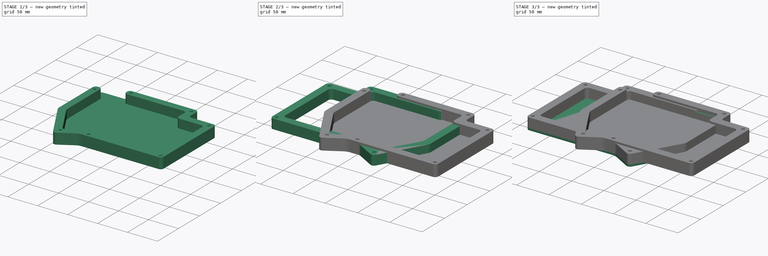
[diagram: build sequence overview — one tinted view per stage of 3, left to right]
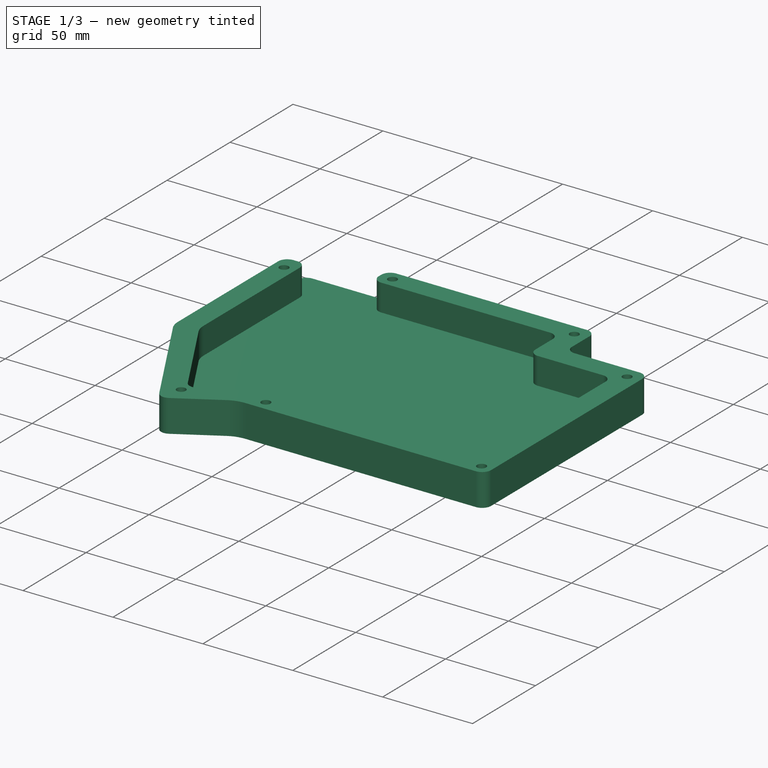
[diagram: stage 1 of 3 — iso view after this stage's code; geometry added in this stage tinted green]
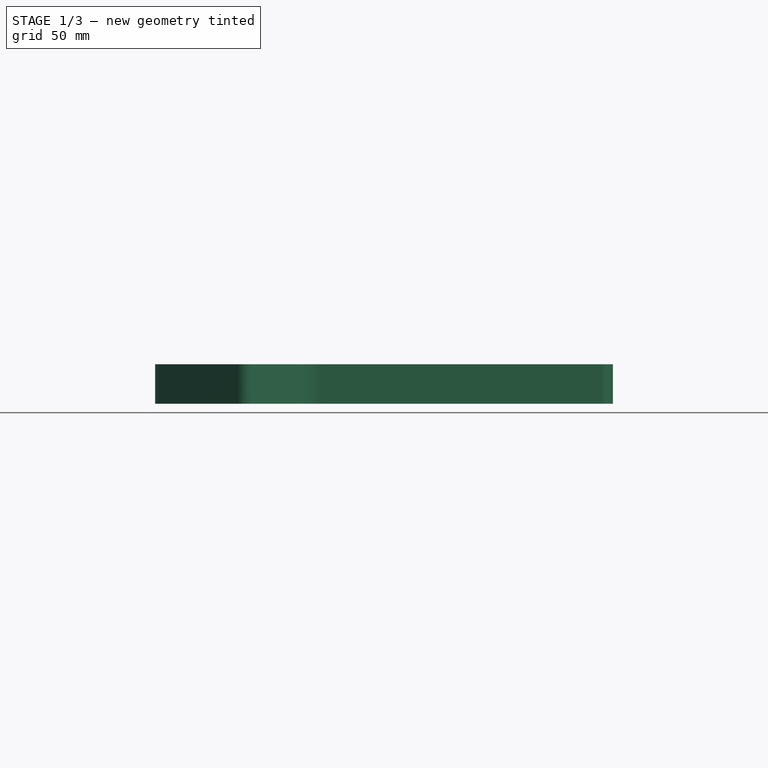
[diagram: stage 1 of 3 — front view after this stage's code; geometry added in this stage tinted green]
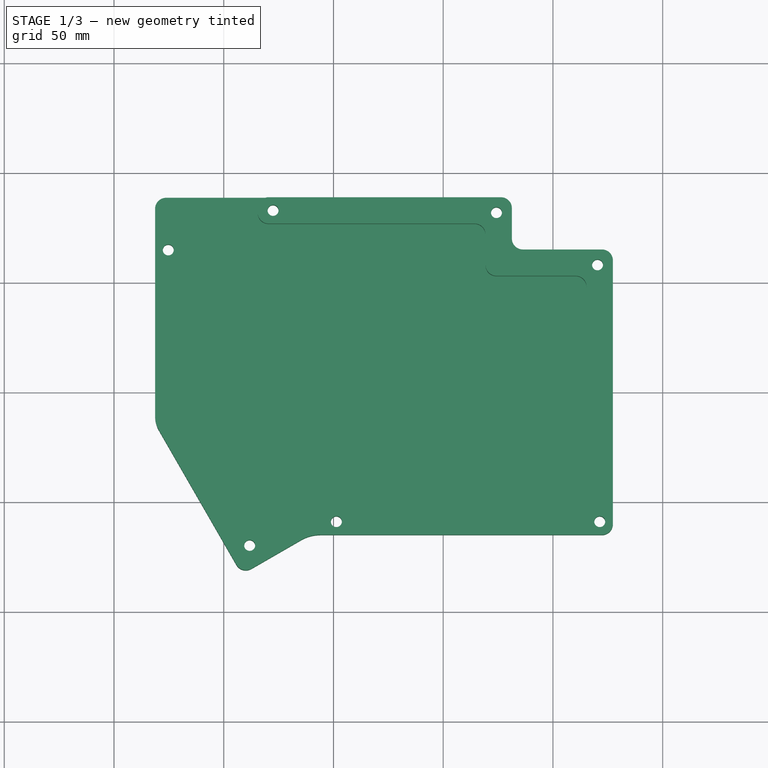
[diagram: stage 1 of 3 — top view after this stage's code; geometry added in this stage tinted green]
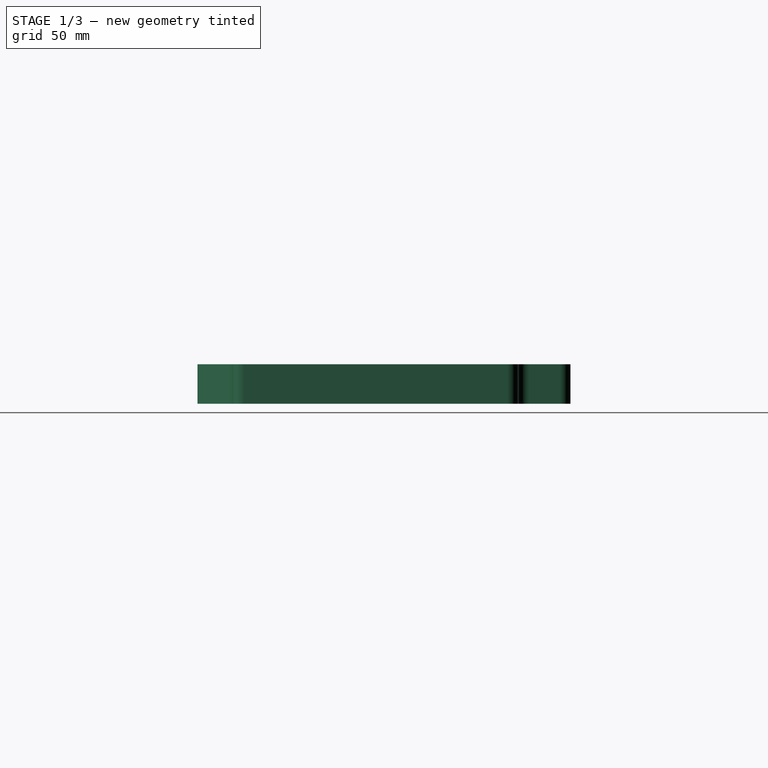
[diagram: stage 1 of 3 — right view after this stage's code; geometry added in this stage tinted green]
FCSTD DOCUMENT  (FreeCAD 0.19R)
Label: left_case
License: All rights reserved
LicenseURL: http://en.wikipedia.org/wiki/All_rights_reserved
objects: Sketcher::SketchObject×9, Part::Extrusion×7, TechDraw::DrawViewPart×6, PartDesign::Body×3, Spreadsheet::Sheet×2, App::DocumentObjectGroup×2, TechDraw::DrawSVGTemplate×1, TechDraw::DrawPage×1
note: 19 computed .brp shape members not serialized (recipe doc carries the construction recipe); baked Part::Feature solids carry a one-line shape summary decoded from their .brp

FEATURE [TechDraw::DrawSVGTemplate] Template
  Height = 406.4
  Orientation = 1
  Width = 609.6
FEATURE [TechDraw::DrawViewPart] View
  CoarseView = false
  Direction = (0,0,1)
  Focus = 100
  HardHidden = false
  IsoCount = 0
  IsoHidden = false
  IsoVisible = false
  LockPosition = false
  Perspective = false
  Rotation = 0
  ScaleType = 0
  SeamHidden = false
  SeamVisible = true
  SmoothHidden = false
  SmoothVisible = true
  Source = -> [Sketch002]
  X = 121.62
  XDirection = (1,0,0)
  Y = 281.034
FEATURE [TechDraw::DrawViewPart] View001
  CoarseView = false
  Direction = (0,0,1)
  Focus = 100
  HardHidden = false
  IsoCount = 0
  IsoHidden = false
  IsoVisible = false
  LockPosition = false
  Perspective = false
  Rotation = 0
  ScaleType = 0
  SeamHidden = false
  SeamVisible = true
  SmoothHidden = false
  SmoothVisible = true
  Source = -> [Sketch001]
  X = 501.447
  XDirection = (1,0,0)
  Y = 312.204
FEATURE [TechDraw::DrawViewPart] View002
  CoarseView = false
  Direction = (0,0,1)
  Focus = 100
  HardHidden = false
  IsoCount = 0
  IsoHidden = false
  IsoVisible = false
  LockPosition = false
  Perspective = false
  Rotation = 180
  ScaleType = 0
  SeamHidden = false
  SeamVisible = true
  SmoothHidden = false
  SmoothVisible = true
  Source = -> [Sketch002]
  X = 286.644
  XDirection = (1,0,0)
  Y = 320.126
FEATURE [Spreadsheet::Sheet] Spreadsheet001  label="rParameters"
  cells = A1=top horizontal; B1==132.56mm; D1=same; A2=vertical gap to horizontal ledge; B2==23.81mm; D2=larger; A3=2nd horizontal ledge; B3==46.04mm; D3=smaller; A4=outer vertical length; B4==100.01mm; D4=larger; A5=bottom horizontal; B5==127mm; D5=same; A6=bottom slant; B6==24.67mm; C6==148.8deg; D6=within 1 deg; E6=smaller; A7=inner slant; B7==61.19mm; C7==119.8deg; D7=within 0.5 deg; E7=within .4 mm; A8=inner vertical length; B8==83.34mm; D8=larger; A10=ProMicro vertical; B10==49.21mm; D10=larger; A11=ProMicro horizontal; B11==30.16mm; D11=larger
FEATURE [Sketcher::SketchObject] Sketch005  label="plate001"
  FullyConstrained = false
  MapMode = 5
  sketch-geometry (571):
    g0: LineSegment StartX=-66.28 StartY=71.44 StartZ=0 EndX=66.28 EndY=71.44 EndZ=0
    g1: LineSegment StartX=-115.49 StartY=-49.21 StartZ=0 EndX=11.51 EndY=-49.21 EndZ=0
    g2: LineSegment StartX=-115.49 StartY=49.21 StartZ=0 EndX=-115.49 EndY=-49.21 EndZ=0
    g3: LineSegment StartX=-66.28 StartY=71.44 StartZ=0 EndX=-66.28 EndY=49.21 EndZ=0
    g4: LineSegment StartX=-115.49 StartY=49.21 StartZ=0 EndX=-66.28 EndY=49.21 EndZ=0
    g5: LineSegment StartX=66.28 StartY=71.44 StartZ=0 EndX=66.28 EndY=-9.52 EndZ=0
    g6: LineSegment StartX=66.28 StartY=-9.52 StartZ=0 EndX=35.3292 EndY=-62.6988 EndZ=0
    g7: LineSegment StartX=35.3292 StartY=-62.6988 StartZ=0 EndX=11.51 EndY=-49.21 EndZ=0
    g8: LineSegment StartX=69.28 StartY=69.44 StartZ=0 EndX=69.28 EndY=-6.82179 EndZ=0
    g9: LineSegment StartX=-118.49 StartY=47.21 StartZ=0 EndX=-118.49 EndY=-47.21 EndZ=0
    g10: LineSegment StartX=-69.28 StartY=69.44 StartZ=0 EndX=-69.28 EndY=57.21 EndZ=0
    g11: LineSegment StartX=-64.28 StartY=74.44 StartZ=0 EndX=64.28 EndY=74.44 EndZ=0
    g12: LineSegment StartX=-113.49 StartY=-52.21 StartZ=0 EndX=6.04781 EndY=-52.21 EndZ=0
    g13: LineSegment StartX=14.7847 StartY=-54.5121 StartZ=0 EndX=32.131 EndY=-64.3353 EndZ=0
    g14: LineSegment StartX=67.5156 StartY=-13.3611 StartZ=0 EndX=38.9162 EndY=-62.4996 EndZ=0
    g15: LineSegment StartX=-113.49 StartY=52.21 StartZ=0 EndX=-74.28 EndY=52.21 EndZ=0
    g16: ArcOfCircle CenterX=-113.49 CenterY=47.21 CenterZ=0 NormalX=0 NormalY=0 NormalZ=1 AngleXU=0 Radius=5 StartAngle=1.5708 EndAngle=3.14159
    g17: ArcOfCircle CenterX=-64.28 CenterY=69.44 CenterZ=0 NormalX=0 NormalY=0 NormalZ=1 AngleXU=0 Radius=5 StartAngle=1.5708 EndAngle=3.14159
    g18: ArcOfCircle CenterX=64.28 CenterY=69.44 CenterZ=0 NormalX=0 NormalY=0 NormalZ=1 AngleXU=0 Radius=5 StartAngle=-9e-16 EndAngle=1.5708
    g19: ArcOfCircle CenterX=56.28 CenterY=-6.82179 CenterZ=0 NormalX=0 NormalY=0 NormalZ=1 AngleXU=0 Radius=13 StartAngle=5.7561 EndAngle=6.28319
    g20: ArcOfCircle CenterX=34.5949 CenterY=-59.9845 CenterZ=0 NormalX=0 NormalY=0 NormalZ=1 AngleXU=0 Radius=5 StartAngle=4.19712 EndAngle=5.7561
    g21: ArcOfCircle CenterX=6.04781 CenterY=-69.94 CenterZ=0 NormalX=0 NormalY=0 NormalZ=1 AngleXU=0 Radius=17.73 StartAngle=1.05552 EndAngle=1.5708
    g22: ArcOfCircle CenterX=-113.49 CenterY=-47.21 CenterZ=0 NormalX=0 NormalY=0 NormalZ=1 AngleXU=0 Radius=5 StartAngle=3.14159 EndAngle=4.71239
    g23: LineSegment StartX=-113.49 StartY=52.21 StartZ=0 EndX=-113.49 EndY=49.21 EndZ=0
    g24: ArcOfCircle CenterX=-74.28 CenterY=57.21 CenterZ=0 NormalX=0 NormalY=0 NormalZ=1 AngleXU=0 Radius=5 StartAngle=4.71239 EndAngle=6.28319
    g25: LineSegment StartX=-69.28 StartY=69.44 StartZ=0 EndX=-66.28 EndY=69.44 EndZ=0
    g26: LineSegment StartX=64.28 StartY=74.44 StartZ=0 EndX=64.28 EndY=71.44 EndZ=0
    g27: LineSegment StartX=69.28 StartY=69.44 StartZ=0 EndX=66.28 EndY=69.44 EndZ=0
    g28: LineSegment StartX=38.9162 StartY=-62.4996 StartZ=0 EndX=36.3234 EndY=-60.9906 EndZ=0
    g29: LineSegment StartX=14.7847 StartY=-54.5121 StartZ=0 EndX=16.263 EndY=-51.9016 EndZ=0
    g30: LineSegment StartX=-113.49 StartY=-52.21 StartZ=0 EndX=-113.49 EndY=-49.21 EndZ=0
    g31: LineSegment StartX=-118.49 StartY=47.21 StartZ=0 EndX=-115.49 EndY=47.21 EndZ=0
    g32: LineSegment StartX=-130.49 StartY=59.21 StartZ=0 EndX=-130.49 EndY=-59.21 EndZ=0
    g33: LineSegment StartX=-125.49 StartY=-64.21 StartZ=0 EndX=2.88591 EndY=-64.21 EndZ=0
    g34: LineSegment StartX=11.6228 StartY=-66.5121 StartZ=0 EndX=36.537 EndY=-80.621 EndZ=0
    g35: LineSegment StartX=43.3222 StartY=-78.7853 StartZ=0 EndX=79.6083 EndY=-16.4396 EndZ=0
    g36: LineSegment StartX=-81.28 StartY=81.44 StartZ=0 EndX=-81.28 EndY=69.21 EndZ=0
    g37: LineSegment StartX=-86.28 StartY=64.21 StartZ=0 EndX=-125.49 EndY=64.21 EndZ=0
    g38: ArcOfCircle CenterX=-125.49 CenterY=59.21 CenterZ=0 NormalX=0 NormalY=0 NormalZ=1 AngleXU=0 Radius=5 StartAngle=1.5708 EndAngle=3.14159
    g39: ArcOfCircle CenterX=-86.28 CenterY=69.21 CenterZ=0 NormalX=0 NormalY=0 NormalZ=1 AngleXU=0 Radius=5 StartAngle=4.71239 EndAngle=6.28319
    g40: ArcOfCircle CenterX=-76.28 CenterY=81.44 CenterZ=0 NormalX=0 NormalY=0 NormalZ=1 AngleXU=0 Radius=5 StartAngle=1.5708 EndAngle=3.14159
    g41: ArcOfCircle CenterX=68.3727 CenterY=-9.90039 CenterZ=0 NormalX=0 NormalY=0 NormalZ=1 AngleXU=0 Radius=13 StartAngle=5.7561 EndAngle=6.1637
    g42: ArcOfCircle CenterX=39.0008 CenterY=-76.2702 CenterZ=0 NormalX=0 NormalY=0 NormalZ=1 AngleXU=0 Radius=5 StartAngle=4.19712 EndAngle=5.7561
    g43: ArcOfCircle CenterX=2.88591 CenterY=-81.94 CenterZ=0 NormalX=0 NormalY=0 NormalZ=1 AngleXU=0 Radius=17.73 StartAngle=1.05552 EndAngle=1.5708
    g44: ArcOfCircle CenterX=-125.49 CenterY=-59.21 CenterZ=0 NormalX=0 NormalY=0 NormalZ=1 AngleXU=0 Radius=5 StartAngle=3.14159 EndAngle=4.71239
    g45: LineSegment StartX=69.28 StartY=-6.82179 StartZ=0 EndX=81.28 EndY=-6.82179 EndZ=0
    g46: LineSegment StartX=64.28 StartY=74.44 StartZ=0 EndX=64.28 EndY=86.44 EndZ=0
    g47: LineSegment StartX=-113.49 StartY=52.21 StartZ=0 EndX=-113.49 EndY=64.21 EndZ=0
    g48: LineSegment StartX=-118.49 StartY=47.21 StartZ=0 EndX=-130.49 EndY=47.21 EndZ=0
    g49: LineSegment StartX=-113.49 StartY=-52.21 StartZ=0 EndX=-113.49 EndY=-64.21 EndZ=0
    g50: LineSegment StartX=32.131 StartY=-64.3353 StartZ=0 EndX=26.2177 EndY=-74.7772 EndZ=0
    g51: LineSegment StartX=38.9162 StartY=-62.4996 StartZ=0 EndX=49.2875 EndY=-68.5359 EndZ=0
    g52: LineSegment StartX=-81.28 StartY=69.21 StartZ=0 EndX=-69.28 EndY=69.21 EndZ=0
    g53: LineSegment StartX=36.91 StartY=71.44 StartZ=0 EndX=36.91 EndY=23.82 EndZ=0
    g54: LineSegment StartX=36.91 StartY=23.82 StartZ=0 EndX=66.28 EndY=23.82 EndZ=0
    g55: LineSegment StartX=41.91 StartY=23.82 StartZ=0 EndX=76.28 EndY=23.82 EndZ=0
    g56: LineSegment StartX=36.91 StartY=28.82 StartZ=0 EndX=36.91 EndY=81.44 EndZ=0
    g57: LineSegment StartX=-76.28 StartY=86.44 StartZ=0 EndX=31.91 EndY=86.44 EndZ=0
    g58: LineSegment StartX=81.28 StartY=-11.45 StartZ=0 EndX=81.28 EndY=18.82 EndZ=0
    g59: ArcOfCircle CenterX=76.28 CenterY=18.82 CenterZ=0 NormalX=0 NormalY=0 NormalZ=1 AngleXU=0 Radius=5 StartAngle=0 EndAngle=1.5708
    g60: ArcOfCircle CenterX=41.91 CenterY=28.82 CenterZ=0 NormalX=0 NormalY=0 NormalZ=1 AngleXU=0 Radius=5 StartAngle=3.14159 EndAngle=4.71239
    g61: ArcOfCircle CenterX=31.91 CenterY=81.44 CenterZ=0 NormalX=0 NormalY=0 NormalZ=1 AngleXU=0 Radius=5 StartAngle=3e-16 EndAngle=1.5708
    g62: LineSegment StartX=-114.7 StartY=49.21 StartZ=0 EndX=-114.7 EndY=-49.21 EndZ=0
    g63: LineSegment StartX=-109.93 StartY=49.21 StartZ=0 EndX=-109.93 EndY=-49.21 EndZ=0
    g64: LineSegment StartX=-99.62 StartY=49.21 StartZ=0 EndX=-99.62 EndY=-49.21 EndZ=0
    g65: LineSegment StartX=-80.57 StartY=49.21 StartZ=0 EndX=-80.57 EndY=-49.21 EndZ=0
    g66: LineSegment StartX=-61.52 StartY=49.21 StartZ=0 EndX=-61.52 EndY=-49.21 EndZ=0
    g67: LineSegment StartX=-42.47 StartY=71.44 StartZ=0 EndX=-42.47 EndY=-49.21 EndZ=0
    g68: LineSegment StartX=-23.42 StartY=71.44 StartZ=0 EndX=-23.42 EndY=-49.21 EndZ=0
    g69: LineSegment StartX=-4.37 StartY=71.44 StartZ=0 EndX=-4.37 EndY=-49.21 EndZ=0
    g70: LineSegment StartX=33.73 StartY=71.44 StartZ=0 EndX=33.73 EndY=-49.21 EndZ=0
    g71: LineSegment StartX=14.68 StartY=71.44 StartZ=0 EndX=14.68 EndY=-49.21 EndZ=0
    g72: LineSegment StartX=-66.28 StartY=61.9 StartZ=0 EndX=36.91 EndY=61.9 EndZ=0
    g73: LineSegment StartX=-66.28 StartY=60.87 StartZ=0 EndX=36.91 EndY=60.87 EndZ=0
    g74: LineSegment StartX=-66.28 StartY=63.27 StartZ=0 EndX=36.91 EndY=63.27 EndZ=0
    g75: LineSegment StartX=-66.28 StartY=66.79 StartZ=0 EndX=36.91 EndY=66.79 EndZ=0
    g76: LineSegment StartX=-115.49 StartY=48.37 StartZ=0 EndX=36.91 EndY=48.37 EndZ=0
    g77: LineSegment StartX=-80.57 StartY=48.37 StartZ=0 EndX=-61.52 EndY=48.37 EndZ=0
    g78: LineSegment StartX=-61.52 StartY=48.37 StartZ=0 EndX=-61.52 EndY=29.32 EndZ=0
    g79: LineSegment StartX=-61.52 StartY=29.32 StartZ=0 EndX=-80.57 EndY=29.32 EndZ=0
    g80: LineSegment StartX=-80.57 StartY=29.32 StartZ=0 EndX=-80.57 EndY=48.37 EndZ=0
    g81: LineSegment StartX=-77.545 StartY=45.845 StartZ=0 EndX=-64.545 EndY=45.845 EndZ=0
    g82: LineSegment StartX=-64.045 StartY=45.345 StartZ=0 EndX=-64.045 EndY=32.345 EndZ=0
    g83: LineSegment StartX=-64.545 StartY=31.845 StartZ=0 EndX=-77.545 EndY=31.845 EndZ=0
    g84: LineSegment StartX=-78.045 StartY=32.345 StartZ=0 EndX=-78.045 EndY=45.345 EndZ=0
    g85: ArcOfCircle CenterX=-64.545 CenterY=32.345 CenterZ=0 NormalX=0 NormalY=0 NormalZ=1 AngleXU=0 Radius=0.5 StartAngle=4.71239 EndAngle=6.28319
    g86: ArcOfCircle CenterX=-77.545 CenterY=32.345 CenterZ=0 NormalX=0 NormalY=0 NormalZ=1 AngleXU=0 Radius=0.5 StartAngle=3.14159 EndAngle=4.71239
    g87: ArcOfCircle CenterX=-77.545 CenterY=45.345 CenterZ=0 NormalX=0 NormalY=0 NormalZ=1 AngleXU=0 Radius=0.5 StartAngle=1.5708 EndAngle=3.14159
    g88: ArcOfCircle CenterX=-64.545 CenterY=45.345 CenterZ=0 NormalX=0 NormalY=0 NormalZ=1 AngleXU=0 Radius=0.5 StartAngle=-2.7e-15 EndAngle=1.5708
    g89: LineSegment StartX=-64.045 StartY=45.345 StartZ=0 EndX=-61.52 EndY=45.345 EndZ=0
    g90: LineSegment StartX=-78.045 StartY=45.345 StartZ=0 EndX=-80.57 EndY=45.345 EndZ=0
    g91: LineSegment StartX=-77.545 StartY=31.845 StartZ=0 EndX=-77.545 EndY=29.32 EndZ=0
    g92: LineSegment StartX=-77.545 StartY=45.845 StartZ=0 EndX=-77.545 EndY=48.37 EndZ=0
    g93: LineSegment StartX=-80.57 StartY=29.32 StartZ=0 EndX=-61.52 EndY=29.32 EndZ=0
    g94: LineSegment StartX=-61.52 StartY=29.32 StartZ=0 EndX=-61.52 EndY=10.27 EndZ=0
    g95: LineSegment StartX=-61.52 StartY=10.27 StartZ=0 EndX=-80.57 EndY=10.27 EndZ=0
    g96: LineSegment StartX=-80.57 StartY=10.27 StartZ=0 EndX=-80.57 EndY=29.32 EndZ=0
    g97: LineSegment StartX=-77.545 StartY=26.795 StartZ=0 EndX=-64.545 EndY=26.795 EndZ=0
    g98: LineSegment StartX=-64.045 StartY=26.295 StartZ=0 EndX=-64.045 EndY=13.295 EndZ=0
    g99: LineSegment StartX=-64.545 StartY=12.795 StartZ=0 EndX=-77.545 EndY=12.795 EndZ=0
    g100: LineSegment StartX=-78.045 StartY=13.295 StartZ=0 EndX=-78.045 EndY=26.295 EndZ=0
    g101: ArcOfCircle CenterX=-64.545 CenterY=13.295 CenterZ=0 NormalX=0 NormalY=0 NormalZ=1 AngleXU=0 Radius=0.5 StartAngle=4.71239 EndAngle=6.28319
    g102: ArcOfCircle CenterX=-77.545 CenterY=13.295 CenterZ=0 NormalX=0 NormalY=0 NormalZ=1 AngleXU=0 Radius=0.5 StartAngle=3.14159 EndAngle=4.71239
    g103: ArcOfCircle CenterX=-77.545 CenterY=26.295 CenterZ=0 NormalX=0 NormalY=0 NormalZ=1 AngleXU=0 Radius=0.5 StartAngle=1.5708 EndAngle=3.14159
    g104: ArcOfCircle CenterX=-64.545 CenterY=26.295 CenterZ=0 NormalX=0 NormalY=0 NormalZ=1 AngleXU=0 Radius=0.5 StartAngle=9e-16 EndAngle=1.5708
    g105: LineSegment StartX=-64.045 StartY=26.295 StartZ=0 EndX=-61.52 EndY=26.295 EndZ=0
    g106: LineSegment StartX=-77.545 StartY=12.795 StartZ=0 EndX=-77.545 EndY=10.27 EndZ=0
    g107: LineSegment StartX=-77.545 StartY=26.795 StartZ=0 EndX=-77.545 EndY=29.32 EndZ=0
    g108: LineSegment StartX=-80.57 StartY=10.27 StartZ=0 EndX=-61.52 EndY=10.27 EndZ=0
    g109: LineSegment StartX=-61.52 StartY=10.27 StartZ=0 EndX=-61.52 EndY=-8.78 EndZ=0
    g110: LineSegment StartX=-61.52 StartY=-8.78 StartZ=0 EndX=-80.57 EndY=-8.78 EndZ=0
    g111: LineSegment StartX=-80.57 StartY=-8.78 StartZ=0 EndX=-80.57 EndY=10.27 EndZ=0
    g112: LineSegment StartX=-77.545 StartY=7.745 StartZ=0 EndX=-64.545 EndY=7.745 EndZ=0
    g113: LineSegment StartX=-64.045 StartY=7.245 StartZ=0 EndX=-64.045 EndY=-5.755 EndZ=0
    g114: LineSegment StartX=-64.545 StartY=-6.255 StartZ=0 EndX=-77.545 EndY=-6.255 EndZ=0
    g115: LineSegment StartX=-78.045 StartY=-5.755 StartZ=0 EndX=-78.045 EndY=7.245 EndZ=0
    g116: ArcOfCircle CenterX=-64.545 CenterY=-5.755 CenterZ=0 NormalX=0 NormalY=0 NormalZ=1 AngleXU=0 Radius=0.5 StartAngle=4.71239 EndAngle=6.28319
    g117: ArcOfCircle CenterX=-77.545 CenterY=-5.755 CenterZ=0 NormalX=0 NormalY=0 NormalZ=1 AngleXU=0 Radius=0.5 StartAngle=3.14159 EndAngle=4.71239
    g118: ArcOfCircle CenterX=-77.545 CenterY=7.245 CenterZ=0 NormalX=0 NormalY=0 NormalZ=1 AngleXU=0 Radius=0.5 StartAngle=1.5708 EndAngle=3.14159
    g119: ArcOfCircle CenterX=-64.545 CenterY=7.245 CenterZ=0 NormalX=0 NormalY=0 NormalZ=1 AngleXU=0 Radius=0.5 StartAngle=-9e-16 EndAngle=1.5708
    g120: LineSegment StartX=-64.045 StartY=7.245 StartZ=0 EndX=-61.52 EndY=7.245 EndZ=0
    g121: LineSegment StartX=-78.045 StartY=7.245 StartZ=0 EndX=-80.57 EndY=7.245 EndZ=0
    g122: LineSegment StartX=-77.545 StartY=-6.255 StartZ=0 EndX=-77.545 EndY=-8.78 EndZ=0
    g123: LineSegment StartX=-77.545 StartY=7.745 StartZ=0 EndX=-77.545 EndY=10.27 EndZ=0
    g124: LineSegment StartX=-80.57 StartY=-8.78 StartZ=0 EndX=-61.52 EndY=-8.78 EndZ=0
    g125: LineSegment StartX=-61.52 StartY=-8.78 StartZ=0 EndX=-61.52 EndY=-27.83 EndZ=0
    g126: LineSegment StartX=-61.52 StartY=-27.83 StartZ=0 EndX=-80.57 EndY=-27.83 EndZ=0
    g127: LineSegment StartX=-80.57 StartY=-27.83 StartZ=0 EndX=-80.57 EndY=-8.78 EndZ=0
    g128: LineSegment StartX=-77.545 StartY=-11.305 StartZ=0 EndX=-64.545 EndY=-11.305 EndZ=0
    g129: LineSegment StartX=-64.045 StartY=-11.805 StartZ=0 EndX=-64.045 EndY=-24.805 EndZ=0
    g130: LineSegment StartX=-64.545 StartY=-25.305 StartZ=0 EndX=-77.545 EndY=-25.305 EndZ=0
    g131: LineSegment StartX=-78.045 StartY=-24.805 StartZ=0 EndX=-78.045 EndY=-11.805 EndZ=0
    g132: ArcOfCircle CenterX=-64.545 CenterY=-24.805 CenterZ=0 NormalX=0 NormalY=0 NormalZ=1 AngleXU=0 Radius=0.5 StartAngle=4.71239 EndAngle=6.28319
    g133: ArcOfCircle CenterX=-77.545 CenterY=-24.805 CenterZ=0 NormalX=0 NormalY=0 NormalZ=1 AngleXU=0 Radius=0.5 StartAngle=3.14159 EndAngle=4.71239
    g134: ArcOfCircle CenterX=-77.545 CenterY=-11.805 CenterZ=0 NormalX=0 NormalY=0 NormalZ=1 AngleXU=0 Radius=0.5 StartAngle=1.5708 EndAngle=3.14159
    g135: ArcOfCircle CenterX=-64.545 CenterY=-11.805 CenterZ=0 NormalX=0 NormalY=0 NormalZ=1 AngleXU=0 Radius=0.5 StartAngle=0 EndAngle=1.5708
    g136: LineSegment StartX=-64.045 StartY=-11.805 StartZ=0 EndX=-61.52 EndY=-11.805 EndZ=0
    g137: LineSegment StartX=-78.045 StartY=-11.805 StartZ=0 EndX=-80.57 EndY=-11.805 EndZ=0
    g138: LineSegment StartX=-77.545 StartY=-25.305 StartZ=0 EndX=-77.545 EndY=-27.83 EndZ=0
    g139: LineSegment StartX=-77.545 StartY=-11.305 StartZ=0 EndX=-77.545 EndY=-8.78 EndZ=0
    g140: LineSegment StartX=-99.62 StartY=48.37 StartZ=0 EndX=-80.57 EndY=48.37 EndZ=0
    g141: LineSegment StartX=-80.57 StartY=48.37 StartZ=0 EndX=-80.57 EndY=29.32 EndZ=0
    g142: LineSegment StartX=-80.57 StartY=29.32 StartZ=0 EndX=-99.62 EndY=29.32 EndZ=0
    g143: LineSegment StartX=-99.62 StartY=29.32 StartZ=0 EndX=-99.62 EndY=48.37 EndZ=0
    g144: LineSegment StartX=-96.595 StartY=45.845 StartZ=0 EndX=-83.595 EndY=45.845 EndZ=0
    g145: LineSegment StartX=-83.095 StartY=45.345 StartZ=0 EndX=-83.095 EndY=32.345 EndZ=0
    g146: LineSegment StartX=-83.595 StartY=31.845 StartZ=0 EndX=-96.595 EndY=31.845 EndZ=0
    g147: LineSegment StartX=-97.095 StartY=32.345 StartZ=0 EndX=-97.095 EndY=45.345 EndZ=0
    g148: ArcOfCircle CenterX=-83.595 CenterY=32.345 CenterZ=0 NormalX=0 NormalY=0 NormalZ=1 AngleXU=0 Radius=0.5 StartAngle=4.71239 EndAngle=6.28319
    g149: ArcOfCircle CenterX=-96.595 CenterY=32.345 CenterZ=0 NormalX=0 NormalY=0 NormalZ=1 AngleXU=0 Radius=0.5 StartAngle=3.14159 EndAngle=4.71239
    g150: ArcOfCircle CenterX=-96.595 CenterY=45.345 CenterZ=0 NormalX=0 NormalY=0 NormalZ=1 AngleXU=0 Radius=0.5 StartAngle=1.5708 EndAngle=3.14159
    g151: ArcOfCircle CenterX=-83.595 CenterY=45.345 CenterZ=0 NormalX=0 NormalY=0 NormalZ=1 AngleXU=0 Radius=0.5 StartAngle=-5.3e-15 EndAngle=1.5708
    g152: LineSegment StartX=-83.095 StartY=45.345 StartZ=0 EndX=-80.57 EndY=45.345 EndZ=0
    g153: LineSegment StartX=-97.095 StartY=45.345 StartZ=0 EndX=-99.62 EndY=45.345 EndZ=0
    g154: LineSegment StartX=-96.595 StartY=31.845 StartZ=0 EndX=-96.595 EndY=29.32 EndZ=0
    g155: LineSegment StartX=-96.595 StartY=45.845 StartZ=0 EndX=-96.595 EndY=48.37 EndZ=0
    g156: LineSegment StartX=-99.62 StartY=29.32 StartZ=0 EndX=-80.57 EndY=29.32 EndZ=0
    g157: LineSegment StartX=-80.57 StartY=29.32 StartZ=0 EndX=-80.57 EndY=10.27 EndZ=0
    g158: LineSegment StartX=-80.57 StartY=10.27 StartZ=0 EndX=-99.62 EndY=10.27 EndZ=0
    g159: LineSegment StartX=-99.62 StartY=10.27 StartZ=0 EndX=-99.62 EndY=29.32 EndZ=0
    g160: LineSegment StartX=-83.09 StartY=26.295 StartZ=0 EndX=-83.09 EndY=13.295 EndZ=0
    g161: ArcOfCircle CenterX=-83.59 CenterY=13.295 CenterZ=0 NormalX=0 NormalY=0 NormalZ=1 AngleXU=0 Radius=0.5 StartAngle=4.71239 EndAngle=6.28319
    g162: ArcOfCircle CenterX=-83.59 CenterY=26.295 CenterZ=0 NormalX=0 NormalY=0 NormalZ=1 AngleXU=0 Radius=0.5 StartAngle=-9e-16 EndAngle=1.5708
    g163: LineSegment StartX=-83.09 StartY=26.295 StartZ=0 EndX=-80.57 EndY=26.295 EndZ=0
    g164: LineSegment StartX=-99.62 StartY=10.27 StartZ=0 EndX=-80.57 EndY=10.27 EndZ=0
    g165: LineSegment StartX=-80.57 StartY=10.27 StartZ=0 EndX=-80.57 EndY=-8.78 EndZ=0
    g166: LineSegment StartX=-80.57 StartY=-8.78 StartZ=0 EndX=-99.62 EndY=-8.78 EndZ=0
    g167: LineSegment StartX=-99.62 StartY=-8.78 StartZ=0 EndX=-99.62 EndY=10.27 EndZ=0
    g168: LineSegment StartX=-96.595 StartY=7.745 StartZ=0 EndX=-83.595 EndY=7.745 EndZ=0
    g169: LineSegment StartX=-83.095 StartY=7.245 StartZ=0 EndX=-83.095 EndY=-5.755 EndZ=0
    g170: LineSegment StartX=-83.595 StartY=-6.255 StartZ=0 EndX=-96.595 EndY=-6.255 EndZ=0
    g171: LineSegment StartX=-97.095 StartY=-5.755 StartZ=0 EndX=-97.095 EndY=7.245 EndZ=0
    g172: ArcOfCircle CenterX=-83.595 CenterY=-5.755 CenterZ=0 NormalX=0 NormalY=0 NormalZ=1 AngleXU=0 Radius=0.5 StartAngle=4.71239 EndAngle=6.28319
    g173: ArcOfCircle CenterX=-96.595 CenterY=-5.755 CenterZ=0 NormalX=0 NormalY=0 NormalZ=1 AngleXU=0 Radius=0.5 StartAngle=3.14159 EndAngle=4.71239
    g174: ArcOfCircle CenterX=-96.595 CenterY=7.245 CenterZ=0 NormalX=0 NormalY=0 NormalZ=1 AngleXU=0 Radius=0.5 StartAngle=1.5708 EndAngle=3.14159
    g175: ArcOfCircle CenterX=-83.595 CenterY=7.245 CenterZ=0 NormalX=0 NormalY=0 NormalZ=1 AngleXU=0 Radius=0.5 StartAngle=-9e-16 EndAngle=1.5708
    g176: LineSegment StartX=-83.095 StartY=7.245 StartZ=0 EndX=-80.57 EndY=7.245 EndZ=0
    g177: LineSegment StartX=-97.095 StartY=7.245 StartZ=0 EndX=-99.62 EndY=7.245 EndZ=0
    g178: LineSegment StartX=-96.595 StartY=-6.255 StartZ=0 EndX=-96.595 EndY=-8.78 EndZ=0
    g179: LineSegment StartX=-96.595 StartY=7.745 StartZ=0 EndX=-96.595 EndY=10.27 EndZ=0
    g180: LineSegment StartX=-99.62 StartY=-8.78 StartZ=0 EndX=-80.57 EndY=-8.78 EndZ=0
    g181: LineSegment StartX=-80.57 StartY=-8.78 StartZ=0 EndX=-80.57 EndY=-27.83 EndZ=0
    g182: LineSegment StartX=-80.57 StartY=-27.83 StartZ=0 EndX=-99.62 EndY=-27.83 EndZ=0
    g183: LineSegment StartX=-99.62 StartY=-27.83 StartZ=0 EndX=-99.62 EndY=-8.78 EndZ=0
    g184: LineSegment StartX=-61.52 StartY=63.27 StartZ=0 EndX=-42.47 EndY=63.27 EndZ=0
    g185: LineSegment StartX=-42.47 StartY=63.27 StartZ=0 EndX=-42.47 EndY=44.22 EndZ=0
    g186: LineSegment StartX=-42.47 StartY=44.22 StartZ=0 EndX=-61.52 EndY=44.22 EndZ=0
    g187: LineSegment StartX=-61.52 StartY=44.22 StartZ=0 EndX=-61.52 EndY=63.27 EndZ=0
    g188: LineSegment StartX=-58.495 StartY=60.745 StartZ=0 EndX=-45.495 EndY=60.745 EndZ=0
    g189: LineSegment StartX=-44.995 StartY=60.245 StartZ=0 EndX=-44.995 EndY=47.245 EndZ=0
    g190: LineSegment StartX=-45.495 StartY=46.745 StartZ=0 EndX=-58.495 EndY=46.745 EndZ=0
    g191: LineSegment StartX=-58.995 StartY=47.245 StartZ=0 EndX=-58.995 EndY=60.245 EndZ=0
    g192: ArcOfCircle CenterX=-45.495 CenterY=47.245 CenterZ=0 NormalX=0 NormalY=0 NormalZ=1 AngleXU=0 Radius=0.5 StartAngle=4.71239 EndAngle=6.28319
    g193: ArcOfCircle CenterX=-58.495 CenterY=47.245 CenterZ=0 NormalX=0 NormalY=0 NormalZ=1 AngleXU=0 Radius=0.5 StartAngle=3.14159 EndAngle=4.71239
    g194: ArcOfCircle CenterX=-58.495 CenterY=60.245 CenterZ=0 NormalX=0 NormalY=0 NormalZ=1 AngleXU=0 Radius=0.5 StartAngle=1.5708 EndAngle=3.14159
    g195: ArcOfCircle CenterX=-45.495 CenterY=60.245 CenterZ=0 NormalX=0 NormalY=0 NormalZ=1 AngleXU=0 Radius=0.5 StartAngle=0 EndAngle=1.5708
    g196: LineSegment StartX=-44.995 StartY=60.245 StartZ=0 EndX=-42.47 EndY=60.245 EndZ=0
    g197: LineSegment StartX=-58.995 StartY=60.245 StartZ=0 EndX=-61.52 EndY=60.245 EndZ=0
    g198: LineSegment StartX=-58.495 StartY=46.745 StartZ=0 EndX=-58.495 EndY=44.22 EndZ=0
    g199: LineSegment StartX=-58.495 StartY=60.745 StartZ=0 EndX=-58.495 EndY=63.27 EndZ=0
    g200: LineSegment StartX=-61.52 StartY=44.22 StartZ=0 EndX=-42.47 EndY=44.22 EndZ=0
    g201: LineSegment StartX=-42.47 StartY=44.22 StartZ=0 EndX=-42.47 EndY=25.17 EndZ=0
    g202: LineSegment StartX=-42.47 StartY=25.17 StartZ=0 EndX=-61.52 EndY=25.17 EndZ=0
    g203: LineSegment StartX=-61.52 StartY=25.17 StartZ=0 EndX=-61.52 EndY=44.22 EndZ=0
    g204: LineSegment StartX=-58.495 StartY=41.695 StartZ=0 EndX=-45.495 EndY=41.695 EndZ=0
    g205: LineSegment StartX=-44.995 StartY=41.195 StartZ=0 EndX=-44.995 EndY=28.195 EndZ=0
    g206: LineSegment StartX=-45.495 StartY=27.695 StartZ=0 EndX=-58.495 EndY=27.695 EndZ=0
    g207: LineSegment StartX=-58.995 StartY=28.195 StartZ=0 EndX=-58.995 EndY=41.195 EndZ=0
    g208: ArcOfCircle CenterX=-45.495 CenterY=28.195 CenterZ=0 NormalX=0 NormalY=0 NormalZ=1 AngleXU=0 Radius=0.5 StartAngle=4.71239 EndAngle=6.28319
    g209: ArcOfCircle CenterX=-58.495 CenterY=28.195 CenterZ=0 NormalX=0 NormalY=0 NormalZ=1 AngleXU=0 Radius=0.5 StartAngle=3.14159 EndAngle=4.71239
    g210: ArcOfCircle CenterX=-58.495 CenterY=41.195 CenterZ=0 NormalX=0 NormalY=0 NormalZ=1 AngleXU=0 Radius=0.5 StartAngle=1.5708 EndAngle=3.14159
    g211: ArcOfCircle CenterX=-45.495 CenterY=41.195 CenterZ=0 NormalX=0 NormalY=0 NormalZ=1 AngleXU=0 Radius=0.5 StartAngle=-4.4e-15 EndAngle=1.5708
    g212: LineSegment StartX=-44.995 StartY=41.195 StartZ=0 EndX=-42.47 EndY=41.195 EndZ=0
    g213: LineSegment StartX=-58.995 StartY=41.195 StartZ=0 EndX=-61.52 EndY=41.195 EndZ=0
    g214: LineSegment StartX=-58.495 StartY=27.695 StartZ=0 EndX=-58.495 EndY=25.17 EndZ=0
    g215: LineSegment StartX=-58.495 StartY=41.695 StartZ=0 EndX=-58.495 EndY=44.22 EndZ=0
    g216: LineSegment StartX=-61.52 StartY=25.17 StartZ=0 EndX=-42.47 EndY=25.17 EndZ=0
    g217: LineSegment StartX=-42.47 StartY=25.17 StartZ=0 EndX=-42.47 EndY=6.12 EndZ=0
    g218: LineSegment StartX=-42.47 StartY=6.12 StartZ=0 EndX=-61.52 EndY=6.12 EndZ=0
    g219: LineSegment StartX=-61.52 StartY=6.12 StartZ=0 EndX=-61.52 EndY=25.17 EndZ=0
    g220: LineSegment StartX=-58.495 StartY=22.645 StartZ=0 EndX=-45.495 EndY=22.645 EndZ=0
    g221: LineSegment StartX=-44.995 StartY=22.145 StartZ=0 EndX=-44.995 EndY=9.145 EndZ=0
    g222: LineSegment StartX=-45.495 StartY=8.645 StartZ=0 EndX=-58.495 EndY=8.645 EndZ=0
    g223: LineSegment StartX=-58.995 StartY=9.145 StartZ=0 EndX=-58.995 EndY=22.145 EndZ=0
    g224: ArcOfCircle CenterX=-45.495 CenterY=9.145 CenterZ=0 NormalX=0 NormalY=0 NormalZ=1 AngleXU=0 Radius=0.5 StartAngle=4.71239 EndAngle=6.28319
    g225: ArcOfCircle CenterX=-58.495 CenterY=9.145 CenterZ=0 NormalX=0 NormalY=0 NormalZ=1 AngleXU=0 Radius=0.5 StartAngle=3.14159 EndAngle=4.71239
    g226: ArcOfCircle CenterX=-58.495 CenterY=22.145 CenterZ=0 NormalX=0 NormalY=0 NormalZ=1 AngleXU=0 Radius=0.5 StartAngle=1.5708 EndAngle=3.14159
    g227: ArcOfCircle CenterX=-45.495 CenterY=22.145 CenterZ=0 NormalX=0 NormalY=0 NormalZ=1 AngleXU=0 Radius=0.5 StartAngle=-1.8e-15 EndAngle=1.5708
    g228: LineSegment StartX=-44.995 StartY=22.145 StartZ=0 EndX=-42.47 EndY=22.145 EndZ=0
    g229: LineSegment StartX=-58.995 StartY=22.145 StartZ=0 EndX=-61.52 EndY=22.145 EndZ=0
    g230: LineSegment StartX=-58.495 StartY=8.645 StartZ=0 EndX=-58.495 EndY=6.12 EndZ=0
    g231: LineSegment StartX=-58.495 StartY=22.645 StartZ=0 EndX=-58.495 EndY=25.17 EndZ=0
    g232: LineSegment StartX=-61.52 StartY=6.12 StartZ=0 EndX=-42.47 EndY=6.12 EndZ=0
    g233: LineSegment StartX=-42.47 StartY=6.12 StartZ=0 EndX=-42.47 EndY=-12.93 EndZ=0
    g234: LineSegment StartX=-42.47 StartY=-12.93 StartZ=0 EndX=-61.52 EndY=-12.93 EndZ=0
    g235: LineSegment StartX=-61.52 StartY=-12.93 StartZ=0 EndX=-61.52 EndY=6.12 EndZ=0
    g236: LineSegment StartX=-58.495 StartY=3.595 StartZ=0 EndX=-45.495 EndY=3.595 EndZ=0
    g237: LineSegment StartX=-44.995 StartY=3.095 StartZ=0 EndX=-44.995 EndY=-9.905 EndZ=0
    g238: LineSegment StartX=-45.495 StartY=-10.405 StartZ=0 EndX=-58.495 EndY=-10.405 EndZ=0
    g239: LineSegment StartX=-58.995 StartY=-9.905 StartZ=0 EndX=-58.995 EndY=3.095 EndZ=0
    g240: ArcOfCircle CenterX=-45.495 CenterY=-9.905 CenterZ=0 NormalX=0 NormalY=0 NormalZ=1 AngleXU=0 Radius=0.5 StartAngle=4.71239 EndAngle=6.28319
    g241: ArcOfCircle CenterX=-58.495 CenterY=-9.905 CenterZ=0 NormalX=0 NormalY=0 NormalZ=1 AngleXU=0 Radius=0.5 StartAngle=3.14159 EndAngle=4.71239
    g242: ArcOfCircle CenterX=-58.495 CenterY=3.095 CenterZ=0 NormalX=0 NormalY=0 NormalZ=1 AngleXU=0 Radius=0.5 StartAngle=1.5708 EndAngle=3.14159
    g243: ArcOfCircle CenterX=-45.495 CenterY=3.095 CenterZ=0 NormalX=0 NormalY=0 NormalZ=1 AngleXU=0 Radius=0.5 StartAngle=-9e-16 EndAngle=1.5708
    g244: LineSegment StartX=-44.995 StartY=3.095 StartZ=0 EndX=-42.47 EndY=3.095 EndZ=0
    g245: LineSegment StartX=-58.995 StartY=3.095 StartZ=0 EndX=-61.52 EndY=3.095 EndZ=0
    g246: LineSegment StartX=-58.495 StartY=-10.405 StartZ=0 EndX=-58.495 EndY=-12.93 EndZ=0
    g247: LineSegment StartX=-58.495 StartY=3.595 StartZ=0 EndX=-58.495 EndY=6.12 EndZ=0
    g248: LineSegment StartX=-23.42 StartY=61.9 StartZ=0 EndX=-4.37 EndY=61.9 EndZ=0
    g249: LineSegment StartX=-4.37 StartY=61.9 StartZ=0 EndX=-4.37 EndY=42.85 EndZ=0
    g250: LineSegment StartX=-4.37 StartY=42.85 StartZ=0 EndX=-23.42 EndY=42.85 EndZ=0
    g251: LineSegment StartX=-23.42 StartY=42.85 StartZ=0 EndX=-23.42 EndY=61.9 EndZ=0
    g252: LineSegment StartX=-20.395 StartY=59.375 StartZ=0 EndX=-7.395 EndY=59.375 EndZ=0
    g253: LineSegment StartX=-6.895 StartY=58.875 StartZ=0 EndX=-6.895 EndY=45.875 EndZ=0
    g254: LineSegment StartX=-7.395 StartY=45.375 StartZ=0 EndX=-20.395 EndY=45.375 EndZ=0
    g255: LineSegment StartX=-20.895 StartY=45.875 StartZ=0 EndX=-20.895 EndY=58.875 EndZ=0
    g256: ArcOfCircle CenterX=-7.395 CenterY=45.875 CenterZ=0 NormalX=0 NormalY=0 NormalZ=1 AngleXU=0 Radius=0.5 StartAngle=4.71239 EndAngle=6.28319
    g257: ArcOfCircle CenterX=-20.395 CenterY=45.875 CenterZ=0 NormalX=0 NormalY=0 NormalZ=1 AngleXU=0 Radius=0.5 StartAngle=3.14159 EndAngle=4.71239
    g258: ArcOfCircle CenterX=-20.395 CenterY=58.875 CenterZ=0 NormalX=0 NormalY=0 NormalZ=1 AngleXU=0 Radius=0.5 StartAngle=1.5708 EndAngle=3.14159
    g259: ArcOfCircle CenterX=-7.395 CenterY=58.875 CenterZ=0 NormalX=0 NormalY=0 NormalZ=1 AngleXU=0 Radius=0.5 StartAngle=0 EndAngle=1.5708
    g260: LineSegment StartX=-6.895 StartY=58.875 StartZ=0 EndX=-4.37 EndY=58.875 EndZ=0
    g261: LineSegment StartX=-20.895 StartY=58.875 StartZ=0 EndX=-23.42 EndY=58.875 EndZ=0
    g262: LineSegment StartX=-20.395 StartY=45.375 StartZ=0 EndX=-20.395 EndY=42.85 EndZ=0
    g263: LineSegment StartX=-20.395 StartY=59.375 StartZ=0 EndX=-20.395 EndY=61.9 EndZ=0
    g264: LineSegment StartX=-23.42 StartY=42.85 StartZ=0 EndX=-4.37 EndY=42.85 EndZ=0
    g265: LineSegment StartX=-4.37 StartY=42.85 StartZ=0 EndX=-4.37 EndY=23.8 EndZ=0
    g266: LineSegment StartX=-4.37 StartY=23.8 StartZ=0 EndX=-23.42 EndY=23.8 EndZ=0
    g267: LineSegment StartX=-23.42 StartY=23.8 StartZ=0 EndX=-23.42 EndY=42.85 EndZ=0
    g268: LineSegment StartX=-20.395 StartY=40.325 StartZ=0 EndX=-7.395 EndY=40.325 EndZ=0
    g269: LineSegment StartX=-6.895 StartY=39.825 StartZ=0 EndX=-6.895 EndY=26.825 EndZ=0
    g270: LineSegment StartX=-7.395 StartY=26.325 StartZ=0 EndX=-20.395 EndY=26.325 EndZ=0
    g271: LineSegment StartX=-20.895 StartY=26.825 StartZ=0 EndX=-20.895 EndY=39.825 EndZ=0
    g272: ArcOfCircle CenterX=-7.395 CenterY=26.825 CenterZ=0 NormalX=0 NormalY=0 NormalZ=1 AngleXU=0 Radius=0.5 StartAngle=4.71239 EndAngle=6.28319
    g273: ArcOfCircle CenterX=-20.395 CenterY=26.825 CenterZ=0 NormalX=0 NormalY=0 NormalZ=1 AngleXU=0 Radius=0.5 StartAngle=3.14159 EndAngle=4.71239
    g274: ArcOfCircle CenterX=-20.395 CenterY=39.825 CenterZ=0 NormalX=0 NormalY=0 NormalZ=1 AngleXU=0 Radius=0.5 StartAngle=1.5708 EndAngle=3.14159
    g275: ArcOfCircle CenterX=-7.395 CenterY=39.825 CenterZ=0 NormalX=0 NormalY=0 NormalZ=1 AngleXU=0 Radius=0.5 StartAngle=-2.7e-15 EndAngle=1.5708
    g276: LineSegment StartX=-6.895 StartY=39.825 StartZ=0 EndX=-4.37 EndY=39.825 EndZ=0
    g277: LineSegment StartX=-20.895 StartY=39.825 StartZ=0 EndX=-23.42 EndY=39.825 EndZ=0
    g278: LineSegment StartX=-20.395 StartY=26.325 StartZ=0 EndX=-20.395 EndY=23.8 EndZ=0
    g279: LineSegment StartX=-20.395 StartY=40.325 StartZ=0 EndX=-20.395 EndY=42.85 EndZ=0
    g280: LineSegment StartX=-23.42 StartY=23.8 StartZ=0 EndX=-4.37 EndY=23.8 EndZ=0
    g281: LineSegment StartX=-4.37 StartY=23.8 StartZ=0 EndX=-4.37 EndY=4.75 EndZ=0
    g282: LineSegment StartX=-4.37 StartY=4.75 StartZ=0 EndX=-23.42 EndY=4.75 EndZ=0
    g283: LineSegment StartX=-23.42 StartY=4.75 StartZ=0 EndX=-23.42 EndY=23.8 EndZ=0
    g284: LineSegment StartX=-20.395 StartY=21.275 StartZ=0 EndX=-7.395 EndY=21.275 EndZ=0
    g285: LineSegment StartX=-6.895 StartY=20.775 StartZ=0 EndX=-6.895 EndY=7.775 EndZ=0
    g286: LineSegment StartX=-7.395 StartY=7.275 StartZ=0 EndX=-20.395 EndY=7.275 EndZ=0
    g287: LineSegment StartX=-20.895 StartY=7.775 StartZ=0 EndX=-20.895 EndY=20.775 EndZ=0
    g288: ArcOfCircle CenterX=-7.395 CenterY=7.775 CenterZ=0 NormalX=0 NormalY=0 NormalZ=1 AngleXU=0 Radius=0.5 StartAngle=4.71239 EndAngle=6.28319
    g289: ArcOfCircle CenterX=-20.395 CenterY=7.775 CenterZ=0 NormalX=0 NormalY=0 NormalZ=1 AngleXU=0 Radius=0.5 StartAngle=3.14159 EndAngle=4.71239
    g290: ArcOfCircle CenterX=-20.395 CenterY=20.775 CenterZ=0 NormalX=0 NormalY=0 NormalZ=1 AngleXU=0 Radius=0.5 StartAngle=1.5708 EndAngle=3.14159
    g291: ArcOfCircle CenterX=-7.395 CenterY=20.775 CenterZ=0 NormalX=0 NormalY=0 NormalZ=1 AngleXU=0 Radius=0.5 StartAngle=-9e-16 EndAngle=1.5708
    g292: LineSegment StartX=-6.895 StartY=20.775 StartZ=0 EndX=-4.37 EndY=20.775 EndZ=0
    g293: LineSegment StartX=-20.895 StartY=20.775 StartZ=0 EndX=-23.42 EndY=20.775 EndZ=0
    g294: LineSegment StartX=-20.395 StartY=7.275 StartZ=0 EndX=-20.395 EndY=4.75 EndZ=0
    g295: LineSegment StartX=-20.395 StartY=21.275 StartZ=0 EndX=-20.395 EndY=23.8 EndZ=0
    g296: LineSegment StartX=-23.42 StartY=4.75 StartZ=0 EndX=-4.37 EndY=4.75 EndZ=0
    g297: LineSegment StartX=-4.37 StartY=4.75 StartZ=0 EndX=-4.37 EndY=-14.3 EndZ=0
    g298: LineSegment StartX=-4.37 StartY=-14.3 StartZ=0 EndX=-23.42 EndY=-14.3 EndZ=0
    g299: LineSegment StartX=-23.42 StartY=-14.3 StartZ=0 EndX=-23.42 EndY=4.75 EndZ=0
    g300: LineSegment StartX=-20.395 StartY=2.225 StartZ=0 EndX=-7.395 EndY=2.225 EndZ=0
    g301: LineSegment StartX=-6.895 StartY=1.725 StartZ=0 EndX=-6.895 EndY=-11.275 EndZ=0
    g302: LineSegment StartX=-7.395 StartY=-11.775 StartZ=0 EndX=-20.395 EndY=-11.775 EndZ=0
    g303: LineSegment StartX=-20.895 StartY=-11.275 StartZ=0 EndX=-20.895 EndY=1.725 EndZ=0
    g304: ArcOfCircle CenterX=-7.395 CenterY=-11.275 CenterZ=0 NormalX=0 NormalY=0 NormalZ=1 AngleXU=0 Radius=0.5 StartAngle=4.71239 EndAngle=6.28319
    g305: ArcOfCircle CenterX=-20.395 CenterY=-11.275 CenterZ=0 NormalX=0 NormalY=0 NormalZ=1 AngleXU=0 Radius=0.5 StartAngle=3.14159 EndAngle=4.71239
    g306: ArcOfCircle CenterX=-20.395 CenterY=1.725 CenterZ=0 NormalX=0 NormalY=0 NormalZ=1 AngleXU=0 Radius=0.5 StartAngle=1.5708 EndAngle=3.14159
    g307: ArcOfCircle CenterX=-7.395 CenterY=1.725 CenterZ=0 NormalX=0 NormalY=0 NormalZ=1 AngleXU=0 Radius=0.5 StartAngle=0 EndAngle=1.5708
    g308: LineSegment StartX=-6.895 StartY=1.725 StartZ=0 EndX=-4.37 EndY=1.725 EndZ=0
    g309: LineSegment StartX=-20.895 StartY=1.725 StartZ=0 EndX=-23.42 EndY=1.725 EndZ=0
    g310: LineSegment StartX=-20.395 StartY=-11.775 StartZ=0 EndX=-20.395 EndY=-14.3 EndZ=0
    g311: LineSegment StartX=-20.395 StartY=2.225 StartZ=0 EndX=-20.395 EndY=4.75 EndZ=0
    g312: LineSegment StartX=-4.37 StartY=60.87 StartZ=0 EndX=14.68 EndY=60.87 EndZ=0
    g313: LineSegment StartX=14.68 StartY=60.87 StartZ=0 EndX=14.68 EndY=41.82 EndZ=0
    g314: LineSegment StartX=14.68 StartY=41.82 StartZ=0 EndX=-4.37 EndY=41.82 EndZ=0
    g315: LineSegment StartX=-4.37 StartY=41.82 StartZ=0 EndX=-4.37 EndY=60.87 EndZ=0
    g316: LineSegment StartX=-1.345 StartY=58.345 StartZ=0 EndX=11.655 EndY=58.345 EndZ=0
    g317: LineSegment StartX=12.155 StartY=57.845 StartZ=0 EndX=12.155 EndY=44.845 EndZ=0
    g318: LineSegment StartX=11.655 StartY=44.345 StartZ=0 EndX=-1.345 EndY=44.345 EndZ=0
    g319: LineSegment StartX=-1.845 StartY=44.845 StartZ=0 EndX=-1.845 EndY=57.845 EndZ=0
    g320: ArcOfCircle CenterX=11.655 CenterY=44.845 CenterZ=0 NormalX=0 NormalY=0 NormalZ=1 AngleXU=0 Radius=0.5 StartAngle=4.71239 EndAngle=6.28319
    g321: ArcOfCircle CenterX=-1.345 CenterY=44.845 CenterZ=0 NormalX=0 NormalY=0 NormalZ=1 AngleXU=0 Radius=0.5 StartAngle=3.14159 EndAngle=4.71239
    g322: ArcOfCircle CenterX=-1.345 CenterY=57.845 CenterZ=0 NormalX=0 NormalY=0 NormalZ=1 AngleXU=0 Radius=0.5 StartAngle=1.5708 EndAngle=3.14159
    g323: ArcOfCircle CenterX=11.655 CenterY=57.845 CenterZ=0 NormalX=0 NormalY=0 NormalZ=1 AngleXU=0 Radius=0.5 StartAngle=1.1e-15 EndAngle=1.5708
    g324: LineSegment StartX=12.155 StartY=57.845 StartZ=0 EndX=14.68 EndY=57.845 EndZ=0
    g325: LineSegment StartX=-1.845 StartY=57.845 StartZ=0 EndX=-4.37 EndY=57.845 EndZ=0
    g326: LineSegment StartX=-1.345 StartY=44.345 StartZ=0 EndX=-1.345 EndY=41.82 EndZ=0
    g327: LineSegment StartX=-1.345 StartY=58.345 StartZ=0 EndX=-1.345 EndY=60.87 EndZ=0
    g328: LineSegment StartX=-4.37 StartY=41.82 StartZ=0 EndX=14.68 EndY=41.82 EndZ=0
    g329: LineSegment StartX=14.68 StartY=41.82 StartZ=0 EndX=14.68 EndY=22.77 EndZ=0
    g330: LineSegment StartX=14.68 StartY=22.77 StartZ=0 EndX=-4.37 EndY=22.77 EndZ=0
    g331: LineSegment StartX=-4.37 StartY=22.77 StartZ=0 EndX=-4.37 EndY=41.82 EndZ=0
    g332: LineSegment StartX=-1.345 StartY=39.295 StartZ=0 EndX=11.655 EndY=39.295 EndZ=0
    g333: LineSegment StartX=12.155 StartY=38.795 StartZ=0 EndX=12.155 EndY=25.795 EndZ=0
    g334: LineSegment StartX=11.655 StartY=25.295 StartZ=0 EndX=-1.345 EndY=25.295 EndZ=0
    g335: LineSegment StartX=-1.845 StartY=25.795 StartZ=0 EndX=-1.845 EndY=38.795 EndZ=0
    g336: ArcOfCircle CenterX=11.655 CenterY=25.795 CenterZ=0 NormalX=0 NormalY=0 NormalZ=1 AngleXU=0 Radius=0.5 StartAngle=4.71239 EndAngle=6.28319
    g337: ArcOfCircle CenterX=-1.345 CenterY=25.795 CenterZ=0 NormalX=0 NormalY=0 NormalZ=1 AngleXU=0 Radius=0.5 StartAngle=3.14159 EndAngle=4.71239
    g338: ArcOfCircle CenterX=-1.345 CenterY=38.795 CenterZ=0 NormalX=0 NormalY=0 NormalZ=1 AngleXU=0 Radius=0.5 StartAngle=1.5708 EndAngle=3.14159
    g339: ArcOfCircle CenterX=11.655 CenterY=38.795 CenterZ=0 NormalX=0 NormalY=0 NormalZ=1 AngleXU=0 Radius=0.5 StartAngle=-2.7e-15 EndAngle=1.5708
    g340: LineSegment StartX=12.155 StartY=38.795 StartZ=0 EndX=14.68 EndY=38.795 EndZ=0
    g341: LineSegment StartX=-1.845 StartY=38.795 StartZ=0 EndX=-4.37 EndY=38.795 EndZ=0
    g342: LineSegment StartX=-1.345 StartY=25.295 StartZ=0 EndX=-1.345 EndY=22.77 EndZ=0
    g343: LineSegment StartX=-1.345 StartY=39.295 StartZ=0 EndX=-1.345 EndY=41.82 EndZ=0
    g344: LineSegment StartX=-4.37 StartY=22.77 StartZ=0 EndX=14.68 EndY=22.77 EndZ=0
    g345: LineSegment StartX=14.68 StartY=22.77 StartZ=0 EndX=14.68 EndY=3.72 EndZ=0
    g346: LineSegment StartX=14.68 StartY=3.72 StartZ=0 EndX=-4.37 EndY=3.72 EndZ=0
    g347: LineSegment StartX=-4.37 StartY=3.72 StartZ=0 EndX=-4.37 EndY=22.77 EndZ=0
    g348: LineSegment StartX=-1.345 StartY=20.245 StartZ=0 EndX=11.655 EndY=20.245 EndZ=0
    g349: LineSegment StartX=12.155 StartY=19.745 StartZ=0 EndX=12.155 EndY=6.745 EndZ=0
    g350: LineSegment StartX=11.655 StartY=6.245 StartZ=0 EndX=-1.345 EndY=6.245 EndZ=0
    g351: LineSegment StartX=-1.845 StartY=6.745 StartZ=0 EndX=-1.845 EndY=19.745 EndZ=0
    g352: ArcOfCircle CenterX=11.655 CenterY=6.745 CenterZ=0 NormalX=0 NormalY=0 NormalZ=1 AngleXU=0 Radius=0.5 StartAngle=4.71239 EndAngle=6.28319
    g353: ArcOfCircle CenterX=-1.345 CenterY=6.745 CenterZ=0 NormalX=0 NormalY=0 NormalZ=1 AngleXU=0 Radius=0.5 StartAngle=3.14159 EndAngle=4.71239
    g354: ArcOfCircle CenterX=-1.345 CenterY=19.745 CenterZ=0 NormalX=0 NormalY=0 NormalZ=1 AngleXU=0 Radius=0.5 StartAngle=1.5708 EndAngle=3.14159
    g355: ArcOfCircle CenterX=11.655 CenterY=19.745 CenterZ=0 NormalX=0 NormalY=0 NormalZ=1 AngleXU=0 Radius=0.5 StartAngle=-9e-16 EndAngle=1.5708
    g356: LineSegment StartX=12.155 StartY=19.745 StartZ=0 EndX=14.68 EndY=19.745 EndZ=0
    g357: LineSegment StartX=-1.845 StartY=19.745 StartZ=0 EndX=-4.37 EndY=19.745 EndZ=0
    g358: LineSegment StartX=-1.345 StartY=6.245 StartZ=0 EndX=-1.345 EndY=3.72 EndZ=0
    g359: LineSegment StartX=-1.345 StartY=20.245 StartZ=0 EndX=-1.345 EndY=22.77 EndZ=0
    g360: LineSegment StartX=-4.37 StartY=3.72 StartZ=0 EndX=14.68 EndY=3.72 EndZ=0
    g361: LineSegment StartX=14.68 StartY=3.72 StartZ=0 EndX=14.68 EndY=-15.33 EndZ=0
    g362: LineSegment StartX=14.68 StartY=-15.33 StartZ=0 EndX=-4.37 EndY=-15.33 EndZ=0
    g363: LineSegment StartX=-4.37 StartY=-15.33 StartZ=0 EndX=-4.37 EndY=3.72 EndZ=0
    g364: LineSegment StartX=-1.345 StartY=1.195 StartZ=0 EndX=11.655 EndY=1.195 EndZ=0
    g365: LineSegment StartX=12.155 StartY=0.695 StartZ=0 EndX=12.155 EndY=-12.305 EndZ=0
    g366: LineSegment StartX=11.655 StartY=-12.805 StartZ=0 EndX=-1.345 EndY=-12.805 EndZ=0
    g367: LineSegment StartX=-1.845 StartY=-12.305 StartZ=0 EndX=-1.845 EndY=0.695 EndZ=0
    g368: ArcOfCircle CenterX=11.655 CenterY=-12.305 CenterZ=0 NormalX=0 NormalY=0 NormalZ=1 AngleXU=0 Radius=0.5 StartAngle=4.71239 EndAngle=6.28319
    g369: ArcOfCircle CenterX=-1.345 CenterY=-12.305 CenterZ=0 NormalX=0 NormalY=0 NormalZ=1 AngleXU=0 Radius=0.5 StartAngle=3.14159 EndAngle=4.71239
    g370: ArcOfCircle CenterX=-1.345 CenterY=0.695 CenterZ=0 NormalX=0 NormalY=0 NormalZ=1 AngleXU=0 Radius=0.5 StartAngle=1.5708 EndAngle=3.14159
    g371: ArcOfCircle CenterX=11.655 CenterY=0.695 CenterZ=0 NormalX=0 NormalY=0 NormalZ=1 AngleXU=0 Radius=0.5 StartAngle=0 EndAngle=1.5708
    g372: LineSegment StartX=12.155 StartY=0.695 StartZ=0 EndX=14.68 EndY=0.695 EndZ=0
    g373: LineSegment StartX=-1.845 StartY=0.695 StartZ=0 EndX=-4.37 EndY=0.695 EndZ=0
    g374: LineSegment StartX=-1.345 StartY=-12.805 StartZ=0 EndX=-1.345 EndY=-15.33 EndZ=0
    g375: LineSegment StartX=-1.345 StartY=1.195 StartZ=0 EndX=-1.345 EndY=3.72 EndZ=0
    g376: LineSegment StartX=-42.47 StartY=66.79 StartZ=0 EndX=-23.42 EndY=66.79 EndZ=0
    g377: LineSegment StartX=-23.42 StartY=66.79 StartZ=0 EndX=-23.42 EndY=47.74 EndZ=0
    g378: LineSegment StartX=-23.42 StartY=47.74 StartZ=0 EndX=-42.47 EndY=47.74 EndZ=0
    g379: LineSegment StartX=-42.47 StartY=47.74 StartZ=0 EndX=-42.47 EndY=66.79 EndZ=0
    g380: LineSegment StartX=-39.445 StartY=64.265 StartZ=0 EndX=-26.445 EndY=64.265 EndZ=0
    g381: LineSegment StartX=-25.945 StartY=63.765 StartZ=0 EndX=-25.945 EndY=50.765 EndZ=0
    g382: LineSegment StartX=-26.445 StartY=50.265 StartZ=0 EndX=-39.445 EndY=50.265 EndZ=0
    g383: LineSegment StartX=-39.945 StartY=50.765 StartZ=0 EndX=-39.945 EndY=63.765 EndZ=0
    g384: ArcOfCircle CenterX=-26.445 CenterY=50.765 CenterZ=0 NormalX=0 NormalY=0 NormalZ=1 AngleXU=0 Radius=0.5 StartAngle=4.71239 EndAngle=6.28319
    g385: ArcOfCircle CenterX=-39.445 CenterY=50.765 CenterZ=0 NormalX=0 NormalY=0 NormalZ=1 AngleXU=0 Radius=0.5 StartAngle=3.14159 EndAngle=4.71239
    g386: ArcOfCircle CenterX=-39.445 CenterY=63.765 CenterZ=0 NormalX=0 NormalY=0 NormalZ=1 AngleXU=0 Radius=0.5 StartAngle=1.5708 EndAngle=3.14159
    g387: ArcOfCircle CenterX=-26.445 CenterY=63.765 CenterZ=0 NormalX=0 NormalY=0 NormalZ=1 AngleXU=0 Radius=0.5 StartAngle=1.6e-15 EndAngle=1.5708
    g388: LineSegment StartX=-25.945 StartY=63.765 StartZ=0 EndX=-23.42 EndY=63.765 EndZ=0
    g389: LineSegment StartX=-39.945 StartY=63.765 StartZ=0 EndX=-42.47 EndY=63.765 EndZ=0
    g390: LineSegment StartX=-39.445 StartY=50.265 StartZ=0 EndX=-39.445 EndY=47.74 EndZ=0
    g391: LineSegment StartX=-39.445 StartY=64.265 StartZ=0 EndX=-39.445 EndY=66.79 EndZ=0
    g392: LineSegment StartX=-42.47 StartY=47.74 StartZ=0 EndX=-23.42 EndY=47.74 EndZ=0
    g393: LineSegment StartX=-23.42 StartY=47.74 StartZ=0 EndX=-23.42 EndY=28.69 EndZ=0
    g394: LineSegment StartX=-23.42 StartY=28.69 StartZ=0 EndX=-42.47 EndY=28.69 EndZ=0
    g395: LineSegment StartX=-42.47 StartY=28.69 StartZ=0 EndX=-42.47 EndY=47.74 EndZ=0
    g396: LineSegment StartX=-39.445 StartY=45.215 StartZ=0 EndX=-26.445 EndY=45.215 EndZ=0
    g397: LineSegment StartX=-25.945 StartY=44.715 StartZ=0 EndX=-25.945 EndY=31.715 EndZ=0
    g398: LineSegment StartX=-26.445 StartY=31.215 StartZ=0 EndX=-39.445 EndY=31.215 EndZ=0
    g399: LineSegment StartX=-39.945 StartY=31.715 StartZ=0 EndX=-39.945 EndY=44.715 EndZ=0
    ... +171 more geometry lines
  constraints (1563):
    c: Horizontal(g1)
    c: Vertical(g3)
    c: DistanceX(g0,g0) = 132.56
    c: DistanceX(g1,g1) = 127
    c: DistanceY(g2,g2) = 98.42
    c: Horizontal(g4)
    c: Vertical(g5)
    c: DistanceX(g4,g4) = 49.21
    c: DistanceY(g5,g5) = 80.96
    c: Distance(g6) = 61.53
    c: Angle(g6) = -2.09789
    c: Coincident(g4,g2)
    c: Coincident(g4,g3)
    c: Coincident(g0,g3)
    c: Coincident(g0,g5)
    c: Coincident(g5,g6)
    c: Coincident(g6,g7)
    c: Coincident(g1,g2)
    c: Coincident(g1,g7)
    c: Vertical(g8)
    c: Vertical(g9)
    c: Vertical(g10)
    c: Horizontal(g11)
    c: Horizontal(g12)
    c: Parallel(g6,g14)
    c: Parallel(g13,g7)
    c: Horizontal(g15)
    c: Tangent(g15,g16) = 1.5708
    c: Tangent(g9,g16) = -1.5708
    c: Tangent(g11,g17) = 1.5708
    c: Tangent(g10,g17) = -1.5708
    c: Tangent(g11,g18) = 1.5708
    c: Tangent(g8,g18) = 1.5708
    c: Tangent(g8,g19) = 1.5708
    c: Tangent(g14,g19) = 1.5708
    c: Tangent(g14,g20) = 1.5708
    c: Tangent(g13,g20) = -1.5708
    c: Tangent(g13,g21) = 1.5708
    c: Tangent(g12,g21) = 1.5708
    c: Tangent(g12,g22) = -1.5708
    c: Tangent(g9,g22) = -1.5708
    c: Radius(g22) = 5
    c: Radius(g16) = 5
    c: Coincident(g23,g15)
    c: PointOnObject(g23,g4)
    c: Perpendicular(g4,g23)
    c: Distance(g23) = 3
    c: Tangent(g10,g24) = 1.5708
    c: Tangent(g15,g24) = -1.5708
    c: Radius(g24) = 5
    c: Coincident(g25,g10)
    c: PointOnObject(g25,g3)
    c: Horizontal(g25)
    c: Distance(g25) = 3
    c: Radius(g17) = 5
    c: Radius(g18) = 5
    c: Radius(g20) = 5
    c: Radius(g19) = 13
    c: Coincident(g26,g11)
    c: PointOnObject(g26,g0)
    c: Vertical(g26)
    c: Distance(g26) = 3
    c: Coincident(g27,g8)
    c: PointOnObject(g27,g5)
    c: Horizontal(g27)
    c: Distance(g27) = 3
    c: Coincident(g28,g14)
    c: PointOnObject(g28,g6)
    c: Perpendicular(g6,g28)
    c: Distance(g28) = 3
    c: Coincident(g29,g13)
    c: PointOnObject(g29,g7)
    c: Perpendicular(g7,g29)
    c: Distance(g29) = 3
    c: Coincident(g30,g12)
    c: PointOnObject(g30,g1)
    c: Vertical(g30)
    c: Distance(g30) = 3
    c: Coincident(g31,g9)
    c: PointOnObject(g31,g2)
    c: Horizontal(g31)
    c: Distance(g31) = 3
    c: Radius(g21) = 17.73
    c: Symmetric(g1,g2,g-1)
    c: Symmetric(g0,g0,g-2)
    c: Vertical(g32)
    c: Horizontal(g33)
    c: Horizontal(g37)
    c: Vertical(g36)
    c: Parallel(g14,g35)
    c: Parallel(g7,g34)
    c: Tangent(g32,g38) = -1.5708
    c: Tangent(g37,g38) = -1.5708
    c: Tangent(g37,g39) = 1.5708
    c: Tangent(g36,g39) = 1.5708
    c: Tangent(g36,g40) = -1.5708
    c: Tangent(g35,g41) = -1.5708
    c: Tangent(g35,g42) = -1.5708
    c: Tangent(g34,g42) = -1.5708
    c: Tangent(g33,g43) = 1.5708
    c: Tangent(g34,g43) = 1.5708
    c: Tangent(g33,g44) = -1.5708
    c: Tangent(g32,g44) = -1.5708
    c: Radius(g38) = 5
    c: Radius(g39) = 5
    c: Radius(g40) = 5
    c: Radius(g42) = 5
    c: Radius(g44) = 5
    c: Radius(g43) = 17.73
    c: Radius(g41) = 13
    c: Coincident(g45,g8)
    c: Horizontal(g45)
    c: Coincident(g46,g11)
    c: Vertical(g46)
    c: Coincident(g47,g15)
    c: PointOnObject(g47,g37)
    c: Vertical(g47)
    c: Coincident(g48,g9)
    c: PointOnObject(g48,g32)
    c: Horizontal(g48)
    c: Coincident(g49,g12)
    c: PointOnObject(g49,g33)
    c: Vertical(g49)
    c: Coincident(g50,g13)
    c: PointOnObject(g50,g34)
    c: Coincident(g51,g14)
    c: PointOnObject(g51,g35)
    c: Distance(g45) = 12
    c: Distance(g46) = 12
    c: Distance(g47) = 12
    c: Distance(g48) = 12
    c: Distance(g49) = 12
    c: Distance(g50) = 12
    c: Perpendicular(g34,g50)
    c: Perpendicular(g35,g51)
    c: Distance(g51) = 12
    c: Coincident(g52,g36)
    c: PointOnObject(g52,g10)
    c: Horizontal(g52)
    c: Distance(g52) = 12
    c: Vertical(g53)
    c: PointOnObject(g53,g0)
    c: Horizontal(g54)
    c: PointOnObject(g54,g5)
    c: Coincident(g53,g54)
    c: Distance(g53) = 47.62
    c: Distance(g54) = 29.37
    c: Horizontal(g55)
    c: Vertical(g56)
    c: Coincident(g57,g40)
    c: Horizontal(g57)
    c: Coincident(g58,g41)
    c: Vertical(g58)
    c: Tangent(g55,g59) = 1.5708
    c: Tangent(g58,g59) = -1.5708
    c: Tangent(g55,g60) = -1.5708
    c: Tangent(g56,g60) = 1.5708
    c: Tangent(g56,g61) = -1.5708
    c: Tangent(g57,g61) = 1.5708
    c: Radius(g61) = 5
    c: Radius(g60) = 5
    c: Radius(g59) = 5
    c: PointOnObject(g54,g55)
    c: PointOnObject(g53,g56)
    c: Distance(g10) = 12.23
    c: Distance(g55) = 34.37
    c: Distance(g58) = 30.27
    c: Distance(g57) = 108.19
    c: Distance(g11,g57) = 12
    c: PointOnObject(g62,g4)
    c: PointOnObject(g62,g1)
    c: Vertical(g62)
    c: PointOnObject(g63,g4)
    c: PointOnObject(g63,g1)
    c: Vertical(g63)
    c: PointOnObject(g64,g4)
    c: PointOnObject(g64,g1)
    c: Vertical(g64)
    c: PointOnObject(g65,g4)
    c: PointOnObject(g65,g1)
    c: Vertical(g65)
    c: PointOnObject(g66,g4)
    c: PointOnObject(g66,g1)
    c: Vertical(g66)
    c: Distance(g62,g2) = 0.79
    c: Distance(g63,g2) = 5.56
    c: Distance(g64,g62) = 15.08
    c: Distance(g64,g65) = 19.05
    c: Distance(g65,g66) = 19.05
    c: PointOnObject(g67,g0)
    c: PointOnObject(g67,g1)
    c: Vertical(g67)
    c: PointOnObject(g68,g0)
    c: PointOnObject(g68,g1)
    c: Vertical(g68)
    c: PointOnObject(g69,g0)
    c: PointOnObject(g69,g1)
    c: Vertical(g69)
    c: PointOnObject(g70,g0)
    c: PointOnObject(g70,g1)
    c: Vertical(g70)
    c: PointOnObject(g71,g0)
    c: PointOnObject(g71,g1)
    c: Vertical(g71)
    c: Distance(g66,g67) = 19.05
    c: Distance(g67,g68) = 19.05
    c: Distance(g68,g69) = 19.05
    c: Distance(g69,g71) = 19.05
    c: Distance(g71,g70) = 19.05
    c: PointOnObject(g72,g3)
    c: PointOnObject(g72,g56)
    c: Horizontal(g72)
    c: PointOnObject(g73,g3)
    c: PointOnObject(g73,g56)
    c: Horizontal(g73)
    c: PointOnObject(g74,g3)
    c: PointOnObject(g74,g56)
    c: Horizontal(g74)
    c: PointOnObject(g75,g3)
    c: PointOnObject(g75,g56)
    c: Horizontal(g75)
    c: PointOnObject(g76,g2)
    c: PointOnObject(g76,g56)
    c: Horizontal(g76)
    c: Distance(g75,g0) = 4.65
    c: Distance(g72,g75) = 4.89
    c: Distance(g74,g75) = 3.52
    c: Distance(g74,g76) = 14.9
    c: Coincident(g77,g78)
    c: Coincident(g78,g79)
    c: Coincident(g79,g80)
    c: Coincident(g80,g77)
    c: Horizontal(g77)
    c: Horizontal(g79)
    c: Vertical(g78)
    c: Vertical(g80)
    c: Horizontal(g81)
    c: Horizontal(g83)
    c: Vertical(g82)
    c: Vertical(g84)
    c: Tangent(g82,g85) = 1.5708
    c: Tangent(g83,g85) = 1.5708
    c: Tangent(g83,g86) = 1.5708
    c: Tangent(g84,g86) = 1.5708
    c: Tangent(g84,g87) = 1.5708
    c: Tangent(g81,g87) = 1.5708
    c: Tangent(g81,g88) = 1.5708
    c: Tangent(g82,g88) = 1.5708
    c: Radius(g88) = 0.5
    c: Radius(g85) = 0.5
    c: Radius(g86) = 0.5
    c: Radius(g87) = 0.5
    c: Distance(g78) = 19.05
    c: Distance(g77) = 19.05
    c: Coincident(g89,g82)
    c: PointOnObject(g89,g78)
    c: Horizontal(g89)
    c: Coincident(g90,g84)
    c: PointOnObject(g90,g80)
    c: Horizontal(g90)
    c: Coincident(g91,g83)
    c: PointOnObject(g91,g79)
    c: Vertical(g91)
    c: Coincident(g92,g81)
    c: PointOnObject(g92,g77)
    c: Vertical(g92)
    c: Equal(g89,g90)
    c: Equal(g92,g91)
    c: Coincident(g93,g94)
    c: Coincident(g94,g95)
    c: Coincident(g95,g96)
    c: Coincident(g96,g93)
    c: Horizontal(g93)
    c: Horizontal(g95)
    c: Vertical(g94)
    c: Vertical(g96)
    c: Horizontal(g97)
    c: Horizontal(g99)
    c: Vertical(g98)
    c: Vertical(g100)
    c: Tangent(g98,g101) = 1.5708
    c: Tangent(g99,g101) = 1.5708
    c: Tangent(g99,g102) = 1.5708
    c: Tangent(g100,g102) = 1.5708
    c: Tangent(g100,g103) = 1.5708
    c: Tangent(g97,g103) = 1.5708
    c: Tangent(g97,g104) = 1.5708
    c: Tangent(g98,g104) = 1.5708
    c: Equal(g88,g104) = 0.5
    c: Equal(g85,g101) = 0.5
    c: Equal(g86,g102) = 0.5
    c: Equal(g87,g103) = 0.5
    c: Distance(g100,g98) = 14
    c: Distance(g97,g99) = 14
    c: Equal(g78,g94) = 19.05
    c: Equal(g77,g93) = 19.05
    c: Coincident(g105,g98)
    c: PointOnObject(g105,g94)
    c: Horizontal(g105)
    c: Coincident(g106,g99)
    c: PointOnObject(g106,g95)
    c: Vertical(g106)
    c: Coincident(g107,g97)
    c: PointOnObject(g107,g93)
    c: Vertical(g107)
    c: Equal(g107,g106)
    c: Coincident(g108,g109)
    c: Coincident(g109,g110)
    c: Coincident(g110,g111)
    c: Coincident(g111,g108)
    c: Horizontal(g108)
    c: Horizontal(g110)
    c: Vertical(g109)
    c: Vertical(g111)
    c: Horizontal(g112)
    c: Horizontal(g114)
    c: Vertical(g113)
    c: Vertical(g115)
    c: Tangent(g113,g116) = 1.5708
    c: Tangent(g114,g116) = 1.5708
    c: Tangent(g114,g117) = 1.5708
    c: Tangent(g115,g117) = 1.5708
    c: Tangent(g115,g118) = 1.5708
    c: Tangent(g112,g118) = 1.5708
    c: Tangent(g112,g119) = 1.5708
    c: Tangent(g113,g119) = 1.5708
    c: Coincident(g120,g113)
    c: PointOnObject(g120,g109)
    c: Horizontal(g120)
    c: Coincident(g121,g115)
    c: PointOnObject(g121,g111)
    c: Horizontal(g121)
    c: Coincident(g122,g114)
    c: PointOnObject(g122,g110)
    c: Vertical(g122)
    c: Coincident(g123,g112)
    c: PointOnObject(g123,g108)
    c: Vertical(g123)
    c: Equal(g120,g121)
    c: Equal(g123,g122)
    c: Coincident(g124,g125)
    c: Coincident(g125,g126)
    c: Coincident(g126,g127)
    c: Coincident(g127,g124)
    c: Horizontal(g124)
    c: Horizontal(g126)
    c: Vertical(g125)
    c: Vertical(g127)
    c: Horizontal(g128)
    c: Horizontal(g130)
    c: Vertical(g129)
    c: Vertical(g131)
    c: Tangent(g129,g132) = 1.5708
    c: Tangent(g130,g132) = 1.5708
    c: Tangent(g130,g133) = 1.5708
    c: Tangent(g131,g133) = 1.5708
    c: Tangent(g131,g134) = 1.5708
    c: Tangent(g128,g134) = 1.5708
    c: Tangent(g128,g135) = 1.5708
    c: Tangent(g129,g135) = 1.5708
    c: Distance(g131,g129) = 14
    c: Distance(g128,g130) = 14
    c: Coincident(g136,g129)
    c: PointOnObject(g136,g125)
    c: Horizontal(g136)
    c: Coincident(g137,g131)
    c: PointOnObject(g137,g127)
    c: Horizontal(g137)
    c: Coincident(g138,g130)
    c: PointOnObject(g138,g126)
    c: Vertical(g138)
    c: Coincident(g139,g128)
    c: PointOnObject(g139,g124)
    c: Vertical(g139)
    c: Equal(g136,g137)
    c: Equal(g139,g138)
    c: Coincident(g93,g79)
    c: Coincident(g108,g95)
    c: DistanceX(g84,g82) = 14
    c: DistanceY(g83,g81) = 14
    c: DistanceX(g115,g113) = 14
    c: Radius(g116) = 0.5
    c: Equal(g116,g117)
    c: Equal(g116,g118)
    c: Equal(g116,g119)
    c: Radius(g132) = 0.5
    c: Equal(g132,g133)
    c: Equal(g132,g134)
    c: Equal(g132,g135)
    c: Distance(g108) = 19.05
    c: Distance(g109) = 19.05
    c: Distance(g127) = 19.05
    c: Distance(g124) = 19.05
    c: Coincident(g124,g110)
    c: Coincident(g140,g141)
    c: Coincident(g141,g142)
    c: Coincident(g142,g143)
    c: Coincident(g143,g140)
    c: Horizontal(g140)
    c: Horizontal(g142)
    c: Vertical(g141)
    c: Vertical(g143)
    c: Horizontal(g144)
    c: Horizontal(g146)
    c: Vertical(g145)
    c: Vertical(g147)
    c: Tangent(g145,g148) = 1.5708
    c: Tangent(g146,g148) = 1.5708
    c: Tangent(g146,g149) = 1.5708
    c: Tangent(g147,g149) = 1.5708
    c: Tangent(g147,g150) = 1.5708
    c: Tangent(g144,g150) = 1.5708
    c: Tangent(g144,g151) = 1.5708
    c: Tangent(g145,g151) = 1.5708
    c: Equal(g88,g151) = 0.5
    c: Equal(g85,g148) = 0.5
    c: Equal(g86,g149) = 0.5
    c: Equal(g87,g150) = 0.5
    c: Equal(g78,g141) = 19.05
    c: Equal(g77,g140) = 19.05
    c: Coincident(g152,g145)
    c: PointOnObject(g152,g141)
    c: Horizontal(g152)
    c: Coincident(g153,g147)
    c: PointOnObject(g153,g143)
    c: Horizontal(g153)
    c: Coincident(g154,g146)
    c: PointOnObject(g154,g142)
    c: Vertical(g154)
    c: Coincident(g155,g144)
    c: PointOnObject(g155,g140)
    c: Vertical(g155)
    c: Equal(g152,g153)
    c: Equal(g155,g154)
    c: Coincident(g156,g157)
    c: Coincident(g157,g158)
    c: Coincident(g158,g159)
    c: Coincident(g159,g156)
    c: Horizontal(g156)
    c: Horizontal(g158)
    c: Vertical(g157)
    c: Vertical(g159)
    c: Vertical(g160)
    c: Tangent(g160,g161) = 1.5708
    c: Tangent(g160,g162) = 1.5708
    c: Equal(g151,g162) = 0.5
    c: Equal(g148,g161) = 0.5
    c: Equal(g141,g157) = 19.05
    c: Equal(g140,g156) = 19.05
    c: Coincident(g163,g160)
    c: PointOnObject(g163,g157)
    c: Horizontal(g163)
    c: Coincident(g164,g165)
    c: Coincident(g165,g166)
    c: Coincident(g166,g167)
    c: Coincident(g167,g164)
    c: Horizontal(g164)
    c: Horizontal(g166)
    c: Vertical(g165)
    c: Vertical(g167)
    c: Horizontal(g168)
    c: Horizontal(g170)
    c: Vertical(g169)
    c: Vertical(g171)
    c: Tangent(g169,g172) = 1.5708
    c: Tangent(g170,g172) = 1.5708
    c: Tangent(g170,g173) = 1.5708
    c: Tangent(g171,g173) = 1.5708
    c: Tangent(g171,g174) = 1.5708
    c: Tangent(g168,g174) = 1.5708
    c: Tangent(g168,g175) = 1.5708
    c: Tangent(g169,g175) = 1.5708
    c: Coincident(g176,g169)
    c: PointOnObject(g176,g165)
    c: Horizontal(g176)
    c: Coincident(g177,g171)
    c: PointOnObject(g177,g167)
    c: Horizontal(g177)
    c: Coincident(g178,g170)
    c: PointOnObject(g178,g166)
    c: Vertical(g178)
    c: Coincident(g179,g168)
    c: PointOnObject(g179,g164)
    c: Vertical(g179)
    c: Equal(g176,g177)
    c: Equal(g179,g178)
    c: Coincident(g180,g181)
    c: Coincident(g181,g182)
    c: Coincident(g182,g183)
    c: Coincident(g183,g180)
    c: Horizontal(g180)
    c: Horizontal(g182)
    c: Vertical(g181)
    c: Vertical(g183)
    c: Coincident(g156,g142)
    c: Coincident(g164,g158)
    c: DistanceX(g147,g145) = 14
    c: DistanceY(g146,g144) = 14
    c: DistanceX(g171,g169) = 14
    c: Equal(g116,g172) = 0.5
    c: Equal(g172,g173)
    c: Equal(g172,g174)
    c: Equal(g172,g175)
    c: Equal(g108,g164) = 19.05
    c: Equal(g109,g165) = 19.05
    c: Equal(g127,g183) = 19.05
    c: Equal(g124,g180) = 19.05
    c: Coincident(g180,g166)
    c: Coincident(g184,g185)
    c: Coincident(g185,g186)
    c: Coincident(g186,g187)
    c: Coincident(g187,g184)
    c: Horizontal(g184)
    c: Horizontal(g186)
    c: Vertical(g185)
    c: Vertical(g187)
    c: Horizontal(g188)
    c: Horizontal(g190)
    c: Vertical(g189)
    c: Vertical(g191)
    c: Tangent(g189,g192) = 1.5708
    c: Tangent(g190,g192) = 1.5708
    c: Tangent(g190,g193) = 1.5708
    c: Tangent(g191,g193) = 1.5708
    c: Tangent(g191,g194) = 1.5708
    c: Tangent(g188,g194) = 1.5708
    c: Tangent(g188,g195) = 1.5708
    c: Tangent(g189,g195) = 1.5708
    c: Equal(g88,g195) = 0.5
    c: Equal(g85,g192) = 0.5
    c: Equal(g86,g193) = 0.5
    c: Equal(g87,g194) = 0.5
    c: Equal(g78,g185) = 19.05
    c: Equal(g77,g184) = 19.05
    c: Coincident(g196,g189)
    c: PointOnObject(g196,g185)
    c: Horizontal(g196)
    c: Coincident(g197,g191)
    c: PointOnObject(g197,g187)
    c: Horizontal(g197)
    c: Coincident(g198,g190)
    c: PointOnObject(g198,g186)
    c: Vertical(g198)
    c: Coincident(g199,g188)
    c: PointOnObject(g199,g184)
    c: Vertical(g199)
    c: Equal(g196,g197)
    c: Equal(g199,g198)
    c: Coincident(g200,g201)
    c: Coincident(g201,g202)
    c: Coincident(g202,g203)
    c: Coincident(g203,g200)
    c: Horizontal(g200)
    c: Horizontal(g202)
    c: Vertical(g201)
    c: Vertical(g203)
    c: Horizontal(g204)
    c: Horizontal(g206)
    c: Vertical(g205)
    c: Vertical(g207)
    c: Tangent(g205,g208) = 1.5708
    c: Tangent(g206,g208) = 1.5708
    c: Tangent(g206,g209) = 1.5708
    c: Tangent(g207,g209) = 1.5708
    c: Tangent(g207,g210) = 1.5708
    c: Tangent(g204,g210) = 1.5708
    c: Tangent(g204,g211) = 1.5708
    c: Tangent(g205,g211) = 1.5708
    c: Equal(g195,g211) = 0.5
    c: Equal(g192,g208) = 0.5
    c: Equal(g193,g209) = 0.5
    c: Equal(g194,g210) = 0.5
    c: Distance(g207,g205) = 14
    c: Distance(g204,g206) = 14
    c: Equal(g185,g201) = 19.05
    c: Equal(g184,g200) = 19.05
    c: Coincident(g212,g205)
    c: PointOnObject(g212,g201)
    c: Horizontal(g212)
    c: Coincident(g213,g207)
    c: PointOnObject(g213,g203)
    c: Horizontal(g213)
    c: Coincident(g214,g206)
    c: PointOnObject(g214,g202)
    c: Vertical(g214)
    c: Coincident(g215,g204)
    c: PointOnObject(g215,g200)
    c: Vertical(g215)
    c: Equal(g212,g213)
    c: Equal(g215,g214)
    c: Coincident(g216,g217)
    c: Coincident(g217,g218)
    c: Coincident(g218,g219)
    c: Coincident(g219,g216)
    c: Horizontal(g216)
    c: Horizontal(g218)
    c: Vertical(g217)
    c: Vertical(g219)
    c: Horizontal(g220)
    c: Horizontal(g222)
    c: Vertical(g221)
    c: Vertical(g223)
    c: Tangent(g221,g224) = 1.5708
    c: Tangent(g222,g224) = 1.5708
    c: Tangent(g222,g225) = 1.5708
    c: Tangent(g223,g225) = 1.5708
    c: Tangent(g223,g226) = 1.5708
    c: Tangent(g220,g226) = 1.5708
    c: Tangent(g220,g227) = 1.5708
    c: Tangent(g221,g227) = 1.5708
    c: Coincident(g228,g221)
    c: PointOnObject(g228,g217)
    c: Horizontal(g228)
    c: Coincident(g229,g223)
    c: PointOnObject(g229,g219)
    c: Horizontal(g229)
    c: Coincident(g230,g222)
    c: PointOnObject(g230,g218)
    c: Vertical(g230)
    c: Coincident(g231,g220)
    c: PointOnObject(g231,g216)
    c: Vertical(g231)
    c: Equal(g228,g229)
    c: Equal(g231,g230)
    c: Coincident(g232,g233)
    c: Coincident(g233,g234)
    c: Coincident(g234,g235)
    c: Coincident(g235,g232)
    c: Horizontal(g232)
    c: Horizontal(g234)
    c: Vertical(g233)
    c: Vertical(g235)
    c: Horizontal(g236)
    c: Horizontal(g238)
    c: Vertical(g237)
    c: Vertical(g239)
    c: Tangent(g237,g240) = 1.5708
    c: Tangent(g238,g240) = 1.5708
    c: Tangent(g238,g241) = 1.5708
    c: Tangent(g239,g241) = 1.5708
    c: Tangent(g239,g242) = 1.5708
    c: Tangent(g236,g242) = 1.5708
    c: Tangent(g236,g243) = 1.5708
    c: Tangent(g237,g243) = 1.5708
    c: Distance(g239,g237) = 14
    c: Distance(g236,g238) = 14
    c: Coincident(g244,g237)
    c: PointOnObject(g244,g233)
    c: Horizontal(g244)
    c: Coincident(g245,g239)
    c: PointOnObject(g245,g235)
    c: Horizontal(g245)
    c: Coincident(g246,g238)
    c: PointOnObject(g246,g234)
    c: Vertical(g246)
    c: Coincident(g247,g236)
    c: PointOnObject(g247,g232)
    c: Vertical(g247)
    c: Equal(g244,g245)
    c: Equal(g247,g246)
    c: Coincident(g200,g186)
    c: Coincident(g216,g202)
    c: DistanceX(g191,g189) = 14
    c: DistanceY(g190,g188) = 14
    c: DistanceX(g223,g221) = 14
    c: Equal(g116,g224) = 0.5
    c: Equal(g224,g225)
    c: Equal(g224,g226)
    c: Equal(g224,g227)
    c: Equal(g132,g240) = 0.5
    c: Equal(g240,g241)
    c: Equal(g240,g242)
    c: Equal(g240,g243)
    c: Equal(g108,g216) = 19.05
    c: Equal(g109,g217) = 19.05
    c: Equal(g127,g235) = 19.05
    c: Equal(g124,g232) = 19.05
    c: Coincident(g232,g218)
    c: Coincident(g248,g249)
    c: Coincident(g249,g250)
    c: Coincident(g250,g251)
    c: Coincident(g251,g248)
    c: Horizontal(g248)
    c: Horizontal(g250)
    c: Vertical(g249)
    c: Vertical(g251)
    c: Horizontal(g252)
    c: Horizontal(g254)
    c: Vertical(g253)
    c: Vertical(g255)
    c: Tangent(g253,g256) = 1.5708
    c: Tangent(g254,g256) = 1.5708
    c: Tangent(g254,g257) = 1.5708
    c: Tangent(g255,g257) = 1.5708
    c: Tangent(g255,g258) = 1.5708
    c: Tangent(g252,g258) = 1.5708
    c: Tangent(g252,g259) = 1.5708
    c: Tangent(g253,g259) = 1.5708
    c: Equal(g88,g259) = 0.5
    c: Equal(g85,g256) = 0.5
    c: Equal(g86,g257) = 0.5
    c: Equal(g87,g258) = 0.5
    c: Equal(g78,g249) = 19.05
    c: Equal(g77,g248) = 19.05
    c: Coincident(g260,g253)
    c: PointOnObject(g260,g249)
    c: Horizontal(g260)
    c: Coincident(g261,g255)
    c: PointOnObject(g261,g251)
    c: Horizontal(g261)
    c: Coincident(g262,g254)
    c: PointOnObject(g262,g250)
    c: Vertical(g262)
    c: Coincident(g263,g252)
    c: PointOnObject(g263,g248)
    c: Vertical(g263)
    c: Equal(g260,g261)
    c: Equal(g263,g262)
    c: Coincident(g264,g265)
    c: Coincident(g265,g266)
    c: Coincident(g266,g267)
    c: Coincident(g267,g264)
    c: Horizontal(g264)
    c: Horizontal(g266)
    c: Vertical(g265)
    c: Vertical(g267)
    c: Horizontal(g268)
    c: Horizontal(g270)
    c: Vertical(g269)
    c: Vertical(g271)
    c: Tangent(g269,g272) = 1.5708
    c: Tangent(g270,g272) = 1.5708
    c: Tangent(g270,g273) = 1.5708
    c: Tangent(g271,g273) = 1.5708
    c: Tangent(g271,g274) = 1.5708
    c: Tangent(g268,g274) = 1.5708
    c: Tangent(g268,g275) = 1.5708
    c: Tangent(g269,g275) = 1.5708
    c: Equal(g259,g275) = 0.5
    c: Equal(g256,g272) = 0.5
    c: Equal(g257,g273) = 0.5
    c: Equal(g258,g274) = 0.5
    c: Distance(g271,g269) = 14
    c: Distance(g268,g270) = 14
    c: Equal(g249,g265) = 19.05
    c: Equal(g248,g264) = 19.05
    c: Coincident(g276,g269)
    c: PointOnObject(g276,g265)
    c: Horizontal(g276)
    c: Coincident(g277,g271)
    c: PointOnObject(g277,g267)
    c: Horizontal(g277)
    c: Coincident(g278,g270)
    c: PointOnObject(g278,g266)
    c: Vertical(g278)
    c: Coincident(g279,g268)
    c: PointOnObject(g279,g264)
    c: Vertical(g279)
    c: Equal(g276,g277)
    c: Equal(g279,g278)
    c: Coincident(g280,g281)
    c: Coincident(g281,g282)
    c: Coincident(g282,g283)
    c: Coincident(g283,g280)
    c: Horizontal(g280)
    c: Horizontal(g282)
    c: Vertical(g281)
    c: Vertical(g283)
    c: Horizontal(g284)
    c: Horizontal(g286)
    c: Vertical(g285)
    c: Vertical(g287)
    c: Tangent(g285,g288) = 1.5708
    c: Tangent(g286,g288) = 1.5708
    c: Tangent(g286,g289) = 1.5708
    c: Tangent(g287,g289) = 1.5708
    c: Tangent(g287,g290) = 1.5708
    c: Tangent(g284,g290) = 1.5708
    c: Tangent(g284,g291) = 1.5708
    c: Tangent(g285,g291) = 1.5708
    c: Coincident(g292,g285)
    c: PointOnObject(g292,g281)
    c: Horizontal(g292)
    c: Coincident(g293,g287)
    c: PointOnObject(g293,g283)
    c: Horizontal(g293)
    c: Coincident(g294,g286)
    c: PointOnObject(g294,g282)
    c: Vertical(g294)
    c: Coincident(g295,g284)
    c: PointOnObject(g295,g280)
    c: Vertical(g295)
    c: Equal(g292,g293)
    c: Equal(g295,g294)
    c: Coincident(g296,g297)
    c: Coincident(g297,g298)
    c: Coincident(g298,g299)
    c: Coincident(g299,g296)
    c: Horizontal(g296)
    c: Horizontal(g298)
    c: Vertical(g297)
    c: Vertical(g299)
    c: Horizontal(g300)
    c: Horizontal(g302)
    c: Vertical(g301)
    c: Vertical(g303)
    c: Tangent(g301,g304) = 1.5708
    c: Tangent(g302,g304) = 1.5708
    c: Tangent(g302,g305) = 1.5708
    c: Tangent(g303,g305) = 1.5708
    c: Tangent(g303,g306) = 1.5708
    c: Tangent(g300,g306) = 1.5708
    c: Tangent(g300,g307) = 1.5708
    c: Tangent(g301,g307) = 1.5708
    c: Distance(g303,g301) = 14
    c: Distance(g300,g302) = 14
    c: Coincident(g308,g301)
    c: PointOnObject(g308,g297)
    c: Horizontal(g308)
    c: Coincident(g309,g303)
    c: PointOnObject(g309,g299)
    c: Horizontal(g309)
    c: Coincident(g310,g302)
    c: PointOnObject(g310,g298)
    c: Vertical(g310)
    c: Coincident(g311,g300)
    c: PointOnObject(g311,g296)
    c: Vertical(g311)
    c: Equal(g308,g309)
    c: Equal(g311,g310)
    c: Coincident(g264,g250)
    c: Coincident(g280,g266)
    c: DistanceX(g255,g253) = 14
    c: DistanceY(g254,g252) = 14
    c: DistanceX(g287,g285) = 14
    c: Equal(g116,g288) = 0.5
    c: Equal(g288,g289)
    c: Equal(g288,g290)
    c: Equal(g288,g291)
    c: Equal(g132,g304) = 0.5
    c: Equal(g304,g305)
    c: Equal(g304,g306)
    c: Equal(g304,g307)
    c: Equal(g108,g280) = 19.05
    c: Equal(g109,g281) = 19.05
    c: Equal(g127,g299) = 19.05
    c: Equal(g124,g296) = 19.05
    c: Coincident(g296,g282)
    c: Coincident(g312,g313)
    c: Coincident(g313,g314)
    c: Coincident(g314,g315)
    c: Coincident(g315,g312)
    c: Horizontal(g312)
    c: Horizontal(g314)
    c: Vertical(g313)
    c: Vertical(g315)
    c: Horizontal(g316)
    c: Horizontal(g318)
    c: Vertical(g317)
    c: Vertical(g319)
    c: Tangent(g317,g320) = 1.5708
    c: Tangent(g318,g320) = 1.5708
    c: Tangent(g318,g321) = 1.5708
    c: Tangent(g319,g321) = 1.5708
    c: Tangent(g319,g322) = 1.5708
    c: Tangent(g316,g322) = 1.5708
    c: Tangent(g316,g323) = 1.5708
    c: Tangent(g317,g323) = 1.5708
    c: Equal(g88,g323) = 0.5
    c: Equal(g85,g320) = 0.5
    c: Equal(g86,g321) = 0.5
    c: Equal(g87,g322) = 0.5
    c: Equal(g78,g313) = 19.05
    c: Equal(g77,g312) = 19.05
    c: Coincident(g324,g317)
    c: PointOnObject(g324,g313)
    c: Horizontal(g324)
    c: Coincident(g325,g319)
    c: PointOnObject(g325,g315)
    c: Horizontal(g325)
    c: Coincident(g326,g318)
    c: PointOnObject(g326,g314)
    c: Vertical(g326)
    c: Coincident(g327,g316)
    c: PointOnObject(g327,g312)
    c: Vertical(g327)
    c: Equal(g324,g325)
    c: Equal(g327,g326)
    c: Coincident(g328,g329)
    c: Coincident(g329,g330)
    c: Coincident(g330,g331)
    c: Coincident(g331,g328)
    c: Horizontal(g328)
    c: Horizontal(g330)
    c: Vertical(g329)
    c: Vertical(g331)
    c: Horizontal(g332)
    c: Horizontal(g334)
    c: Vertical(g333)
    c: Vertical(g335)
    c: Tangent(g333,g336) = 1.5708
    c: Tangent(g334,g336) = 1.5708
    c: Tangent(g334,g337) = 1.5708
    c: Tangent(g335,g337) = 1.5708
    c: Tangent(g335,g338) = 1.5708
    c: Tangent(g332,g338) = 1.5708
    c: Tangent(g332,g339) = 1.5708
    c: Tangent(g333,g339) = 1.5708
    c: Equal(g323,g339) = 0.5
    c: Equal(g320,g336) = 0.5
    c: Equal(g321,g337) = 0.5
    c: Equal(g322,g338) = 0.5
    c: Distance(g335,g333) = 14
    c: Distance(g332,g334) = 14
    c: Equal(g313,g329) = 19.05
    c: Equal(g312,g328) = 19.05
    c: Coincident(g340,g333)
    c: PointOnObject(g340,g329)
    c: Horizontal(g340)
    c: Coincident(g341,g335)
    c: PointOnObject(g341,g331)
    c: Horizontal(g341)
    c: Coincident(g342,g334)
    c: PointOnObject(g342,g330)
    c: Vertical(g342)
    c: Coincident(g343,g332)
    c: PointOnObject(g343,g328)
    c: Vertical(g343)
    c: Equal(g340,g341)
    c: Equal(g343,g342)
    c: Coincident(g344,g345)
    c: Coincident(g345,g346)
    c: Coincident(g346,g347)
    c: Coincident(g347,g344)
    c: Horizontal(g344)
    c: Horizontal(g346)
    c: Vertical(g345)
    c: Vertical(g347)
    c: Horizontal(g348)
    c: Horizontal(g350)
    c: Vertical(g349)
    c: Vertical(g351)
    c: Tangent(g349,g352) = 1.5708
    c: Tangent(g350,g352) = 1.5708
    c: Tangent(g350,g353) = 1.5708
    c: Tangent(g351,g353) = 1.5708
    c: Tangent(g351,g354) = 1.5708
    c: Tangent(g348,g354) = 1.5708
    c: Tangent(g348,g355) = 1.5708
    c: Tangent(g349,g355) = 1.5708
    c: Coincident(g356,g349)
    c: PointOnObject(g356,g345)
    c: Horizontal(g356)
    c: Coincident(g357,g351)
    c: PointOnObject(g357,g347)
    c: Horizontal(g357)
    c: Coincident(g358,g350)
    c: PointOnObject(g358,g346)
    c: Vertical(g358)
    c: Coincident(g359,g348)
    c: PointOnObject(g359,g344)
    c: Vertical(g359)
    c: Equal(g356,g357)
    c: Equal(g359,g358)
    c: Coincident(g360,g361)
    c: Coincident(g361,g362)
    c: Coincident(g362,g363)
    c: Coincident(g363,g360)
    c: Horizontal(g360)
    c: Horizontal(g362)
    c: Vertical(g361)
    c: Vertical(g363)
    c: Horizontal(g364)
    c: Horizontal(g366)
    c: Vertical(g365)
    c: Vertical(g367)
    c: Tangent(g365,g368) = 1.5708
    c: Tangent(g366,g368) = 1.5708
    c: Tangent(g366,g369) = 1.5708
    c: Tangent(g367,g369) = 1.5708
    c: Tangent(g367,g370) = 1.5708
    c: Tangent(g364,g370) = 1.5708
    c: Tangent(g364,g371) = 1.5708
    c: Tangent(g365,g371) = 1.5708
    c: Distance(g367,g365) = 14
    c: Distance(g364,g366) = 14
    c: Coincident(g372,g365)
    c: PointOnObject(g372,g361)
    c: Horizontal(g372)
    c: Coincident(g373,g367)
    c: PointOnObject(g373,g363)
    c: Horizontal(g373)
    c: Coincident(g374,g366)
    c: PointOnObject(g374,g362)
    c: Vertical(g374)
    c: Coincident(g375,g364)
    c: PointOnObject(g375,g360)
    c: Vertical(g375)
    c: Equal(g372,g373)
    c: Equal(g375,g374)
    c: Coincident(g328,g314)
    c: Coincident(g344,g330)
    c: DistanceX(g319,g317) = 14
    c: DistanceY(g318,g316) = 14
    c: DistanceX(g351,g349) = 14
    c: Equal(g116,g352) = 0.5
    c: Equal(g352,g353)
    c: Equal(g352,g354)
    c: Equal(g352,g355)
    c: Equal(g132,g368) = 0.5
    c: Equal(g368,g369)
    c: Equal(g368,g370)
    c: Equal(g368,g371)
    c: Equal(g108,g344) = 19.05
    c: Equal(g109,g345) = 19.05
    c: Equal(g127,g363) = 19.05
    c: Equal(g124,g360) = 19.05
    c: Coincident(g360,g346)
    c: Coincident(g376,g377)
    c: Coincident(g377,g378)
    c: Coincident(g378,g379)
    c: Coincident(g379,g376)
    c: Horizontal(g376)
    c: Horizontal(g378)
    c: Vertical(g377)
    c: Vertical(g379)
    c: Horizontal(g380)
    c: Horizontal(g382)
    c: Vertical(g381)
    c: Vertical(g383)
    c: Tangent(g381,g384) = 1.5708
    c: Tangent(g382,g384) = 1.5708
    c: Tangent(g382,g385) = 1.5708
    c: Tangent(g383,g385) = 1.5708
    c: Tangent(g383,g386) = 1.5708
    c: Tangent(g380,g386) = 1.5708
    c: Tangent(g380,g387) = 1.5708
    c: Tangent(g381,g387) = 1.5708
    c: Equal(g88,g387) = 0.5
    c: Equal(g85,g384) = 0.5
    c: Equal(g86,g385) = 0.5
    c: Equal(g87,g386) = 0.5
    c: Equal(g78,g377) = 19.05
    c: Equal(g77,g376) = 19.05
    c: Coincident(g388,g381)
    c: PointOnObject(g388,g377)
    c: Horizontal(g388)
    c: Coincident(g389,g383)
    c: PointOnObject(g389,g379)
    c: Horizontal(g389)
    c: Coincident(g390,g382)
    c: PointOnObject(g390,g378)
    c: Vertical(g390)
    c: Coincident(g391,g380)
    c: PointOnObject(g391,g376)
    c: Vertical(g391)
    c: Equal(g388,g389)
    c: Equal(g391,g390)
    c: Coincident(g392,g393)
    c: Coincident(g393,g394)
    c: Coincident(g394,g395)
    c: Coincident(g395,g392)
    c: Horizontal(g392)
    c: Horizontal(g394)
    c: Vertical(g393)
    c: Vertical(g395)
    c: Horizontal(g396)
    c: Horizontal(g398)
    c: Vertical(g397)
    c: Vertical(g399)
    c: Tangent(g397,g400) = 1.5708
    c: Tangent(g398,g400) = 1.5708
    c: Tangent(g398,g401) = 1.5708
    c: Tangent(g399,g401) = 1.5708
    c: Tangent(g399,g402) = 1.5708
    c: Tangent(g396,g402) = 1.5708
    c: Tangent(g396,g403) = 1.5708
    c: Tangent(g397,g403) = 1.5708
    c: Equal(g387,g403) = 0.5
    c: Equal(g384,g400) = 0.5
    c: Equal(g385,g401) = 0.5
    c: Equal(g386,g402) = 0.5
    c: Distance(g399,g397) = 14
    c: Distance(g396,g398) = 14
    c: Equal(g377,g393) = 19.05
    c: Equal(g376,g392) = 19.05
    c: Coincident(g404,g397)
    c: PointOnObject(g404,g393)
    c: Horizontal(g404)
    c: Coincident(g405,g399)
    c: PointOnObject(g405,g395)
    c: Horizontal(g405)
    c: Coincident(g406,g398)
    c: PointOnObject(g406,g394)
    c: Vertical(g406)
    c: Coincident(g407,g396)
    c: PointOnObject(g407,g392)
    c: Vertical(g407)
    c: Equal(g404,g405)
    c: Equal(g407,g406)
    c: Coincident(g408,g409)
    c: Coincident(g409,g410)
    c: Coincident(g410,g411)
    c: Coincident(g411,g408)
    c: Horizontal(g408)
    c: Horizontal(g410)
    c: Vertical(g409)
    c: Vertical(g411)
    c: Horizontal(g412)
    c: Horizontal(g414)
    c: Vertical(g413)
    c: Vertical(g415)
    c: Tangent(g413,g416) = 1.5708
    c: Tangent(g414,g416) = 1.5708
    c: Tangent(g414,g417) = 1.5708
    c: Tangent(g415,g417) = 1.5708
    c: Tangent(g415,g418) = 1.5708
    c: Tangent(g412,g418) = 1.5708
    c: Tangent(g412,g419) = 1.5708
    c: Tangent(g413,g419) = 1.5708
    c: Coincident(g420,g413)
    c: PointOnObject(g420,g409)
    c: Horizontal(g420)
    c: Coincident(g421,g415)
    c: PointOnObject(g421,g411)
    c: Horizontal(g421)
    c: Coincident(g422,g414)
    c: PointOnObject(g422,g410)
    c: Vertical(g422)
    c: Coincident(g423,g412)
    c: PointOnObject(g423,g408)
    c: Vertical(g423)
    c: Equal(g420,g421)
    c: Equal(g423,g422)
    c: Coincident(g424,g425)
    c: Coincident(g425,g426)
    c: Coincident(g426,g427)
    c: Coincident(g427,g424)
    c: Horizontal(g424)
    c: Horizontal(g426)
    c: Vertical(g425)
    c: Vertical(g427)
    c: Horizontal(g428)
    c: Horizontal(g430)
    c: Vertical(g429)
    c: Vertical(g431)
    c: Tangent(g429,g432) = 1.5708
    c: Tangent(g430,g432) = 1.5708
    c: Tangent(g430,g433) = 1.5708
    c: Tangent(g431,g433) = 1.5708
    c: Tangent(g431,g434) = 1.5708
    c: Tangent(g428,g434) = 1.5708
    c: Tangent(g428,g435) = 1.5708
    c: Tangent(g429,g435) = 1.5708
    c: Distance(g431,g429) = 14
    c: Distance(g428,g430) = 14
    c: Coincident(g436,g429)
    c: PointOnObject(g436,g425)
    c: Horizontal(g436)
    c: Coincident(g437,g431)
    c: PointOnObject(g437,g427)
    c: Horizontal(g437)
    c: Coincident(g438,g430)
    c: PointOnObject(g438,g426)
    c: Vertical(g438)
    c: Coincident(g439,g428)
    c: PointOnObject(g439,g424)
    c: Vertical(g439)
    c: Equal(g436,g437)
    c: Equal(g439,g438)
    c: Coincident(g392,g378)
    c: Coincident(g408,g394)
    c: DistanceX(g383,g381) = 14
    c: DistanceY(g382,g380) = 14
    c: DistanceX(g415,g413) = 14
    c: Equal(g116,g416) = 0.5
    c: Equal(g416,g417)
    c: Equal(g416,g418)
    c: Equal(g416,g419)
    c: Equal(g132,g432) = 0.5
    c: Equal(g432,g433)
    c: Equal(g432,g434)
    c: Equal(g432,g435)
    c: Equal(g108,g408) = 19.05
    c: Equal(g109,g409) = 19.05
    c: Equal(g127,g427) = 19.05
    c: Equal(g124,g424) = 19.05
    c: Coincident(g424,g410)
    c: PointOnObject(g140,g76)
    c: PointOnObject(g140,g64)
    c: DistanceY(g170,g168) = 14
    c: PointOnObject(g77,g76)
    c: PointOnObject(g77,g65)
    c: DistanceY(g114,g112) = 14
    c: DistanceY(g222,g220) = 14
    c: DistanceY(g414,g412) = 14
    c: DistanceY(g286,g284) = 14
    c: DistanceY(g350,g348) = 14
    c: PointOnObject(g184,g67)
    c: PointOnObject(g184,g74)
    c: PointOnObject(g376,g68)
    c: PointOnObject(g376,g75)
    c: Coincident(g440,g441)
    c: Coincident(g441,g442)
    c: Coincident(g442,g443)
    c: Coincident(g443,g440)
    c: Distance(g451,g446) = 14
    c: PointOnObject(g448,g441)
    c: PointOnObject(g449,g443)
    c: Coincident(g450,g446)
    c: PointOnObject(g450,g442)
    c: PointOnObject(g451,g440)
    c: Equal(g448,g449)
    c: Equal(g451,g450)
    c: PointOnObject(g248,g69)
    c: PointOnObject(g312,g71)
    c: PointOnObject(g248,g72)
    c: Distance(g72,g73) = 1.03
    c: PointOnObject(g312,g73)
    c: Coincident(g452,g453)
    c: Coincident(g453,g454)
    c: Coincident(g454,g455)
    c: Coincident(g455,g452)
    c: Horizontal(g452)
    c: Horizontal(g454)
    c: Vertical(g453)
    c: Vertical(g455)
    c: Horizontal(g456)
    c: Horizontal(g458)
    c: Vertical(g457)
    c: Vertical(g459)
    c: Tangent(g457,g460) = 1.5708
    c: Tangent(g458,g460) = 1.5708
    c: Tangent(g458,g461) = 1.5708
    c: Tangent(g459,g461) = 1.5708
    c: Tangent(g459,g462) = 1.5708
    c: Tangent(g456,g462) = 1.5708
    c: Tangent(g456,g463) = 1.5708
    c: Tangent(g457,g463) = 1.5708
    c: Distance(g459,g457) = 14
    c: Distance(g456,g458) = 14
    c: Coincident(g464,g457)
    c: PointOnObject(g464,g453)
    c: Horizontal(g464)
    c: Coincident(g465,g459)
    c: PointOnObject(g465,g455)
    c: Horizontal(g465)
    c: Coincident(g466,g458)
    c: PointOnObject(g466,g454)
    c: Vertical(g466)
    c: Coincident(g467,g456)
    c: PointOnObject(g467,g452)
    c: Vertical(g467)
    c: Equal(g464,g465)
    c: Equal(g467,g466)
    c: Equal(g460,g461)
    c: Equal(g460,g462)
    c: Equal(g460,g463)
    c: Coincident(g468,g469)
    c: Coincident(g469,g470)
    c: Coincident(g470,g471)
    c: Coincident(g471,g468)
    c: Horizontal(g468)
    c: Horizontal(g470)
    c: Vertical(g469)
    c: Vertical(g471)
    c: Horizontal(g472)
    c: Horizontal(g474)
    c: Vertical(g473)
    c: Vertical(g475)
    c: Tangent(g473,g476) = 1.5708
    c: Tangent(g474,g476) = 1.5708
    c: Tangent(g474,g477) = 1.5708
    c: Tangent(g475,g477) = 1.5708
    c: Tangent(g475,g478) = 1.5708
    c: Tangent(g472,g478) = 1.5708
    c: Tangent(g472,g479) = 1.5708
    c: Tangent(g473,g479) = 1.5708
    c: Distance(g475,g473) = 14
    c: Distance(g472,g474) = 14
    c: Coincident(g480,g473)
    c: PointOnObject(g480,g469)
    c: Horizontal(g480)
    c: Coincident(g481,g475)
    c: PointOnObject(g481,g471)
    c: Horizontal(g481)
    c: Coincident(g482,g474)
    c: PointOnObject(g482,g470)
    c: Vertical(g482)
    c: Coincident(g483,g472)
    c: PointOnObject(g483,g468)
    c: Vertical(g483)
    c: Equal(g480,g481)
    c: Equal(g483,g482)
    c: Equal(g476,g477)
    c: Equal(g476,g478)
    c: Equal(g476,g479)
    c: Coincident(g484,g100)
    c: PointOnObject(g484,g65)
    c: Horizontal(g484)
    c: Equal(g484,g105)
    c: DistanceY(g455,g455) = 19.05
    c: DistanceX(g452,g452) = 19.05
    c: DistanceX(g468,g468) = 19.05
    c: DistanceY(g471,g471) = 19.05
    c: Coincident(g468,g454)
    c: DistanceX(g440,g440) = 38.1
    c: DistanceY(g443,g443) = 19.05
    c: Coincident(g485,g486)
    c: Coincident(g486,g487)
    c: Coincident(g487,g488)
    c: Coincident(g488,g485)
    c: Horizontal(g485)
    c: Horizontal(g487)
    c: Vertical(g486)
    c: Vertical(g488)
    c: Horizontal(g489)
    c: Horizontal(g491)
    c: Vertical(g490)
    c: Vertical(g492)
    c: Tangent(g490,g493) = 1.5708
    c: Tangent(g491,g493) = 1.5708
    c: Tangent(g491,g494) = 1.5708
    c: Tangent(g492,g494) = 1.5708
    c: Tangent(g492,g495) = 1.5708
    c: Tangent(g489,g495) = 1.5708
    c: Tangent(g489,g496) = 1.5708
    c: Tangent(g490,g496) = 1.5708
    c: Distance(g492,g490) = 14
    c: Distance(g489,g491) = 14
    c: Coincident(g497,g490)
    c: PointOnObject(g497,g486)
    c: Horizontal(g497)
    c: Coincident(g498,g492)
    c: PointOnObject(g498,g488)
    c: Horizontal(g498)
    c: Coincident(g499,g491)
    c: PointOnObject(g499,g487)
    c: Vertical(g499)
    c: Coincident(g500,g489)
    c: PointOnObject(g500,g485)
    c: Vertical(g500)
    c: Equal(g497,g498)
    c: Equal(g500,g499)
    c: Equal(g493,g494)
    c: Equal(g493,g495)
    c: Equal(g493,g496)
    c: DistanceX(g485,g485) = 19.05
    c: DistanceY(g488,g488) = 28.575
    c: Coincident(g485,g470)
    c: PointOnObject(g501,g3)
    c: PointOnObject(g501,g56)
    c: Horizontal(g501)
    c: Distance(g73,g501) = 0.54
    c: PointOnObject(g452,g501)
    c: PointOnObject(g452,g71)
    c: Radius(g462) = 0.5
    c: Radius(g478) = 0.5
    c: Radius(g495) = 0.5
    c: Coincident(g502,g503)
    c: Coincident(g503,g504)
    c: Coincident(g504,g505)
    c: Coincident(g505,g502)
    c: Horizontal(g502)
    c: Horizontal(g504)
    c: Vertical(g503)
    c: Vertical(g505)
    c: Vertical(g506)
    c: Coincident(g510,g507) = 1.5708
    c: Tangent(g506,g507) = 1.5708
    c: Tangent(g506,g508) = 1.5708
    c: Coincident(g511,g508) = 1.5708
    c: Distance(g511,g510) = 14
    c: Coincident(g509,g506)
    c: PointOnObject(g509,g505)
    c: Horizontal(g509)
    c: PointOnObject(g510,g504)
    c: Vertical(g510)
    c: PointOnObject(g511,g502)
    c: Vertical(g511)
    c: Equal(g511,g510)
    c: DistanceX(g502,g502) = 28.575
    c: DistanceY(g505,g505) = 19.05
    c: Horizontal(g512)
    c: DistanceX(g512,g512) = 23.8125
    c: Horizontal(g513)
    c: DistanceX(g513,g513) = 28.575
    c: Coincident(g515,g516)
    c: Coincident(g516,g514)
    c: Horizontal(g514)
    c: Horizontal(g515)
    c: Vertical(g516)
    c: DistanceX(g514,g514) = 23.8125
    c: DistanceY(g516,g516) = 19.05
    c: Horizontal(g517)
    c: DistanceX(g517,g517) = 23.8125
    c: Coincident(g518,g519)
    c: Coincident(g519,g520)
    c: Coincident(g520,g521)
    c: Coincident(g521,g518)
    c: Horizontal(g518)
    c: Horizontal(g520)
    c: Vertical(g519)
    c: Vertical(g521)
    c: DistanceX(g518,g518) = 33.3375
    c: DistanceY(g521,g521) = 19.05
    c: Radius(g508) = 0.5
    c: Coincident(g517,g514)
    c: Coincident(g512,g517)
    c: Coincident(g513,g512)
    c: Horizontal(g522)
    c: DistanceX(g522,g522) = 23.8125
    c: Coincident(g523,g524)
    c: Horizontal(g523)
    c: Vertical(g524)
    c: DistanceX(g523,g523) = 28.575
    c: Coincident(g526,g525)
    c: Horizontal(g525)
    c: Vertical(g526)
    c: DistanceX(g525,g525) = 23.8125
    c: DistanceY(g526,g526) = 19.05
    c: Horizontal(g527)
    c: DistanceX(g527,g527) = 23.8125
    c: Coincident(g527,g525)
    c: Coincident(g522,g527)
    c: Coincident(g523,g522)
    c: PointOnObject(g528,g62)
    c: Horizontal(g528)
    c: PointOnObject(g182,g528)
    c: Coincident(g514,g528)
    c: Coincident(g525,g182)
    c: Coincident(g519,g126)
    c: Coincident(g503,g95)
    c: PointOnObject(g528,g71)
    c: Tangent(g529,g537) = 1.5708
    c: Tangent(g532,g537) = 1.5708
    c: Tangent(g532,g538) = 1.5708
    c: Tangent(g531,g538) = 1.5708
    c: Tangent(g533,g539) = 1.5708
    c: Tangent(g534,g539) = 1.5708
    c: Tangent(g534,g540) = 1.5708
    c: Tangent(g535,g540) = 1.5708
    c: Radius(g537) = 0.5
    c: Equal(g537,g538)
    c: Radius(g539) = 0.5
    c: Equal(g539,g540)
    c: Distance(g529,g531) = 14.6304
    c: Distance(g533,g535) = 14.6304
    c: Horizontal(g541)
    c: Horizontal(g543)
    c: Vertical(g542)
    c: Vertical(g544)
    c: Tangent(g541,g545) = 1.5708
    c: Tangent(g542,g545) = 1.5708
    c: Tangent(g542,g546) = 1.5708
    c: Tangent(g543,g546) = 1.5708
    c: Tangent(g543,g547) = 1.5708
    c: Tangent(g544,g547) = 1.5708
    c: Tangent(g541,g548) = 1.5708
    c: Tangent(g544,g548) = 1.5708
    c: Radius(g548) = 0.5
    c: Equal(g548,g545)
    c: Equal(g548,g546)
    c: Equal(g548,g547)
    c: Distance(g544,g62) = 4.90625
    c: Distance(g542,g524) = 7.2875
    c: DistanceY(g543,g541) = 14
    c: Coincident(g549,g541)
    c: PointOnObject(g549,g514)
    c: Vertical(g549)
    c: Coincident(g550,g543)
    c: PointOnObject(g550,g515)
    c: Vertical(g550)
    c: Equal(g550,g549)
    c: Distance(g515) = 23.81
    c: Distance(g524) = 19.05
    c: Horizontal(g551)
    c: Horizontal(g553)
    c: Vertical(g552)
    c: Vertical(g554)
    c: Tangent(g551,g555) = 1.5708
    c: Tangent(g552,g555) = 1.5708
    c: Tangent(g552,g556) = 1.5708
    c: Tangent(g553,g556) = 1.5708
    c: Tangent(g553,g557) = 1.5708
    c: Tangent(g554,g557) = 1.5708
    c: Radius(g557) = 0.5
    c: Equal(g557,g556)
    c: Equal(g557,g555)
    c: Tangent(g551,g558) = 1.5708
    c: Tangent(g554,g558) = 1.5708
    c: Radius(g558) = 0.5
    c: Distance(g551,g553) = 14
    c: Distance(g552,g65) = 2.525
    c: Distance(g554,g521) = 9.66875
    c: Coincident(g559,g551)
    c: PointOnObject(g559,g518)
    c: Vertical(g559)
    c: Coincident(g560,g553)
    c: PointOnObject(g560,g514)
    c: Vertical(g560)
    c: Equal(g559,g560)
    c: Coincident(g561,g508)
    c: Coincident(g561,g162)
    c: Horizontal(g561)
    c: Coincident(g562,g507)
    c: Coincident(g562,g161)
    c: Horizontal(g562)
    c: Distance(g163) = 2.52
    c: Distance(g509) = 7.29
    c: Coincident(g449,g451)
    c: Distance(g532,g530) = 9.144
    c: Distance(g534,g536) = 9.144
    c: PointOnObject(g536,g445)
    c: PointOnObject(g530,g447)
    c: Coincident(g563,g564)
    c: Coincident(g564,g565)
    c: Coincident(g565,g566)
    c: Coincident(g566,g563)
    c: Horizontal(g563)
    c: Horizontal(g565)
    c: Vertical(g564)
    c: Vertical(g566)
    c: Distance(g563) = 2.19604
    c: Distance(g564) = 29.1279
    c: Coincident(g563,g491)
    c: Coincident(g446,g447)
    c: Coincident(g446,g445)
    c: Tangent(g531,g567) = 1.5708
    c: Tangent(g530,g567) = 1.5708
    c: Tangent(g536,g568) = 1.5708
    c: Tangent(g535,g568) = 1.5708
    c: Radius(g567) = 0.5
    c: Radius(g568) = 0.5
    c: PointOnObject(g529,g447)
    c: PointOnObject(g533,g445)
    c: Parallel(g532,g447)
    c: Parallel(g447,g530)
    c: Parallel(g530,g450)
    c: Parallel(g450,g451)
    c: Parallel(g451,g445)
    c: Parallel(g445,g536)
    c: Parallel(g536,g534)
    c: Parallel(g534,g441)
    c: Parallel(g441,g443)
    c: Parallel(g449,g529)
    c: Parallel(g529,g444)
    c: Parallel(g444,g533)
    c: Parallel(g533,g448)
    c: Parallel(g448,g535)
    c: Parallel(g535,g442)
    c: Parallel(g442,g446)
    c: Parallel(g446,g531)
    c: Parallel(g531,g440)
    c: Tangent(g444,g569) = 1.5708
    c: Tangent(g447,g569) = 1.5708
    c: Radius(g569) = 0.5
    c: Perpendicular(g441,g440)
    c: Tangent(g444,g570) = 1.5708
    c: Tangent(g445,g570) = 1.5708
    c: Radius(g570) = 0.5
    c: Coincident(g448,g445)
    c: Distance(g446) = 14
FEATURE [Sketcher::SketchObject] MirroredSketch  label="filled_layer001"
  FullyConstrained = true
  sketch-geometry (82):
    g0: LineSegment StartX=66.28 StartY=73.815 StartZ=0 EndX=-66.28 EndY=73.815 EndZ=0
    g1: LineSegment StartX=112.32 StartY=-50.005 StartZ=0 EndX=-14.68 EndY=-50.005 EndZ=0
    g2: LineSegment StartX=112.32 StartY=50.005 StartZ=0 EndX=112.32 EndY=-50.005 EndZ=0
    g3: LineSegment StartX=66.28 StartY=73.815 StartZ=0 EndX=66.28 EndY=50.005 EndZ=0
    g4: LineSegment StartX=112.32 StartY=50.005 StartZ=0 EndX=66.28 EndY=50.005 EndZ=0
    g5: LineSegment StartX=-66.28 StartY=73.815 StartZ=0 EndX=-66.28 EndY=-10.325 EndZ=0
    g6: LineSegment StartX=-66.28 StartY=-10.325 StartZ=0 EndX=-36.2527 EndY=-62.46 EndZ=0
    g7: LineSegment StartX=-36.2527 StartY=-62.46 StartZ=0 EndX=-14.68 EndY=-50.005 EndZ=0
    g8: LineSegment StartX=-69.28 StartY=71.815 StartZ=0 EndX=-69.28 EndY=-7.65113 EndZ=0
    g9: LineSegment StartX=115.32 StartY=48.005 StartZ=0 EndX=115.32 EndY=-48.005 EndZ=0
    g10: LineSegment StartX=69.28 StartY=71.815 StartZ=0 EndX=69.28 EndY=58.005 EndZ=0
    g11: LineSegment StartX=64.28 StartY=76.815 StartZ=0 EndX=-64.28 EndY=76.815 EndZ=0
    g12: LineSegment StartX=110.32 StartY=-53.005 StartZ=0 EndX=-9.12541 EndY=-53.005 EndZ=0
    g13: LineSegment StartX=-17.9904 StartY=-55.3804 StartZ=0 EndX=-33.0188 EndY=-64.057 EndZ=0
    g14: LineSegment StartX=-67.5451 StartY=-14.1393 StartZ=0 EndX=-39.8516 EndY=-62.2224 EndZ=0
    g15: LineSegment StartX=110.32 StartY=53.005 StartZ=0 EndX=74.28 EndY=53.005 EndZ=0
    g16: ArcOfCircle CenterX=110.32 CenterY=48.005 CenterZ=0 NormalX=0 NormalY=0 NormalZ=1 AngleXU=0 Radius=5 StartAngle=0 EndAngle=1.5708
    g17: ArcOfCircle CenterX=64.28 CenterY=71.815 CenterZ=0 NormalX=0 NormalY=0 NormalZ=1 AngleXU=0 Radius=5 StartAngle=0 EndAngle=1.5708
    g18: ArcOfCircle CenterX=-64.28 CenterY=71.815 CenterZ=0 NormalX=0 NormalY=0 NormalZ=1 AngleXU=0 Radius=5 StartAngle=1.5708 EndAngle=3.14159
    g19: ArcOfCircle CenterX=-56.28 CenterY=-7.65113 CenterZ=0 NormalX=0 NormalY=0 NormalZ=1 AngleXU=0 Radius=13 StartAngle=3.14159 EndAngle=3.66414
    g20: ArcOfCircle CenterX=-35.5188 CenterY=-59.7269 CenterZ=0 NormalX=0 NormalY=0 NormalZ=1 AngleXU=0 Radius=5 StartAngle=3.66414 EndAngle=5.23599
    g21: ArcOfCircle CenterX=-9.12541 CenterY=-70.735 CenterZ=0 NormalX=0 NormalY=0 NormalZ=1 AngleXU=0 Radius=17.73 StartAngle=1.5708 EndAngle=2.0944
    g22: ArcOfCircle CenterX=110.32 CenterY=-48.005 CenterZ=0 NormalX=0 NormalY=0 NormalZ=1 AngleXU=0 Radius=5 StartAngle=4.71239 EndAngle=6.28319
    g23: LineSegment StartX=110.32 StartY=53.005 StartZ=0 EndX=110.32 EndY=50.005 EndZ=0
    g24: ArcOfCircle CenterX=74.28 CenterY=58.005 CenterZ=0 NormalX=0 NormalY=0 NormalZ=1 AngleXU=0 Radius=5 StartAngle=3.14159 EndAngle=4.71239
    g25: LineSegment StartX=69.28 StartY=71.815 StartZ=0 EndX=66.28 EndY=71.815 EndZ=0
    g26: LineSegment StartX=-64.28 StartY=76.815 StartZ=0 EndX=-64.28 EndY=73.815 EndZ=0
    g27: LineSegment StartX=-69.28 StartY=71.815 StartZ=0 EndX=-66.28 EndY=71.815 EndZ=0
    g28: LineSegment StartX=-39.8516 StartY=-62.2224 StartZ=0 EndX=-37.2519 EndY=-60.7251 EndZ=0
    g29: LineSegment StartX=-17.9904 StartY=-55.3804 StartZ=0 EndX=-19.4904 EndY=-52.7823 EndZ=0
    g30: LineSegment StartX=110.32 StartY=-53.005 StartZ=0 EndX=110.32 EndY=-50.005 EndZ=0
    g31: LineSegment StartX=115.32 StartY=48.005 StartZ=0 EndX=112.32 EndY=48.005 EndZ=0
    g32: LineSegment StartX=127.32 StartY=60.005 StartZ=0 EndX=127.32 EndY=-60.005 EndZ=0
    g33: LineSegment StartX=122.32 StartY=-65.005 StartZ=0 EndX=-5.91002 EndY=-65.005 EndZ=0
    g34: LineSegment StartX=-14.775 StartY=-67.3804 StartZ=0 EndX=-37.422 EndY=-80.4556 EndZ=0
    g35: LineSegment StartX=-44.2548 StartY=-78.621 StartZ=0 EndX=-79.5451 EndY=-17.348 EndZ=0
    g36: LineSegment StartX=-81.28 StartY=-10.8598 StartZ=0 EndX=-81.28 EndY=83.815 EndZ=0
    g37: LineSegment StartX=-76.28 StartY=88.815 StartZ=0 EndX=76.28 EndY=88.815 EndZ=0
    g38: LineSegment StartX=81.28 StartY=83.815 StartZ=0 EndX=81.28 EndY=70.005 EndZ=0
    g39: LineSegment StartX=86.28 StartY=65.005 StartZ=0 EndX=122.32 EndY=65.005 EndZ=0
    g40: ArcOfCircle CenterX=122.32 CenterY=60.005 CenterZ=0 NormalX=0 NormalY=0 NormalZ=1 AngleXU=0 Radius=5 StartAngle=0 EndAngle=1.5708
    g41: ArcOfCircle CenterX=86.28 CenterY=70.005 CenterZ=0 NormalX=0 NormalY=0 NormalZ=1 AngleXU=0 Radius=5 StartAngle=3.14159 EndAngle=4.71239
    g42: ArcOfCircle CenterX=76.28 CenterY=83.815 CenterZ=0 NormalX=0 NormalY=0 NormalZ=1 AngleXU=0 Radius=5 StartAngle=1.2e-15 EndAngle=1.5708
    g43: ArcOfCircle CenterX=-76.28 CenterY=83.815 CenterZ=0 NormalX=0 NormalY=0 NormalZ=1 AngleXU=0 Radius=5 StartAngle=1.5708 EndAngle=3.14159
    g44: ArcOfCircle CenterX=-68.28 CenterY=-10.8598 CenterZ=0 NormalX=0 NormalY=0 NormalZ=1 AngleXU=0 Radius=13 StartAngle=3.14159 EndAngle=3.66414
    g45: ArcOfCircle CenterX=-39.922 CenterY=-76.1255 CenterZ=0 NormalX=0 NormalY=0 NormalZ=1 AngleXU=0 Radius=5 StartAngle=3.66414 EndAngle=5.23599
    g46: ArcOfCircle CenterX=-5.91002 CenterY=-82.735 CenterZ=0 NormalX=0 NormalY=0 NormalZ=1 AngleXU=0 Radius=17.73 StartAngle=1.5708 EndAngle=2.0944
    g47: ArcOfCircle CenterX=122.32 CenterY=-60.005 CenterZ=0 NormalX=0 NormalY=0 NormalZ=1 AngleXU=0 Radius=5 StartAngle=4.71239 EndAngle=6.28319
    g48: LineSegment StartX=-69.28 StartY=-7.65113 StartZ=0 EndX=-81.28 EndY=-7.65113 EndZ=0
    g49: LineSegment StartX=-64.28 StartY=76.815 StartZ=0 EndX=-64.28 EndY=88.815 EndZ=0
    g50: LineSegment StartX=110.32 StartY=53.005 StartZ=0 EndX=110.32 EndY=65.005 EndZ=0
    g51: LineSegment StartX=115.32 StartY=48.005 StartZ=0 EndX=127.32 EndY=48.005 EndZ=0
    g52: LineSegment StartX=110.32 StartY=-53.005 StartZ=0 EndX=110.32 EndY=-65.005 EndZ=0
    g53: LineSegment StartX=-33.0188 StartY=-64.057 StartZ=0 EndX=-27.0188 EndY=-74.4493 EndZ=0
    g54: LineSegment StartX=-39.8516 StartY=-62.2224 StartZ=0 EndX=-50.2502 EndY=-68.2115 EndZ=0
    g55: LineSegment StartX=81.28 StartY=70.005 StartZ=0 EndX=69.28 EndY=70.005 EndZ=0
    g56: Circle CenterX=120.32 CenterY=58.005 CenterZ=0 NormalX=0 NormalY=0 NormalZ=1 AngleXU=0 Radius=2.5
    g57: Circle CenterX=121.32 CenterY=-59.005 CenterZ=0 NormalX=0 NormalY=0 NormalZ=1 AngleXU=0 Radius=2.5
    g58: Circle CenterX=1.32 CenterY=-59.005 CenterZ=0 NormalX=0 NormalY=0 NormalZ=1 AngleXU=0 Radius=2.5
    g59: Circle CenterX=-38.1941 CenterY=-69.8441 CenterZ=0 NormalX=0 NormalY=0 NormalZ=1 AngleXU=0 Radius=2.5
    g60: Circle CenterX=-75.28 CenterY=64.815 CenterZ=0 NormalX=0 NormalY=0 NormalZ=1 AngleXU=0 Radius=2.5
    g61: Circle CenterX=-27.53 CenterY=82.815 CenterZ=0 NormalX=0 NormalY=0 NormalZ=1 AngleXU=0 Radius=2.5
    g62: Circle CenterX=74.28 CenterY=81.815 CenterZ=0 NormalX=0 NormalY=0 NormalZ=1 AngleXU=0 Radius=2.5
    g63: LineSegment StartX=74.28 StartY=81.815 StartZ=0 EndX=74.28 EndY=88.815 EndZ=0
    g64: LineSegment StartX=74.28 StartY=81.815 StartZ=0 EndX=81.28 EndY=81.815 EndZ=0
    g65: LineSegment StartX=120.32 StartY=58.005 StartZ=0 EndX=120.32 EndY=65.005 EndZ=0
    g66: LineSegment StartX=120.32 StartY=58.005 StartZ=0 EndX=127.32 EndY=58.005 EndZ=0
    g67: LineSegment StartX=121.32 StartY=-59.005 StartZ=0 EndX=121.32 EndY=-65.005 EndZ=0
    g68: LineSegment StartX=121.32 StartY=-59.005 StartZ=0 EndX=127.32 EndY=-59.005 EndZ=0
    g69: LineSegment StartX=121.32 StartY=-59.005 StartZ=0 EndX=1.32 EndY=-59.005 EndZ=0
    g70: LineSegment StartX=-69.28 StartY=71.815 StartZ=0 EndX=-69.28 EndY=88.815 EndZ=0
    g71: LineSegment StartX=-75.28 StartY=64.815 StartZ=0 EndX=-81.28 EndY=64.815 EndZ=0
    g72: LineSegment StartX=-75.28 StartY=64.815 StartZ=0 EndX=-69.28 EndY=64.815 EndZ=0
    g73: LineSegment StartX=-27.53 StartY=82.815 StartZ=0 EndX=-27.53 EndY=88.815 EndZ=0
    g74: LineSegment StartX=-27.53 StartY=82.815 StartZ=0 EndX=-27.53 EndY=76.815 EndZ=0
    g75: LineSegment StartX=-66.28 StartY=73.815 StartZ=0 EndX=-34.53 EndY=73.815 EndZ=0
    g76: LineSegment StartX=-34.53 StartY=73.815 StartZ=0 EndX=-34.53 EndY=24.605 EndZ=0
    g77: LineSegment StartX=-34.53 StartY=24.605 StartZ=0 EndX=-66.28 EndY=24.605 EndZ=0
    g78: LineSegment StartX=-66.28 StartY=24.605 StartZ=0 EndX=-66.28 EndY=73.815 EndZ=0
    g79: LineSegment StartX=-34.53 StartY=73.815 StartZ=0 EndX=-34.53 EndY=88.815 EndZ=0
    g80: LineSegment StartX=-27.53 StartY=82.815 StartZ=0 EndX=-34.53 EndY=82.815 EndZ=0
    g81: LineSegment StartX=-75.28 StartY=88.815 StartZ=0 EndX=-75.28 EndY=64.815 EndZ=0
  constraints (226):
    c: Horizontal(g1)
    c: Vertical(g3)
    c: Horizontal(g4)
    c: Vertical(g5)
    c: Coincident(g4,g2)
    c: Coincident(g4,g3)
    c: Coincident(g0,g3)
    c: Coincident(g0,g5)
    c: Coincident(g5,g6)
    c: Coincident(g6,g7)
    c: Coincident(g1,g2)
    c: Coincident(g1,g7)
    c: Vertical(g8)
    c: Vertical(g9)
    c: Vertical(g10)
    c: Horizontal(g11)
    c: Horizontal(g12)
    c: Parallel(g6,g14)
    c: Parallel(g13,g7)
    c: Horizontal(g15)
    c: Tangent(g15,g16) = -1.5708
    c: Tangent(g9,g16) = 1.5708
    c: Tangent(g11,g17) = -1.5708
    c: Tangent(g10,g17) = 1.5708
    c: Tangent(g11,g18) = -1.5708
    c: Tangent(g8,g18) = -1.5708
    c: Tangent(g8,g19) = -1.5708
    c: Tangent(g14,g19) = -1.5708
    c: Tangent(g14,g20) = -1.5708
    c: Tangent(g13,g20) = 1.5708
    c: Tangent(g13,g21) = -1.5708
    c: Tangent(g12,g21) = -1.5708
    c: Tangent(g12,g22) = 1.5708
    c: Tangent(g9,g22) = 1.5708
    c: Radius(g22) = 5
    c: Radius(g16) = 5
    c: Coincident(g23,g15)
    c: PointOnObject(g23,g4)
    c: Perpendicular(g4,g23)
    c: Distance(g23) = 3
    c: Tangent(g10,g24) = -1.5708
    c: Tangent(g15,g24) = 1.5708
    c: Radius(g24) = 5
    c: Coincident(g25,g10)
    c: PointOnObject(g25,g3)
    c: Horizontal(g25)
    c: Distance(g25) = 3
    c: Radius(g17) = 5
    c: Radius(g18) = 5
    c: Radius(g20) = 5
    c: Radius(g19) = 13
    c: Coincident(g26,g11)
    c: PointOnObject(g26,g0)
    c: Vertical(g26)
    c: Distance(g26) = 3
    c: Coincident(g27,g8)
    c: PointOnObject(g27,g5)
    c: Horizontal(g27)
    c: Coincident(g28,g14)
    c: PointOnObject(g28,g6)
    c: Perpendicular(g6,g28)
    c: Distance(g28) = 3
    c: Coincident(g29,g13)
    c: PointOnObject(g29,g7)
    c: Distance(g29) = 3
    c: Coincident(g30,g12)
    c: PointOnObject(g30,g1)
    c: Vertical(g30)
    c: Distance(g30) = 3
    c: Coincident(g31,g9)
    c: PointOnObject(g31,g2)
    c: Horizontal(g31)
    c: Distance(g31) = 3
    c: Radius(g21) = 17.73
    c: Vertical(g32)
    c: Horizontal(g33)
    c: Vertical(g36)
    c: Horizontal(g37)
    c: Horizontal(g39)
    c: Vertical(g38)
    c: Parallel(g14,g35)
    c: Parallel(g7,g34)
    c: Tangent(g32,g40) = 1.5708
    c: Tangent(g39,g40) = 1.5708
    c: Tangent(g39,g41) = -1.5708
    c: Tangent(g38,g41) = -1.5708
    c: Tangent(g38,g42) = 1.5708
    c: Tangent(g37,g42) = 1.5708
    c: Tangent(g37,g43) = 1.5708
    c: Tangent(g36,g43) = 1.5708
    c: Tangent(g36,g44) = 1.5708
    c: Tangent(g35,g44) = 1.5708
    c: Tangent(g35,g45) = 1.5708
    c: Tangent(g34,g45) = 1.5708
    c: Tangent(g33,g46) = -1.5708
    c: Tangent(g34,g46) = -1.5708
    c: Tangent(g33,g47) = 1.5708
    c: Tangent(g32,g47) = 1.5708
    c: Radius(g40) = 5
    c: Radius(g41) = 5
    c: Radius(g42) = 5
    c: Radius(g43) = 5
    c: Radius(g45) = 5
    c: Radius(g47) = 5
    c: Radius(g46) = 17.73
    c: Radius(g44) = 13
    c: Coincident(g48,g8)
    c: PointOnObject(g48,g36)
    c: Horizontal(g48)
    c: Coincident(g49,g11)
    c: PointOnObject(g49,g37)
    c: Vertical(g49)
    c: Coincident(g50,g15)
    c: PointOnObject(g50,g39)
    c: Vertical(g50)
    c: Coincident(g51,g9)
    c: PointOnObject(g51,g32)
    c: Horizontal(g51)
    c: Coincident(g52,g12)
    c: PointOnObject(g52,g33)
    c: Vertical(g52)
    c: Coincident(g53,g13)
    c: PointOnObject(g53,g34)
    c: Coincident(g54,g14)
    c: PointOnObject(g54,g35)
    c: Distance(g48) = 12
    c: Distance(g49) = 12
    c: Distance(g50) = 12
    c: Distance(g51) = 12
    c: Distance(g52) = 12
    c: Distance(g53) = 12
    c: Perpendicular(g34,g53)
    c: Perpendicular(g35,g54)
    c: Distance(g54) = 12
    c: Coincident(g55,g38)
    c: PointOnObject(g55,g10)
    c: Horizontal(g55)
    c: Distance(g55) = 12
    c: Radius(g62) = 2.5
    c: Radius(g56) = 2.5
    c: Radius(g57) = 2.5
    c: Radius(g58) = 2.5
    c: Radius(g59) = 2.5
    c: Radius(g60) = 2.5
    c: Radius(g61) = 2.5
    c: Coincident(g63,g62)
    c: PointOnObject(g63,g37)
    c: Vertical(g63)
    c: Coincident(g64,g62)
    c: PointOnObject(g64,g38)
    c: Horizontal(g64)
    c: Coincident(g65,g56)
    c: PointOnObject(g65,g39)
    c: Vertical(g65)
    c: Coincident(g66,g56)
    c: PointOnObject(g66,g32)
    c: Horizontal(g66)
    c: Coincident(g67,g57)
    c: PointOnObject(g67,g33)
    c: Vertical(g67)
    c: Coincident(g68,g57)
    c: PointOnObject(g68,g32)
    c: Horizontal(g68)
    c: Coincident(g69,g57)
    c: Coincident(g69,g58)
    c: Horizontal(g69)
    c: Coincident(g70,g8)
    c: PointOnObject(g70,g37)
    c: Vertical(g70)
    c: Coincident(g71,g60)
    c: PointOnObject(g71,g36)
    c: Horizontal(g71)
    c: Coincident(g72,g60)
    c: PointOnObject(g72,g70)
    c: Horizontal(g72)
    c: Equal(g72,g71)
    c: Distance(g68) = 6
    c: Distance(g67) = 6
    c: Distance(g69) = 120
    c: Distance(g65) = 7
    c: Distance(g66) = 7
    c: Distance(g63) = 7
    c: Distance(g64) = 7
    c: Coincident(g73,g61)
    c: PointOnObject(g73,g37)
    c: Vertical(g73)
    c: Coincident(g74,g61)
    c: PointOnObject(g74,g11)
    c: Vertical(g74)
    c: Equal(g73,g74)
    c: Distance(g0) = 132.56
    c: Symmetric(g0,g0,g-2)
    c: Distance(g3) = 23.81
    c: Distance(g4) = 46.04
    c: Distance(g2) = 100.01
    c: Distance(g1) = 127
    c: Distance(g5) = 84.14
    c: Distance(g7) = 24.91
    c: Perpendicular(g7,g29)
    c: Distance(g27) = 3
    c: Angle(g7) = 0.523599
    c: DistanceX(g59) = -38.1941
    c: DistanceY(g59) = -69.8441
    c: Coincident(g75,g76)
    c: Coincident(g76,g77)
    c: Coincident(g77,g78)
    c: Coincident(g78,g75)
    c: Horizontal(g75)
    c: Horizontal(g77)
    c: Vertical(g76)
    c: Vertical(g78)
    c: Distance(g76) = 49.21
    c: Distance(g75) = 31.75
    c: Coincident(g75,g0)
    c: Coincident(g79,g75)
    c: PointOnObject(g79,g37)
    c: Vertical(g79)
    c: Coincident(g80,g61)
    c: PointOnObject(g80,g79)
    c: Horizontal(g80)
    c: Distance(g80) = 7
    c: Symmetric(g2,g1,g-1)
    c: PointOnObject(g81,g37)
    c: Coincident(g81,g60)
    c: Vertical(g81)
    c: Distance(g81) = 24
FEATURE [Sketcher::SketchObject] MirroredSketch001  label="outline_layer_cutouts001"
  FullyConstrained = false
  Placement = pos=(0,0,3) rot=(0,0,1;0rad)
  sketch-geometry (87):
    g0: LineSegment StartX=66.28 StartY=73.815 StartZ=0 EndX=-66.28 EndY=73.815 EndZ=0
    g1: LineSegment StartX=112.32 StartY=-50.005 StartZ=0 EndX=-14.68 EndY=-50.005 EndZ=0
    g2: LineSegment StartX=112.32 StartY=50.005 StartZ=0 EndX=112.32 EndY=-50.005 EndZ=0
    g3: LineSegment StartX=66.28 StartY=73.815 StartZ=0 EndX=66.28 EndY=50.005 EndZ=0
    g4: LineSegment StartX=112.32 StartY=50.005 StartZ=0 EndX=66.28 EndY=50.005 EndZ=0
    g5: LineSegment StartX=-66.28 StartY=73.815 StartZ=0 EndX=-66.28 EndY=-10.325 EndZ=0
    g6: LineSegment StartX=-66.28 StartY=-10.325 StartZ=0 EndX=-36.2527 EndY=-62.46 EndZ=0
    g7: LineSegment StartX=-36.2527 StartY=-62.46 StartZ=0 EndX=-14.68 EndY=-50.005 EndZ=0
    g8: LineSegment StartX=-69.28 StartY=68.815 StartZ=0 EndX=-69.28 EndY=-7.65113 EndZ=0
    g9: LineSegment StartX=115.32 StartY=48.005 StartZ=0 EndX=115.32 EndY=-48.005 EndZ=0
    g10: LineSegment StartX=69.28 StartY=71.815 StartZ=0 EndX=69.28 EndY=58.005 EndZ=0
    g11: LineSegment StartX=64.28 StartY=76.815 StartZ=0 EndX=-29.53 EndY=76.815 EndZ=0
    g12: LineSegment StartX=110.32 StartY=-53.005 StartZ=0 EndX=-9.12541 EndY=-53.005 EndZ=0
    g13: LineSegment StartX=-17.9904 StartY=-55.3804 StartZ=0 EndX=-33.0188 EndY=-64.057 EndZ=0
    g14: LineSegment StartX=-67.5451 StartY=-14.1393 StartZ=0 EndX=-39.8516 EndY=-62.2224 EndZ=0
    g15: LineSegment StartX=110.32 StartY=53.005 StartZ=0 EndX=74.28 EndY=53.005 EndZ=0
    g16: ArcOfCircle CenterX=110.32 CenterY=48.005 CenterZ=0 NormalX=0 NormalY=0 NormalZ=1 AngleXU=0 Radius=5 StartAngle=-9e-16 EndAngle=1.5708
    g17: ArcOfCircle CenterX=64.28 CenterY=71.815 CenterZ=0 NormalX=0 NormalY=0 NormalZ=1 AngleXU=0 Radius=5 StartAngle=0 EndAngle=1.5708
    g18: ArcOfCircle CenterX=-56.28 CenterY=-7.65113 CenterZ=0 NormalX=0 NormalY=0 NormalZ=1 AngleXU=0 Radius=13 StartAngle=3.14159 EndAngle=3.66414
    g19: ArcOfCircle CenterX=-35.5188 CenterY=-59.7269 CenterZ=0 NormalX=0 NormalY=0 NormalZ=1 AngleXU=0 Radius=5 StartAngle=3.66414 EndAngle=5.23599
    g20: ArcOfCircle CenterX=-9.12541 CenterY=-70.735 CenterZ=0 NormalX=0 NormalY=0 NormalZ=1 AngleXU=0 Radius=17.73 StartAngle=1.5708 EndAngle=2.0944
    g21: ArcOfCircle CenterX=110.32 CenterY=-48.005 CenterZ=0 NormalX=0 NormalY=0 NormalZ=1 AngleXU=0 Radius=5 StartAngle=4.71239 EndAngle=6.28319
    g22: LineSegment StartX=110.32 StartY=53.005 StartZ=0 EndX=110.32 EndY=50.005 EndZ=0
    g23: ArcOfCircle CenterX=74.28 CenterY=58.005 CenterZ=0 NormalX=0 NormalY=0 NormalZ=1 AngleXU=0 Radius=5 StartAngle=3.14159 EndAngle=4.71239
    g24: LineSegment StartX=69.28 StartY=71.815 StartZ=0 EndX=66.28 EndY=71.815 EndZ=0
    g25: LineSegment StartX=-39.8516 StartY=-62.2224 StartZ=0 EndX=-37.2519 EndY=-60.7251 EndZ=0
    g26: LineSegment StartX=-17.9904 StartY=-55.3804 StartZ=0 EndX=-19.4904 EndY=-52.7823 EndZ=0
    g27: LineSegment StartX=110.32 StartY=-53.005 StartZ=0 EndX=110.32 EndY=-50.005 EndZ=0
    g28: LineSegment StartX=115.32 StartY=48.005 StartZ=0 EndX=112.32 EndY=48.005 EndZ=0
    g29: LineSegment StartX=127.32 StartY=60.005 StartZ=0 EndX=127.32 EndY=-60.005 EndZ=0
    g30: LineSegment StartX=122.32 StartY=-65.005 StartZ=0 EndX=-5.91002 EndY=-65.005 EndZ=0
    g31: LineSegment StartX=-14.775 StartY=-67.3804 StartZ=0 EndX=-37.422 EndY=-80.4556 EndZ=0
    g32: LineSegment StartX=-44.2548 StartY=-78.621 StartZ=0 EndX=-79.5451 EndY=-17.348 EndZ=0
    g33: LineSegment StartX=81.28 StartY=83.815 StartZ=0 EndX=81.28 EndY=70.005 EndZ=0
    g34: LineSegment StartX=86.28 StartY=65.005 StartZ=0 EndX=122.32 EndY=65.005 EndZ=0
    g35: ArcOfCircle CenterX=122.32 CenterY=60.005 CenterZ=0 NormalX=0 NormalY=0 NormalZ=1 AngleXU=0 Radius=5 StartAngle=-9e-16 EndAngle=1.5708
    g36: ArcOfCircle CenterX=86.28 CenterY=70.005 CenterZ=0 NormalX=0 NormalY=0 NormalZ=1 AngleXU=0 Radius=5 StartAngle=3.14159 EndAngle=4.71239
    g37: ArcOfCircle CenterX=76.28 CenterY=83.815 CenterZ=0 NormalX=0 NormalY=0 NormalZ=1 AngleXU=0 Radius=5 StartAngle=-9e-16 EndAngle=1.5708
    g38: ArcOfCircle CenterX=-68.28 CenterY=-10.8598 CenterZ=0 NormalX=0 NormalY=0 NormalZ=1 AngleXU=0 Radius=13 StartAngle=3.14159 EndAngle=3.66414
    g39: ArcOfCircle CenterX=-39.922 CenterY=-76.1255 CenterZ=0 NormalX=0 NormalY=0 NormalZ=1 AngleXU=0 Radius=5 StartAngle=3.66414 EndAngle=5.23599
    g40: ArcOfCircle CenterX=-5.91002 CenterY=-82.735 CenterZ=0 NormalX=0 NormalY=0 NormalZ=1 AngleXU=0 Radius=17.73 StartAngle=1.5708 EndAngle=2.0944
    g41: ArcOfCircle CenterX=122.32 CenterY=-60.005 CenterZ=0 NormalX=0 NormalY=0 NormalZ=1 AngleXU=0 Radius=5 StartAngle=4.71239 EndAngle=6.28319
    g42: LineSegment StartX=-69.28 StartY=-7.65113 StartZ=0 EndX=-81.28 EndY=-7.65113 EndZ=0
    g43: LineSegment StartX=110.32 StartY=53.005 StartZ=0 EndX=110.32 EndY=65.005 EndZ=0
    g44: LineSegment StartX=115.32 StartY=48.005 StartZ=0 EndX=127.32 EndY=48.005 EndZ=0
    g45: LineSegment StartX=110.32 StartY=-53.005 StartZ=0 EndX=110.32 EndY=-65.005 EndZ=0
    g46: LineSegment StartX=-33.0188 StartY=-64.057 StartZ=0 EndX=-27.0188 EndY=-74.4493 EndZ=0
    g47: LineSegment StartX=-39.8516 StartY=-62.2224 StartZ=0 EndX=-50.2502 EndY=-68.2115 EndZ=0
    g48: LineSegment StartX=81.28 StartY=70.005 StartZ=0 EndX=69.28 EndY=70.005 EndZ=0
    g49: Circle CenterX=120.32 CenterY=58.005 CenterZ=0 NormalX=0 NormalY=0 NormalZ=1 AngleXU=0 Radius=2.5
    g50: Circle CenterX=121.32 CenterY=-59.005 CenterZ=0 NormalX=0 NormalY=0 NormalZ=1 AngleXU=0 Radius=2.5
    g51: Circle CenterX=1.32 CenterY=-59.005 CenterZ=0 NormalX=0 NormalY=0 NormalZ=1 AngleXU=0 Radius=2.5
    g52: Circle CenterX=-38.1941 CenterY=-69.8441 CenterZ=0 NormalX=0 NormalY=0 NormalZ=1 AngleXU=0 Radius=2.5
    g53: Circle CenterX=-75.28 CenterY=64.815 CenterZ=0 NormalX=0 NormalY=0 NormalZ=1 AngleXU=0 Radius=2.5
    g54: Circle CenterX=-27.53 CenterY=82.815 CenterZ=0 NormalX=0 NormalY=0 NormalZ=1 AngleXU=0 Radius=2.5
    g55: Circle CenterX=74.28 CenterY=81.815 CenterZ=0 NormalX=0 NormalY=0 NormalZ=1 AngleXU=0 Radius=2.5
    g56: LineSegment StartX=74.28 StartY=81.815 StartZ=0 EndX=74.28 EndY=88.815 EndZ=0
    g57: LineSegment StartX=74.28 StartY=81.815 StartZ=0 EndX=81.28 EndY=81.815 EndZ=0
    g58: LineSegment StartX=120.32 StartY=58.005 StartZ=0 EndX=120.32 EndY=65.005 EndZ=0
    g59: LineSegment StartX=120.32 StartY=58.005 StartZ=0 EndX=127.32 EndY=58.005 EndZ=0
    g60: LineSegment StartX=121.32 StartY=-59.005 StartZ=0 EndX=121.32 EndY=-65.005 EndZ=0
    g61: LineSegment StartX=121.32 StartY=-59.005 StartZ=0 EndX=127.32 EndY=-59.005 EndZ=0
    g62: LineSegment StartX=121.32 StartY=-59.005 StartZ=0 EndX=1.32 EndY=-59.005 EndZ=0
    g63: LineSegment StartX=-27.53 StartY=82.815 StartZ=0 EndX=-27.53 EndY=88.815 EndZ=0
    g64: LineSegment StartX=-27.53 StartY=82.815 StartZ=0 EndX=-27.53 EndY=76.815 EndZ=0
    g65: LineSegment StartX=-66.28 StartY=73.815 StartZ=0 EndX=-34.53 EndY=73.815 EndZ=0
    g66: LineSegment StartX=-34.53 StartY=73.815 StartZ=0 EndX=-34.53 EndY=24.605 EndZ=0
    g67: LineSegment StartX=-34.53 StartY=24.605 StartZ=0 EndX=-66.28 EndY=24.605 EndZ=0
    g68: LineSegment StartX=-66.28 StartY=24.605 StartZ=0 EndX=-66.28 EndY=73.815 EndZ=0
    g69: LineSegment StartX=-34.53 StartY=81.815 StartZ=0 EndX=-34.53 EndY=83.815 EndZ=0
    g70: LineSegment StartX=-27.53 StartY=82.815 StartZ=0 EndX=-34.53 EndY=82.815 EndZ=0
    g71: ArcOfCircle CenterX=-29.53 CenterY=81.815 CenterZ=0 NormalX=0 NormalY=0 NormalZ=1 AngleXU=0 Radius=5 StartAngle=3.14159 EndAngle=4.71239
    g72: LineSegment StartX=-29.53 StartY=88.815 StartZ=0 EndX=76.28 EndY=88.815 EndZ=0
    g73: ArcOfCircle CenterX=-29.53 CenterY=83.815 CenterZ=0 NormalX=0 NormalY=0 NormalZ=1 AngleXU=0 Radius=5 StartAngle=1.5708 EndAngle=3.14159
    g74: LineSegment StartX=-34.53 StartY=73.815 StartZ=0 EndX=-34.53 EndY=82.815 EndZ=0
    g75: LineSegment StartX=64.28 StartY=76.815 StartZ=0 EndX=64.28 EndY=73.815 EndZ=0
    g76: LineSegment StartX=64.28 StartY=76.815 StartZ=0 EndX=64.28 EndY=88.815 EndZ=0
    g77: LineSegment StartX=-66.28 StartY=73.815 StartZ=0 EndX=-81.28 EndY=73.815 EndZ=0
    g78: LineSegment StartX=-81.28 StartY=68.815 StartZ=0 EndX=-81.28 EndY=-7.65113 EndZ=0
    g79: LineSegment StartX=-76.28 StartY=73.815 StartZ=0 EndX=-74.28 EndY=73.815 EndZ=0
    g80: ArcOfCircle CenterX=-76.28 CenterY=68.815 CenterZ=0 NormalX=0 NormalY=0 NormalZ=1 AngleXU=0 Radius=5 StartAngle=1.5708 EndAngle=3.14159
    g81: ArcOfCircle CenterX=-74.28 CenterY=68.815 CenterZ=0 NormalX=0 NormalY=0 NormalZ=1 AngleXU=0 Radius=5 StartAngle=1e-15 EndAngle=1.5708
    g82: LineSegment StartX=-69.28 StartY=68.815 StartZ=0 EndX=-66.28 EndY=68.815 EndZ=0
    g83: LineSegment StartX=-81.28 StartY=-10.8598 StartZ=0 EndX=-81.28 EndY=-7.65113 EndZ=0
    g84: LineSegment StartX=-27.53 StartY=88.815 StartZ=0 EndX=-81.28 EndY=88.815 EndZ=0
    g85: LineSegment StartX=-81.28 StartY=68.815 StartZ=0 EndX=-81.28 EndY=88.815 EndZ=0
    g86: LineSegment StartX=-75.28 StartY=64.815 StartZ=0 EndX=-75.28 EndY=88.815 EndZ=0
  constraints (236):
    c: Horizontal(g1)
    c: Vertical(g3)
    c: Horizontal(g4)
    c: Vertical(g5)
    c: Coincident(g4,g2)
    c: Coincident(g4,g3)
    c: Coincident(g0,g3)
    c: Coincident(g0,g5)
    c: Coincident(g5,g6)
    c: Coincident(g6,g7)
    c: Coincident(g1,g2)
    c: Coincident(g1,g7)
    c: Vertical(g8)
    c: Vertical(g9)
    c: Vertical(g10)
    c: Horizontal(g11)
    c: Horizontal(g12)
    c: Parallel(g6,g14)
    c: Parallel(g13,g7)
    c: Horizontal(g15)
    c: Tangent(g15,g16) = -1.5708
    c: Tangent(g9,g16) = 1.5708
    c: Tangent(g11,g17) = -1.5708
    c: Tangent(g10,g17) = 1.5708
    c: Tangent(g8,g18) = -1.5708
    c: Tangent(g14,g18) = -1.5708
    c: Tangent(g14,g19) = -1.5708
    c: Tangent(g13,g19) = 1.5708
    c: Tangent(g13,g20) = -1.5708
    c: Tangent(g12,g20) = -1.5708
    c: Tangent(g12,g21) = 1.5708
    c: Tangent(g9,g21) = 1.5708
    c: Radius(g21) = 5
    c: Radius(g16) = 5
    c: Coincident(g22,g15)
    c: PointOnObject(g22,g4)
    c: Perpendicular(g4,g22)
    c: Distance(g22) = 3
    c: Tangent(g10,g23) = -1.5708
    c: Tangent(g15,g23) = 1.5708
    c: Radius(g23) = 5
    c: Coincident(g24,g10)
    c: PointOnObject(g24,g3)
    c: Horizontal(g24)
    c: Distance(g24) = 3
    c: Radius(g17) = 5
    c: Radius(g19) = 5
    c: Radius(g18) = 13
    c: Coincident(g25,g14)
    c: PointOnObject(g25,g6)
    c: Perpendicular(g6,g25)
    c: Distance(g25) = 3
    c: Coincident(g26,g13)
    c: PointOnObject(g26,g7)
    c: Distance(g26) = 3
    c: Coincident(g27,g12)
    c: PointOnObject(g27,g1)
    c: Vertical(g27)
    c: Distance(g27) = 3
    c: Coincident(g28,g9)
    c: PointOnObject(g28,g2)
    c: Horizontal(g28)
    c: Distance(g28) = 3
    c: Radius(g20) = 17.73
    c: Vertical(g29)
    c: Horizontal(g30)
    c: Horizontal(g34)
    c: Vertical(g33)
    c: Parallel(g14,g32)
    c: Parallel(g7,g31)
    c: Tangent(g29,g35) = 1.5708
    c: Tangent(g34,g35) = 1.5708
    c: Tangent(g34,g36) = -1.5708
    c: Tangent(g33,g36) = -1.5708
    c: Tangent(g33,g37) = 1.5708
    c: Tangent(g32,g38) = 1.5708
    c: Tangent(g32,g39) = 1.5708
    c: Tangent(g31,g39) = 1.5708
    c: Tangent(g30,g40) = -1.5708
    c: Tangent(g31,g40) = -1.5708
    c: Tangent(g30,g41) = 1.5708
    c: Tangent(g29,g41) = 1.5708
    c: Radius(g35) = 5
    c: Radius(g36) = 5
    c: Radius(g37) = 5
    c: Radius(g39) = 5
    c: Radius(g41) = 5
    c: Radius(g40) = 17.73
    c: Radius(g38) = 13
    c: Coincident(g42,g8)
    c: Horizontal(g42)
    c: Coincident(g43,g15)
    c: PointOnObject(g43,g34)
    c: Vertical(g43)
    c: Coincident(g44,g9)
    c: PointOnObject(g44,g29)
    c: Horizontal(g44)
    c: Coincident(g45,g12)
    c: PointOnObject(g45,g30)
    c: Vertical(g45)
    c: Coincident(g46,g13)
    c: PointOnObject(g46,g31)
    c: Coincident(g47,g14)
    c: PointOnObject(g47,g32)
    c: Distance(g42) = 12
    c: Distance(g43) = 12
    c: Distance(g44) = 12
    c: Distance(g45) = 12
    c: Distance(g46) = 12
    c: Perpendicular(g31,g46)
    c: Perpendicular(g32,g47)
    c: Distance(g47) = 12
    c: Coincident(g48,g33)
    c: PointOnObject(g48,g10)
    c: Horizontal(g48)
    c: Distance(g48) = 12
    c: Radius(g55) = 2.5
    c: Radius(g49) = 2.5
    c: Radius(g50) = 2.5
    c: Radius(g51) = 2.5
    c: Radius(g52) = 2.5
    c: Radius(g53) = 2.5
    c: Radius(g54) = 2.5
    c: Coincident(g56,g55)
    c: Vertical(g56)
    c: Coincident(g57,g55)
    c: PointOnObject(g57,g33)
    c: Horizontal(g57)
    c: Coincident(g58,g49)
    c: PointOnObject(g58,g34)
    c: Vertical(g58)
    c: Coincident(g59,g49)
    c: PointOnObject(g59,g29)
    c: Horizontal(g59)
    c: Coincident(g60,g50)
    c: PointOnObject(g60,g30)
    c: Vertical(g60)
    c: Coincident(g61,g50)
    c: PointOnObject(g61,g29)
    c: Horizontal(g61)
    c: Coincident(g62,g50)
    c: Coincident(g62,g51)
    c: Horizontal(g62)
    c: Distance(g61) = 6
    c: Distance(g60) = 6
    c: Distance(g62) = 120
    c: Distance(g58) = 7
    c: Distance(g59) = 7
    c: Distance(g56) = 7
    c: Distance(g57) = 7
    c: Coincident(g63,g54)
    c: Vertical(g63)
    c: Coincident(g64,g54)
    c: PointOnObject(g64,g11)
    c: Vertical(g64)
    c: Equal(g63,g64)
    c: Distance(g0) = 132.56
    c: Symmetric(g0,g0,g-2)
    c: Distance(g3) = 23.81
    c: Distance(g4) = 46.04
    c: Distance(g2) = 100.01
    c: Distance(g1) = 127
    c: Distance(g5) = 84.14
    c: Distance(g7) = 24.91
    c: Perpendicular(g7,g26)
    c: Angle(g7) = 0.523599
    c: DistanceX(g52) = -38.1941
    c: DistanceY(g52) = -69.8441
    c: Coincident(g65,g66)
    c: Coincident(g66,g67)
    c: Coincident(g67,g68)
    c: Coincident(g68,g65)
    c: Horizontal(g65)
    c: Horizontal(g67)
    c: Vertical(g66)
    c: Vertical(g68)
    c: Distance(g66) = 49.21
    c: Distance(g65) = 31.75
    c: Coincident(g65,g0)
    c: Vertical(g69)
    c: Coincident(g70,g54)
    c: PointOnObject(g70,g69)
    c: Horizontal(g70)
    c: Distance(g70) = 7
    c: Symmetric(g2,g1,g-1)
    c: Tangent(g11,g71) = 1.5708
    c: Tangent(g69,g71) = 1.5708
    c: Coincident(g72,g37)
    c: Horizontal(g72)
    c: Radius(g71) = 5
    c: Tangent(g69,g73) = 1.5708
    c: Tangent(g72,g73) = 1.5708
    c: Radius(g73) = 5
    c: Coincident(g74,g65)
    c: Coincident(g74,g70)
    c: Vertical(g74)
    c: Coincident(g75,g11)
    c: PointOnObject(g75,g0)
    c: Vertical(g75)
    c: Coincident(g76,g11)
    c: PointOnObject(g76,g72)
    c: Vertical(g76)
    c: Distance(g76) = 12
    c: Distance(g75) = 3
    c: Distance(g74) = 9
    c: Distance(g72) = 105.81
    c: DistanceX(g53) = -75.28
    c: Coincident(g77,g0)
    c: Horizontal(g77)
    c: Coincident(g78,g42)
    c: Vertical(g78)
    c: Horizontal(g79)
    c: Tangent(g79,g80) = 1.5708
    c: Tangent(g78,g80) = -1.5708
    c: Tangent(g79,g81) = 1.5708
    c: Tangent(g8,g81) = 1.5708
    c: Radius(g80) = 5
    c: Radius(g81) = 5
    c: PointOnObject(g79,g77)
    c: Distance(g77) = 15
    c: Coincident(g82,g8)
    c: PointOnObject(g82,g5)
    c: Horizontal(g82)
    c: Distance(g82) = 3
    c: Coincident(g83,g38)
    c: Coincident(g83,g78)
    c: Vertical(g83)
    c: Coincident(g84,g63)
    c: Tangent(g84,g73)
    c: Coincident(g85,g78)
    c: Coincident(g85,g84)
    c: Vertical(g85)
    c: Coincident(g86,g53)
    c: PointOnObject(g86,g84)
    c: Vertical(g86)
    c: Distance(g86) = 24
FEATURE [Sketcher::SketchObject] MirroredSketch002  label="plate002"
  FullyConstrained = true
  sketch-geometry (679):
    g0: LineSegment StartX=66.28 StartY=73.815 StartZ=0 EndX=-66.28 EndY=73.815 EndZ=0
    g1: LineSegment StartX=112.32 StartY=-50.005 StartZ=0 EndX=-14.68 EndY=-50.005 EndZ=0
    g2: LineSegment StartX=112.32 StartY=50.005 StartZ=0 EndX=112.32 EndY=-50.005 EndZ=0
    g3: LineSegment StartX=66.28 StartY=73.815 StartZ=0 EndX=66.28 EndY=50.005 EndZ=0
    g4: LineSegment StartX=112.32 StartY=50.005 StartZ=0 EndX=66.28 EndY=50.005 EndZ=0
    g5: LineSegment StartX=-66.28 StartY=73.815 StartZ=0 EndX=-66.28 EndY=-10.325 EndZ=0
    g6: LineSegment StartX=-66.28 StartY=-10.325 StartZ=0 EndX=-36.2527 EndY=-62.46 EndZ=0
    g7: LineSegment StartX=-36.2527 StartY=-62.46 StartZ=0 EndX=-14.68 EndY=-50.005 EndZ=0
    g8: LineSegment StartX=-69.28 StartY=71.815 StartZ=0 EndX=-69.28 EndY=-7.65113 EndZ=0
    g9: LineSegment StartX=115.32 StartY=48.005 StartZ=0 EndX=115.32 EndY=-48.005 EndZ=0
    g10: LineSegment StartX=69.28 StartY=71.815 StartZ=0 EndX=69.28 EndY=58.005 EndZ=0
    g11: LineSegment StartX=64.28 StartY=76.815 StartZ=0 EndX=-29.53 EndY=76.815 EndZ=0
    g12: LineSegment StartX=110.32 StartY=-53.005 StartZ=0 EndX=-9.12541 EndY=-53.005 EndZ=0
    g13: LineSegment StartX=-17.9904 StartY=-55.3804 StartZ=0 EndX=-33.0188 EndY=-64.057 EndZ=0
    g14: LineSegment StartX=-67.5451 StartY=-14.1393 StartZ=0 EndX=-39.8516 EndY=-62.2224 EndZ=0
    g15: LineSegment StartX=110.32 StartY=53.005 StartZ=0 EndX=74.28 EndY=53.005 EndZ=0
    g16: ArcOfCircle CenterX=110.32 CenterY=48.005 CenterZ=0 NormalX=0 NormalY=0 NormalZ=1 AngleXU=0 Radius=5 StartAngle=-9e-16 EndAngle=1.5708
    g17: ArcOfCircle CenterX=64.28 CenterY=71.815 CenterZ=0 NormalX=0 NormalY=0 NormalZ=1 AngleXU=0 Radius=5 StartAngle=-1.8e-15 EndAngle=1.5708
    g18: ArcOfCircle CenterX=-56.28 CenterY=-7.65113 CenterZ=0 NormalX=0 NormalY=0 NormalZ=1 AngleXU=0 Radius=13 StartAngle=3.14159 EndAngle=3.66414
    g19: ArcOfCircle CenterX=-35.5188 CenterY=-59.7269 CenterZ=0 NormalX=0 NormalY=0 NormalZ=1 AngleXU=0 Radius=5 StartAngle=3.66414 EndAngle=5.23599
    g20: ArcOfCircle CenterX=-9.12541 CenterY=-70.735 CenterZ=0 NormalX=0 NormalY=0 NormalZ=1 AngleXU=0 Radius=17.73 StartAngle=1.5708 EndAngle=2.0944
    g21: ArcOfCircle CenterX=110.32 CenterY=-48.005 CenterZ=0 NormalX=0 NormalY=0 NormalZ=1 AngleXU=0 Radius=5 StartAngle=4.71239 EndAngle=6.28319
    g22: LineSegment StartX=110.32 StartY=53.005 StartZ=0 EndX=110.32 EndY=50.005 EndZ=0
    g23: ArcOfCircle CenterX=74.28 CenterY=58.005 CenterZ=0 NormalX=0 NormalY=0 NormalZ=1 AngleXU=0 Radius=5 StartAngle=3.14159 EndAngle=4.71239
    g24: LineSegment StartX=69.28 StartY=71.815 StartZ=0 EndX=66.28 EndY=71.815 EndZ=0
    g25: LineSegment StartX=-69.28 StartY=71.815 StartZ=0 EndX=-66.28 EndY=71.815 EndZ=0
    g26: LineSegment StartX=-39.8516 StartY=-62.2224 StartZ=0 EndX=-37.2519 EndY=-60.7251 EndZ=0
    g27: LineSegment StartX=-17.9904 StartY=-55.3804 StartZ=0 EndX=-19.4904 EndY=-52.7823 EndZ=0
    g28: LineSegment StartX=110.32 StartY=-53.005 StartZ=0 EndX=110.32 EndY=-50.005 EndZ=0
    g29: LineSegment StartX=115.32 StartY=48.005 StartZ=0 EndX=112.32 EndY=48.005 EndZ=0
    g30: LineSegment StartX=127.32 StartY=60.005 StartZ=0 EndX=127.32 EndY=-60.005 EndZ=0
    g31: LineSegment StartX=122.32 StartY=-65.005 StartZ=0 EndX=-5.91002 EndY=-65.005 EndZ=0
    g32: LineSegment StartX=-14.775 StartY=-67.3804 StartZ=0 EndX=-37.422 EndY=-80.4556 EndZ=0
    g33: LineSegment StartX=-44.2548 StartY=-78.621 StartZ=0 EndX=-79.5451 EndY=-17.348 EndZ=0
    g34: LineSegment StartX=-81.28 StartY=-10.8598 StartZ=0 EndX=-81.28 EndY=83.815 EndZ=0
    g35: LineSegment StartX=-76.28 StartY=88.815 StartZ=0 EndX=-74.28 EndY=88.815 EndZ=0
    g36: LineSegment StartX=81.28 StartY=83.815 StartZ=0 EndX=81.28 EndY=70.005 EndZ=0
    g37: LineSegment StartX=86.28 StartY=65.005 StartZ=0 EndX=122.32 EndY=65.005 EndZ=0
    g38: ArcOfCircle CenterX=122.32 CenterY=60.005 CenterZ=0 NormalX=0 NormalY=0 NormalZ=1 AngleXU=0 Radius=5 StartAngle=-9e-16 EndAngle=1.5708
    g39: ArcOfCircle CenterX=86.28 CenterY=70.005 CenterZ=0 NormalX=0 NormalY=0 NormalZ=1 AngleXU=0 Radius=5 StartAngle=3.14159 EndAngle=4.71239
    g40: ArcOfCircle CenterX=76.28 CenterY=83.815 CenterZ=0 NormalX=0 NormalY=0 NormalZ=1 AngleXU=0 Radius=5 StartAngle=-9e-16 EndAngle=1.5708
    g41: ArcOfCircle CenterX=-76.28 CenterY=83.815 CenterZ=0 NormalX=0 NormalY=0 NormalZ=1 AngleXU=0 Radius=5 StartAngle=1.5708 EndAngle=3.14159
    g42: ArcOfCircle CenterX=-68.28 CenterY=-10.8598 CenterZ=0 NormalX=0 NormalY=0 NormalZ=1 AngleXU=0 Radius=13 StartAngle=3.14159 EndAngle=3.66414
    g43: ArcOfCircle CenterX=-39.922 CenterY=-76.1255 CenterZ=0 NormalX=0 NormalY=0 NormalZ=1 AngleXU=0 Radius=5 StartAngle=3.66414 EndAngle=5.23599
    g44: ArcOfCircle CenterX=-5.91002 CenterY=-82.735 CenterZ=0 NormalX=0 NormalY=0 NormalZ=1 AngleXU=0 Radius=17.73 StartAngle=1.5708 EndAngle=2.0944
    g45: ArcOfCircle CenterX=122.32 CenterY=-60.005 CenterZ=0 NormalX=0 NormalY=0 NormalZ=1 AngleXU=0 Radius=5 StartAngle=4.71239 EndAngle=6.28319
    g46: LineSegment StartX=-69.28 StartY=-7.65113 StartZ=0 EndX=-81.28 EndY=-7.65113 EndZ=0
    g47: LineSegment StartX=110.32 StartY=53.005 StartZ=0 EndX=110.32 EndY=65.005 EndZ=0
    g48: LineSegment StartX=115.32 StartY=48.005 StartZ=0 EndX=127.32 EndY=48.005 EndZ=0
    g49: LineSegment StartX=110.32 StartY=-53.005 StartZ=0 EndX=110.32 EndY=-65.005 EndZ=0
    g50: LineSegment StartX=-33.0188 StartY=-64.057 StartZ=0 EndX=-27.0188 EndY=-74.4493 EndZ=0
    g51: LineSegment StartX=-39.8516 StartY=-62.2224 StartZ=0 EndX=-50.2502 EndY=-68.2115 EndZ=0
    g52: LineSegment StartX=81.28 StartY=70.005 StartZ=0 EndX=69.28 EndY=70.005 EndZ=0
    g53: Circle CenterX=120.32 CenterY=58.005 CenterZ=0 NormalX=0 NormalY=0 NormalZ=1 AngleXU=0 Radius=2.5
    g54: Circle CenterX=121.32 CenterY=-59.005 CenterZ=0 NormalX=0 NormalY=0 NormalZ=1 AngleXU=0 Radius=2.5
    g55: Circle CenterX=1.32 CenterY=-59.005 CenterZ=0 NormalX=0 NormalY=0 NormalZ=1 AngleXU=0 Radius=2.5
    g56: Circle CenterX=-38.1941 CenterY=-69.8441 CenterZ=0 NormalX=0 NormalY=0 NormalZ=1 AngleXU=0 Radius=2.5
    g57: Circle CenterX=-75.28 CenterY=81.815 CenterZ=0 NormalX=0 NormalY=0 NormalZ=1 AngleXU=0 Radius=2.5
    g58: Circle CenterX=-27.53 CenterY=82.815 CenterZ=0 NormalX=0 NormalY=0 NormalZ=1 AngleXU=0 Radius=2.5
    g59: Circle CenterX=74.28 CenterY=81.815 CenterZ=0 NormalX=0 NormalY=0 NormalZ=1 AngleXU=0 Radius=2.5
    g60: LineSegment StartX=74.28 StartY=81.815 StartZ=0 EndX=74.28 EndY=88.815 EndZ=0
    g61: LineSegment StartX=74.28 StartY=81.815 StartZ=0 EndX=81.28 EndY=81.815 EndZ=0
    g62: LineSegment StartX=120.32 StartY=58.005 StartZ=0 EndX=120.32 EndY=65.005 EndZ=0
    g63: LineSegment StartX=120.32 StartY=58.005 StartZ=0 EndX=127.32 EndY=58.005 EndZ=0
    g64: LineSegment StartX=121.32 StartY=-59.005 StartZ=0 EndX=121.32 EndY=-65.005 EndZ=0
    g65: LineSegment StartX=121.32 StartY=-59.005 StartZ=0 EndX=127.32 EndY=-59.005 EndZ=0
    g66: LineSegment StartX=121.32 StartY=-59.005 StartZ=0 EndX=1.32 EndY=-59.005 EndZ=0
    g67: LineSegment StartX=-75.28 StartY=81.815 StartZ=0 EndX=-75.28 EndY=88.815 EndZ=0
    g68: LineSegment StartX=-69.28 StartY=71.815 StartZ=0 EndX=-69.28 EndY=83.815 EndZ=0
    g69: LineSegment StartX=-75.28 StartY=81.815 StartZ=0 EndX=-81.28 EndY=81.815 EndZ=0
    g70: LineSegment StartX=-75.28 StartY=81.815 StartZ=0 EndX=-69.28 EndY=81.815 EndZ=0
    g71: LineSegment StartX=-27.53 StartY=82.815 StartZ=0 EndX=-27.53 EndY=88.815 EndZ=0
    g72: LineSegment StartX=-27.53 StartY=82.815 StartZ=0 EndX=-27.53 EndY=76.815 EndZ=0
    g73: LineSegment StartX=-66.28 StartY=73.815 StartZ=0 EndX=-34.53 EndY=73.815 EndZ=0
    g74: LineSegment StartX=-34.53 StartY=73.815 StartZ=0 EndX=-34.53 EndY=30.085 EndZ=0
    g75: LineSegment StartX=-39.53 StartY=25.085 StartZ=0 EndX=-66.28 EndY=25.085 EndZ=0
    g76: LineSegment StartX=-66.28 StartY=25.085 StartZ=0 EndX=-66.28 EndY=73.815 EndZ=0
    g77: LineSegment StartX=-34.53 StartY=81.815 StartZ=0 EndX=-34.53 EndY=83.815 EndZ=0
    g78: LineSegment StartX=-27.53 StartY=82.815 StartZ=0 EndX=-34.53 EndY=82.815 EndZ=0
    g79: ArcOfCircle CenterX=-74.28 CenterY=83.815 CenterZ=0 NormalX=0 NormalY=0 NormalZ=1 AngleXU=0 Radius=5 StartAngle=-9e-16 EndAngle=1.5708
    g80: ArcOfCircle CenterX=-29.53 CenterY=81.815 CenterZ=0 NormalX=0 NormalY=0 NormalZ=1 AngleXU=0 Radius=5 StartAngle=3.14159 EndAngle=4.71239
    g81: LineSegment StartX=-29.53 StartY=88.815 StartZ=0 EndX=76.28 EndY=88.815 EndZ=0
    g82: ArcOfCircle CenterX=-29.53 CenterY=83.815 CenterZ=0 NormalX=0 NormalY=0 NormalZ=1 AngleXU=0 Radius=5 StartAngle=1.5708 EndAngle=3.14159
    g83: LineSegment StartX=-34.53 StartY=73.815 StartZ=0 EndX=-34.53 EndY=82.815 EndZ=0
    g84: LineSegment StartX=64.28 StartY=76.815 StartZ=0 EndX=64.28 EndY=73.815 EndZ=0
    g85: LineSegment StartX=64.28 StartY=76.815 StartZ=0 EndX=64.28 EndY=88.815 EndZ=0
    g86: LineSegment StartX=-66.28 StartY=25.085 StartZ=0 EndX=-76.28 EndY=25.085 EndZ=0
    g87: LineSegment StartX=-81.28 StartY=20.085 StartZ=0 EndX=-81.28 EndY=-10.8598 EndZ=0
    g88: ArcOfCircle CenterX=-76.28 CenterY=20.085 CenterZ=0 NormalX=0 NormalY=0 NormalZ=1 AngleXU=0 Radius=5 StartAngle=1.5708 EndAngle=3.14159
    g89: ArcOfCircle CenterX=-39.53 CenterY=30.085 CenterZ=0 NormalX=0 NormalY=0 NormalZ=1 AngleXU=0 Radius=5 StartAngle=4.71239 EndAngle=6.28319
    g90: LineSegment StartX=28.825 StartY=-12.025 StartZ=0 EndX=41.825 EndY=-12.025 EndZ=0
    g91: LineSegment StartX=42.325 StartY=-12.525 StartZ=0 EndX=42.325 EndY=-25.525 EndZ=0
    g92: LineSegment StartX=41.825 StartY=-26.025 StartZ=0 EndX=28.825 EndY=-26.025 EndZ=0
    g93: LineSegment StartX=28.325 StartY=-25.525 StartZ=0 EndX=28.325 EndY=-12.525 EndZ=0
    g94: LineSegment StartX=25.8 StartY=-9.5 StartZ=0 EndX=44.85 EndY=-9.5 EndZ=0
    g95: LineSegment StartX=44.85 StartY=-9.5 StartZ=0 EndX=44.85 EndY=-28.55 EndZ=0
    g96: LineSegment StartX=44.85 StartY=-28.55 StartZ=0 EndX=25.8 EndY=-28.55 EndZ=0
    g97: LineSegment StartX=25.8 StartY=-28.55 StartZ=0 EndX=25.8 EndY=-9.5 EndZ=0
    g98: ArcOfCircle CenterX=41.825 CenterY=-12.525 CenterZ=0 NormalX=0 NormalY=0 NormalZ=1 AngleXU=0 Radius=0.5 StartAngle=0 EndAngle=1.5708
    g99: ArcOfCircle CenterX=41.825 CenterY=-25.525 CenterZ=0 NormalX=0 NormalY=0 NormalZ=1 AngleXU=0 Radius=0.5 StartAngle=4.71239 EndAngle=6.28319
    g100: ArcOfCircle CenterX=28.825 CenterY=-25.525 CenterZ=0 NormalX=0 NormalY=0 NormalZ=1 AngleXU=0 Radius=0.5 StartAngle=3.14159 EndAngle=4.71239
    g101: ArcOfCircle CenterX=28.825 CenterY=-12.525 CenterZ=0 NormalX=0 NormalY=0 NormalZ=1 AngleXU=0 Radius=0.5 StartAngle=1.5708 EndAngle=3.14159
    g102: LineSegment StartX=42.325 StartY=-12.525 StartZ=0 EndX=44.85 EndY=-12.525 EndZ=0
    g103: LineSegment StartX=28.325 StartY=-12.525 StartZ=0 EndX=25.8 EndY=-12.525 EndZ=0
    g104: LineSegment StartX=28.825 StartY=-12.025 StartZ=0 EndX=28.825 EndY=-9.5 EndZ=0
    g105: LineSegment StartX=28.825 StartY=-26.025 StartZ=0 EndX=28.825 EndY=-28.55 EndZ=0
    g106: LineSegment StartX=66.28 StartY=70.225 StartZ=0 EndX=-34.53 EndY=70.225 EndZ=0
    g107: LineSegment StartX=66.28 StartY=66.975 StartZ=0 EndX=-34.53 EndY=66.975 EndZ=0
    g108: LineSegment StartX=66.28 StartY=63.65 StartZ=0 EndX=-34.53 EndY=63.65 EndZ=0
    g109: LineSegment StartX=112.32 StartY=47.65 StartZ=0 EndX=-34.53 EndY=47.65 EndZ=0
    g110: LineSegment StartX=111.53 StartY=50.005 StartZ=0 EndX=111.53 EndY=-50.005 EndZ=0
    g111: LineSegment StartX=102 StartY=50.005 StartZ=0 EndX=102 EndY=-50.005 EndZ=0
    g112: LineSegment StartX=85.975 StartY=45.125 StartZ=0 EndX=98.975 EndY=45.125 EndZ=0
    g113: LineSegment StartX=99.475 StartY=44.625 StartZ=0 EndX=99.475 EndY=31.625 EndZ=0
    g114: LineSegment StartX=98.975 StartY=31.125 StartZ=0 EndX=85.975 EndY=31.125 EndZ=0
    g115: LineSegment StartX=85.475 StartY=31.625 StartZ=0 EndX=85.475 EndY=44.625 EndZ=0
    g116: LineSegment StartX=82.95 StartY=47.65 StartZ=0 EndX=102 EndY=47.65 EndZ=0
    g117: LineSegment StartX=102 StartY=47.65 StartZ=0 EndX=102 EndY=28.6 EndZ=0
    g118: LineSegment StartX=102 StartY=28.6 StartZ=0 EndX=82.95 EndY=28.6 EndZ=0
    g119: LineSegment StartX=82.95 StartY=28.6 StartZ=0 EndX=82.95 EndY=47.65 EndZ=0
    g120: ArcOfCircle CenterX=98.975 CenterY=44.625 CenterZ=0 NormalX=0 NormalY=0 NormalZ=1 AngleXU=0 Radius=0.5 StartAngle=-6.2e-15 EndAngle=1.5708
    g121: ArcOfCircle CenterX=98.975 CenterY=31.625 CenterZ=0 NormalX=0 NormalY=0 NormalZ=1 AngleXU=0 Radius=0.5 StartAngle=4.71239 EndAngle=6.28319
    g122: ArcOfCircle CenterX=85.975 CenterY=31.625 CenterZ=0 NormalX=0 NormalY=0 NormalZ=1 AngleXU=0 Radius=0.5 StartAngle=3.14159 EndAngle=4.71239
    g123: ArcOfCircle CenterX=85.975 CenterY=44.625 CenterZ=0 NormalX=0 NormalY=0 NormalZ=1 AngleXU=0 Radius=0.5 StartAngle=1.5708 EndAngle=3.14159
    g124: LineSegment StartX=99.475 StartY=44.625 StartZ=0 EndX=102 EndY=44.625 EndZ=0
    g125: LineSegment StartX=85.475 StartY=44.625 StartZ=0 EndX=82.95 EndY=44.625 EndZ=0
    g126: LineSegment StartX=85.975 StartY=45.125 StartZ=0 EndX=85.975 EndY=47.65 EndZ=0
    g127: LineSegment StartX=85.975 StartY=31.125 StartZ=0 EndX=85.975 EndY=28.6 EndZ=0
    g128: LineSegment StartX=85.975 StartY=26.075 StartZ=0 EndX=98.975 EndY=26.075 EndZ=0
    g129: LineSegment StartX=99.475 StartY=25.575 StartZ=0 EndX=99.475 EndY=12.575 EndZ=0
    g130: LineSegment StartX=98.975 StartY=12.075 StartZ=0 EndX=85.975 EndY=12.075 EndZ=0
    g131: LineSegment StartX=85.475 StartY=12.575 StartZ=0 EndX=85.475 EndY=25.575 EndZ=0
    g132: LineSegment StartX=82.95 StartY=28.6 StartZ=0 EndX=102 EndY=28.6 EndZ=0
    g133: LineSegment StartX=102 StartY=28.6 StartZ=0 EndX=102 EndY=9.55 EndZ=0
    g134: LineSegment StartX=102 StartY=9.55 StartZ=0 EndX=82.95 EndY=9.55 EndZ=0
    g135: LineSegment StartX=82.95 StartY=9.55 StartZ=0 EndX=82.95 EndY=28.6 EndZ=0
    g136: ArcOfCircle CenterX=98.975 CenterY=25.575 CenterZ=0 NormalX=0 NormalY=0 NormalZ=1 AngleXU=0 Radius=0.5 StartAngle=-9e-16 EndAngle=1.5708
    g137: ArcOfCircle CenterX=98.975 CenterY=12.575 CenterZ=0 NormalX=0 NormalY=0 NormalZ=1 AngleXU=0 Radius=0.5 StartAngle=4.71239 EndAngle=6.28319
    g138: ArcOfCircle CenterX=85.975 CenterY=12.575 CenterZ=0 NormalX=0 NormalY=0 NormalZ=1 AngleXU=0 Radius=0.5 StartAngle=3.14159 EndAngle=4.71239
    g139: ArcOfCircle CenterX=85.975 CenterY=25.575 CenterZ=0 NormalX=0 NormalY=0 NormalZ=1 AngleXU=0 Radius=0.5 StartAngle=1.5708 EndAngle=3.14159
    g140: LineSegment StartX=99.475 StartY=25.575 StartZ=0 EndX=102 EndY=25.575 EndZ=0
    g141: LineSegment StartX=85.475 StartY=25.575 StartZ=0 EndX=82.95 EndY=25.575 EndZ=0
    g142: LineSegment StartX=85.975 StartY=26.075 StartZ=0 EndX=85.975 EndY=28.6 EndZ=0
    g143: LineSegment StartX=85.975 StartY=12.075 StartZ=0 EndX=85.975 EndY=9.55 EndZ=0
    g144: LineSegment StartX=85.975 StartY=7.025 StartZ=0 EndX=98.975 EndY=7.025 EndZ=0
    g145: LineSegment StartX=99.475 StartY=6.525 StartZ=0 EndX=99.475 EndY=-6.475 EndZ=0
    g146: LineSegment StartX=98.975 StartY=-6.975 StartZ=0 EndX=85.975 EndY=-6.975 EndZ=0
    g147: LineSegment StartX=85.475 StartY=-6.475 StartZ=0 EndX=85.475 EndY=6.525 EndZ=0
    g148: LineSegment StartX=82.95 StartY=9.55 StartZ=0 EndX=102 EndY=9.55 EndZ=0
    g149: LineSegment StartX=102 StartY=9.55 StartZ=0 EndX=102 EndY=-9.5 EndZ=0
    g150: LineSegment StartX=102 StartY=-9.5 StartZ=0 EndX=82.95 EndY=-9.5 EndZ=0
    g151: LineSegment StartX=82.95 StartY=-9.5 StartZ=0 EndX=82.95 EndY=9.55 EndZ=0
    g152: ArcOfCircle CenterX=98.975 CenterY=6.525 CenterZ=0 NormalX=0 NormalY=0 NormalZ=1 AngleXU=0 Radius=0.5 StartAngle=-9e-16 EndAngle=1.5708
    g153: ArcOfCircle CenterX=98.975 CenterY=-6.475 CenterZ=0 NormalX=0 NormalY=0 NormalZ=1 AngleXU=0 Radius=0.5 StartAngle=4.71239 EndAngle=6.28319
    g154: ArcOfCircle CenterX=85.975 CenterY=-6.475 CenterZ=0 NormalX=0 NormalY=0 NormalZ=1 AngleXU=0 Radius=0.5 StartAngle=3.14159 EndAngle=4.71239
    g155: ArcOfCircle CenterX=85.975 CenterY=6.525 CenterZ=0 NormalX=0 NormalY=0 NormalZ=1 AngleXU=0 Radius=0.5 StartAngle=1.5708 EndAngle=3.14159
    g156: LineSegment StartX=99.475 StartY=6.525 StartZ=0 EndX=102 EndY=6.525 EndZ=0
    g157: LineSegment StartX=85.475 StartY=6.525 StartZ=0 EndX=82.95 EndY=6.525 EndZ=0
    g158: LineSegment StartX=85.975 StartY=7.025 StartZ=0 EndX=85.975 EndY=9.55 EndZ=0
    g159: LineSegment StartX=85.975 StartY=-6.975 StartZ=0 EndX=85.975 EndY=-9.5 EndZ=0
    g160: LineSegment StartX=85.47 StartY=-25.525 StartZ=0 EndX=85.47 EndY=-12.525 EndZ=0
    g161: LineSegment StartX=82.95 StartY=-9.5 StartZ=0 EndX=102 EndY=-9.5 EndZ=0
    g162: LineSegment StartX=102 StartY=-9.5 StartZ=0 EndX=102 EndY=-28.55 EndZ=0
    g163: LineSegment StartX=102 StartY=-28.55 StartZ=0 EndX=82.95 EndY=-28.55 EndZ=0
    g164: LineSegment StartX=82.95 StartY=-28.55 StartZ=0 EndX=82.95 EndY=-9.5 EndZ=0
    g165: ArcOfCircle CenterX=85.97 CenterY=-25.525 CenterZ=0 NormalX=0 NormalY=0 NormalZ=1 AngleXU=0 Radius=0.5 StartAngle=3.14159 EndAngle=4.71239
    g166: ArcOfCircle CenterX=85.97 CenterY=-12.525 CenterZ=0 NormalX=0 NormalY=0 NormalZ=1 AngleXU=0 Radius=0.5 StartAngle=1.5708 EndAngle=3.14159
    g167: LineSegment StartX=85.47 StartY=-12.525 StartZ=0 EndX=82.95 EndY=-12.525 EndZ=0
    g168: LineSegment StartX=85.97 StartY=-12.025 StartZ=0 EndX=85.97 EndY=-9.5 EndZ=0
    g169: LineSegment StartX=85.97 StartY=-26.025 StartZ=0 EndX=85.97 EndY=-28.55 EndZ=0
    g170: LineSegment StartX=83.5987 StartY=-31.075 StartZ=0 EndX=96.5988 EndY=-31.075 EndZ=0
    g171: LineSegment StartX=97.0988 StartY=-31.575 StartZ=0 EndX=97.0988 EndY=-44.575 EndZ=0
    g172: LineSegment StartX=96.5988 StartY=-45.075 StartZ=0 EndX=83.5987 EndY=-45.075 EndZ=0
    g173: LineSegment StartX=83.0987 StartY=-44.575 StartZ=0 EndX=83.0987 EndY=-31.575 EndZ=0
    g174: LineSegment StartX=68.6675 StartY=-28.55 StartZ=0 EndX=111.53 EndY=-28.55 EndZ=0
    g175: LineSegment StartX=111.53 StartY=-28.55 StartZ=0 EndX=111.53 EndY=-47.6 EndZ=0
    g176: LineSegment StartX=111.53 StartY=-47.6 StartZ=0 EndX=68.6675 EndY=-47.6 EndZ=0
    g177: LineSegment StartX=68.6675 StartY=-47.6 StartZ=0 EndX=68.6675 EndY=-28.55 EndZ=0
    g178: ArcOfCircle CenterX=96.5988 CenterY=-31.575 CenterZ=0 NormalX=0 NormalY=0 NormalZ=1 AngleXU=0 Radius=0.5 StartAngle=-3.6e-15 EndAngle=1.5708
    g179: ArcOfCircle CenterX=96.5988 CenterY=-44.575 CenterZ=0 NormalX=0 NormalY=0 NormalZ=1 AngleXU=0 Radius=0.5 StartAngle=4.71239 EndAngle=6.28319
    g180: ArcOfCircle CenterX=83.5987 CenterY=-44.575 CenterZ=0 NormalX=0 NormalY=0 NormalZ=1 AngleXU=0 Radius=0.5 StartAngle=3.14159 EndAngle=4.71239
    g181: ArcOfCircle CenterX=83.5987 CenterY=-31.575 CenterZ=0 NormalX=0 NormalY=0 NormalZ=1 AngleXU=0 Radius=0.5 StartAngle=1.5708 EndAngle=3.14159
    g182: LineSegment StartX=97.0988 StartY=-31.575 StartZ=0 EndX=111.53 EndY=-31.575 EndZ=0
    g183: LineSegment StartX=83.0987 StartY=-31.575 StartZ=0 EndX=68.6675 EndY=-31.575 EndZ=0
    g184: LineSegment StartX=83.5987 StartY=-31.075 StartZ=0 EndX=83.5987 EndY=-28.55 EndZ=0
    g185: LineSegment StartX=83.5987 StartY=-45.075 StartZ=0 EndX=83.5987 EndY=-47.6 EndZ=0
    g186: LineSegment StartX=104.235 StartY=-12.525 StartZ=0 EndX=104.235 EndY=-25.525 EndZ=0
    g187: LineSegment StartX=82.95 StartY=-9.5 StartZ=0 EndX=111.525 EndY=-9.5 EndZ=0
    g188: LineSegment StartX=111.525 StartY=-9.5 StartZ=0 EndX=111.525 EndY=-28.55 EndZ=0
    g189: LineSegment StartX=111.525 StartY=-28.55 StartZ=0 EndX=82.95 EndY=-28.55 EndZ=0
    g190: LineSegment StartX=82.95 StartY=-28.55 StartZ=0 EndX=82.95 EndY=-9.5 EndZ=0
    g191: ArcOfCircle CenterX=103.735 CenterY=-12.525 CenterZ=0 NormalX=0 NormalY=0 NormalZ=1 AngleXU=0 Radius=0.5 StartAngle=-9e-16 EndAngle=1.5708
    g192: ArcOfCircle CenterX=103.735 CenterY=-25.525 CenterZ=0 NormalX=0 NormalY=0 NormalZ=1 AngleXU=0 Radius=0.5 StartAngle=4.71239 EndAngle=6.28319
    g193: LineSegment StartX=104.235 StartY=-12.525 StartZ=0 EndX=111.525 EndY=-12.525 EndZ=0
    g194: LineSegment StartX=85.97 StartY=-26.025 StartZ=0 EndX=103.735 EndY=-26.025 EndZ=0
    g195: LineSegment StartX=85.97 StartY=-12.025 StartZ=0 EndX=103.735 EndY=-12.025 EndZ=0
    g196: LineSegment StartX=-27.7817 StartY=-18.6848 StartZ=0 EndX=-39.04 EndY=-25.1848 EndZ=0
    g197: LineSegment StartX=-39.723 StartY=-25.0018 StartZ=0 EndX=-46.223 EndY=-13.7435 EndZ=0
    g198: LineSegment StartX=-46.04 StartY=-13.0605 StartZ=0 EndX=-34.7817 EndY=-6.56046 EndZ=0
    g199: LineSegment StartX=-34.0987 StartY=-6.74348 StartZ=0 EndX=-27.5987 EndY=-18.0018 EndZ=0
    g200: LineSegment StartX=-19.775 StartY=-16.9778 StartZ=0 EndX=-44.5217 EndY=-31.2653 EndZ=0
    g201: LineSegment StartX=-44.5217 StartY=-31.2653 StartZ=0 EndX=-54.0467 EndY=-14.7675 EndZ=0
    g202: LineSegment StartX=-54.0467 StartY=-14.7675 StartZ=0 EndX=-29.3 EndY=-0.48 EndZ=0
    g203: LineSegment StartX=-29.3 StartY=-0.48 StartZ=0 EndX=-19.775 EndY=-16.9778 EndZ=0
    g204: ArcOfCircle CenterX=-39.29 CenterY=-24.7518 CenterZ=0 NormalX=0 NormalY=0 NormalZ=1 AngleXU=0 Radius=0.5 StartAngle=3.66519 EndAngle=5.23599
    g205: ArcOfCircle CenterX=-45.79 CenterY=-13.4935 CenterZ=0 NormalX=0 NormalY=0 NormalZ=1 AngleXU=0 Radius=0.5 StartAngle=2.0944 EndAngle=3.66519
    g206: ArcOfCircle CenterX=-34.5317 CenterY=-6.99348 CenterZ=0 NormalX=0 NormalY=0 NormalZ=1 AngleXU=0 Radius=0.5 StartAngle=0.523599 EndAngle=2.0944
    g207: ArcOfCircle CenterX=-28.0317 CenterY=-18.2518 CenterZ=0 NormalX=0 NormalY=0 NormalZ=1 AngleXU=0 Radius=0.5 StartAngle=5.23599 EndAngle=6.80678
    g208: LineSegment StartX=-39.723 StartY=-25.0018 StartZ=0 EndX=-46.0342 EndY=-28.6456 EndZ=0
    g209: LineSegment StartX=-27.5987 StartY=-18.0018 StartZ=0 EndX=-21.2875 EndY=-14.3581 EndZ=0
    g210: LineSegment StartX=-27.7817 StartY=-18.6848 StartZ=0 EndX=-26.5192 EndY=-20.8715 EndZ=0
    g211: LineSegment StartX=-34.7817 StartY=-6.56046 StartZ=0 EndX=-36.0442 EndY=-4.37375 EndZ=0
    g212: LineSegment StartX=-8.90708 StartY=-35.3555 StartZ=0 EndX=-20.1654 EndY=-41.8555 EndZ=0
    g213: LineSegment StartX=-20.8484 StartY=-41.6725 StartZ=0 EndX=-27.3484 EndY=-30.4142 EndZ=0
    g214: LineSegment StartX=-27.1654 StartY=-29.7312 StartZ=0 EndX=-15.9071 EndY=-23.2312 EndZ=0
    g215: LineSegment StartX=-15.2241 StartY=-23.4142 StartZ=0 EndX=-8.72407 EndY=-34.6725 EndZ=0
    g216: LineSegment StartX=-2.64361 StartY=-40.1542 StartZ=0 EndX=-19.1414 EndY=-49.6792 EndZ=0
    g217: LineSegment StartX=-19.1414 StartY=-49.6792 StartZ=0 EndX=-33.4289 EndY=-24.9325 EndZ=0
    g218: LineSegment StartX=-33.4289 StartY=-24.9325 StartZ=0 EndX=-16.9311 EndY=-15.4075 EndZ=0
    g219: LineSegment StartX=-16.9311 StartY=-15.4075 StartZ=0 EndX=-2.64361 EndY=-40.1542 EndZ=0
    g220: ArcOfCircle CenterX=-20.4154 CenterY=-41.4225 CenterZ=0 NormalX=0 NormalY=0 NormalZ=1 AngleXU=0 Radius=0.5 StartAngle=3.66519 EndAngle=5.23599
    g221: ArcOfCircle CenterX=-26.9154 CenterY=-30.1642 CenterZ=0 NormalX=0 NormalY=0 NormalZ=1 AngleXU=0 Radius=0.5 StartAngle=2.0944 EndAngle=3.66519
    g222: ArcOfCircle CenterX=-15.6571 CenterY=-23.6642 CenterZ=0 NormalX=0 NormalY=0 NormalZ=1 AngleXU=0 Radius=0.5 StartAngle=0.523599 EndAngle=2.0944
    g223: ArcOfCircle CenterX=-9.15708 CenterY=-34.9225 CenterZ=0 NormalX=0 NormalY=0 NormalZ=1 AngleXU=0 Radius=0.5 StartAngle=5.23599 EndAngle=6.80678
    g224: LineSegment StartX=-20.8484 StartY=-41.6725 StartZ=0 EndX=-23.0351 EndY=-42.935 EndZ=0
    g225: LineSegment StartX=-8.72407 StartY=-34.6725 StartZ=0 EndX=-6.53736 EndY=-33.41 EndZ=0
    g226: LineSegment StartX=-8.90708 StartY=-35.3555 StartZ=0 EndX=-5.26333 EndY=-41.6667 EndZ=0
    g227: LineSegment StartX=-15.9071 StartY=-23.2312 StartZ=0 EndX=-19.5508 EndY=-16.92 EndZ=0
    g228: LineSegment StartX=-25.4049 StartY=-44.8805 StartZ=0 EndX=-36.6632 EndY=-51.3805 EndZ=0
    g229: LineSegment StartX=-37.3462 StartY=-51.1975 StartZ=0 EndX=-43.8462 EndY=-39.9392 EndZ=0
    g230: LineSegment StartX=-43.6632 StartY=-39.2562 StartZ=0 EndX=-32.4049 EndY=-32.7562 EndZ=0
    g231: LineSegment StartX=-31.7219 StartY=-32.9392 StartZ=0 EndX=-25.2219 EndY=-44.1975 EndZ=0
    g232: LineSegment StartX=-19.1414 StartY=-49.6792 StartZ=0 EndX=-35.6392 EndY=-59.2042 EndZ=0
    g233: LineSegment StartX=-35.6392 StartY=-59.2042 StartZ=0 EndX=-49.9267 EndY=-34.4575 EndZ=0
    g234: LineSegment StartX=-49.9267 StartY=-34.4575 StartZ=0 EndX=-33.4289 EndY=-24.9325 EndZ=0
    g235: LineSegment StartX=-33.4289 StartY=-24.9325 StartZ=0 EndX=-19.1414 EndY=-49.6792 EndZ=0
    g236: ArcOfCircle CenterX=-36.9132 CenterY=-50.9475 CenterZ=0 NormalX=0 NormalY=0 NormalZ=1 AngleXU=0 Radius=0.5 StartAngle=3.66519 EndAngle=5.23599
    g237: ArcOfCircle CenterX=-43.4132 CenterY=-39.6892 CenterZ=0 NormalX=0 NormalY=0 NormalZ=1 AngleXU=0 Radius=0.5 StartAngle=2.0944 EndAngle=3.66519
    g238: ArcOfCircle CenterX=-32.1549 CenterY=-33.1892 CenterZ=0 NormalX=0 NormalY=0 NormalZ=1 AngleXU=0 Radius=0.5 StartAngle=0.523599 EndAngle=2.0944
    g239: ArcOfCircle CenterX=-25.6549 CenterY=-44.4475 CenterZ=0 NormalX=0 NormalY=0 NormalZ=1 AngleXU=0 Radius=0.5 StartAngle=5.23599 EndAngle=6.80678
    g240: LineSegment StartX=-37.3462 StartY=-51.1975 StartZ=0 EndX=-39.5329 EndY=-52.46 EndZ=0
    g241: LineSegment StartX=-25.2219 StartY=-44.1975 StartZ=0 EndX=-23.0351 EndY=-42.935 EndZ=0
    g242: LineSegment StartX=-25.4049 StartY=-44.8805 StartZ=0 EndX=-21.7611 EndY=-51.1917 EndZ=0
    g243: LineSegment StartX=-32.4049 StartY=-32.7562 StartZ=0 EndX=-36.0486 EndY=-26.445 EndZ=0
    g244: LineSegment StartX=-54.0467 StartY=-14.7675 StartZ=0 EndX=-49.9267 EndY=-14.7675 EndZ=0
    g245: LineSegment StartX=-49.9267 StartY=-14.7675 StartZ=0 EndX=-49.9267 EndY=-34.4575 EndZ=0
    g246: LineSegment StartX=-49.9267 StartY=-34.4575 StartZ=0 EndX=-54.0467 EndY=-34.4575 EndZ=0
    g247: LineSegment StartX=-54.0467 StartY=-34.4575 StartZ=0 EndX=-54.0467 EndY=-14.7675 EndZ=0
    g248: LineSegment StartX=66.925 StartY=45.125 StartZ=0 EndX=79.925 EndY=45.125 EndZ=0
    g249: LineSegment StartX=80.425 StartY=44.625 StartZ=0 EndX=80.425 EndY=31.625 EndZ=0
    g250: LineSegment StartX=79.925 StartY=31.125 StartZ=0 EndX=66.925 EndY=31.125 EndZ=0
    g251: LineSegment StartX=66.425 StartY=31.625 StartZ=0 EndX=66.425 EndY=44.625 EndZ=0
    g252: LineSegment StartX=63.9 StartY=47.65 StartZ=0 EndX=82.95 EndY=47.65 EndZ=0
    g253: LineSegment StartX=82.95 StartY=47.65 StartZ=0 EndX=82.95 EndY=28.6 EndZ=0
    g254: LineSegment StartX=82.95 StartY=28.6 StartZ=0 EndX=63.9 EndY=28.6 EndZ=0
    g255: LineSegment StartX=63.9 StartY=28.6 StartZ=0 EndX=63.9 EndY=47.65 EndZ=0
    g256: ArcOfCircle CenterX=79.925 CenterY=44.625 CenterZ=0 NormalX=0 NormalY=0 NormalZ=1 AngleXU=0 Radius=0.5 StartAngle=0 EndAngle=1.5708
    g257: ArcOfCircle CenterX=79.925 CenterY=31.625 CenterZ=0 NormalX=0 NormalY=0 NormalZ=1 AngleXU=0 Radius=0.5 StartAngle=4.71239 EndAngle=6.28319
    g258: ArcOfCircle CenterX=66.925 CenterY=31.625 CenterZ=0 NormalX=0 NormalY=0 NormalZ=1 AngleXU=0 Radius=0.5 StartAngle=3.14159 EndAngle=4.71239
    g259: ArcOfCircle CenterX=66.925 CenterY=44.625 CenterZ=0 NormalX=0 NormalY=0 NormalZ=1 AngleXU=0 Radius=0.5 StartAngle=1.5708 EndAngle=3.14159
    g260: LineSegment StartX=80.425 StartY=44.625 StartZ=0 EndX=82.95 EndY=44.625 EndZ=0
    g261: LineSegment StartX=66.425 StartY=44.625 StartZ=0 EndX=63.9 EndY=44.625 EndZ=0
    g262: LineSegment StartX=66.925 StartY=45.125 StartZ=0 EndX=66.925 EndY=47.65 EndZ=0
    g263: LineSegment StartX=66.925 StartY=31.125 StartZ=0 EndX=66.925 EndY=28.6 EndZ=0
    g264: LineSegment StartX=66.925 StartY=26.075 StartZ=0 EndX=79.925 EndY=26.075 EndZ=0
    g265: LineSegment StartX=80.425 StartY=25.575 StartZ=0 EndX=80.425 EndY=12.575 EndZ=0
    g266: LineSegment StartX=79.925 StartY=12.075 StartZ=0 EndX=66.925 EndY=12.075 EndZ=0
    g267: LineSegment StartX=66.425 StartY=12.575 StartZ=0 EndX=66.425 EndY=25.575 EndZ=0
    g268: LineSegment StartX=63.9 StartY=28.6 StartZ=0 EndX=82.95 EndY=28.6 EndZ=0
    g269: LineSegment StartX=82.95 StartY=28.6 StartZ=0 EndX=82.95 EndY=9.55 EndZ=0
    g270: LineSegment StartX=82.95 StartY=9.55 StartZ=0 EndX=63.9 EndY=9.55 EndZ=0
    g271: LineSegment StartX=63.9 StartY=9.55 StartZ=0 EndX=63.9 EndY=28.6 EndZ=0
    g272: ArcOfCircle CenterX=79.925 CenterY=25.575 CenterZ=0 NormalX=0 NormalY=0 NormalZ=1 AngleXU=0 Radius=0.5 StartAngle=-9e-16 EndAngle=1.5708
    g273: ArcOfCircle CenterX=79.925 CenterY=12.575 CenterZ=0 NormalX=0 NormalY=0 NormalZ=1 AngleXU=0 Radius=0.5 StartAngle=4.71239 EndAngle=6.28319
    g274: ArcOfCircle CenterX=66.925 CenterY=12.575 CenterZ=0 NormalX=0 NormalY=0 NormalZ=1 AngleXU=0 Radius=0.5 StartAngle=3.14159 EndAngle=4.71239
    g275: ArcOfCircle CenterX=66.925 CenterY=25.575 CenterZ=0 NormalX=0 NormalY=0 NormalZ=1 AngleXU=0 Radius=0.5 StartAngle=1.5708 EndAngle=3.14159
    g276: LineSegment StartX=80.425 StartY=25.575 StartZ=0 EndX=82.95 EndY=25.575 EndZ=0
    g277: LineSegment StartX=66.425 StartY=25.575 StartZ=0 EndX=63.9 EndY=25.575 EndZ=0
    g278: LineSegment StartX=66.925 StartY=26.075 StartZ=0 EndX=66.925 EndY=28.6 EndZ=0
    g279: LineSegment StartX=66.925 StartY=12.075 StartZ=0 EndX=66.925 EndY=9.55 EndZ=0
    g280: LineSegment StartX=66.925 StartY=7.025 StartZ=0 EndX=79.925 EndY=7.025 EndZ=0
    g281: LineSegment StartX=80.425 StartY=6.525 StartZ=0 EndX=80.425 EndY=-6.475 EndZ=0
    g282: LineSegment StartX=79.925 StartY=-6.975 StartZ=0 EndX=66.925 EndY=-6.975 EndZ=0
    g283: LineSegment StartX=66.425 StartY=-6.475 StartZ=0 EndX=66.425 EndY=6.525 EndZ=0
    g284: LineSegment StartX=63.9 StartY=9.55 StartZ=0 EndX=82.95 EndY=9.55 EndZ=0
    g285: LineSegment StartX=82.95 StartY=9.55 StartZ=0 EndX=82.95 EndY=-9.5 EndZ=0
    g286: LineSegment StartX=82.95 StartY=-9.5 StartZ=0 EndX=63.9 EndY=-9.5 EndZ=0
    g287: LineSegment StartX=63.9 StartY=-9.5 StartZ=0 EndX=63.9 EndY=9.55 EndZ=0
    g288: ArcOfCircle CenterX=79.925 CenterY=6.525 CenterZ=0 NormalX=0 NormalY=0 NormalZ=1 AngleXU=0 Radius=0.5 StartAngle=-9e-16 EndAngle=1.5708
    g289: ArcOfCircle CenterX=79.925 CenterY=-6.475 CenterZ=0 NormalX=0 NormalY=0 NormalZ=1 AngleXU=0 Radius=0.5 StartAngle=4.71239 EndAngle=6.28319
    g290: ArcOfCircle CenterX=66.925 CenterY=-6.475 CenterZ=0 NormalX=0 NormalY=0 NormalZ=1 AngleXU=0 Radius=0.5 StartAngle=3.14159 EndAngle=4.71239
    g291: ArcOfCircle CenterX=66.925 CenterY=6.525 CenterZ=0 NormalX=0 NormalY=0 NormalZ=1 AngleXU=0 Radius=0.5 StartAngle=1.5708 EndAngle=3.14159
    g292: LineSegment StartX=80.425 StartY=6.525 StartZ=0 EndX=82.95 EndY=6.525 EndZ=0
    g293: LineSegment StartX=66.425 StartY=6.525 StartZ=0 EndX=63.9 EndY=6.525 EndZ=0
    g294: LineSegment StartX=66.925 StartY=7.025 StartZ=0 EndX=66.925 EndY=9.55 EndZ=0
    g295: LineSegment StartX=66.925 StartY=-6.975 StartZ=0 EndX=66.925 EndY=-9.5 EndZ=0
    g296: LineSegment StartX=66.925 StartY=-12.025 StartZ=0 EndX=79.925 EndY=-12.025 EndZ=0
    g297: LineSegment StartX=80.425 StartY=-12.525 StartZ=0 EndX=80.425 EndY=-25.525 EndZ=0
    g298: LineSegment StartX=79.925 StartY=-26.025 StartZ=0 EndX=66.925 EndY=-26.025 EndZ=0
    g299: LineSegment StartX=66.425 StartY=-25.525 StartZ=0 EndX=66.425 EndY=-12.525 EndZ=0
    g300: LineSegment StartX=63.9 StartY=-9.5 StartZ=0 EndX=82.95 EndY=-9.5 EndZ=0
    g301: LineSegment StartX=82.95 StartY=-9.5 StartZ=0 EndX=82.95 EndY=-28.55 EndZ=0
    g302: LineSegment StartX=82.95 StartY=-28.55 StartZ=0 EndX=63.9 EndY=-28.55 EndZ=0
    g303: LineSegment StartX=63.9 StartY=-28.55 StartZ=0 EndX=63.9 EndY=-9.5 EndZ=0
    g304: ArcOfCircle CenterX=79.925 CenterY=-12.525 CenterZ=0 NormalX=0 NormalY=0 NormalZ=1 AngleXU=0 Radius=0.5 StartAngle=-9e-16 EndAngle=1.5708
    g305: ArcOfCircle CenterX=79.925 CenterY=-25.525 CenterZ=0 NormalX=0 NormalY=0 NormalZ=1 AngleXU=0 Radius=0.5 StartAngle=4.71239 EndAngle=6.28319
    g306: ArcOfCircle CenterX=66.925 CenterY=-25.525 CenterZ=0 NormalX=0 NormalY=0 NormalZ=1 AngleXU=0 Radius=0.5 StartAngle=3.14159 EndAngle=4.71239
    g307: ArcOfCircle CenterX=66.925 CenterY=-12.525 CenterZ=0 NormalX=0 NormalY=0 NormalZ=1 AngleXU=0 Radius=0.5 StartAngle=1.5708 EndAngle=3.14159
    g308: LineSegment StartX=80.425 StartY=-12.525 StartZ=0 EndX=82.95 EndY=-12.525 EndZ=0
    g309: LineSegment StartX=66.425 StartY=-12.525 StartZ=0 EndX=63.9 EndY=-12.525 EndZ=0
    g310: LineSegment StartX=66.925 StartY=-12.025 StartZ=0 EndX=66.925 EndY=-9.5 EndZ=0
    g311: LineSegment StartX=66.925 StartY=-26.025 StartZ=0 EndX=66.925 EndY=-28.55 EndZ=0
    g312: LineSegment StartX=28.825 StartY=67.7 StartZ=0 EndX=41.825 EndY=67.7 EndZ=0
    g313: LineSegment StartX=42.325 StartY=67.2 StartZ=0 EndX=42.325 EndY=54.2 EndZ=0
    g314: LineSegment StartX=41.825 StartY=53.7 StartZ=0 EndX=28.825 EndY=53.7 EndZ=0
    g315: LineSegment StartX=28.325 StartY=54.2 StartZ=0 EndX=28.325 EndY=67.2 EndZ=0
    g316: LineSegment StartX=25.8 StartY=70.225 StartZ=0 EndX=44.85 EndY=70.225 EndZ=0
    g317: LineSegment StartX=44.85 StartY=70.225 StartZ=0 EndX=44.85 EndY=51.175 EndZ=0
    g318: LineSegment StartX=44.85 StartY=51.175 StartZ=0 EndX=25.8 EndY=51.175 EndZ=0
    g319: LineSegment StartX=25.8 StartY=51.175 StartZ=0 EndX=25.8 EndY=70.225 EndZ=0
    g320: ArcOfCircle CenterX=41.825 CenterY=67.2 CenterZ=0 NormalX=0 NormalY=0 NormalZ=1 AngleXU=0 Radius=0.5 StartAngle=6.9e-15 EndAngle=1.5708
    g321: ArcOfCircle CenterX=41.825 CenterY=54.2 CenterZ=0 NormalX=0 NormalY=0 NormalZ=1 AngleXU=0 Radius=0.5 StartAngle=4.71239 EndAngle=6.28319
    g322: ArcOfCircle CenterX=28.825 CenterY=54.2 CenterZ=0 NormalX=0 NormalY=0 NormalZ=1 AngleXU=0 Radius=0.5 StartAngle=3.14159 EndAngle=4.71239
    g323: ArcOfCircle CenterX=28.825 CenterY=67.2 CenterZ=0 NormalX=0 NormalY=0 NormalZ=1 AngleXU=0 Radius=0.5 StartAngle=1.5708 EndAngle=3.14159
    g324: LineSegment StartX=42.325 StartY=67.2 StartZ=0 EndX=44.85 EndY=67.2 EndZ=0
    g325: LineSegment StartX=28.325 StartY=67.2 StartZ=0 EndX=25.8 EndY=67.2 EndZ=0
    g326: LineSegment StartX=28.825 StartY=67.7 StartZ=0 EndX=28.825 EndY=70.225 EndZ=0
    g327: LineSegment StartX=28.825 StartY=53.7 StartZ=0 EndX=28.825 EndY=51.175 EndZ=0
    g328: LineSegment StartX=28.825 StartY=48.65 StartZ=0 EndX=41.825 EndY=48.65 EndZ=0
    g329: LineSegment StartX=42.325 StartY=48.15 StartZ=0 EndX=42.325 EndY=35.15 EndZ=0
    g330: LineSegment StartX=41.825 StartY=34.65 StartZ=0 EndX=28.825 EndY=34.65 EndZ=0
    g331: LineSegment StartX=28.325 StartY=35.15 StartZ=0 EndX=28.325 EndY=48.15 EndZ=0
    g332: LineSegment StartX=25.8 StartY=51.175 StartZ=0 EndX=44.85 EndY=51.175 EndZ=0
    g333: LineSegment StartX=44.85 StartY=51.175 StartZ=0 EndX=44.85 EndY=32.125 EndZ=0
    g334: LineSegment StartX=44.85 StartY=32.125 StartZ=0 EndX=25.8 EndY=32.125 EndZ=0
    g335: LineSegment StartX=25.8 StartY=32.125 StartZ=0 EndX=25.8 EndY=51.175 EndZ=0
    g336: ArcOfCircle CenterX=41.825 CenterY=48.15 CenterZ=0 NormalX=0 NormalY=0 NormalZ=1 AngleXU=0 Radius=0.5 StartAngle=-2.7e-15 EndAngle=1.5708
    g337: ArcOfCircle CenterX=41.825 CenterY=35.15 CenterZ=0 NormalX=0 NormalY=0 NormalZ=1 AngleXU=0 Radius=0.5 StartAngle=4.71239 EndAngle=6.28319
    g338: ArcOfCircle CenterX=28.825 CenterY=35.15 CenterZ=0 NormalX=0 NormalY=0 NormalZ=1 AngleXU=0 Radius=0.5 StartAngle=3.14159 EndAngle=4.71239
    g339: ArcOfCircle CenterX=28.825 CenterY=48.15 CenterZ=0 NormalX=0 NormalY=0 NormalZ=1 AngleXU=0 Radius=0.5 StartAngle=1.5708 EndAngle=3.14159
    g340: LineSegment StartX=42.325 StartY=48.15 StartZ=0 EndX=44.85 EndY=48.15 EndZ=0
    g341: LineSegment StartX=28.325 StartY=48.15 StartZ=0 EndX=25.8 EndY=48.15 EndZ=0
    g342: LineSegment StartX=28.825 StartY=48.65 StartZ=0 EndX=28.825 EndY=51.175 EndZ=0
    g343: LineSegment StartX=28.825 StartY=34.65 StartZ=0 EndX=28.825 EndY=32.125 EndZ=0
    g344: LineSegment StartX=28.825 StartY=29.6 StartZ=0 EndX=41.825 EndY=29.6 EndZ=0
    g345: LineSegment StartX=42.325 StartY=29.1 StartZ=0 EndX=42.325 EndY=16.1 EndZ=0
    g346: LineSegment StartX=41.825 StartY=15.6 StartZ=0 EndX=28.825 EndY=15.6 EndZ=0
    g347: LineSegment StartX=28.325 StartY=16.1 StartZ=0 EndX=28.325 EndY=29.1 EndZ=0
    g348: LineSegment StartX=25.8 StartY=32.125 StartZ=0 EndX=44.85 EndY=32.125 EndZ=0
    g349: LineSegment StartX=44.85 StartY=32.125 StartZ=0 EndX=44.85 EndY=13.075 EndZ=0
    g350: LineSegment StartX=44.85 StartY=13.075 StartZ=0 EndX=25.8 EndY=13.075 EndZ=0
    g351: LineSegment StartX=25.8 StartY=13.075 StartZ=0 EndX=25.8 EndY=32.125 EndZ=0
    g352: ArcOfCircle CenterX=41.825 CenterY=29.1 CenterZ=0 NormalX=0 NormalY=0 NormalZ=1 AngleXU=0 Radius=0.5 StartAngle=-2.7e-15 EndAngle=1.5708
    g353: ArcOfCircle CenterX=41.825 CenterY=16.1 CenterZ=0 NormalX=0 NormalY=0 NormalZ=1 AngleXU=0 Radius=0.5 StartAngle=4.71239 EndAngle=6.28319
    g354: ArcOfCircle CenterX=28.825 CenterY=16.1 CenterZ=0 NormalX=0 NormalY=0 NormalZ=1 AngleXU=0 Radius=0.5 StartAngle=3.14159 EndAngle=4.71239
    g355: ArcOfCircle CenterX=28.825 CenterY=29.1 CenterZ=0 NormalX=0 NormalY=0 NormalZ=1 AngleXU=0 Radius=0.5 StartAngle=1.5708 EndAngle=3.14159
    g356: LineSegment StartX=42.325 StartY=29.1 StartZ=0 EndX=44.85 EndY=29.1 EndZ=0
    g357: LineSegment StartX=28.325 StartY=29.1 StartZ=0 EndX=25.8 EndY=29.1 EndZ=0
    g358: LineSegment StartX=28.825 StartY=29.6 StartZ=0 EndX=28.825 EndY=32.125 EndZ=0
    g359: LineSegment StartX=28.825 StartY=15.6 StartZ=0 EndX=28.825 EndY=13.075 EndZ=0
    g360: LineSegment StartX=28.825 StartY=10.55 StartZ=0 EndX=41.825 EndY=10.55 EndZ=0
    g361: LineSegment StartX=42.325 StartY=10.05 StartZ=0 EndX=42.325 EndY=-2.95 EndZ=0
    g362: LineSegment StartX=41.825 StartY=-3.45 StartZ=0 EndX=28.825 EndY=-3.45 EndZ=0
    g363: LineSegment StartX=28.325 StartY=-2.95 StartZ=0 EndX=28.325 EndY=10.05 EndZ=0
    g364: LineSegment StartX=25.8 StartY=13.075 StartZ=0 EndX=44.85 EndY=13.075 EndZ=0
    g365: LineSegment StartX=44.85 StartY=13.075 StartZ=0 EndX=44.85 EndY=-5.975 EndZ=0
    g366: LineSegment StartX=44.85 StartY=-5.975 StartZ=0 EndX=25.8 EndY=-5.975 EndZ=0
    g367: LineSegment StartX=25.8 StartY=-5.975 StartZ=0 EndX=25.8 EndY=13.075 EndZ=0
    g368: ArcOfCircle CenterX=41.825 CenterY=10.05 CenterZ=0 NormalX=0 NormalY=0 NormalZ=1 AngleXU=0 Radius=0.5 StartAngle=0 EndAngle=1.5708
    g369: ArcOfCircle CenterX=41.825 CenterY=-2.95 CenterZ=0 NormalX=0 NormalY=0 NormalZ=1 AngleXU=0 Radius=0.5 StartAngle=4.71239 EndAngle=6.28319
    g370: ArcOfCircle CenterX=28.825 CenterY=-2.95 CenterZ=0 NormalX=0 NormalY=0 NormalZ=1 AngleXU=0 Radius=0.5 StartAngle=3.14159 EndAngle=4.71239
    g371: ArcOfCircle CenterX=28.825 CenterY=10.05 CenterZ=0 NormalX=0 NormalY=0 NormalZ=1 AngleXU=0 Radius=0.5 StartAngle=1.5708 EndAngle=3.14159
    g372: LineSegment StartX=42.325 StartY=10.05 StartZ=0 EndX=44.85 EndY=10.05 EndZ=0
    g373: LineSegment StartX=28.325 StartY=10.05 StartZ=0 EndX=25.8 EndY=10.05 EndZ=0
    g374: LineSegment StartX=28.825 StartY=10.55 StartZ=0 EndX=28.825 EndY=13.075 EndZ=0
    g375: LineSegment StartX=28.825 StartY=-3.45 StartZ=0 EndX=28.825 EndY=-5.975 EndZ=0
    g376: LineSegment StartX=47.875 StartY=61.125 StartZ=0 EndX=60.875 EndY=61.125 EndZ=0
    g377: LineSegment StartX=61.375 StartY=60.625 StartZ=0 EndX=61.375 EndY=47.625 EndZ=0
    g378: LineSegment StartX=60.875 StartY=47.125 StartZ=0 EndX=47.875 EndY=47.125 EndZ=0
    g379: LineSegment StartX=47.375 StartY=47.625 StartZ=0 EndX=47.375 EndY=60.625 EndZ=0
    g380: LineSegment StartX=44.85 StartY=63.65 StartZ=0 EndX=63.9 EndY=63.65 EndZ=0
    g381: LineSegment StartX=63.9 StartY=63.65 StartZ=0 EndX=63.9 EndY=44.6 EndZ=0
    g382: LineSegment StartX=63.9 StartY=44.6 StartZ=0 EndX=44.85 EndY=44.6 EndZ=0
    g383: LineSegment StartX=44.85 StartY=44.6 StartZ=0 EndX=44.85 EndY=63.65 EndZ=0
    g384: ArcOfCircle CenterX=60.875 CenterY=60.625 CenterZ=0 NormalX=0 NormalY=0 NormalZ=1 AngleXU=0 Radius=0.5 StartAngle=-7.1e-15 EndAngle=1.5708
    g385: ArcOfCircle CenterX=60.875 CenterY=47.625 CenterZ=0 NormalX=0 NormalY=0 NormalZ=1 AngleXU=0 Radius=0.5 StartAngle=4.71239 EndAngle=6.28319
    g386: ArcOfCircle CenterX=47.875 CenterY=47.625 CenterZ=0 NormalX=0 NormalY=0 NormalZ=1 AngleXU=0 Radius=0.5 StartAngle=3.14159 EndAngle=4.71239
    g387: ArcOfCircle CenterX=47.875 CenterY=60.625 CenterZ=0 NormalX=0 NormalY=0 NormalZ=1 AngleXU=0 Radius=0.5 StartAngle=1.5708 EndAngle=3.14159
    g388: LineSegment StartX=61.375 StartY=60.625 StartZ=0 EndX=63.9 EndY=60.625 EndZ=0
    g389: LineSegment StartX=47.375 StartY=60.625 StartZ=0 EndX=44.85 EndY=60.625 EndZ=0
    g390: LineSegment StartX=47.875 StartY=61.125 StartZ=0 EndX=47.875 EndY=63.65 EndZ=0
    g391: LineSegment StartX=47.875 StartY=47.125 StartZ=0 EndX=47.875 EndY=44.6 EndZ=0
    g392: LineSegment StartX=47.875 StartY=42.075 StartZ=0 EndX=60.875 EndY=42.075 EndZ=0
    g393: LineSegment StartX=61.375 StartY=41.575 StartZ=0 EndX=61.375 EndY=28.575 EndZ=0
    g394: LineSegment StartX=60.875 StartY=28.075 StartZ=0 EndX=47.875 EndY=28.075 EndZ=0
    g395: LineSegment StartX=47.375 StartY=28.575 StartZ=0 EndX=47.375 EndY=41.575 EndZ=0
    g396: LineSegment StartX=44.85 StartY=44.6 StartZ=0 EndX=63.9 EndY=44.6 EndZ=0
    g397: LineSegment StartX=63.9 StartY=44.6 StartZ=0 EndX=63.9 EndY=25.55 EndZ=0
    g398: LineSegment StartX=63.9 StartY=25.55 StartZ=0 EndX=44.85 EndY=25.55 EndZ=0
    g399: LineSegment StartX=44.85 StartY=25.55 StartZ=0 EndX=44.85 EndY=44.6 EndZ=0
    ... +279 more geometry lines
  constraints (1847):
    c: Horizontal(g1)
    c: Vertical(g3)
    c: Horizontal(g4)
    c: Vertical(g5)
    c: Coincident(g4,g2)
    c: Coincident(g4,g3)
    c: Coincident(g0,g3)
    c: Coincident(g0,g5)
    c: Coincident(g5,g6)
    c: Coincident(g6,g7)
    c: Coincident(g1,g2)
    c: Coincident(g1,g7)
    c: Vertical(g8)
    c: Vertical(g9)
    c: Vertical(g10)
    c: Horizontal(g11)
    c: Horizontal(g12)
    c: Parallel(g6,g14)
    c: Parallel(g13,g7)
    c: Horizontal(g15)
    c: Tangent(g15,g16) = -1.5708
    c: Tangent(g9,g16) = 1.5708
    c: Tangent(g11,g17) = -1.5708
    c: Tangent(g10,g17) = 1.5708
    c: Tangent(g8,g18) = -1.5708
    c: Tangent(g14,g18) = -1.5708
    c: Tangent(g14,g19) = -1.5708
    c: Tangent(g13,g19) = 1.5708
    c: Tangent(g13,g20) = -1.5708
    c: Tangent(g12,g20) = -1.5708
    c: Tangent(g12,g21) = 1.5708
    c: Tangent(g9,g21) = 1.5708
    c: Radius(g21) = 5
    c: Radius(g16) = 5
    c: Coincident(g22,g15)
    c: PointOnObject(g22,g4)
    c: Perpendicular(g4,g22)
    c: Distance(g22) = 3
    c: Tangent(g10,g23) = -1.5708
    c: Tangent(g15,g23) = 1.5708
    c: Radius(g23) = 5
    c: Coincident(g24,g10)
    c: PointOnObject(g24,g3)
    c: Horizontal(g24)
    c: Distance(g24) = 3
    c: Radius(g17) = 5
    c: Radius(g19) = 5
    c: Radius(g18) = 13
    c: Coincident(g25,g8)
    c: PointOnObject(g25,g5)
    c: Horizontal(g25)
    c: Coincident(g26,g14)
    c: PointOnObject(g26,g6)
    c: Perpendicular(g6,g26)
    c: Distance(g26) = 3
    c: Coincident(g27,g13)
    c: PointOnObject(g27,g7)
    c: Distance(g27) = 3
    c: Coincident(g28,g12)
    c: PointOnObject(g28,g1)
    c: Vertical(g28)
    c: Distance(g28) = 3
    c: Coincident(g29,g9)
    c: PointOnObject(g29,g2)
    c: Horizontal(g29)
    c: Distance(g29) = 3
    c: Radius(g20) = 17.73
    c: Vertical(g30)
    c: Horizontal(g31)
    c: Vertical(g34)
    c: Horizontal(g35)
    c: Horizontal(g37)
    c: Vertical(g36)
    c: Parallel(g14,g33)
    c: Parallel(g7,g32)
    c: Tangent(g30,g38) = 1.5708
    c: Tangent(g37,g38) = 1.5708
    c: Tangent(g37,g39) = -1.5708
    c: Tangent(g36,g39) = -1.5708
    c: Tangent(g36,g40) = 1.5708
    c: Tangent(g35,g41) = 1.5708
    c: Tangent(g34,g41) = 1.5708
    c: Tangent(g34,g42) = 1.5708
    c: Tangent(g33,g42) = 1.5708
    c: Tangent(g33,g43) = 1.5708
    c: Tangent(g32,g43) = 1.5708
    c: Tangent(g31,g44) = -1.5708
    c: Tangent(g32,g44) = -1.5708
    c: Tangent(g31,g45) = 1.5708
    c: Tangent(g30,g45) = 1.5708
    c: Radius(g38) = 5
    c: Radius(g39) = 5
    c: Radius(g40) = 5
    c: Radius(g41) = 5
    c: Radius(g43) = 5
    c: Radius(g45) = 5
    c: Radius(g44) = 17.73
    c: Radius(g42) = 13
    c: Coincident(g46,g8)
    c: PointOnObject(g46,g34)
    c: Horizontal(g46)
    c: Coincident(g47,g15)
    c: PointOnObject(g47,g37)
    c: Vertical(g47)
    c: Coincident(g48,g9)
    c: PointOnObject(g48,g30)
    c: Horizontal(g48)
    c: Coincident(g49,g12)
    c: PointOnObject(g49,g31)
    c: Vertical(g49)
    c: Coincident(g50,g13)
    c: PointOnObject(g50,g32)
    c: Coincident(g51,g14)
    c: PointOnObject(g51,g33)
    c: Distance(g46) = 12
    c: Distance(g47) = 12
    c: Distance(g48) = 12
    c: Distance(g49) = 12
    c: Distance(g50) = 12
    c: Perpendicular(g32,g50)
    c: Perpendicular(g33,g51)
    c: Distance(g51) = 12
    c: Coincident(g52,g36)
    c: PointOnObject(g52,g10)
    c: Horizontal(g52)
    c: Distance(g52) = 12
    c: Radius(g59) = 2.5
    c: Radius(g53) = 2.5
    c: Radius(g54) = 2.5
    c: Radius(g55) = 2.5
    c: Radius(g56) = 2.5
    c: Radius(g57) = 2.5
    c: Radius(g58) = 2.5
    c: Coincident(g60,g59)
    c: PointOnObject(g60,g35)
    c: Vertical(g60)
    c: Coincident(g61,g59)
    c: PointOnObject(g61,g36)
    c: Horizontal(g61)
    c: Coincident(g62,g53)
    c: PointOnObject(g62,g37)
    c: Vertical(g62)
    c: Coincident(g63,g53)
    c: PointOnObject(g63,g30)
    c: Horizontal(g63)
    c: Coincident(g64,g54)
    c: PointOnObject(g64,g31)
    c: Vertical(g64)
    c: Coincident(g65,g54)
    c: PointOnObject(g65,g30)
    c: Horizontal(g65)
    c: Coincident(g66,g54)
    c: Coincident(g66,g55)
    c: Horizontal(g66)
    c: Coincident(g67,g57)
    c: PointOnObject(g67,g35)
    c: Vertical(g67)
    c: Coincident(g68,g8)
    c: Vertical(g68)
    c: Coincident(g69,g57)
    c: PointOnObject(g69,g34)
    c: Horizontal(g69)
    c: Coincident(g70,g57)
    c: PointOnObject(g70,g68)
    c: Horizontal(g70)
    c: Equal(g70,g69)
    c: Distance(g67) = 7
    c: Distance(g65) = 6
    c: Distance(g64) = 6
    c: Distance(g66) = 120
    c: Distance(g62) = 7
    c: Distance(g63) = 7
    c: Distance(g60) = 7
    c: Distance(g61) = 7
    c: Coincident(g71,g58)
    c: PointOnObject(g71,g35)
    c: Vertical(g71)
    c: Coincident(g72,g58)
    c: PointOnObject(g72,g11)
    c: Vertical(g72)
    c: Equal(g71,g72)
    c: Distance(g0) = 132.56
    c: Symmetric(g0,g0,g-2)
    c: Distance(g3) = 23.81
    c: Distance(g4) = 46.04
    c: Distance(g2) = 100.01
    c: Distance(g1) = 127
    c: Distance(g5) = 84.14
    c: Distance(g7) = 24.91
    c: Perpendicular(g7,g27)
    c: Distance(g25) = 3
    c: Angle(g7) = 0.523599
    c: DistanceX(g56) = -38.1941
    c: DistanceY(g56) = -69.8441
    c: Coincident(g73,g74)
    c: Coincident(g75,g76)
    c: Coincident(g76,g73)
    c: Horizontal(g73)
    c: Horizontal(g75)
    c: Vertical(g74)
    c: Vertical(g76)
    c: Distance(g73) = 31.75
    c: Coincident(g73,g0)
    c: Vertical(g77)
    c: Coincident(g78,g58)
    c: PointOnObject(g78,g77)
    c: Horizontal(g78)
    c: Distance(g78) = 7
    c: Symmetric(g2,g1,g-1)
    c: Tangent(g68,g79) = -1.5708
    c: Tangent(g35,g79) = 1.5708
    c: Radius(g79) = 5
    c: Tangent(g11,g80) = 1.5708
    c: Tangent(g77,g80) = 1.5708
    c: Coincident(g81,g40)
    c: Horizontal(g81)
    c: Radius(g80) = 5
    c: Tangent(g77,g82) = 1.5708
    c: Tangent(g81,g82) = 1.5708
    c: Radius(g82) = 5
    c: Coincident(g83,g73)
    c: Coincident(g83,g78)
    c: Vertical(g83)
    c: Coincident(g84,g11)
    c: PointOnObject(g84,g0)
    c: Vertical(g84)
    c: Coincident(g85,g11)
    c: PointOnObject(g85,g81)
    c: Vertical(g85)
    c: Distance(g85) = 12
    c: Distance(g84) = 3
    c: Distance(g83) = 9
    c: Distance(g81) = 105.81
    c: Distance(g68) = 12
    c: Coincident(g86,g75)
    c: Horizontal(g86)
    c: Coincident(g87,g42)
    c: Vertical(g87)
    c: Tangent(g86,g88) = -1.5708
    c: Tangent(g87,g88) = -1.5708
    c: Radius(g88) = 5
    c: Tangent(g75,g89) = 1.5708
    c: Tangent(g74,g89) = 1.5708
    c: Radius(g89) = 5
    c: Distance(g74) = 43.73
    c: Horizontal(g90)
    c: Horizontal(g92)
    c: Vertical(g91)
    c: Vertical(g93)
    c: Coincident(g94,g95)
    c: Coincident(g95,g96)
    c: Coincident(g96,g97)
    c: Coincident(g97,g94)
    c: Horizontal(g94)
    c: Horizontal(g96)
    c: Vertical(g95)
    c: Vertical(g97)
    c: Tangent(g90,g98) = 1.5708
    c: Tangent(g91,g98) = 1.5708
    c: Tangent(g91,g99) = 1.5708
    c: Tangent(g92,g99) = 1.5708
    c: Tangent(g92,g100) = 1.5708
    c: Tangent(g93,g100) = 1.5708
    c: Tangent(g93,g101) = 1.5708
    c: Tangent(g90,g101) = 1.5708
    c: Radius(g101) = 0.5
    c: Radius(g100) = 0.5
    c: Radius(g99) = 0.5
    c: Radius(g98) = 0.5
    c: Distance(g90,g92) = 14
    c: Distance(g93,g91) = 14
    c: Distance(g95) = 19.05
    c: Distance(g94) = 19.05
    c: Coincident(g102,g91)
    c: PointOnObject(g102,g95)
    c: Horizontal(g102)
    c: Coincident(g103,g93)
    c: PointOnObject(g103,g97)
    c: Horizontal(g103)
    c: Coincident(g104,g90)
    c: PointOnObject(g104,g94)
    c: Vertical(g104)
    c: Coincident(g105,g92)
    c: PointOnObject(g105,g96)
    c: Vertical(g105)
    c: Equal(g104,g105)
    c: Equal(g103,g102)
    c: PointOnObject(g106,g3)
    c: PointOnObject(g106,g74)
    c: Horizontal(g106)
    c: PointOnObject(g107,g3)
    c: PointOnObject(g107,g74)
    c: Horizontal(g107)
    c: PointOnObject(g108,g3)
    c: PointOnObject(g108,g74)
    c: Horizontal(g108)
    c: PointOnObject(g109,g2)
    c: PointOnObject(g109,g74)
    c: Horizontal(g109)
    c: Distance(g106,g0) = 3.59
    c: Distance(g107,g106) = 3.25
    c: Distance(g108,g106) = 6.575
    c: Distance(g108,g109) = 16
    c: PointOnObject(g110,g4)
    c: PointOnObject(g110,g1)
    c: Vertical(g110)
    c: PointOnObject(g111,g4)
    c: PointOnObject(g111,g1)
    c: Vertical(g111)
    c: Distance(g110,g2) = 0.79
    c: Distance(g111,g2) = 10.32
    c: Horizontal(g112)
    c: Horizontal(g114)
    c: Vertical(g113)
    c: Vertical(g115)
    c: Coincident(g116,g117)
    c: Coincident(g117,g118)
    c: Coincident(g118,g119)
    c: Coincident(g119,g116)
    c: Horizontal(g116)
    c: Horizontal(g118)
    c: Vertical(g117)
    c: Vertical(g119)
    c: Tangent(g112,g120) = 1.5708
    c: Tangent(g113,g120) = 1.5708
    c: Tangent(g113,g121) = 1.5708
    c: Tangent(g114,g121) = 1.5708
    c: Tangent(g114,g122) = 1.5708
    c: Tangent(g115,g122) = 1.5708
    c: Tangent(g115,g123) = 1.5708
    c: Tangent(g112,g123) = 1.5708
    c: Equal(g101,g123) = 0.5
    c: Equal(g100,g122) = 0.5
    c: Equal(g99,g121) = 0.5
    c: Equal(g98,g120) = 0.5
    c: Distance(g112,g114) = 14
    c: Distance(g115,g113) = 14
    c: Equal(g95,g117) = 19.05
    c: Equal(g94,g116) = 19.05
    c: Coincident(g124,g113)
    c: PointOnObject(g124,g117)
    c: Horizontal(g124)
    c: Coincident(g125,g115)
    c: PointOnObject(g125,g119)
    c: Horizontal(g125)
    c: Coincident(g126,g112)
    c: PointOnObject(g126,g116)
    c: Vertical(g126)
    c: Coincident(g127,g114)
    c: PointOnObject(g127,g118)
    c: Vertical(g127)
    c: Equal(g126,g127)
    c: Equal(g125,g124)
    c: Horizontal(g128)
    c: Horizontal(g130)
    c: Vertical(g129)
    c: Vertical(g131)
    c: Coincident(g132,g133)
    c: Coincident(g133,g134)
    c: Coincident(g134,g135)
    c: Coincident(g135,g132)
    c: Horizontal(g132)
    c: Horizontal(g134)
    c: Vertical(g133)
    c: Vertical(g135)
    c: Tangent(g128,g136) = 1.5708
    c: Tangent(g129,g136) = 1.5708
    c: Tangent(g129,g137) = 1.5708
    c: Tangent(g130,g137) = 1.5708
    c: Tangent(g130,g138) = 1.5708
    c: Tangent(g131,g138) = 1.5708
    c: Tangent(g131,g139) = 1.5708
    c: Tangent(g128,g139) = 1.5708
    c: Equal(g101,g139) = 0.5
    c: Equal(g100,g138) = 0.5
    c: Equal(g99,g137) = 0.5
    c: Equal(g98,g136) = 0.5
    c: Distance(g128,g130) = 14
    c: Distance(g131,g129) = 14
    c: Equal(g95,g133) = 19.05
    c: Equal(g94,g132) = 19.05
    c: Coincident(g140,g129)
    c: PointOnObject(g140,g133)
    c: Horizontal(g140)
    c: Coincident(g141,g131)
    c: PointOnObject(g141,g135)
    c: Horizontal(g141)
    c: Coincident(g142,g128)
    c: PointOnObject(g142,g132)
    c: Vertical(g142)
    c: Coincident(g143,g130)
    c: PointOnObject(g143,g134)
    c: Vertical(g143)
    c: Equal(g142,g143)
    c: Equal(g141,g140)
    c: Horizontal(g144)
    c: Horizontal(g146)
    c: Vertical(g145)
    c: Vertical(g147)
    c: Coincident(g148,g149)
    c: Coincident(g149,g150)
    c: Coincident(g150,g151)
    c: Coincident(g151,g148)
    c: Horizontal(g148)
    c: Horizontal(g150)
    c: Vertical(g149)
    c: Vertical(g151)
    c: Tangent(g144,g152) = 1.5708
    c: Tangent(g145,g152) = 1.5708
    c: Tangent(g145,g153) = 1.5708
    c: Tangent(g146,g153) = 1.5708
    c: Tangent(g146,g154) = 1.5708
    c: Tangent(g147,g154) = 1.5708
    c: Tangent(g147,g155) = 1.5708
    c: Tangent(g144,g155) = 1.5708
    c: Equal(g101,g155) = 0.5
    c: Equal(g100,g154) = 0.5
    c: Equal(g99,g153) = 0.5
    c: Equal(g98,g152) = 0.5
    c: Distance(g144,g146) = 14
    c: Distance(g147,g145) = 14
    c: Equal(g95,g149) = 19.05
    c: Equal(g94,g148) = 19.05
    c: Coincident(g156,g145)
    c: PointOnObject(g156,g149)
    c: Horizontal(g156)
    c: Coincident(g157,g147)
    c: PointOnObject(g157,g151)
    c: Horizontal(g157)
    c: Coincident(g158,g144)
    c: PointOnObject(g158,g148)
    c: Vertical(g158)
    c: Coincident(g159,g146)
    c: PointOnObject(g159,g150)
    c: Vertical(g159)
    c: Equal(g158,g159)
    c: Equal(g157,g156)
    c: Vertical(g160)
    c: Coincident(g161,g162)
    c: Coincident(g162,g163)
    c: Coincident(g163,g164)
    c: Coincident(g164,g161)
    c: Horizontal(g161)
    c: Horizontal(g163)
    c: Vertical(g162)
    c: Vertical(g164)
    c: Coincident(g169,g165) = 1.5708
    c: Tangent(g160,g165) = 1.5708
    c: Tangent(g160,g166) = 1.5708
    c: Coincident(g168,g166) = 1.5708
    c: Equal(g101,g166) = 0.5
    c: Equal(g100,g165) = 0.5
    c: Equal(g95,g162) = 19.05
    c: Equal(g94,g161) = 19.05
    c: Coincident(g167,g160)
    c: PointOnObject(g167,g164)
    c: Horizontal(g167)
    c: PointOnObject(g168,g161)
    c: Vertical(g168)
    c: PointOnObject(g169,g163)
    c: Vertical(g169)
    c: Equal(g168,g169)
    c: Coincident(g132,g118)
    c: Coincident(g148,g134)
    c: Coincident(g161,g150)
    c: PointOnObject(g116,g111)
    c: PointOnObject(g116,g109)
    c: Horizontal(g170)
    c: Horizontal(g172)
    c: Vertical(g171)
    c: Vertical(g173)
    c: Coincident(g174,g175)
    c: Coincident(g175,g176)
    c: Coincident(g176,g177)
    c: Coincident(g177,g174)
    c: Horizontal(g174)
    c: Horizontal(g176)
    c: Vertical(g175)
    c: Vertical(g177)
    c: Tangent(g170,g178) = 1.5708
    c: Tangent(g171,g178) = 1.5708
    c: Tangent(g171,g179) = 1.5708
    c: Tangent(g172,g179) = 1.5708
    c: Tangent(g172,g180) = 1.5708
    c: Tangent(g173,g180) = 1.5708
    c: Tangent(g173,g181) = 1.5708
    c: Tangent(g170,g181) = 1.5708
    c: Radius(g181) = 0.5
    c: Radius(g180) = 0.5
    c: Radius(g179) = 0.5
    c: Radius(g178) = 0.5
    c: Distance(g170,g172) = 14
    c: Distance(g173,g171) = 14
    c: Distance(g175) = 19.05
    c: Distance(g174) = 42.8625
    c: Coincident(g182,g171)
    c: PointOnObject(g182,g175)
    c: Horizontal(g182)
    c: Coincident(g183,g173)
    c: PointOnObject(g183,g177)
    c: Horizontal(g183)
    c: Coincident(g184,g170)
    c: PointOnObject(g184,g174)
    c: Vertical(g184)
    c: Coincident(g185,g172)
    c: PointOnObject(g185,g176)
    c: Vertical(g185)
    c: Equal(g184,g185)
    c: Equal(g183,g182)
    c: PointOnObject(g174,g110)
    c: PointOnObject(g162,g174)
    c: Vertical(g186)
    c: Coincident(g187,g188)
    c: Coincident(g188,g189)
    c: Coincident(g189,g190)
    c: Coincident(g190,g187)
    c: Horizontal(g187)
    c: Horizontal(g189)
    c: Vertical(g188)
    c: Vertical(g190)
    c: Tangent(g186,g191) = 1.5708
    c: Tangent(g186,g192) = 1.5708
    c: Radius(g192) = 0.5
    c: Radius(g191) = 0.5
    c: Distance(g188) = 19.05
    c: Distance(g187) = 28.575
    c: Coincident(g193,g186)
    c: PointOnObject(g193,g188)
    c: Horizontal(g193)
    c: Coincident(g187,g150)
    c: Distance(g167) = 2.52
    c: Distance(g193) = 7.29
    c: Horizontal(g194)
    c: Horizontal(g195)
    c: Coincident(g195,g166)
    c: Coincident(g195,g191)
    c: Coincident(g194,g165)
    c: Coincident(g194,g192)
    c: Distance(g166,g194) = 14
    c: DistanceX(g160,g166) = 0.5
    c: DistanceX(g160,g165) = 0.5
    c: DistanceX(g192,g186) = 0.5
    c: DistanceX(g191,g186) = 0.5
    c: Coincident(g200,g201)
    c: Coincident(g201,g202)
    c: Coincident(g202,g203)
    c: Coincident(g203,g200)
    c: Tangent(g196,g204) = 1.5708
    c: Tangent(g197,g204) = 1.5708
    c: Tangent(g197,g205) = 1.5708
    c: Tangent(g198,g205) = 1.5708
    c: Tangent(g198,g206) = 1.5708
    c: Tangent(g199,g206) = 1.5708
    c: Tangent(g199,g207) = 1.5708
    c: Tangent(g196,g207) = 1.5708
    c: Radius(g207) = 0.5
    c: Radius(g206) = 0.5
    c: Radius(g205) = 0.5
    c: Radius(g204) = 0.5
    c: Distance(g196,g198) = 14
    c: Distance(g199,g197) = 14
    c: Distance(g201) = 19.05
    c: Distance(g200) = 28.575
    c: Coincident(g208,g197)
    c: PointOnObject(g208,g201)
    c: Coincident(g209,g199)
    c: PointOnObject(g209,g203)
    c: Coincident(g210,g196)
    c: PointOnObject(g210,g200)
    c: Coincident(g211,g198)
    c: PointOnObject(g211,g202)
    c: Equal(g210,g211)
    c: Equal(g209,g208)
    c: Coincident(g216,g217)
    c: Coincident(g217,g218)
    c: Coincident(g218,g219)
    c: Coincident(g219,g216)
    c: Tangent(g212,g220) = 1.5708
    c: Tangent(g213,g220) = 1.5708
    c: Tangent(g213,g221) = 1.5708
    c: Tangent(g214,g221) = 1.5708
    c: Tangent(g214,g222) = 1.5708
    c: Tangent(g215,g222) = 1.5708
    c: Tangent(g215,g223) = 1.5708
    c: Tangent(g212,g223) = 1.5708
    c: Radius(g223) = 0.5
    c: Radius(g222) = 0.5
    c: Radius(g221) = 0.5
    c: Radius(g220) = 0.5
    c: Distance(g212,g214) = 14
    c: Distance(g215,g213) = 14
    c: Distance(g217) = 28.575
    c: Distance(g216) = 19.05
    c: Coincident(g224,g213)
    c: PointOnObject(g224,g217)
    c: Coincident(g225,g215)
    c: PointOnObject(g225,g219)
    c: Coincident(g226,g212)
    c: PointOnObject(g226,g216)
    c: Coincident(g227,g214)
    c: PointOnObject(g227,g218)
    c: Equal(g226,g227)
    c: Equal(g225,g224)
    c: Coincident(g232,g233)
    c: Coincident(g233,g234)
    c: Coincident(g234,g235)
    c: Coincident(g235,g232)
    c: Tangent(g228,g236) = 1.5708
    c: Tangent(g229,g236) = 1.5708
    c: Tangent(g229,g237) = 1.5708
    c: Tangent(g230,g237) = 1.5708
    c: Tangent(g230,g238) = 1.5708
    c: Tangent(g231,g238) = 1.5708
    c: Tangent(g231,g239) = 1.5708
    c: Tangent(g228,g239) = 1.5708
    c: Equal(g223,g239) = 0.5
    c: Equal(g222,g238) = 0.5
    c: Equal(g221,g237) = 0.5
    c: Equal(g220,g236) = 0.5
    c: Distance(g228,g230) = 14
    c: Distance(g231,g229) = 14
    c: Equal(g217,g233) = 28.575
    c: Equal(g216,g232) = 19.05
    c: Coincident(g240,g229)
    c: PointOnObject(g240,g233)
    c: Coincident(g241,g231)
    c: PointOnObject(g241,g235)
    c: Coincident(g242,g228)
    c: PointOnObject(g242,g232)
    c: Coincident(g243,g230)
    c: PointOnObject(g243,g234)
    c: Equal(g242,g243)
    c: Equal(g241,g240)
    c: Parallel(g203,g199)
    c: Parallel(g199,g197)
    c: Parallel(g197,g201)
    c: Parallel(g201,g233)
    c: Parallel(g233,g229)
    c: Parallel(g229,g231)
    c: Parallel(g231,g235)
    c: Parallel(g235,g217)
    c: Parallel(g217,g213)
    c: Parallel(g213,g215)
    c: Parallel(g215,g219)
    c: Parallel(g200,g196)
    c: Parallel(g196,g198)
    c: Parallel(g198,g202)
    c: Parallel(g202,g232)
    c: Parallel(g232,g228)
    c: Parallel(g228,g230)
    c: Parallel(g230,g234)
    c: Parallel(g234,g218)
    c: Parallel(g218,g214)
    c: Parallel(g214,g212)
    c: Parallel(g212,g216)
    c: Perpendicular(g202,g201)
    c: Parallel(g210,g211)
    c: Parallel(g211,g226)
    c: Parallel(g226,g227)
    c: Parallel(g227,g243)
    c: Parallel(g243,g242)
    c: Parallel(g242,g203)
    c: Parallel(g209,g208)
    c: Parallel(g208,g225)
    c: Parallel(g225,g224)
    c: Parallel(g224,g241)
    c: Parallel(g241,g240)
    c: Parallel(g240,g202)
    c: Coincident(g216,g232)
    c: Angle(g203) = 5.23599
    c: Coincident(g244,g245)
    c: Coincident(g245,g246)
    c: Coincident(g246,g247)
    c: Coincident(g247,g244)
    c: Horizontal(g244)
    c: Horizontal(g246)
    c: Vertical(g245)
    c: Vertical(g247)
    c: Distance(g246) = 4.12
    c: Distance(g245) = 19.69
    c: Coincident(g244,g201)
    c: Coincident(g245,g233)
    c: Horizontal(g248)
    c: Horizontal(g250)
    c: Vertical(g249)
    c: Vertical(g251)
    c: Coincident(g252,g253)
    c: Coincident(g253,g254)
    c: Coincident(g254,g255)
    c: Coincident(g255,g252)
    c: Horizontal(g252)
    c: Horizontal(g254)
    c: Vertical(g253)
    c: Vertical(g255)
    c: Tangent(g248,g256) = 1.5708
    c: Tangent(g249,g256) = 1.5708
    c: Tangent(g249,g257) = 1.5708
    c: Tangent(g250,g257) = 1.5708
    c: Tangent(g250,g258) = 1.5708
    c: Tangent(g251,g258) = 1.5708
    c: Tangent(g251,g259) = 1.5708
    c: Tangent(g248,g259) = 1.5708
    c: Equal(g101,g259) = 0.5
    c: Equal(g100,g258) = 0.5
    c: Equal(g99,g257) = 0.5
    c: Equal(g98,g256) = 0.5
    c: Distance(g248,g250) = 14
    c: Distance(g251,g249) = 14
    c: Equal(g95,g253) = 19.05
    c: Equal(g94,g252) = 19.05
    c: Coincident(g260,g249)
    c: PointOnObject(g260,g253)
    c: Horizontal(g260)
    c: Coincident(g261,g251)
    c: PointOnObject(g261,g255)
    c: Horizontal(g261)
    c: Coincident(g262,g248)
    c: PointOnObject(g262,g252)
    c: Vertical(g262)
    c: Coincident(g263,g250)
    c: PointOnObject(g263,g254)
    c: Vertical(g263)
    c: Equal(g262,g263)
    c: Equal(g261,g260)
    c: Horizontal(g264)
    c: Horizontal(g266)
    c: Vertical(g265)
    c: Vertical(g267)
    c: Coincident(g268,g269)
    c: Coincident(g269,g270)
    c: Coincident(g270,g271)
    c: Coincident(g271,g268)
    c: Horizontal(g268)
    c: Horizontal(g270)
    c: Vertical(g269)
    c: Vertical(g271)
    c: Tangent(g264,g272) = 1.5708
    c: Tangent(g265,g272) = 1.5708
    c: Tangent(g265,g273) = 1.5708
    c: Tangent(g266,g273) = 1.5708
    c: Tangent(g266,g274) = 1.5708
    c: Tangent(g267,g274) = 1.5708
    c: Tangent(g267,g275) = 1.5708
    c: Tangent(g264,g275) = 1.5708
    c: Equal(g101,g275) = 0.5
    c: Equal(g100,g274) = 0.5
    c: Equal(g99,g273) = 0.5
    c: Equal(g98,g272) = 0.5
    c: Distance(g264,g266) = 14
    c: Distance(g267,g265) = 14
    c: Equal(g95,g269) = 19.05
    c: Equal(g94,g268) = 19.05
    c: Coincident(g276,g265)
    c: PointOnObject(g276,g269)
    c: Horizontal(g276)
    c: Coincident(g277,g267)
    c: PointOnObject(g277,g271)
    c: Horizontal(g277)
    c: Coincident(g278,g264)
    c: PointOnObject(g278,g268)
    c: Vertical(g278)
    c: Coincident(g279,g266)
    c: PointOnObject(g279,g270)
    c: Vertical(g279)
    c: Equal(g278,g279)
    c: Equal(g277,g276)
    c: Horizontal(g280)
    c: Horizontal(g282)
    c: Vertical(g281)
    c: Vertical(g283)
    c: Coincident(g284,g285)
    c: Coincident(g285,g286)
    c: Coincident(g286,g287)
    c: Coincident(g287,g284)
    c: Horizontal(g284)
    c: Horizontal(g286)
    c: Vertical(g285)
    c: Vertical(g287)
    c: Tangent(g280,g288) = 1.5708
    c: Tangent(g281,g288) = 1.5708
    c: Tangent(g281,g289) = 1.5708
    c: Tangent(g282,g289) = 1.5708
    c: Tangent(g282,g290) = 1.5708
    c: Tangent(g283,g290) = 1.5708
    c: Tangent(g283,g291) = 1.5708
    c: Tangent(g280,g291) = 1.5708
    c: Equal(g101,g291) = 0.5
    c: Equal(g100,g290) = 0.5
    c: Equal(g99,g289) = 0.5
    c: Equal(g98,g288) = 0.5
    c: Distance(g280,g282) = 14
    c: Distance(g283,g281) = 14
    c: Equal(g95,g285) = 19.05
    c: Equal(g94,g284) = 19.05
    c: Coincident(g292,g281)
    c: PointOnObject(g292,g285)
    c: Horizontal(g292)
    c: Coincident(g293,g283)
    c: PointOnObject(g293,g287)
    c: Horizontal(g293)
    c: Coincident(g294,g280)
    c: PointOnObject(g294,g284)
    c: Vertical(g294)
    c: Coincident(g295,g282)
    c: PointOnObject(g295,g286)
    c: Vertical(g295)
    c: Equal(g294,g295)
    c: Equal(g293,g292)
    c: Horizontal(g296)
    c: Horizontal(g298)
    c: Vertical(g297)
    c: Vertical(g299)
    c: Coincident(g300,g301)
    c: Coincident(g301,g302)
    c: Coincident(g302,g303)
    c: Coincident(g303,g300)
    c: Horizontal(g300)
    c: Horizontal(g302)
    c: Vertical(g301)
    c: Vertical(g303)
    c: Tangent(g296,g304) = 1.5708
    c: Tangent(g297,g304) = 1.5708
    c: Tangent(g297,g305) = 1.5708
    c: Tangent(g298,g305) = 1.5708
    c: Tangent(g298,g306) = 1.5708
    c: Tangent(g299,g306) = 1.5708
    c: Tangent(g299,g307) = 1.5708
    c: Tangent(g296,g307) = 1.5708
    c: Equal(g101,g307) = 0.5
    c: Equal(g100,g306) = 0.5
    c: Equal(g99,g305) = 0.5
    c: Equal(g98,g304) = 0.5
    c: Distance(g296,g298) = 14
    c: Distance(g299,g297) = 14
    c: Equal(g95,g301) = 19.05
    c: Equal(g94,g300) = 19.05
    c: Coincident(g308,g297)
    c: PointOnObject(g308,g301)
    c: Horizontal(g308)
    c: Coincident(g309,g299)
    c: PointOnObject(g309,g303)
    c: Horizontal(g309)
    c: Coincident(g310,g296)
    c: PointOnObject(g310,g300)
    c: Vertical(g310)
    c: Coincident(g311,g298)
    c: PointOnObject(g311,g302)
    c: Vertical(g311)
    c: Equal(g310,g311)
    c: Equal(g309,g308)
    c: Horizontal(g312)
    c: Horizontal(g314)
    c: Vertical(g313)
    c: Vertical(g315)
    c: Coincident(g316,g317)
    c: Coincident(g317,g318)
    c: Coincident(g318,g319)
    c: Coincident(g319,g316)
    c: Horizontal(g316)
    c: Horizontal(g318)
    c: Vertical(g317)
    c: Vertical(g319)
    c: Tangent(g312,g320) = 1.5708
    c: Tangent(g313,g320) = 1.5708
    c: Tangent(g313,g321) = 1.5708
    c: Tangent(g314,g321) = 1.5708
    c: Tangent(g314,g322) = 1.5708
    c: Tangent(g315,g322) = 1.5708
    c: Tangent(g315,g323) = 1.5708
    c: Tangent(g312,g323) = 1.5708
    c: Distance(g312,g314) = 14
    c: Distance(g315,g313) = 14
    c: Coincident(g324,g313)
    c: PointOnObject(g324,g317)
    c: Horizontal(g324)
    c: Coincident(g325,g315)
    c: PointOnObject(g325,g319)
    c: Horizontal(g325)
    c: Coincident(g326,g312)
    c: PointOnObject(g326,g316)
    c: Vertical(g326)
    c: Coincident(g327,g314)
    c: PointOnObject(g327,g318)
    c: Vertical(g327)
    c: Equal(g326,g327)
    c: Equal(g325,g324)
    c: Horizontal(g328)
    c: Horizontal(g330)
    c: Vertical(g329)
    c: Vertical(g331)
    c: Coincident(g332,g333)
    c: Coincident(g333,g334)
    c: Coincident(g334,g335)
    c: Coincident(g335,g332)
    c: Horizontal(g332)
    c: Horizontal(g334)
    c: Vertical(g333)
    c: Vertical(g335)
    c: Tangent(g328,g336) = 1.5708
    c: Tangent(g329,g336) = 1.5708
    c: Tangent(g329,g337) = 1.5708
    c: Tangent(g330,g337) = 1.5708
    c: Tangent(g330,g338) = 1.5708
    c: Tangent(g331,g338) = 1.5708
    c: Tangent(g331,g339) = 1.5708
    c: Tangent(g328,g339) = 1.5708
    c: Distance(g328,g330) = 14
    c: Distance(g331,g329) = 14
    c: Coincident(g340,g329)
    c: PointOnObject(g340,g333)
    c: Horizontal(g340)
    c: Coincident(g341,g331)
    c: PointOnObject(g341,g335)
    c: Horizontal(g341)
    c: Coincident(g342,g328)
    c: PointOnObject(g342,g332)
    c: Vertical(g342)
    c: Coincident(g343,g330)
    c: PointOnObject(g343,g334)
    c: Vertical(g343)
    c: Equal(g342,g343)
    c: Equal(g341,g340)
    c: Horizontal(g344)
    c: Horizontal(g346)
    c: Vertical(g345)
    c: Vertical(g347)
    c: Coincident(g348,g349)
    c: Coincident(g349,g350)
    c: Coincident(g350,g351)
    c: Coincident(g351,g348)
    c: Horizontal(g348)
    c: Horizontal(g350)
    c: Vertical(g349)
    c: Vertical(g351)
    c: Tangent(g344,g352) = 1.5708
    c: Tangent(g345,g352) = 1.5708
    c: Tangent(g345,g353) = 1.5708
    c: Tangent(g346,g353) = 1.5708
    c: Tangent(g346,g354) = 1.5708
    c: Tangent(g347,g354) = 1.5708
    c: Tangent(g347,g355) = 1.5708
    c: Tangent(g344,g355) = 1.5708
    c: Distance(g344,g346) = 14
    c: Distance(g347,g345) = 14
    c: Coincident(g356,g345)
    c: PointOnObject(g356,g349)
    c: Horizontal(g356)
    c: Coincident(g357,g347)
    c: PointOnObject(g357,g351)
    c: Horizontal(g357)
    c: Coincident(g358,g344)
    c: PointOnObject(g358,g348)
    c: Vertical(g358)
    c: Coincident(g359,g346)
    c: PointOnObject(g359,g350)
    c: Vertical(g359)
    c: Equal(g358,g359)
    c: Equal(g357,g356)
    c: Horizontal(g360)
    c: Horizontal(g362)
    c: Vertical(g361)
    c: Vertical(g363)
    c: Coincident(g364,g365)
    c: Coincident(g365,g366)
    c: Coincident(g366,g367)
    c: Coincident(g367,g364)
    c: Horizontal(g364)
    c: Horizontal(g366)
    c: Vertical(g365)
    c: Vertical(g367)
    c: Tangent(g360,g368) = 1.5708
    c: Tangent(g361,g368) = 1.5708
    c: Tangent(g361,g369) = 1.5708
    c: Tangent(g362,g369) = 1.5708
    c: Tangent(g362,g370) = 1.5708
    c: Tangent(g363,g370) = 1.5708
    c: Tangent(g363,g371) = 1.5708
    c: Tangent(g360,g371) = 1.5708
    c: Distance(g360,g362) = 14
    c: Distance(g363,g361) = 14
    c: Coincident(g372,g361)
    c: PointOnObject(g372,g365)
    c: Horizontal(g372)
    c: Coincident(g373,g363)
    c: PointOnObject(g373,g367)
    c: Horizontal(g373)
    c: Coincident(g374,g360)
    c: PointOnObject(g374,g364)
    c: Vertical(g374)
    c: Coincident(g375,g362)
    c: PointOnObject(g375,g366)
    c: Vertical(g375)
    c: Equal(g374,g375)
    c: Equal(g373,g372)
    c: Horizontal(g376)
    c: Horizontal(g378)
    c: Vertical(g377)
    c: Vertical(g379)
    c: Coincident(g380,g381)
    c: Coincident(g381,g382)
    c: Coincident(g382,g383)
    c: Coincident(g383,g380)
    c: Horizontal(g380)
    c: Horizontal(g382)
    c: Vertical(g381)
    c: Vertical(g383)
    c: Tangent(g376,g384) = 1.5708
    c: Tangent(g377,g384) = 1.5708
    c: Tangent(g377,g385) = 1.5708
    c: Tangent(g378,g385) = 1.5708
    c: Tangent(g378,g386) = 1.5708
    c: Tangent(g379,g386) = 1.5708
    c: Tangent(g379,g387) = 1.5708
    c: Tangent(g376,g387) = 1.5708
    c: Distance(g376,g378) = 14
    c: Distance(g379,g377) = 14
    c: Coincident(g388,g377)
    c: PointOnObject(g388,g381)
    c: Horizontal(g388)
    c: Coincident(g389,g379)
    c: PointOnObject(g389,g383)
    c: Horizontal(g389)
    c: Coincident(g390,g376)
    c: PointOnObject(g390,g380)
    c: Vertical(g390)
    c: Coincident(g391,g378)
    c: PointOnObject(g391,g382)
    c: Vertical(g391)
    c: Equal(g390,g391)
    c: Equal(g389,g388)
    c: Horizontal(g392)
    c: Horizontal(g394)
    c: Vertical(g393)
    c: Vertical(g395)
    c: Coincident(g396,g397)
    c: Coincident(g397,g398)
    c: Coincident(g398,g399)
    c: Coincident(g399,g396)
    c: Horizontal(g396)
    c: Horizontal(g398)
    c: Vertical(g397)
    c: Vertical(g399)
    c: Tangent(g392,g400) = 1.5708
    c: Tangent(g393,g400) = 1.5708
    c: Tangent(g393,g401) = 1.5708
    c: Tangent(g394,g401) = 1.5708
    c: Tangent(g394,g402) = 1.5708
    c: Tangent(g395,g402) = 1.5708
    c: Tangent(g395,g403) = 1.5708
    c: Tangent(g392,g403) = 1.5708
    c: Distance(g392,g394) = 14
    c: Distance(g395,g393) = 14
    c: Coincident(g404,g393)
    c: PointOnObject(g404,g397)
    c: Horizontal(g404)
    c: Coincident(g405,g395)
    c: PointOnObject(g405,g399)
    c: Horizontal(g405)
    c: Coincident(g406,g392)
    c: PointOnObject(g406,g396)
    c: Vertical(g406)
    c: Coincident(g407,g394)
    c: PointOnObject(g407,g398)
    c: Vertical(g407)
    c: Equal(g406,g407)
    c: Equal(g405,g404)
    c: Horizontal(g408)
    c: Horizontal(g410)
    c: Vertical(g409)
    c: Vertical(g411)
    c: Coincident(g412,g413)
    c: Coincident(g413,g414)
    c: Coincident(g414,g415)
    c: Coincident(g415,g412)
    c: Horizontal(g412)
    c: Horizontal(g414)
    c: Vertical(g413)
    c: Vertical(g415)
    c: Tangent(g408,g416) = 1.5708
    c: Tangent(g409,g416) = 1.5708
    c: Tangent(g409,g417) = 1.5708
    c: Tangent(g410,g417) = 1.5708
    c: Tangent(g410,g418) = 1.5708
    c: Tangent(g411,g418) = 1.5708
    c: Tangent(g411,g419) = 1.5708
    c: Tangent(g408,g419) = 1.5708
    c: Distance(g408,g410) = 14
    c: Distance(g411,g409) = 14
    c: Coincident(g420,g409)
    c: PointOnObject(g420,g413)
    c: Horizontal(g420)
    c: Coincident(g421,g411)
    c: PointOnObject(g421,g415)
    c: Horizontal(g421)
    c: Coincident(g422,g408)
    c: PointOnObject(g422,g412)
    c: Vertical(g422)
    c: Coincident(g423,g410)
    c: PointOnObject(g423,g414)
    c: Vertical(g423)
    c: Equal(g422,g423)
    c: Equal(g421,g420)
    c: Horizontal(g424)
    c: Horizontal(g426)
    c: Vertical(g425)
    c: Vertical(g427)
    c: Coincident(g428,g429)
    c: Coincident(g429,g430)
    c: Coincident(g430,g431)
    c: Coincident(g431,g428)
    c: Horizontal(g428)
    c: Horizontal(g430)
    c: Vertical(g429)
    c: Vertical(g431)
    c: Tangent(g424,g432) = 1.5708
    c: Tangent(g425,g432) = 1.5708
    c: Tangent(g425,g433) = 1.5708
    c: Tangent(g426,g433) = 1.5708
    c: Tangent(g426,g434) = 1.5708
    c: Tangent(g427,g434) = 1.5708
    c: Tangent(g427,g435) = 1.5708
    c: Tangent(g424,g435) = 1.5708
    c: Distance(g424,g426) = 14
    c: Distance(g427,g425) = 14
    c: Coincident(g436,g425)
    c: PointOnObject(g436,g429)
    c: Horizontal(g436)
    c: Coincident(g437,g427)
    c: PointOnObject(g437,g431)
    c: Horizontal(g437)
    c: Coincident(g438,g424)
    c: PointOnObject(g438,g428)
    c: Vertical(g438)
    c: Coincident(g439,g426)
    c: PointOnObject(g439,g430)
    c: Vertical(g439)
    c: Equal(g438,g439)
    c: Equal(g437,g436)
    c: Coincident(g268,g254)
    c: Coincident(g284,g270)
    c: Coincident(g300,g286)
    c: Coincident(g252,g116)
    c: Horizontal(g440)
    c: Horizontal(g442)
    c: Vertical(g441)
    c: Vertical(g443)
    c: Coincident(g444,g445)
    c: Coincident(g445,g446)
    c: Coincident(g446,g447)
    c: Coincident(g447,g444)
    c: Horizontal(g444)
    c: Horizontal(g446)
    c: Vertical(g445)
    c: Vertical(g447)
    c: Tangent(g440,g448) = 1.5708
    c: Tangent(g441,g448) = 1.5708
    c: Tangent(g441,g449) = 1.5708
    c: Tangent(g442,g449) = 1.5708
    c: Tangent(g442,g450) = 1.5708
    c: Tangent(g443,g450) = 1.5708
    c: Tangent(g443,g451) = 1.5708
    c: Tangent(g440,g451) = 1.5708
    c: Distance(g440,g442) = 14
    c: Distance(g443,g441) = 14
    c: Coincident(g452,g441)
    c: PointOnObject(g452,g445)
    c: Horizontal(g452)
    c: Coincident(g453,g443)
    c: PointOnObject(g453,g447)
    c: Horizontal(g453)
    c: Coincident(g454,g440)
    c: PointOnObject(g454,g444)
    c: Vertical(g454)
    c: Coincident(g455,g442)
    c: PointOnObject(g455,g446)
    c: Vertical(g455)
    c: Equal(g454,g455)
    c: Equal(g453,g452)
    c: Horizontal(g456)
    c: Horizontal(g458)
    c: Vertical(g457)
    c: Vertical(g459)
    c: Coincident(g460,g461)
    c: Coincident(g461,g462)
    c: Coincident(g462,g463)
    c: Coincident(g463,g460)
    c: Horizontal(g460)
    c: Horizontal(g462)
    c: Vertical(g461)
    c: Vertical(g463)
    c: Tangent(g456,g464) = 1.5708
    c: Tangent(g457,g464) = 1.5708
    c: Tangent(g457,g465) = 1.5708
    c: Tangent(g458,g465) = 1.5708
    c: Tangent(g458,g466) = 1.5708
    c: Tangent(g459,g466) = 1.5708
    c: Tangent(g459,g467) = 1.5708
    c: Tangent(g456,g467) = 1.5708
    c: Distance(g456,g458) = 14
    c: Distance(g459,g457) = 14
    c: Coincident(g468,g457)
    c: PointOnObject(g468,g461)
    c: Horizontal(g468)
    c: Coincident(g469,g459)
    c: PointOnObject(g469,g463)
    c: Horizontal(g469)
    c: Coincident(g470,g456)
    c: PointOnObject(g470,g460)
    c: Vertical(g470)
    c: Coincident(g471,g458)
    c: PointOnObject(g471,g462)
    c: Vertical(g471)
    c: Equal(g470,g471)
    c: Equal(g469,g468)
    c: Horizontal(g472)
    c: Horizontal(g474)
    c: Vertical(g473)
    c: Vertical(g475)
    c: Coincident(g476,g477)
    c: Coincident(g477,g478)
    c: Coincident(g478,g479)
    c: Coincident(g479,g476)
    c: Horizontal(g476)
    c: Horizontal(g478)
    c: Vertical(g477)
    c: Vertical(g479)
    c: Tangent(g472,g480) = 1.5708
    c: Tangent(g473,g480) = 1.5708
    c: Tangent(g473,g481) = 1.5708
    c: Tangent(g474,g481) = 1.5708
    c: Tangent(g474,g482) = 1.5708
    c: Tangent(g475,g482) = 1.5708
    c: Tangent(g475,g483) = 1.5708
    c: Tangent(g472,g483) = 1.5708
    c: Distance(g472,g474) = 14
    c: Distance(g475,g473) = 14
    c: Coincident(g484,g473)
    c: PointOnObject(g484,g477)
    c: Horizontal(g484)
    c: Coincident(g485,g475)
    c: PointOnObject(g485,g479)
    c: Horizontal(g485)
    c: Coincident(g486,g472)
    c: PointOnObject(g486,g476)
    c: Vertical(g486)
    c: Coincident(g487,g474)
    c: PointOnObject(g487,g478)
    c: Vertical(g487)
    c: Equal(g486,g487)
    c: Equal(g485,g484)
    c: Horizontal(g488)
    c: Horizontal(g490)
    c: Vertical(g489)
    c: Vertical(g491)
    c: Coincident(g492,g493)
    c: Coincident(g493,g494)
    c: Coincident(g494,g495)
    c: Coincident(g495,g492)
    c: Horizontal(g492)
    c: Horizontal(g494)
    c: Vertical(g493)
    c: Vertical(g495)
    c: Tangent(g488,g496) = 1.5708
    c: Tangent(g489,g496) = 1.5708
    c: Tangent(g489,g497) = 1.5708
    c: Tangent(g490,g497) = 1.5708
    c: Tangent(g490,g498) = 1.5708
    c: Tangent(g491,g498) = 1.5708
    c: Tangent(g491,g499) = 1.5708
    c: Tangent(g488,g499) = 1.5708
    c: Distance(g488,g490) = 14
    c: Distance(g491,g489) = 14
    c: Coincident(g500,g489)
    c: PointOnObject(g500,g493)
    c: Horizontal(g500)
    c: Coincident(g501,g491)
    c: PointOnObject(g501,g495)
    c: Horizontal(g501)
    c: Coincident(g502,g488)
    c: PointOnObject(g502,g492)
    c: Vertical(g502)
    c: Coincident(g503,g490)
    c: PointOnObject(g503,g494)
    c: Vertical(g503)
    c: Equal(g502,g503)
    c: Equal(g501,g500)
    c: Coincident(g396,g382)
    c: Coincident(g412,g398)
    c: Coincident(g428,g414)
    c: Radius(g387) = 0.5
    c: Equal(g387,g384)
    c: Equal(g387,g385)
    c: Equal(g387,g386)
    c: Distance(g380) = 19.05
    c: Distance(g383) = 19.05
    c: Distance(g396) = 19.05
    c: Distance(g399) = 19.05
    c: Distance(g412) = 19.05
    c: Radius(g403) = 0.5
    c: Equal(g403,g400)
    c: Equal(g403,g401)
    c: Equal(g403,g402)
    c: Radius(g419) = 0.5
    c: Equal(g419,g416)
    c: Equal(g419,g417)
    c: Equal(g419,g418)
    c: Distance(g415) = 19.05
    c: Radius(g434) = 0.5
    c: Equal(g434,g433)
    c: Equal(g434,g432)
    c: Equal(g434,g435)
    c: Distance(g430) = 19.05
    c: Distance(g429) = 19.05
    c: PointOnObject(g380,g108)
    c: PointOnObject(g252,g381)
    c: Radius(g323) = 0.5
    c: Equal(g323,g320)
    c: Equal(g323,g321)
    c: Equal(g323,g322)
    c: Radius(g339) = 0.5
    c: Equal(g339,g336)
    c: Equal(g339,g337)
    c: Equal(g339,g338)
    c: Radius(g355) = 0.5
    c: Equal(g355,g352)
    c: Equal(g355,g353)
    c: Equal(g355,g354)
    c: Radius(g371) = 0.5
    c: Equal(g371,g368)
    c: Equal(g371,g369)
    c: Equal(g371,g370)
    c: Distance(g367) = 19.05
    c: Distance(g364) = 19.05
    c: Distance(g350) = 19.05
    c: Distance(g351) = 19.05
    c: Distance(g334) = 19.05
    c: Distance(g335) = 19.05
    c: Distance(g318) = 19.05
    c: Distance(g319) = 19.05
    c: Coincident(g332,g318)
    c: Coincident(g348,g334)
    c: Coincident(g364,g350)
    c: PointOnObject(g317,g383)
    c: PointOnObject(g316,g106)
    c: Distance(g444) = 19.05
    c: Distance(g447) = 19.05
    c: Radius(g451) = 0.5
    c: Equal(g451,g448)
    c: Equal(g451,g449)
    c: Equal(g451,g450)
    c: Radius(g467) = 0.5
    c: Equal(g467,g464)
    c: Equal(g467,g465)
    c: Equal(g467,g466)
    c: Distance(g463) = 19.05
    c: Distance(g460) = 19.05
    c: Coincident(g460,g446)
    c: Radius(g483) = 0.5
    c: Equal(g483,g480)
    c: Equal(g483,g481)
    c: Equal(g483,g482)
    c: Distance(g476) = 19.05
    c: Distance(g479) = 19.05
    c: Distance(g492) = 19.05
    c: Distance(g495) = 19.05
    c: Radius(g499) = 0.5
    c: Equal(g499,g498)
    c: Equal(g499,g497)
    c: Equal(g499,g496)
    c: Coincident(g476,g462)
    c: Coincident(g492,g478)
    c: Horizontal(g504)
    c: Horizontal(g506)
    c: Vertical(g505)
    c: Vertical(g507)
    c: Coincident(g508,g509)
    c: Coincident(g509,g510)
    c: Coincident(g510,g511)
    c: Coincident(g511,g508)
    c: Horizontal(g508)
    c: Horizontal(g510)
    c: Vertical(g509)
    c: Vertical(g511)
    c: Tangent(g504,g512) = 1.5708
    c: Tangent(g505,g512) = 1.5708
    c: Tangent(g505,g513) = 1.5708
    c: Tangent(g506,g513) = 1.5708
    c: Tangent(g506,g514) = 1.5708
    c: Tangent(g507,g514) = 1.5708
    c: Tangent(g507,g515) = 1.5708
    c: Tangent(g504,g515) = 1.5708
    c: Distance(g504,g506) = 14
    c: Distance(g507,g505) = 14
    c: Coincident(g516,g505)
    c: PointOnObject(g516,g509)
    c: Horizontal(g516)
    c: Coincident(g517,g507)
    c: PointOnObject(g517,g511)
    c: Horizontal(g517)
    c: Coincident(g518,g504)
    c: PointOnObject(g518,g508)
    c: Vertical(g518)
    c: Coincident(g519,g506)
    c: PointOnObject(g519,g510)
    c: Vertical(g519)
    c: Equal(g518,g519)
    c: Equal(g517,g516)
    c: Horizontal(g520)
    c: Horizontal(g522)
    c: Vertical(g521)
    c: Vertical(g523)
    c: Coincident(g524,g525)
    c: Coincident(g525,g526)
    c: Coincident(g526,g527)
    c: Coincident(g527,g524)
    c: Horizontal(g524)
    c: Horizontal(g526)
    c: Vertical(g525)
    c: Vertical(g527)
    c: Tangent(g520,g528) = 1.5708
    c: Tangent(g521,g528) = 1.5708
    c: Tangent(g521,g529) = 1.5708
    c: Tangent(g522,g529) = 1.5708
    c: Tangent(g522,g530) = 1.5708
    c: Tangent(g523,g530) = 1.5708
    c: Tangent(g523,g531) = 1.5708
    c: Tangent(g520,g531) = 1.5708
    c: Distance(g520,g522) = 14
    c: Distance(g523,g521) = 14
    c: Coincident(g532,g521)
    c: PointOnObject(g532,g525)
    c: Horizontal(g532)
    c: Coincident(g533,g523)
    c: PointOnObject(g533,g527)
    c: Horizontal(g533)
    c: Coincident(g534,g520)
    c: PointOnObject(g534,g524)
    c: Vertical(g534)
    c: Coincident(g535,g522)
    c: PointOnObject(g535,g526)
    c: Vertical(g535)
    c: Equal(g534,g535)
    c: Equal(g533,g532)
    c: Horizontal(g536)
    c: Horizontal(g538)
    c: Vertical(g537)
    c: Vertical(g539)
    c: Coincident(g540,g541)
    c: Coincident(g541,g542)
    c: Coincident(g542,g543)
    c: Coincident(g543,g540)
    c: Horizontal(g540)
    c: Horizontal(g542)
    c: Vertical(g541)
    c: Vertical(g543)
    c: Tangent(g536,g544) = 1.5708
    c: Tangent(g537,g544) = 1.5708
    c: Tangent(g537,g545) = 1.5708
    c: Tangent(g538,g545) = 1.5708
    c: Tangent(g538,g546) = 1.5708
    c: Tangent(g539,g546) = 1.5708
    c: Tangent(g539,g547) = 1.5708
    c: Tangent(g536,g547) = 1.5708
    c: Distance(g536,g538) = 14
    c: Distance(g539,g537) = 14
    c: Coincident(g548,g537)
    c: PointOnObject(g548,g541)
    c: Horizontal(g548)
    c: Coincident(g549,g539)
    c: PointOnObject(g549,g543)
    c: Horizontal(g549)
    c: Coincident(g550,g536)
    c: PointOnObject(g550,g540)
    c: Vertical(g550)
    c: Coincident(g551,g538)
    c: PointOnObject(g551,g542)
    c: Vertical(g551)
    c: Equal(g550,g551)
    c: Equal(g549,g548)
    c: Horizontal(g552)
    c: Horizontal(g554)
    c: Vertical(g553)
    c: Vertical(g555)
    c: Coincident(g556,g557)
    c: Coincident(g557,g558)
    c: Coincident(g558,g559)
    c: Coincident(g559,g556)
    c: Horizontal(g556)
    c: Horizontal(g558)
    c: Vertical(g557)
    c: Vertical(g559)
    c: Tangent(g552,g560) = 1.5708
    c: Tangent(g553,g560) = 1.5708
    c: Tangent(g553,g561) = 1.5708
    c: Tangent(g554,g561) = 1.5708
    c: Tangent(g554,g562) = 1.5708
    c: Tangent(g555,g562) = 1.5708
    c: Tangent(g555,g563) = 1.5708
    c: Tangent(g552,g563) = 1.5708
    c: Distance(g552,g554) = 14
    c: Distance(g555,g553) = 14
    c: Coincident(g564,g553)
    c: PointOnObject(g564,g557)
    c: Horizontal(g564)
    c: Coincident(g565,g555)
    c: PointOnObject(g565,g559)
    c: Horizontal(g565)
    c: Coincident(g566,g552)
    c: PointOnObject(g566,g556)
    c: Vertical(g566)
    c: Coincident(g567,g554)
    c: PointOnObject(g567,g558)
    c: Vertical(g567)
    c: Equal(g566,g567)
    c: Equal(g565,g564)
    c: Equal(g444,g508) = 19.05
    c: Equal(g447,g511) = 19.05
    c: Equal(g451,g515) = 0.5
    c: Equal(g515,g512)
    c: Equal(g515,g513)
    c: Equal(g515,g514)
    c: Equal(g467,g531) = 0.5
    c: Equal(g531,g528)
    c: Equal(g531,g529)
    c: Equal(g531,g530)
    c: Equal(g463,g527) = 19.05
    c: Equal(g460,g524) = 19.05
    c: Coincident(g524,g510)
    c: Equal(g483,g547) = 0.5
    c: Equal(g547,g544)
    c: Equal(g547,g545)
    c: Equal(g547,g546)
    c: Equal(g476,g540) = 19.05
    c: Equal(g479,g543) = 19.05
    c: Equal(g492,g556) = 19.05
    c: Equal(g495,g559) = 19.05
    c: Equal(g499,g563) = 0.5
    c: Equal(g563,g562)
    c: Equal(g563,g561)
    c: Equal(g563,g560)
    c: Coincident(g540,g526)
    c: Coincident(g556,g542)
    c: Horizontal(g568)
    c: Horizontal(g570)
    c: Vertical(g569)
    c: Vertical(g571)
    c: Coincident(g572,g573)
    c: Coincident(g573,g574)
    c: Coincident(g574,g575)
    c: Coincident(g575,g572)
    c: Horizontal(g572)
    c: Horizontal(g574)
    c: Vertical(g573)
    c: Vertical(g575)
    c: Tangent(g568,g576) = 1.5708
    c: Tangent(g569,g576) = 1.5708
    c: Tangent(g569,g577) = 1.5708
    c: Tangent(g570,g577) = 1.5708
    c: Tangent(g570,g578) = 1.5708
    c: Tangent(g571,g578) = 1.5708
    c: Tangent(g571,g579) = 1.5708
    c: Tangent(g568,g579) = 1.5708
    c: Distance(g568,g570) = 14
    c: Distance(g571,g569) = 14
    c: Coincident(g580,g569)
    c: PointOnObject(g580,g573)
    c: Horizontal(g580)
    c: Coincident(g581,g571)
    c: PointOnObject(g581,g575)
    c: Horizontal(g581)
    c: Coincident(g582,g568)
    c: PointOnObject(g582,g572)
    c: Vertical(g582)
    c: Coincident(g583,g570)
    c: PointOnObject(g583,g574)
    c: Vertical(g583)
    c: Equal(g582,g583)
    c: Equal(g581,g580)
    c: Horizontal(g584)
    c: Horizontal(g586)
    c: Vertical(g585)
    c: Vertical(g587)
    c: Coincident(g588,g589)
    c: Coincident(g589,g590)
    c: Coincident(g590,g591)
    c: Coincident(g591,g588)
    c: Horizontal(g588)
    c: Horizontal(g590)
    c: Vertical(g589)
    c: Vertical(g591)
    c: Tangent(g584,g592) = 1.5708
    c: Tangent(g585,g592) = 1.5708
    c: Tangent(g585,g593) = 1.5708
    c: Tangent(g586,g593) = 1.5708
    c: Tangent(g586,g594) = 1.5708
    c: Tangent(g587,g594) = 1.5708
    c: Tangent(g587,g595) = 1.5708
    c: Tangent(g584,g595) = 1.5708
    c: Distance(g584,g586) = 14
    c: Distance(g587,g585) = 14
    c: Coincident(g596,g585)
    c: PointOnObject(g596,g589)
    c: Horizontal(g596)
    c: Coincident(g597,g587)
    c: PointOnObject(g597,g591)
    c: Horizontal(g597)
    c: Coincident(g598,g584)
    c: PointOnObject(g598,g588)
    c: Vertical(g598)
    c: Coincident(g599,g586)
    c: PointOnObject(g599,g590)
    c: Vertical(g599)
    c: Equal(g598,g599)
    c: Equal(g597,g596)
    c: Horizontal(g600)
    c: Horizontal(g602)
    c: Vertical(g601)
    c: Vertical(g603)
    c: Coincident(g604,g605)
    c: Coincident(g605,g606)
    c: Coincident(g606,g607)
    c: Coincident(g607,g604)
    c: Horizontal(g604)
    c: Horizontal(g606)
    c: Vertical(g605)
    c: Vertical(g607)
    c: Tangent(g600,g608) = 1.5708
    c: Tangent(g601,g608) = 1.5708
    c: Tangent(g601,g609) = 1.5708
    c: Tangent(g602,g609) = 1.5708
    c: Tangent(g602,g610) = 1.5708
    c: Tangent(g603,g610) = 1.5708
    c: Tangent(g603,g611) = 1.5708
    c: Tangent(g600,g611) = 1.5708
    c: Distance(g600,g602) = 14
    c: Distance(g603,g601) = 14
    c: Coincident(g612,g601)
    c: PointOnObject(g612,g605)
    c: Horizontal(g612)
    c: Coincident(g613,g603)
    c: PointOnObject(g613,g607)
    c: Horizontal(g613)
    c: Coincident(g614,g600)
    c: PointOnObject(g614,g604)
    c: Vertical(g614)
    c: Coincident(g615,g602)
    c: PointOnObject(g615,g606)
    c: Vertical(g615)
    c: Equal(g614,g615)
    c: Equal(g613,g612)
    c: Equal(g444,g572) = 19.05
    c: Equal(g447,g575) = 19.05
    c: Equal(g451,g579) = 0.5
    c: Equal(g579,g576)
    c: Equal(g579,g577)
    c: Equal(g579,g578)
    c: Equal(g467,g595) = 0.5
    c: Equal(g595,g592)
    c: Equal(g595,g593)
    c: Equal(g595,g594)
    c: Equal(g463,g591) = 19.05
    c: Equal(g460,g588) = 19.05
    c: Coincident(g588,g574)
    c: Equal(g483,g611) = 0.5
    c: Equal(g611,g608)
    c: Equal(g611,g609)
    c: Equal(g611,g610)
    c: Equal(g476,g604) = 19.05
    c: Coincident(g604,g590)
    c: PointOnObject(g444,g107)
    c: PointOnObject(g444,g319)
    c: PointOnObject(g616,g3)
    c: PointOnObject(g616,g74)
    c: Horizontal(g616)
    c: DistanceY(g616,g107) = 0.3
    c: Horizontal(g617)
    c: Horizontal(g619)
    c: Vertical(g618)
    c: Vertical(g620)
    c: Coincident(g621,g622)
    c: Coincident(g622,g623)
    c: Coincident(g623,g624)
    c: Coincident(g624,g621)
    c: Horizontal(g621)
    c: Horizontal(g623)
    c: Vertical(g622)
    c: Vertical(g624)
    c: Tangent(g617,g625) = 1.5708
    c: Tangent(g618,g625) = 1.5708
    c: Tangent(g618,g626) = 1.5708
    c: Tangent(g619,g626) = 1.5708
    c: Tangent(g619,g627) = 1.5708
    c: Tangent(g620,g627) = 1.5708
    c: Tangent(g620,g628) = 1.5708
    c: Tangent(g617,g628) = 1.5708
    c: Equal(g101,g628) = 0.5
    c: Equal(g100,g627) = 0.5
    c: Equal(g99,g626) = 0.5
    c: Equal(g98,g625) = 0.5
    c: Distance(g617,g619) = 14
    c: Distance(g620,g618) = 14
    c: Equal(g95,g622) = 19.05
    c: Equal(g94,g621) = 19.05
    c: Coincident(g629,g618)
    c: PointOnObject(g629,g622)
    c: Horizontal(g629)
    c: Coincident(g630,g620)
    c: PointOnObject(g630,g624)
    c: Horizontal(g630)
    c: Coincident(g631,g617)
    c: PointOnObject(g631,g621)
    c: Vertical(g631)
    c: Coincident(g632,g619)
    c: PointOnObject(g632,g623)
    c: Vertical(g632)
    c: Equal(g631,g632)
    c: Equal(g630,g629)
    c: Horizontal(g633)
    c: Horizontal(g635)
    c: Vertical(g634)
    c: Vertical(g636)
    c: Coincident(g637,g638)
    c: Coincident(g638,g639)
    c: Coincident(g639,g640)
    c: Coincident(g640,g637)
    c: Horizontal(g637)
    c: Horizontal(g639)
    c: Vertical(g638)
    c: Vertical(g640)
    c: Tangent(g633,g641) = 1.5708
    c: Tangent(g634,g641) = 1.5708
    c: Tangent(g634,g642) = 1.5708
    c: Tangent(g635,g642) = 1.5708
    c: Tangent(g635,g643) = 1.5708
    c: Tangent(g636,g643) = 1.5708
    c: Tangent(g636,g644) = 1.5708
    c: Tangent(g633,g644) = 1.5708
    c: Equal(g101,g644) = 0.5
    c: Equal(g100,g643) = 0.5
    c: Equal(g99,g642) = 0.5
    c: Equal(g98,g641) = 0.5
    c: Distance(g633,g635) = 14
    c: Distance(g636,g634) = 14
    c: Equal(g95,g638) = 19.05
    c: Equal(g94,g637) = 19.05
    c: Coincident(g645,g634)
    c: PointOnObject(g645,g638)
    c: Horizontal(g645)
    c: Coincident(g646,g636)
    c: PointOnObject(g646,g640)
    c: Horizontal(g646)
    c: Coincident(g647,g633)
    c: PointOnObject(g647,g637)
    c: Vertical(g647)
    c: Coincident(g648,g635)
    c: PointOnObject(g648,g639)
    c: Vertical(g648)
    c: Equal(g647,g648)
    c: Equal(g646,g645)
    c: Horizontal(g649)
    c: Horizontal(g651)
    c: Vertical(g650)
    c: Vertical(g652)
    c: Coincident(g653,g654)
    c: Coincident(g654,g655)
    c: Coincident(g655,g656)
    c: Coincident(g656,g653)
    c: Horizontal(g653)
    c: Horizontal(g655)
    c: Vertical(g654)
    c: Vertical(g656)
    c: Tangent(g649,g657) = 1.5708
    c: Tangent(g650,g657) = 1.5708
    c: Tangent(g650,g658) = 1.5708
    c: Tangent(g651,g658) = 1.5708
    c: Tangent(g651,g659) = 1.5708
    c: Tangent(g652,g659) = 1.5708
    c: Tangent(g652,g660) = 1.5708
    c: Tangent(g649,g660) = 1.5708
    c: Equal(g101,g660) = 0.5
    c: Equal(g100,g659) = 0.5
    c: Equal(g99,g658) = 0.5
    c: Equal(g98,g657) = 0.5
    c: Distance(g649,g651) = 14
    c: Distance(g652,g650) = 14
    c: Equal(g95,g654) = 19.05
    c: Equal(g94,g653) = 19.05
    c: Coincident(g661,g650)
    c: PointOnObject(g661,g654)
    c: Horizontal(g661)
    c: Coincident(g662,g652)
    c: PointOnObject(g662,g656)
    c: Horizontal(g662)
    c: Coincident(g663,g649)
    c: PointOnObject(g663,g653)
    c: Vertical(g663)
    c: Coincident(g664,g651)
    c: PointOnObject(g664,g655)
    c: Vertical(g664)
    c: Equal(g663,g664)
    c: Equal(g662,g661)
    c: PointOnObject(g508,g616)
    c: PointOnObject(g508,g447)
    c: Distance(g607) = 28.575
    c: Coincident(g572,g508)
    c: Coincident(g665,g666)
    c: Coincident(g666,g667)
    c: Coincident(g667,g668)
    c: Coincident(g668,g665)
    c: Horizontal(g665)
    c: Horizontal(g667)
    c: Vertical(g666)
    c: Vertical(g668)
    c: Distance(g666) = 0.48
    c: Distance(g665) = 2.05
    c: Coincident(g665,g606)
    c: Coincident(g202,g666)
    c: Coincident(g653,g621)
    c: Coincident(g653,g95)
    c: Coincident(g637,g96)
    c: Coincident(g653,g302)
    c: Coincident(g669,g670)
    c: Coincident(g670,g671)
    c: Coincident(g671,g672)
    c: Coincident(g672,g669)
    c: Horizontal(g669)
    c: Horizontal(g671)
    c: Vertical(g670)
    c: Vertical(g672)
    c: Coincident(g673,g674)
    c: Coincident(g674,g675)
    c: Coincident(g675,g676)
    c: Coincident(g676,g673)
    c: Horizontal(g673)
    c: Horizontal(g675)
    c: Vertical(g674)
    c: Vertical(g676)
    c: PointOnObject(g677,g171)
    c: PointOnObject(g678,g173)
    c: DistanceY(g678,g170) = 0.9144
    c: DistanceY(g677,g170) = 0.9144
    c: Distance(g669) = 9.144
    c: Distance(g673) = 9.144
    c: Distance(g670) = 14.6304
    c: Distance(g674) = 14.6304
    c: Coincident(g669,g678)
    c: Coincident(g673,g677)
FEATURE [PartDesign::Body] Body001  label="RightCase"
  Group = -> [Sketch005,MirroredSketch,MirroredSketch001,MirroredSketch002]
  Origin = -> Origin001
FEATURE [Part::Extrusion] Extrude004
  Base = -> MirroredSketch
  Dir = (0,0,1)
  DirMode = 0
  FaceMakerClass = Part::FaceMakerBullseye
  LengthFwd = 3
  LengthRev = 0
  Solid = true
  Symmetric = false
FEATURE [Part::Extrusion] Extrude005
  Base = -> MirroredSketch001
  Dir = (0,0,1)
  DirMode = 0
  FaceMakerClass = Part::FaceMakerBullseye
  LengthFwd = 15
  LengthRev = 0
  Solid = true
  Symmetric = false
FEATURE [Part::Extrusion] Extrude006
  Base = -> MirroredSketch002
  Dir = (0,0,1)
  DirMode = 0
  FaceMakerClass = Part::FaceMakerBullseye
  LengthFwd = 3
  LengthRev = 0
  Placement = pos=(0,0,18) rot=(0,0,1;0rad)
  Solid = false
  Symmetric = false
FEATURE [TechDraw::DrawViewPart] View003
  CoarseView = false
  Direction = (0,0,1)
  Focus = 100
  HardHidden = true
  IsoCount = 0
  IsoHidden = false
  IsoVisible = false
  LockPosition = false
  Perspective = false
  Rotation = 0
  ScaleType = 0
  SeamHidden = false
  SeamVisible = true
  SmoothHidden = false
  SmoothVisible = true
  Source = -> [MirroredSketch001]
  X = 502.339
  XDirection = (1,0,0)
  Y = 97.8943
FEATURE [TechDraw::DrawViewPart] View004
  CoarseView = false
  Direction = (0,0,1)
  Focus = 100
  HardHidden = false
  IsoCount = 0
  IsoHidden = false
  IsoVisible = false
  LockPosition = false
  Perspective = false
  Rotation = 180
  ScaleType = 0
  SeamHidden = false
  SeamVisible = true
  SmoothHidden = false
  SmoothVisible = true
  Source = -> [MirroredSketch001]
  X = 336.029
  XDirection = (1,0,0)
  Y = 148.005
  expr: Rotation = 180
FEATURE [TechDraw::DrawViewPart] View005
  CoarseView = false
  Direction = (0,0,1)
  Focus = 100
  HardHidden = false
  IsoCount = 0
  IsoHidden = false
  IsoVisible = false
  LockPosition = false
  Perspective = false
  Rotation = 0
  ScaleType = 0
  SeamHidden = false
  SeamVisible = true
  SmoothHidden = false
  SmoothVisible = true
  Source = -> [MirroredSketch]
  X = 115.25
  XDirection = (1,0,0)
  Y = 102.252
FEATURE [TechDraw::DrawPage] Page
  KeepUpdated = true
  NextBalloonIndex = 1
  ProjectionType = 0
  Template = -> Template
  Views = -> [View,View001,View002,View003,View004,View005]
FEATURE [PartDesign::Body] Body002
  Origin = -> Origin002
FEATURE [Part::Extrusion] Extrude007  label="Extrude003"
  Base = -> Sketch003
  Dir = (0,0,1)
  DirMode = 0
  FaceMakerClass = Part::FaceMakerBullseye
  LengthFwd = 10
  LengthRev = 1
  Solid = false
  Symmetric = false
FEATURE [App::DocumentObjectGroup] Group001  label="Parts001"
  Group = -> [Extrude001,Extrude002,Extrude007]
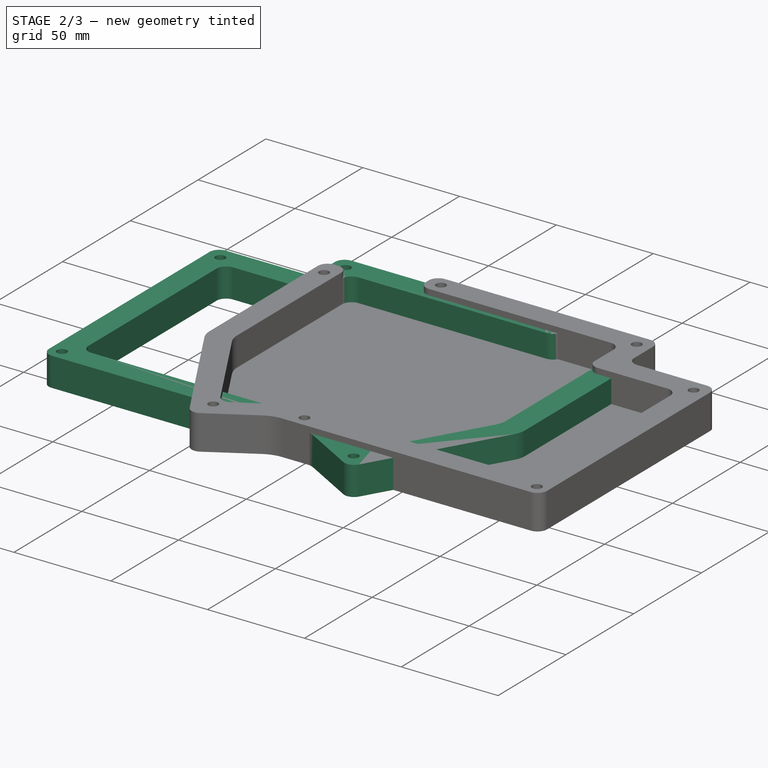
[diagram: stage 2 of 3 — iso view after this stage's code; geometry added in this stage tinted green]
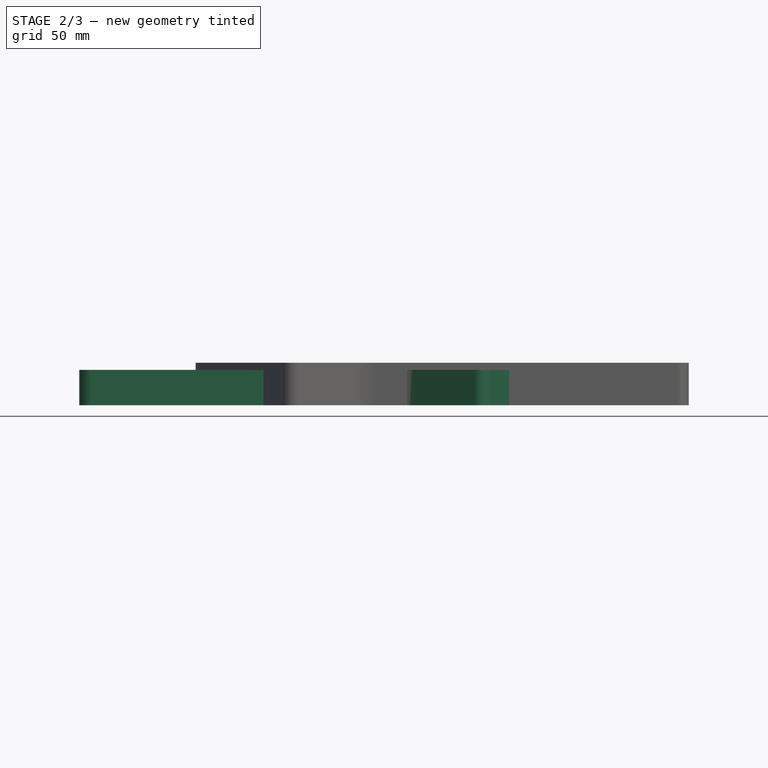
[diagram: stage 2 of 3 — front view after this stage's code; geometry added in this stage tinted green]
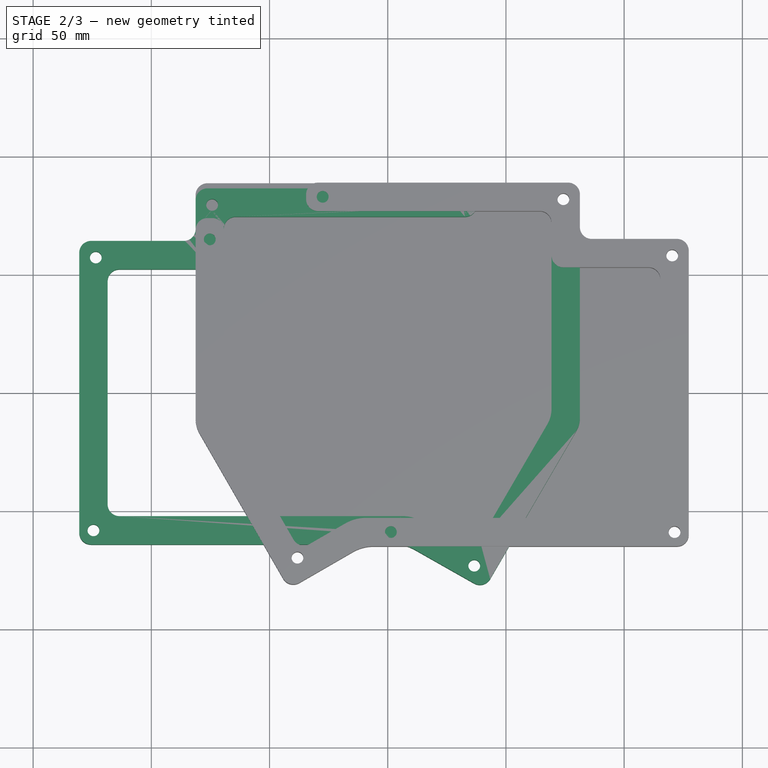
[diagram: stage 2 of 3 — top view after this stage's code; geometry added in this stage tinted green]
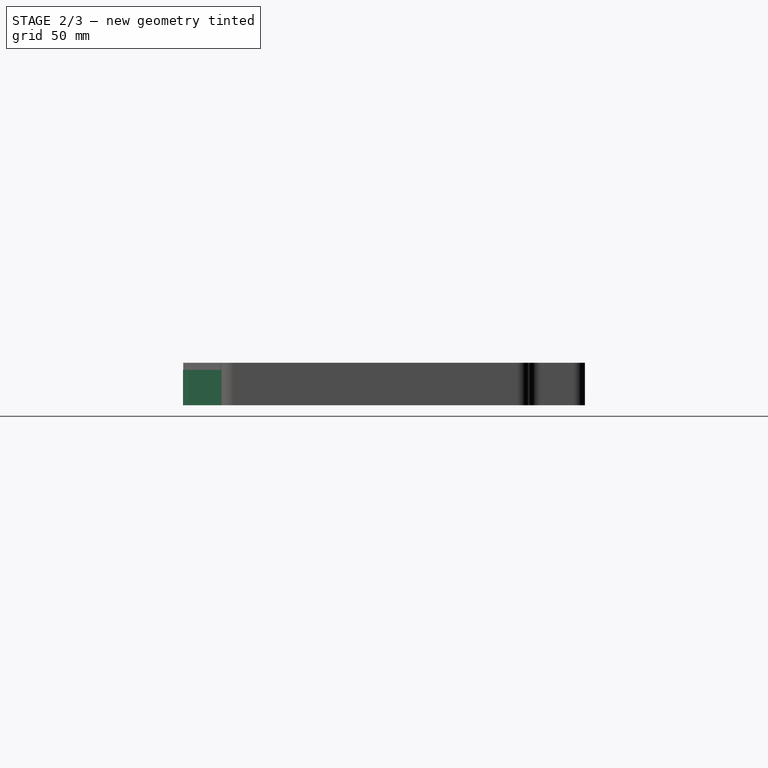
[diagram: stage 2 of 3 — right view after this stage's code; geometry added in this stage tinted green]
FEATURE [Part::Extrusion] Extrude002
  Base = -> Sketch002
  Dir = (0,0,1)
  DirMode = 0
  FaceMakerClass = Part::FaceMakerBullseye
  LengthFwd = 15
  LengthRev = 0
  Solid = true
  Symmetric = false
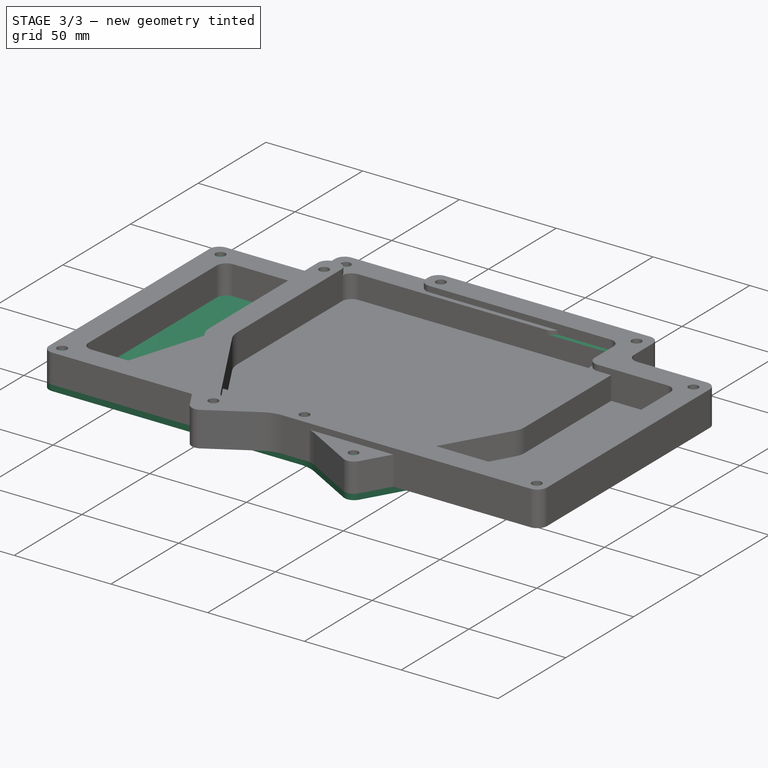
[diagram: stage 3 of 3 — iso view after this stage's code; geometry added in this stage tinted green]
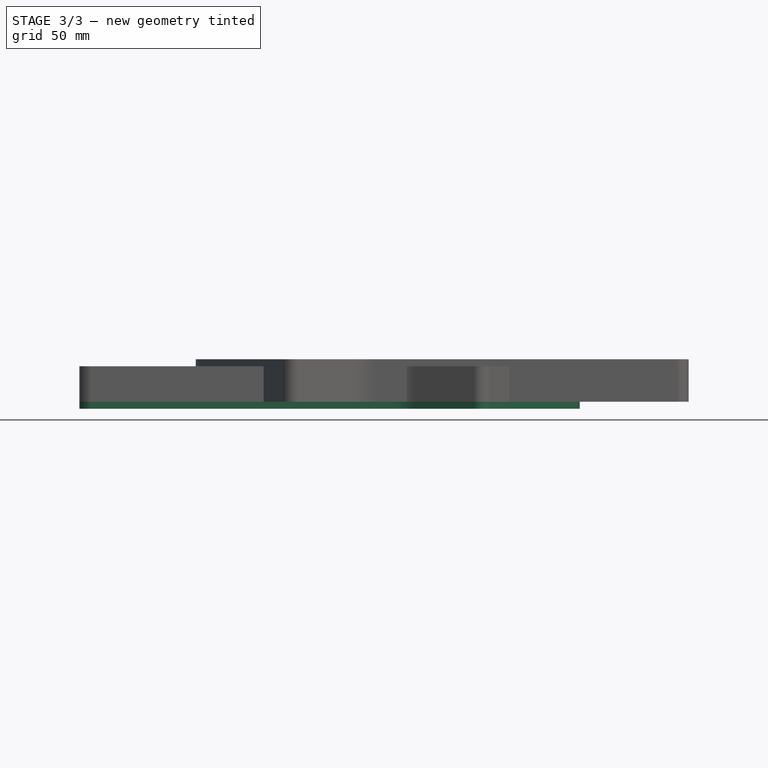
[diagram: stage 3 of 3 — front view after this stage's code; geometry added in this stage tinted green]
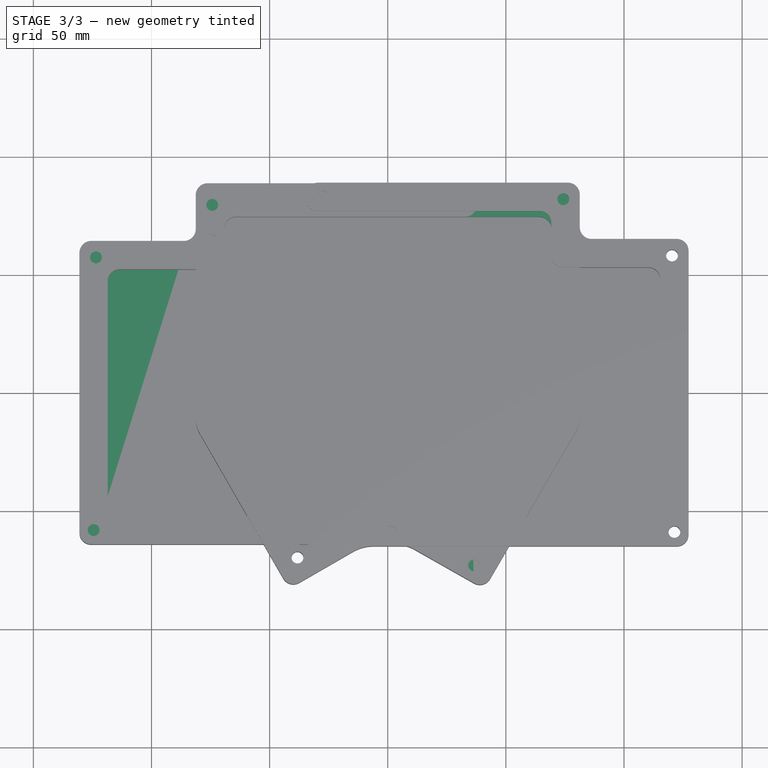
[diagram: stage 3 of 3 — top view after this stage's code; geometry added in this stage tinted green]
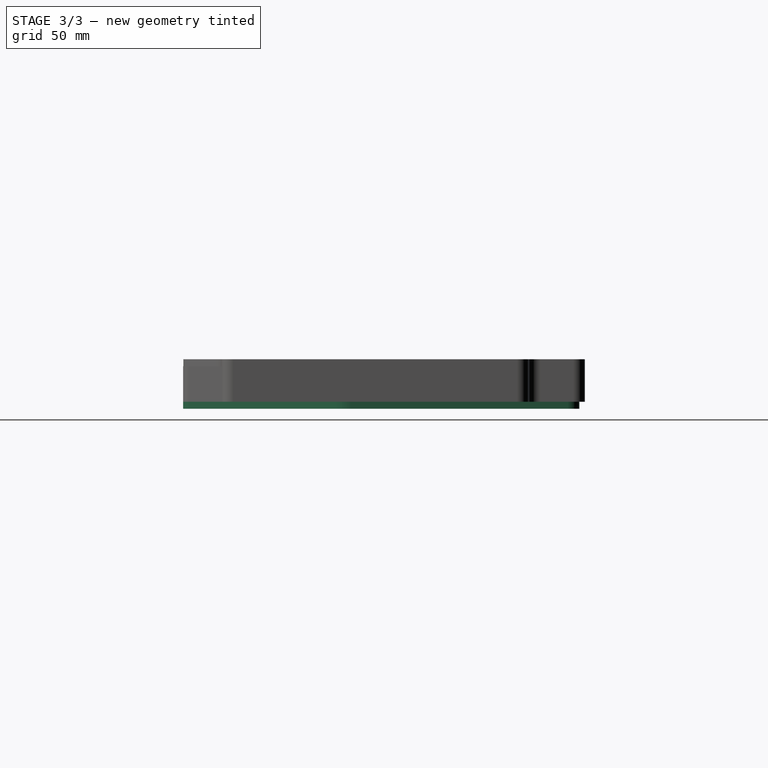
[diagram: stage 3 of 3 — right view after this stage's code; geometry added in this stage tinted green]
FEATURE [Spreadsheet::Sheet] Spreadsheet  label="lParameters"
  cells = A1=top horizontal; B1==132.56mm; D1=same; A2=vertical gap to horizontal ledge; B2==22.23mm; D2=smaller; A3=2nd horizontal ledge; B3==49.21mm; D3=larger; A4=outer vertical length; B4==98.42mm; D4=smaller; A5=bottom horizontal; B5==127mm; D5=same; A6=bottom slant; B6==27.37mm; C6==150.5deg; D6=within 1 deg; E6=larger; A7=inner slant; B7==61.53mm; C7==120.2deg; D7=within 0.5 deg; E7=within 0.4 mm; A8=inner vertical length; B8==80.95999999999999mm; D8=smaller; A10=ProMicro vertical; B10==47.62mm; D10=smaller; A11=ProMicro horizontal; B11==28.57mm; D11=smaller
FEATURE [App::DocumentObjectGroup] Group  label="Parts"
FEATURE [Sketcher::SketchObject] Sketch  label="outline_layer"
  FullyConstrained = true
  MapMode = 5
  Support = -> [XY_Plane]
  sketch-geometry (56):
    g0: LineSegment StartX=-66.28 StartY=71.44 StartZ=0 EndX=66.28 EndY=71.44 EndZ=0
    g1: LineSegment StartX=-115.49 StartY=-49.21 StartZ=0 EndX=11.51 EndY=-49.21 EndZ=0
    g2: LineSegment StartX=-115.49 StartY=49.21 StartZ=0 EndX=-115.49 EndY=-49.21 EndZ=0
    g3: LineSegment StartX=-66.28 StartY=71.44 StartZ=0 EndX=-66.28 EndY=49.21 EndZ=0
    g4: LineSegment StartX=-115.49 StartY=49.21 StartZ=0 EndX=-66.28 EndY=49.21 EndZ=0
    g5: LineSegment StartX=66.28 StartY=71.44 StartZ=0 EndX=66.28 EndY=-9.52 EndZ=0
    g6: LineSegment StartX=66.28 StartY=-9.52 StartZ=0 EndX=35.3292 EndY=-62.6988 EndZ=0
    g7: LineSegment StartX=35.3292 StartY=-62.6988 StartZ=0 EndX=11.51 EndY=-49.21 EndZ=0
    g8: LineSegment StartX=69.28 StartY=69.44 StartZ=0 EndX=69.28 EndY=-6.82179 EndZ=0
    g9: LineSegment StartX=-118.49 StartY=47.21 StartZ=0 EndX=-118.49 EndY=-47.21 EndZ=0
    g10: LineSegment StartX=-69.28 StartY=69.44 StartZ=0 EndX=-69.28 EndY=57.21 EndZ=0
    g11: LineSegment StartX=-64.28 StartY=74.44 StartZ=0 EndX=64.28 EndY=74.44 EndZ=0
    g12: LineSegment StartX=-113.49 StartY=-52.21 StartZ=0 EndX=6.04781 EndY=-52.21 EndZ=0
    g13: LineSegment StartX=14.7847 StartY=-54.5121 StartZ=0 EndX=32.131 EndY=-64.3353 EndZ=0
    g14: LineSegment StartX=67.5156 StartY=-13.3611 StartZ=0 EndX=38.9162 EndY=-62.4996 EndZ=0
    g15: LineSegment StartX=-113.49 StartY=52.21 StartZ=0 EndX=-74.28 EndY=52.21 EndZ=0
    g16: ArcOfCircle CenterX=-113.49 CenterY=47.21 CenterZ=0 NormalX=0 NormalY=0 NormalZ=1 AngleXU=0 Radius=5 StartAngle=1.5708 EndAngle=3.14159
    g17: ArcOfCircle CenterX=-64.28 CenterY=69.44 CenterZ=0 NormalX=0 NormalY=0 NormalZ=1 AngleXU=0 Radius=5 StartAngle=1.5708 EndAngle=3.14159
    g18: ArcOfCircle CenterX=64.28 CenterY=69.44 CenterZ=0 NormalX=0 NormalY=0 NormalZ=1 AngleXU=0 Radius=5 StartAngle=0 EndAngle=1.5708
    g19: ArcOfCircle CenterX=56.28 CenterY=-6.82179 CenterZ=0 NormalX=0 NormalY=0 NormalZ=1 AngleXU=0 Radius=13 StartAngle=5.7561 EndAngle=6.28319
    g20: ArcOfCircle CenterX=34.5949 CenterY=-59.9845 CenterZ=0 NormalX=0 NormalY=0 NormalZ=1 AngleXU=0 Radius=5 StartAngle=4.19712 EndAngle=5.7561
    g21: ArcOfCircle CenterX=6.04781 CenterY=-69.94 CenterZ=0 NormalX=0 NormalY=0 NormalZ=1 AngleXU=0 Radius=17.73 StartAngle=1.05552 EndAngle=1.5708
    g22: ArcOfCircle CenterX=-113.49 CenterY=-47.21 CenterZ=0 NormalX=0 NormalY=0 NormalZ=1 AngleXU=0 Radius=5 StartAngle=3.14159 EndAngle=4.71239
    g23: LineSegment StartX=-113.49 StartY=52.21 StartZ=0 EndX=-113.49 EndY=49.21 EndZ=0
    g24: ArcOfCircle CenterX=-74.28 CenterY=57.21 CenterZ=0 NormalX=0 NormalY=0 NormalZ=1 AngleXU=0 Radius=5 StartAngle=4.71239 EndAngle=6.28319
    g25: LineSegment StartX=-69.28 StartY=69.44 StartZ=0 EndX=-66.28 EndY=69.44 EndZ=0
    g26: LineSegment StartX=64.28 StartY=74.44 StartZ=0 EndX=64.28 EndY=71.44 EndZ=0
    g27: LineSegment StartX=69.28 StartY=69.44 StartZ=0 EndX=66.28 EndY=69.44 EndZ=0
    g28: LineSegment StartX=38.9162 StartY=-62.4996 StartZ=0 EndX=36.3234 EndY=-60.9906 EndZ=0
    g29: LineSegment StartX=14.7847 StartY=-54.5121 StartZ=0 EndX=16.263 EndY=-51.9016 EndZ=0
    g30: LineSegment StartX=-113.49 StartY=-52.21 StartZ=0 EndX=-113.49 EndY=-49.21 EndZ=0
    g31: LineSegment StartX=-118.49 StartY=47.21 StartZ=0 EndX=-115.49 EndY=47.21 EndZ=0
    g32: LineSegment StartX=-130.49 StartY=59.21 StartZ=0 EndX=-130.49 EndY=-59.21 EndZ=0
    g33: LineSegment StartX=-125.49 StartY=-64.21 StartZ=0 EndX=2.88591 EndY=-64.21 EndZ=0
    g34: LineSegment StartX=11.6228 StartY=-66.5121 StartZ=0 EndX=36.537 EndY=-80.621 EndZ=0
    g35: LineSegment StartX=43.3222 StartY=-78.7853 StartZ=0 EndX=79.5156 EndY=-16.5989 EndZ=0
    g36: LineSegment StartX=81.28 StartY=-10.0596 StartZ=0 EndX=81.28 EndY=81.44 EndZ=0
    g37: LineSegment StartX=76.28 StartY=86.44 StartZ=0 EndX=-76.28 EndY=86.44 EndZ=0
    g38: LineSegment StartX=-81.28 StartY=81.44 StartZ=0 EndX=-81.28 EndY=69.21 EndZ=0
    g39: LineSegment StartX=-86.28 StartY=64.21 StartZ=0 EndX=-125.49 EndY=64.21 EndZ=0
    g40: ArcOfCircle CenterX=-125.49 CenterY=59.21 CenterZ=0 NormalX=0 NormalY=0 NormalZ=1 AngleXU=0 Radius=5 StartAngle=1.5708 EndAngle=3.14159
    g41: ArcOfCircle CenterX=-86.28 CenterY=69.21 CenterZ=0 NormalX=0 NormalY=0 NormalZ=1 AngleXU=0 Radius=5 StartAngle=4.71239 EndAngle=6.28319
    g42: ArcOfCircle CenterX=-76.28 CenterY=81.44 CenterZ=0 NormalX=0 NormalY=0 NormalZ=1 AngleXU=0 Radius=5 StartAngle=1.5708 EndAngle=3.14159
    g43: ArcOfCircle CenterX=76.28 CenterY=81.44 CenterZ=0 NormalX=0 NormalY=0 NormalZ=1 AngleXU=0 Radius=5 StartAngle=-9e-16 EndAngle=1.5708
    g44: ArcOfCircle CenterX=68.28 CenterY=-10.0596 CenterZ=0 NormalX=0 NormalY=0 NormalZ=1 AngleXU=0 Radius=13 StartAngle=5.7561 EndAngle=6.28319
    g45: ArcOfCircle CenterX=39.0008 CenterY=-76.2702 CenterZ=0 NormalX=0 NormalY=0 NormalZ=1 AngleXU=0 Radius=5 StartAngle=4.19712 EndAngle=5.7561
    g46: ArcOfCircle CenterX=2.88591 CenterY=-81.94 CenterZ=0 NormalX=0 NormalY=0 NormalZ=1 AngleXU=0 Radius=17.73 StartAngle=1.05552 EndAngle=1.5708
    g47: ArcOfCircle CenterX=-125.49 CenterY=-59.21 CenterZ=0 NormalX=0 NormalY=0 NormalZ=1 AngleXU=0 Radius=5 StartAngle=3.14159 EndAngle=4.71239
    g48: LineSegment StartX=69.28 StartY=-6.82179 StartZ=0 EndX=81.28 EndY=-6.82179 EndZ=0
    g49: LineSegment StartX=64.28 StartY=74.44 StartZ=0 EndX=64.28 EndY=86.44 EndZ=0
    g50: LineSegment StartX=-113.49 StartY=52.21 StartZ=0 EndX=-113.49 EndY=64.21 EndZ=0
    g51: LineSegment StartX=-118.49 StartY=47.21 StartZ=0 EndX=-130.49 EndY=47.21 EndZ=0
    g52: LineSegment StartX=-113.49 StartY=-52.21 StartZ=0 EndX=-113.49 EndY=-64.21 EndZ=0
    g53: LineSegment StartX=32.131 StartY=-64.3353 StartZ=0 EndX=26.2177 EndY=-74.7772 EndZ=0
    g54: LineSegment StartX=38.9162 StartY=-62.4996 StartZ=0 EndX=49.2875 EndY=-68.5359 EndZ=0
    g55: LineSegment StartX=-81.28 StartY=69.21 StartZ=0 EndX=-69.28 EndY=69.21 EndZ=0
  constraints (150):
    c: Horizontal(g1)
    c: Vertical(g3)
    c: DistanceX(g0,g0) = 132.56
    c: DistanceX(g1,g1) = 127
    c: DistanceY(g2,g2) = 98.42
    c: DistanceY(g3,g3) = 22.23
    c: Horizontal(g4)
    c: Vertical(g5)
    c: DistanceX(g4,g4) = 49.21
    c: DistanceY(g5,g5) = 80.96
    c: Distance(g6) = 61.53
    c: Angle(g6) = -2.09789
    c: Coincident(g4,g2)
    c: Coincident(g4,g3)
    c: Coincident(g0,g3)
    c: Coincident(g0,g5)
    c: Coincident(g5,g6)
    c: Coincident(g6,g7)
    c: Coincident(g1,g2)
    c: Coincident(g1,g7)
    c: Vertical(g8)
    c: Vertical(g9)
    c: Vertical(g10)
    c: Horizontal(g11)
    c: Horizontal(g12)
    c: Parallel(g6,g14)
    c: Parallel(g13,g7)
    c: Horizontal(g15)
    c: Tangent(g15,g16) = 1.5708
    c: Tangent(g9,g16) = -1.5708
    c: Tangent(g11,g17) = 1.5708
    c: Tangent(g10,g17) = -1.5708
    c: Tangent(g11,g18) = 1.5708
    c: Tangent(g8,g18) = 1.5708
    c: Tangent(g8,g19) = 1.5708
    c: Tangent(g14,g19) = 1.5708
    c: Tangent(g14,g20) = 1.5708
    c: Tangent(g13,g20) = -1.5708
    c: Tangent(g13,g21) = 1.5708
    c: Tangent(g12,g21) = 1.5708
    c: Tangent(g12,g22) = -1.5708
    c: Tangent(g9,g22) = -1.5708
    c: Radius(g22) = 5
    c: Radius(g16) = 5
    c: Coincident(g23,g15)
    c: PointOnObject(g23,g4)
    c: Perpendicular(g4,g23)
    c: Distance(g23) = 3
    c: Tangent(g10,g24) = 1.5708
    c: Tangent(g15,g24) = -1.5708
    c: Radius(g24) = 5
    c: Coincident(g25,g10)
    c: PointOnObject(g25,g3)
    c: Horizontal(g25)
    c: Distance(g25) = 3
    c: Radius(g17) = 5
    c: Radius(g18) = 5
    c: Radius(g20) = 5
    c: Radius(g19) = 13
    c: Coincident(g26,g11)
    c: PointOnObject(g26,g0)
    c: Vertical(g26)
    c: Distance(g26) = 3
    c: Coincident(g27,g8)
    c: PointOnObject(g27,g5)
    c: Horizontal(g27)
    c: Distance(g27) = 3
    c: Coincident(g28,g14)
    c: PointOnObject(g28,g6)
    c: Perpendicular(g6,g28)
    c: Distance(g28) = 3
    c: Coincident(g29,g13)
    c: PointOnObject(g29,g7)
    c: Perpendicular(g7,g29)
    c: Distance(g29) = 3
    c: Coincident(g30,g12)
    c: PointOnObject(g30,g1)
    c: Vertical(g30)
    c: Distance(g30) = 3
    c: Coincident(g31,g9)
    c: PointOnObject(g31,g2)
    c: Horizontal(g31)
    c: Distance(g31) = 3
    c: Radius(g21) = 17.73
    c: Symmetric(g1,g2,g-1)
    c: Symmetric(g0,g0,g-2)
    c: Vertical(g32)
    c: Horizontal(g33)
    c: Vertical(g36)
    c: Horizontal(g37)
    c: Horizontal(g39)
    c: Vertical(g38)
    c: Parallel(g14,g35)
    c: Parallel(g7,g34)
    c: Tangent(g32,g40) = -1.5708
    c: Tangent(g39,g40) = -1.5708
    c: Tangent(g39,g41) = 1.5708
    c: Tangent(g38,g41) = 1.5708
    c: Tangent(g38,g42) = -1.5708
    c: Tangent(g37,g42) = -1.5708
    c: Tangent(g37,g43) = -1.5708
    c: Tangent(g36,g43) = -1.5708
    c: Tangent(g36,g44) = -1.5708
    c: Tangent(g35,g44) = -1.5708
    c: Tangent(g35,g45) = -1.5708
    c: Tangent(g34,g45) = -1.5708
    c: Tangent(g33,g46) = 1.5708
    c: Tangent(g34,g46) = 1.5708
    c: Tangent(g33,g47) = -1.5708
    c: Tangent(g32,g47) = -1.5708
    c: Radius(g40) = 5
    c: Radius(g41) = 5
    c: Radius(g42) = 5
    c: Radius(g43) = 5
    c: Radius(g45) = 5
    c: Radius(g47) = 5
    c: Radius(g46) = 17.73
    c: Radius(g44) = 13
    c: Coincident(g48,g8)
    c: PointOnObject(g48,g36)
    c: Horizontal(g48)
    c: Coincident(g49,g11)
    c: PointOnObject(g49,g37)
    c: Vertical(g49)
    c: Coincident(g50,g15)
    c: PointOnObject(g50,g39)
    c: Vertical(g50)
    c: Coincident(g51,g9)
    c: PointOnObject(g51,g32)
    c: Horizontal(g51)
    c: Coincident(g52,g12)
    c: PointOnObject(g52,g33)
    c: Vertical(g52)
    c: Coincident(g53,g13)
    c: PointOnObject(g53,g34)
    c: Coincident(g54,g14)
    c: PointOnObject(g54,g35)
    c: Distance(g48) = 12
    c: Distance(g49) = 12
    c: Distance(g50) = 12
    c: Distance(g51) = 12
    c: Distance(g52) = 12
    c: Distance(g53) = 12
    c: Perpendicular(g34,g53)
    c: Perpendicular(g35,g54)
    c: Distance(g54) = 12
    c: Coincident(g55,g38)
    c: PointOnObject(g55,g10)
    c: Horizontal(g55)
    c: Distance(g55) = 12
FEATURE [Sketcher::SketchObject] Sketch001  label="filled_layer"
  FullyConstrained = true
  MapMode = 5
  Support = -> [XY_Plane]
  sketch-geometry (76):
    g0: LineSegment StartX=-66.28 StartY=71.44 StartZ=0 EndX=66.28 EndY=71.44 EndZ=0
    g1: LineSegment StartX=-115.49 StartY=-49.21 StartZ=0 EndX=11.51 EndY=-49.21 EndZ=0
    g2: LineSegment StartX=-115.49 StartY=49.21 StartZ=0 EndX=-115.49 EndY=-49.21 EndZ=0
    g3: LineSegment StartX=-66.28 StartY=71.44 StartZ=0 EndX=-66.28 EndY=49.21 EndZ=0
    g4: LineSegment StartX=-115.49 StartY=49.21 StartZ=0 EndX=-66.28 EndY=49.21 EndZ=0
    g5: LineSegment StartX=66.28 StartY=71.44 StartZ=0 EndX=66.28 EndY=-9.52 EndZ=0
    g6: LineSegment StartX=66.28 StartY=-9.52 StartZ=0 EndX=35.3292 EndY=-62.6988 EndZ=0
    g7: LineSegment StartX=35.3292 StartY=-62.6988 StartZ=0 EndX=11.51 EndY=-49.21 EndZ=0
    g8: LineSegment StartX=69.28 StartY=69.44 StartZ=0 EndX=69.28 EndY=-6.82179 EndZ=0
    g9: LineSegment StartX=-118.49 StartY=47.21 StartZ=0 EndX=-118.49 EndY=-47.21 EndZ=0
    g10: LineSegment StartX=-69.28 StartY=69.44 StartZ=0 EndX=-69.28 EndY=57.21 EndZ=0
    g11: LineSegment StartX=-64.28 StartY=74.44 StartZ=0 EndX=64.28 EndY=74.44 EndZ=0
    g12: LineSegment StartX=-113.49 StartY=-52.21 StartZ=0 EndX=6.04781 EndY=-52.21 EndZ=0
    g13: LineSegment StartX=14.7847 StartY=-54.5121 StartZ=0 EndX=32.131 EndY=-64.3353 EndZ=0
    g14: LineSegment StartX=67.5156 StartY=-13.3611 StartZ=0 EndX=38.9162 EndY=-62.4996 EndZ=0
    g15: LineSegment StartX=-113.49 StartY=52.21 StartZ=0 EndX=-74.28 EndY=52.21 EndZ=0
    g16: ArcOfCircle CenterX=-113.49 CenterY=47.21 CenterZ=0 NormalX=0 NormalY=0 NormalZ=1 AngleXU=0 Radius=5 StartAngle=1.5708 EndAngle=3.14159
    g17: ArcOfCircle CenterX=-64.28 CenterY=69.44 CenterZ=0 NormalX=0 NormalY=0 NormalZ=1 AngleXU=0 Radius=5 StartAngle=1.5708 EndAngle=3.14159
    g18: ArcOfCircle CenterX=64.28 CenterY=69.44 CenterZ=0 NormalX=0 NormalY=0 NormalZ=1 AngleXU=0 Radius=5 StartAngle=0 EndAngle=1.5708
    g19: ArcOfCircle CenterX=56.28 CenterY=-6.82179 CenterZ=0 NormalX=0 NormalY=0 NormalZ=1 AngleXU=0 Radius=13 StartAngle=5.7561 EndAngle=6.28319
    g20: ArcOfCircle CenterX=34.5949 CenterY=-59.9845 CenterZ=0 NormalX=0 NormalY=0 NormalZ=1 AngleXU=0 Radius=5 StartAngle=4.19712 EndAngle=5.7561
    g21: ArcOfCircle CenterX=6.04781 CenterY=-69.94 CenterZ=0 NormalX=0 NormalY=0 NormalZ=1 AngleXU=0 Radius=17.73 StartAngle=1.05552 EndAngle=1.5708
    g22: ArcOfCircle CenterX=-113.49 CenterY=-47.21 CenterZ=0 NormalX=0 NormalY=0 NormalZ=1 AngleXU=0 Radius=5 StartAngle=3.14159 EndAngle=4.71239
    g23: LineSegment StartX=-113.49 StartY=52.21 StartZ=0 EndX=-113.49 EndY=49.21 EndZ=0
    g24: ArcOfCircle CenterX=-74.28 CenterY=57.21 CenterZ=0 NormalX=0 NormalY=0 NormalZ=1 AngleXU=0 Radius=5 StartAngle=4.71239 EndAngle=6.28319
    g25: LineSegment StartX=-69.28 StartY=69.44 StartZ=0 EndX=-66.28 EndY=69.44 EndZ=0
    g26: LineSegment StartX=64.28 StartY=74.44 StartZ=0 EndX=64.28 EndY=71.44 EndZ=0
    g27: LineSegment StartX=69.28 StartY=69.44 StartZ=0 EndX=66.28 EndY=69.44 EndZ=0
    g28: LineSegment StartX=38.9162 StartY=-62.4996 StartZ=0 EndX=36.3234 EndY=-60.9906 EndZ=0
    g29: LineSegment StartX=14.7847 StartY=-54.5121 StartZ=0 EndX=16.263 EndY=-51.9016 EndZ=0
    g30: LineSegment StartX=-113.49 StartY=-52.21 StartZ=0 EndX=-113.49 EndY=-49.21 EndZ=0
    g31: LineSegment StartX=-118.49 StartY=47.21 StartZ=0 EndX=-115.49 EndY=47.21 EndZ=0
    g32: LineSegment StartX=-130.49 StartY=59.21 StartZ=0 EndX=-130.49 EndY=-59.21 EndZ=0
    g33: LineSegment StartX=-125.49 StartY=-64.21 StartZ=0 EndX=2.88591 EndY=-64.21 EndZ=0
    g34: LineSegment StartX=11.6228 StartY=-66.5121 StartZ=0 EndX=36.537 EndY=-80.621 EndZ=0
    g35: LineSegment StartX=43.3222 StartY=-78.7853 StartZ=0 EndX=79.5156 EndY=-16.5989 EndZ=0
    g36: LineSegment StartX=81.28 StartY=-10.0596 StartZ=0 EndX=81.28 EndY=81.44 EndZ=0
    g37: LineSegment StartX=76.28 StartY=86.44 StartZ=0 EndX=-76.28 EndY=86.44 EndZ=0
    g38: LineSegment StartX=-81.28 StartY=81.44 StartZ=0 EndX=-81.28 EndY=69.21 EndZ=0
    g39: LineSegment StartX=-86.28 StartY=64.21 StartZ=0 EndX=-125.49 EndY=64.21 EndZ=0
    g40: ArcOfCircle CenterX=-125.49 CenterY=59.21 CenterZ=0 NormalX=0 NormalY=0 NormalZ=1 AngleXU=0 Radius=5 StartAngle=1.5708 EndAngle=3.14159
    g41: ArcOfCircle CenterX=-86.28 CenterY=69.21 CenterZ=0 NormalX=0 NormalY=0 NormalZ=1 AngleXU=0 Radius=5 StartAngle=4.71239 EndAngle=6.28319
    g42: ArcOfCircle CenterX=-76.28 CenterY=81.44 CenterZ=0 NormalX=0 NormalY=0 NormalZ=1 AngleXU=0 Radius=5 StartAngle=1.5708 EndAngle=3.14159
    g43: ArcOfCircle CenterX=76.28 CenterY=81.44 CenterZ=0 NormalX=0 NormalY=0 NormalZ=1 AngleXU=0 Radius=5 StartAngle=-2.7e-15 EndAngle=1.5708
    g44: ArcOfCircle CenterX=68.28 CenterY=-10.0596 CenterZ=0 NormalX=0 NormalY=0 NormalZ=1 AngleXU=0 Radius=13 StartAngle=5.7561 EndAngle=6.28319
    g45: ArcOfCircle CenterX=39.0008 CenterY=-76.2702 CenterZ=0 NormalX=0 NormalY=0 NormalZ=1 AngleXU=0 Radius=5 StartAngle=4.19712 EndAngle=5.7561
    g46: ArcOfCircle CenterX=2.88591 CenterY=-81.94 CenterZ=0 NormalX=0 NormalY=0 NormalZ=1 AngleXU=0 Radius=17.73 StartAngle=1.05552 EndAngle=1.5708
    g47: ArcOfCircle CenterX=-125.49 CenterY=-59.21 CenterZ=0 NormalX=0 NormalY=0 NormalZ=1 AngleXU=0 Radius=5 StartAngle=3.14159 EndAngle=4.71239
    g48: LineSegment StartX=69.28 StartY=-6.82179 StartZ=0 EndX=81.28 EndY=-6.82179 EndZ=0
    g49: LineSegment StartX=64.28 StartY=74.44 StartZ=0 EndX=64.28 EndY=86.44 EndZ=0
    g50: LineSegment StartX=-113.49 StartY=52.21 StartZ=0 EndX=-113.49 EndY=64.21 EndZ=0
    g51: LineSegment StartX=-118.49 StartY=47.21 StartZ=0 EndX=-130.49 EndY=47.21 EndZ=0
    g52: LineSegment StartX=-113.49 StartY=-52.21 StartZ=0 EndX=-113.49 EndY=-64.21 EndZ=0
    g53: LineSegment StartX=32.131 StartY=-64.3353 StartZ=0 EndX=26.2177 EndY=-74.7772 EndZ=0
    g54: LineSegment StartX=38.9162 StartY=-62.4996 StartZ=0 EndX=49.2875 EndY=-68.5359 EndZ=0
    g55: LineSegment StartX=-81.28 StartY=69.21 StartZ=0 EndX=-69.28 EndY=69.21 EndZ=0
    g56: Circle CenterX=-123.49 CenterY=57.21 CenterZ=0 NormalX=0 NormalY=0 NormalZ=1 AngleXU=0 Radius=2.5
    g57: Circle CenterX=-124.49 CenterY=-58.21 CenterZ=0 NormalX=0 NormalY=0 NormalZ=1 AngleXU=0 Radius=2.5
    g58: Circle CenterX=-4.49 CenterY=-58.21 CenterZ=0 NormalX=0 NormalY=0 NormalZ=1 AngleXU=0 Radius=2.5
    g59: Circle CenterX=36.5852 CenterY=-73.1759 CenterZ=0 NormalX=0 NormalY=0 NormalZ=1 AngleXU=0 Radius=2.5
    g60: Circle CenterX=75.28 CenterY=62.44 CenterZ=0 NormalX=0 NormalY=0 NormalZ=1 AngleXU=0 Radius=2.5
    g61: Circle CenterX=30.7112 CenterY=80.44 CenterZ=0 NormalX=0 NormalY=0 NormalZ=1 AngleXU=0 Radius=2.5
    g62: Circle CenterX=-74.28 CenterY=79.44 CenterZ=0 NormalX=0 NormalY=0 NormalZ=1 AngleXU=0 Radius=2.5
    g63: LineSegment StartX=-74.28 StartY=79.44 StartZ=0 EndX=-74.28 EndY=86.44 EndZ=0
    g64: LineSegment StartX=-74.28 StartY=79.44 StartZ=0 EndX=-81.28 EndY=79.44 EndZ=0
    g65: LineSegment StartX=-123.49 StartY=57.21 StartZ=0 EndX=-123.49 EndY=64.21 EndZ=0
    g66: LineSegment StartX=-123.49 StartY=57.21 StartZ=0 EndX=-130.49 EndY=57.21 EndZ=0
    g67: LineSegment StartX=-124.49 StartY=-58.21 StartZ=0 EndX=-124.49 EndY=-64.21 EndZ=0
    g68: LineSegment StartX=-124.49 StartY=-58.21 StartZ=0 EndX=-130.49 EndY=-58.21 EndZ=0
    g69: LineSegment StartX=-124.49 StartY=-58.21 StartZ=0 EndX=-4.49 EndY=-58.21 EndZ=0
    g70: LineSegment StartX=75.28 StartY=86.44 StartZ=0 EndX=75.28 EndY=62.44 EndZ=0
    g71: LineSegment StartX=69.28 StartY=69.44 StartZ=0 EndX=69.28 EndY=86.44 EndZ=0
    g72: LineSegment StartX=30.7112 StartY=80.44 StartZ=0 EndX=30.7112 EndY=86.44 EndZ=0
    g73: LineSegment StartX=30.7112 StartY=80.44 StartZ=0 EndX=30.7112 EndY=74.44 EndZ=0
    g74: LineSegment StartX=75.28 StartY=62.44 StartZ=0 EndX=69.28 EndY=62.44 EndZ=0
    g75: LineSegment StartX=75.28 StartY=62.44 StartZ=0 EndX=81.28 EndY=62.44 EndZ=0
  constraints (209):
    c: Horizontal(g1)
    c: Vertical(g3)
    c: DistanceX(g0,g0) = 132.56
    c: DistanceX(g1,g1) = 127
    c: DistanceY(g2,g2) = 98.42
    c: DistanceY(g3,g3) = 22.23
    c: Horizontal(g4)
    c: Vertical(g5)
    c: DistanceX(g4,g4) = 49.21
    c: DistanceY(g5,g5) = 80.96
    c: Distance(g6) = 61.53
    c: Angle(g6) = -2.09789
    c: Coincident(g4,g2)
    c: Coincident(g4,g3)
    c: Coincident(g0,g3)
    c: Coincident(g0,g5)
    c: Coincident(g5,g6)
    c: Coincident(g6,g7)
    c: Coincident(g1,g2)
    c: Coincident(g1,g7)
    c: Vertical(g8)
    c: Vertical(g9)
    c: Vertical(g10)
    c: Horizontal(g11)
    c: Horizontal(g12)
    c: Parallel(g6,g14)
    c: Parallel(g13,g7)
    c: Horizontal(g15)
    c: Tangent(g15,g16) = 1.5708
    c: Tangent(g9,g16) = -1.5708
    c: Tangent(g11,g17) = 1.5708
    c: Tangent(g10,g17) = -1.5708
    c: Tangent(g11,g18) = 1.5708
    c: Tangent(g8,g18) = 1.5708
    c: Tangent(g8,g19) = 1.5708
    c: Tangent(g14,g19) = 1.5708
    c: Tangent(g14,g20) = 1.5708
    c: Tangent(g13,g20) = -1.5708
    c: Tangent(g13,g21) = 1.5708
    c: Tangent(g12,g21) = 1.5708
    c: Tangent(g12,g22) = -1.5708
    c: Tangent(g9,g22) = -1.5708
    c: Radius(g22) = 5
    c: Radius(g16) = 5
    c: Coincident(g23,g15)
    c: PointOnObject(g23,g4)
    c: Perpendicular(g4,g23)
    c: Distance(g23) = 3
    c: Tangent(g10,g24) = 1.5708
    c: Tangent(g15,g24) = -1.5708
    c: Radius(g24) = 5
    c: Coincident(g25,g10)
    c: PointOnObject(g25,g3)
    c: Horizontal(g25)
    c: Distance(g25) = 3
    c: Radius(g17) = 5
    c: Radius(g18) = 5
    c: Radius(g20) = 5
    c: Radius(g19) = 13
    c: Coincident(g26,g11)
    c: PointOnObject(g26,g0)
    c: Vertical(g26)
    c: Distance(g26) = 3
    c: Coincident(g27,g8)
    c: PointOnObject(g27,g5)
    c: Horizontal(g27)
    c: Distance(g27) = 3
    c: Coincident(g28,g14)
    c: PointOnObject(g28,g6)
    c: Perpendicular(g6,g28)
    c: Distance(g28) = 3
    c: Coincident(g29,g13)
    c: PointOnObject(g29,g7)
    c: Perpendicular(g7,g29)
    c: Distance(g29) = 3
    c: Coincident(g30,g12)
    c: PointOnObject(g30,g1)
    c: Vertical(g30)
    c: Distance(g30) = 3
    c: Coincident(g31,g9)
    c: PointOnObject(g31,g2)
    c: Horizontal(g31)
    c: Distance(g31) = 3
    c: Radius(g21) = 17.73
    c: Symmetric(g1,g2,g-1)
    c: Symmetric(g0,g0,g-2)
    c: Vertical(g32)
    c: Horizontal(g33)
    c: Vertical(g36)
    c: Horizontal(g37)
    c: Horizontal(g39)
    c: Vertical(g38)
    c: Parallel(g14,g35)
    c: Parallel(g7,g34)
    c: Tangent(g32,g40) = -1.5708
    c: Tangent(g39,g40) = -1.5708
    c: Tangent(g39,g41) = 1.5708
    c: Tangent(g38,g41) = 1.5708
    c: Tangent(g38,g42) = -1.5708
    c: Tangent(g37,g42) = -1.5708
    c: Tangent(g37,g43) = -1.5708
    c: Tangent(g36,g43) = -1.5708
    c: Tangent(g36,g44) = -1.5708
    c: Tangent(g35,g44) = -1.5708
    c: Tangent(g35,g45) = -1.5708
    c: Tangent(g34,g45) = -1.5708
    c: Tangent(g33,g46) = 1.5708
    c: Tangent(g34,g46) = 1.5708
    c: Tangent(g33,g47) = -1.5708
    c: Tangent(g32,g47) = -1.5708
    c: Radius(g40) = 5
    c: Radius(g41) = 5
    c: Radius(g42) = 5
    c: Radius(g43) = 5
    c: Radius(g45) = 5
    c: Radius(g47) = 5
    c: Radius(g46) = 17.73
    c: Radius(g44) = 13
    c: Coincident(g48,g8)
    c: PointOnObject(g48,g36)
    c: Horizontal(g48)
    c: Coincident(g49,g11)
    c: PointOnObject(g49,g37)
    c: Vertical(g49)
    c: Coincident(g50,g15)
    c: PointOnObject(g50,g39)
    c: Vertical(g50)
    c: Coincident(g51,g9)
    c: PointOnObject(g51,g32)
    c: Horizontal(g51)
    c: Coincident(g52,g12)
    c: PointOnObject(g52,g33)
    c: Vertical(g52)
    c: Coincident(g53,g13)
    c: PointOnObject(g53,g34)
    c: Coincident(g54,g14)
    c: PointOnObject(g54,g35)
    c: Distance(g48) = 12
    c: Distance(g49) = 12
    c: Distance(g50) = 12
    c: Distance(g51) = 12
    c: Distance(g52) = 12
    c: Distance(g53) = 12
    c: Perpendicular(g34,g53)
    c: Perpendicular(g35,g54)
    c: Distance(g54) = 12
    c: Coincident(g55,g38)
    c: PointOnObject(g55,g10)
    c: Horizontal(g55)
    c: Distance(g55) = 12
    c: Radius(g62) = 2.5
    c: Radius(g56) = 2.5
    c: Radius(g57) = 2.5
    c: Radius(g58) = 2.5
    c: Radius(g59) = 2.5
    c: Radius(g60) = 2.5
    c: Radius(g61) = 2.5
    c: Coincident(g63,g62)
    c: PointOnObject(g63,g37)
    c: Vertical(g63)
    c: Coincident(g64,g62)
    c: PointOnObject(g64,g38)
    c: Horizontal(g64)
    c: Coincident(g65,g56)
    c: PointOnObject(g65,g39)
    c: Vertical(g65)
    c: Coincident(g66,g56)
    c: PointOnObject(g66,g32)
    c: Horizontal(g66)
    c: Coincident(g67,g57)
    c: PointOnObject(g67,g33)
    c: Vertical(g67)
    c: Coincident(g68,g57)
    c: PointOnObject(g68,g32)
    c: Horizontal(g68)
    c: Coincident(g69,g57)
    c: Coincident(g69,g58)
    c: Horizontal(g69)
    c: Coincident(g70,g60)
    c: Vertical(g70)
    c: Coincident(g71,g8)
    c: PointOnObject(g71,g37)
    c: Vertical(g71)
    c: DistanceX(g59) = 36.5852
    c: DistanceY(g59) = -73.1759
    c: Distance(g68) = 6
    c: Distance(g67) = 6
    c: Distance(g69) = 120
    c: Distance(g65) = 7
    c: Distance(g66) = 7
    c: Distance(g63) = 7
    c: Distance(g64) = 7
    c: Coincident(g72,g61)
    c: PointOnObject(g72,g37)
    c: Vertical(g72)
    c: Coincident(g73,g61)
    c: PointOnObject(g73,g11)
    c: Vertical(g73)
    c: Equal(g72,g73)
    c: DistanceX(g61) = 30.7112
    c: PointOnObject(g70,g37)
    c: Coincident(g74,g60)
    c: PointOnObject(g74,g8)
    c: Horizontal(g74)
    c: Coincident(g75,g60)
    c: PointOnObject(g75,g36)
    c: Horizontal(g75)
    c: Equal(g75,g74)
    c: Distance(g70) = 24
FEATURE [Sketcher::SketchObject] Sketch002  label="outline_layer_cutouts"
  FullyConstrained = true
  MapMode = 5
  Support = -> [XY_Plane]
  sketch-geometry (89):
    g0: LineSegment StartX=-66.28 StartY=71.44 StartZ=0 EndX=66.28 EndY=71.44 EndZ=0
    g1: LineSegment StartX=-115.49 StartY=-49.21 StartZ=0 EndX=11.51 EndY=-49.21 EndZ=0
    g2: LineSegment StartX=-115.49 StartY=49.21 StartZ=0 EndX=-115.49 EndY=-49.21 EndZ=0
    g3: LineSegment StartX=-66.28 StartY=71.44 StartZ=0 EndX=-66.28 EndY=49.21 EndZ=0
    g4: LineSegment StartX=-115.49 StartY=49.21 StartZ=0 EndX=-66.28 EndY=49.21 EndZ=0
    g5: LineSegment StartX=66.28 StartY=71.44 StartZ=0 EndX=66.28 EndY=-9.52 EndZ=0
    g6: LineSegment StartX=66.28 StartY=-9.52 StartZ=0 EndX=35.3292 EndY=-62.6988 EndZ=0
    g7: LineSegment StartX=35.3292 StartY=-62.6988 StartZ=0 EndX=11.51 EndY=-49.21 EndZ=0
    g8: LineSegment StartX=-118.49 StartY=47.21 StartZ=0 EndX=-118.49 EndY=-47.21 EndZ=0
    g9: LineSegment StartX=-69.28 StartY=69.44 StartZ=0 EndX=-69.28 EndY=57.21 EndZ=0
    g10: LineSegment StartX=-113.49 StartY=-52.21 StartZ=0 EndX=6.04781 EndY=-52.21 EndZ=0
    g11: LineSegment StartX=14.7847 StartY=-54.5121 StartZ=0 EndX=32.131 EndY=-64.3353 EndZ=0
    g12: LineSegment StartX=67.5156 StartY=-13.3611 StartZ=0 EndX=38.9162 EndY=-62.4996 EndZ=0
    g13: LineSegment StartX=-113.49 StartY=52.21 StartZ=0 EndX=-74.28 EndY=52.21 EndZ=0
    g14: ArcOfCircle CenterX=-113.49 CenterY=47.21 CenterZ=0 NormalX=0 NormalY=0 NormalZ=1 AngleXU=0 Radius=5 StartAngle=1.5708 EndAngle=3.14159
    g15: ArcOfCircle CenterX=-64.28 CenterY=69.44 CenterZ=0 NormalX=0 NormalY=0 NormalZ=1 AngleXU=0 Radius=5 StartAngle=1.5708 EndAngle=3.14159
    g16: ArcOfCircle CenterX=56.28 CenterY=-6.82179 CenterZ=0 NormalX=0 NormalY=0 NormalZ=1 AngleXU=0 Radius=13 StartAngle=5.7561 EndAngle=6.28332
    g17: ArcOfCircle CenterX=34.5949 CenterY=-59.9845 CenterZ=0 NormalX=0 NormalY=0 NormalZ=1 AngleXU=0 Radius=5 StartAngle=4.19712 EndAngle=5.7561
    g18: ArcOfCircle CenterX=6.04781 CenterY=-69.94 CenterZ=0 NormalX=0 NormalY=0 NormalZ=1 AngleXU=0 Radius=17.73 StartAngle=1.05552 EndAngle=1.5708
    g19: ArcOfCircle CenterX=-113.49 CenterY=-47.21 CenterZ=0 NormalX=0 NormalY=0 NormalZ=1 AngleXU=0 Radius=5 StartAngle=3.14159 EndAngle=4.71239
    g20: LineSegment StartX=-113.49 StartY=52.21 StartZ=0 EndX=-113.49 EndY=49.21 EndZ=0
    g21: ArcOfCircle CenterX=-74.28 CenterY=57.21 CenterZ=0 NormalX=0 NormalY=0 NormalZ=1 AngleXU=0 Radius=5 StartAngle=4.71239 EndAngle=6.28319
    g22: LineSegment StartX=-69.28 StartY=69.44 StartZ=0 EndX=-66.28 EndY=69.44 EndZ=0
    g23: LineSegment StartX=38.9162 StartY=-62.4996 StartZ=0 EndX=36.3234 EndY=-60.9906 EndZ=0
    g24: LineSegment StartX=14.7847 StartY=-54.5121 StartZ=0 EndX=16.263 EndY=-51.9016 EndZ=0
    g25: LineSegment StartX=-113.49 StartY=-52.21 StartZ=0 EndX=-113.49 EndY=-49.21 EndZ=0
    g26: LineSegment StartX=-118.49 StartY=47.21 StartZ=0 EndX=-115.49 EndY=47.21 EndZ=0
    g27: LineSegment StartX=-130.49 StartY=59.21 StartZ=0 EndX=-130.49 EndY=-59.21 EndZ=0
    g28: LineSegment StartX=-125.49 StartY=-64.21 StartZ=0 EndX=2.88591 EndY=-64.21 EndZ=0
    g29: LineSegment StartX=11.6228 StartY=-66.5121 StartZ=0 EndX=36.537 EndY=-80.621 EndZ=0
    g30: LineSegment StartX=43.3222 StartY=-78.7853 StartZ=0 EndX=79.8113 EndY=-16.0908 EndZ=0
    g31: LineSegment StartX=-81.28 StartY=81.44 StartZ=0 EndX=-81.28 EndY=69.21 EndZ=0
    g32: LineSegment StartX=-86.28 StartY=64.21 StartZ=0 EndX=-125.49 EndY=64.21 EndZ=0
    g33: ArcOfCircle CenterX=-125.49 CenterY=59.21 CenterZ=0 NormalX=0 NormalY=0 NormalZ=1 AngleXU=0 Radius=5 StartAngle=1.5708 EndAngle=3.14159
    g34: ArcOfCircle CenterX=-86.28 CenterY=69.21 CenterZ=0 NormalX=0 NormalY=0 NormalZ=1 AngleXU=0 Radius=5 StartAngle=4.71239 EndAngle=6.28319
    g35: ArcOfCircle CenterX=-76.28 CenterY=81.44 CenterZ=0 NormalX=0 NormalY=0 NormalZ=1 AngleXU=0 Radius=5 StartAngle=1.5708 EndAngle=3.14159
    g36: ArcOfCircle CenterX=70.4586 CenterY=-10.6475 CenterZ=0 NormalX=0 NormalY=0 NormalZ=1 AngleXU=0 Radius=10.8214 StartAngle=5.7561 EndAngle=6.28241
    g37: ArcOfCircle CenterX=39.0008 CenterY=-76.2702 CenterZ=0 NormalX=0 NormalY=0 NormalZ=1 AngleXU=0 Radius=5 StartAngle=4.19712 EndAngle=5.7561
    g38: ArcOfCircle CenterX=2.88591 CenterY=-81.94 CenterZ=0 NormalX=0 NormalY=0 NormalZ=1 AngleXU=0 Radius=17.73 StartAngle=1.05552 EndAngle=1.5708
    g39: ArcOfCircle CenterX=-125.49 CenterY=-59.21 CenterZ=0 NormalX=0 NormalY=0 NormalZ=1 AngleXU=0 Radius=5 StartAngle=3.14159 EndAngle=4.71239
    g40: LineSegment StartX=69.28 StartY=-6.82 StartZ=0 EndX=81.28 EndY=-6.82 EndZ=0
    g41: LineSegment StartX=-113.49 StartY=52.21 StartZ=0 EndX=-113.49 EndY=64.21 EndZ=0
    g42: LineSegment StartX=-118.49 StartY=47.21 StartZ=0 EndX=-130.49 EndY=47.21 EndZ=0
    g43: LineSegment StartX=-113.49 StartY=-52.21 StartZ=0 EndX=-113.49 EndY=-64.21 EndZ=0
    g44: LineSegment StartX=32.131 StartY=-64.3353 StartZ=0 EndX=26.2177 EndY=-74.7772 EndZ=0
    g45: LineSegment StartX=38.9162 StartY=-62.4996 StartZ=0 EndX=49.2875 EndY=-68.5359 EndZ=0
    g46: LineSegment StartX=-81.28 StartY=69.21 StartZ=0 EndX=-69.28 EndY=69.21 EndZ=0
    g47: LineSegment StartX=37.71 StartY=71.44 StartZ=0 EndX=66.28 EndY=71.44 EndZ=0
    g48: LineSegment StartX=66.28 StartY=71.44 StartZ=0 EndX=66.28 EndY=23.82 EndZ=0
    g49: LineSegment StartX=66.28 StartY=23.82 StartZ=0 EndX=37.71 EndY=23.82 EndZ=0
    g50: LineSegment StartX=37.71 StartY=23.82 StartZ=0 EndX=37.71 EndY=71.44 EndZ=0
    g51: LineSegment StartX=37.71 StartY=71.44 StartZ=0 EndX=37.71 EndY=79.44 EndZ=0
    g52: LineSegment StartX=37.71 StartY=79.44 StartZ=0 EndX=37.71 EndY=81.44 EndZ=0
    g53: LineSegment StartX=-76.28 StartY=86.44 StartZ=0 EndX=32.71 EndY=86.44 EndZ=0
    g54: ArcOfCircle CenterX=32.71 CenterY=81.44 CenterZ=0 NormalX=0 NormalY=0 NormalZ=1 AngleXU=0 Radius=5 StartAngle=2e-16 EndAngle=1.5708
    g55: ArcOfCircle CenterX=32.71 CenterY=79.44 CenterZ=0 NormalX=0 NormalY=0 NormalZ=1 AngleXU=0 Radius=5 StartAngle=4.71239 EndAngle=6.28319
    g56: LineSegment StartX=-64.28 StartY=74.44 StartZ=0 EndX=-64.28 EndY=71.44 EndZ=0
    g57: LineSegment StartX=-64.28 StartY=74.44 StartZ=0 EndX=-64.28 EndY=86.44 EndZ=0
    g58: LineSegment StartX=-64.28 StartY=74.44 StartZ=0 EndX=32.71 EndY=74.44 EndZ=0
    g59: Circle CenterX=75.28 CenterY=62.44 CenterZ=0 NormalX=0 NormalY=0 NormalZ=1 AngleXU=0 Radius=2.5
    g60: LineSegment StartX=75.28 StartY=62.44 StartZ=0 EndX=69.28 EndY=62.44 EndZ=0
    g61: LineSegment StartX=75.28 StartY=62.44 StartZ=0 EndX=81.28 EndY=62.44 EndZ=0
    g62: Circle CenterX=36.5852 CenterY=-73.1759 CenterZ=0 NormalX=0 NormalY=0 NormalZ=1 AngleXU=0 Radius=2.5
    g63: Circle CenterX=-124.49 CenterY=-58.21 CenterZ=0 NormalX=0 NormalY=0 NormalZ=1 AngleXU=0 Radius=2.5
    g64: LineSegment StartX=-124.49 StartY=-58.21 StartZ=0 EndX=-124.49 EndY=-64.21 EndZ=0
    g65: LineSegment StartX=-124.49 StartY=-58.21 StartZ=0 EndX=-130.49 EndY=-58.21 EndZ=0
    g66: Circle CenterX=-4.49 CenterY=-58.21 CenterZ=0 NormalX=0 NormalY=0 NormalZ=1 AngleXU=0 Radius=2.5
    g67: LineSegment StartX=-124.49 StartY=-58.21 StartZ=0 EndX=-4.49 EndY=-58.21 EndZ=0
    g68: Circle CenterX=-123.49 CenterY=57.21 CenterZ=0 NormalX=0 NormalY=0 NormalZ=1 AngleXU=0 Radius=2.5
    g69: Circle CenterX=-74.28 CenterY=79.44 CenterZ=0 NormalX=0 NormalY=0 NormalZ=1 AngleXU=0 Radius=2.5
    g70: Circle CenterX=30.71 CenterY=80.44 CenterZ=0 NormalX=0 NormalY=0 NormalZ=1 AngleXU=0 Radius=2.5
    g71: LineSegment StartX=-123.49 StartY=57.21 StartZ=0 EndX=-123.49 EndY=64.21 EndZ=0
    g72: LineSegment StartX=-123.49 StartY=57.21 StartZ=0 EndX=-130.49 EndY=57.21 EndZ=0
    g73: LineSegment StartX=-74.28 StartY=79.44 StartZ=0 EndX=-74.28 EndY=86.44 EndZ=0
    g74: LineSegment StartX=-74.28 StartY=79.44 StartZ=0 EndX=-81.28 EndY=79.44 EndZ=0
    g75: LineSegment StartX=30.71 StartY=80.44 StartZ=0 EndX=37.71 EndY=80.44 EndZ=0
    g76: LineSegment StartX=30.71 StartY=80.44 StartZ=0 EndX=30.71 EndY=86.44 EndZ=0
    g77: LineSegment StartX=30.71 StartY=80.44 StartZ=0 EndX=30.71 EndY=74.44 EndZ=0
    g78: LineSegment StartX=69.28 StartY=66.44 StartZ=0 EndX=69.28 EndY=-6.82 EndZ=0
    g79: LineSegment StartX=74.28 StartY=71.44 StartZ=0 EndX=76.28 EndY=71.44 EndZ=0
    g80: LineSegment StartX=81.28 StartY=66.44 StartZ=0 EndX=81.28 EndY=-10.6559 EndZ=0
    g81: ArcOfCircle CenterX=74.28 CenterY=66.44 CenterZ=0 NormalX=0 NormalY=0 NormalZ=1 AngleXU=0 Radius=5 StartAngle=1.5708 EndAngle=3.14159
    g82: ArcOfCircle CenterX=76.28 CenterY=66.44 CenterZ=0 NormalX=0 NormalY=0 NormalZ=1 AngleXU=0 Radius=5 StartAngle=0 EndAngle=1.5708
    g83: LineSegment StartX=69.28 StartY=-6.82 StartZ=0 EndX=69.28 EndY=71.44 EndZ=0
    g84: LineSegment StartX=81.28 StartY=71.44 StartZ=0 EndX=81.28 EndY=-10.6559 EndZ=0
    g85: LineSegment StartX=66.28 StartY=71.44 StartZ=0 EndX=81.28 EndY=71.44 EndZ=0
    g86: LineSegment StartX=32.71 StartY=86.44 StartZ=0 EndX=81.28 EndY=86.44 EndZ=0
    g87: LineSegment StartX=81.28 StartY=71.44 StartZ=0 EndX=81.28 EndY=86.44 EndZ=0
    g88: LineSegment StartX=75.28 StartY=62.44 StartZ=0 EndX=75.28 EndY=86.44 EndZ=0
  constraints (248):
    c: Horizontal(g1)
    c: Vertical(g3)
    c: DistanceX(g0,g0) = 132.56
    c: DistanceX(g1,g1) = 127
    c: DistanceY(g2,g2) = 98.42
    c: DistanceY(g3,g3) = 22.23
    c: Horizontal(g4)
    c: Vertical(g5)
    c: DistanceX(g4,g4) = 49.21
    c: DistanceY(g5,g5) = 80.96
    c: Distance(g6) = 61.53
    c: Angle(g6) = -2.09789
    c: Coincident(g4,g2)
    c: Coincident(g4,g3)
    c: Coincident(g0,g3)
    c: Coincident(g0,g5)
    c: Coincident(g5,g6)
    c: Coincident(g6,g7)
    c: Coincident(g1,g2)
    c: Coincident(g1,g7)
    c: Vertical(g8)
    c: Vertical(g9)
    c: Horizontal(g10)
    c: Parallel(g6,g12)
    c: Parallel(g11,g7)
    c: Horizontal(g13)
    c: Tangent(g13,g14) = 1.5708
    c: Tangent(g8,g14) = -1.5708
    c: Coincident(g56,g15) = 1.5708
    c: Tangent(g9,g15) = -1.5708
    c: Coincident(g40,g16) = 1.5708
    c: Tangent(g12,g16) = 1.5708
    c: Tangent(g12,g17) = 1.5708
    c: Tangent(g11,g17) = -1.5708
    c: Tangent(g11,g18) = 1.5708
    c: Tangent(g10,g18) = 1.5708
    c: Tangent(g10,g19) = -1.5708
    c: Tangent(g8,g19) = -1.5708
    c: Radius(g19) = 5
    c: Radius(g14) = 5
    c: Coincident(g20,g13)
    c: PointOnObject(g20,g4)
    c: Perpendicular(g4,g20)
    c: Distance(g20) = 3
    c: Tangent(g9,g21) = 1.5708
    c: Tangent(g13,g21) = -1.5708
    c: Radius(g21) = 5
    c: Coincident(g22,g9)
    c: PointOnObject(g22,g3)
    c: Horizontal(g22)
    c: Distance(g22) = 3
    c: Radius(g15) = 5
    c: Radius(g17) = 5
    c: Radius(g16) = 13
    c: Coincident(g23,g12)
    c: PointOnObject(g23,g6)
    c: Perpendicular(g6,g23)
    c: Distance(g23) = 3
    c: Coincident(g24,g11)
    c: PointOnObject(g24,g7)
    c: Perpendicular(g7,g24)
    c: Distance(g24) = 3
    c: Coincident(g25,g10)
    c: PointOnObject(g25,g1)
    c: Vertical(g25)
    c: Distance(g25) = 3
    c: Coincident(g26,g8)
    c: PointOnObject(g26,g2)
    c: Horizontal(g26)
    c: Distance(g26) = 3
    c: Radius(g18) = 17.73
    c: Symmetric(g1,g2,g-1)
    c: Symmetric(g0,g0,g-2)
    c: Vertical(g27)
    c: Horizontal(g28)
    c: Horizontal(g32)
    c: Vertical(g31)
    c: Parallel(g12,g30)
    c: Parallel(g7,g29)
    c: Tangent(g27,g33) = -1.5708
    c: Tangent(g32,g33) = -1.5708
    c: Tangent(g32,g34) = 1.5708
    c: Tangent(g31,g34) = 1.5708
    c: Tangent(g31,g35) = -1.5708
    c: Coincident(g80,g36) = -1.5708
    c: Tangent(g30,g36) = -1.5708
    c: Tangent(g30,g37) = -1.5708
    c: Tangent(g29,g37) = -1.5708
    c: Tangent(g28,g38) = 1.5708
    c: Tangent(g29,g38) = 1.5708
    c: Tangent(g28,g39) = -1.5708
    c: Tangent(g27,g39) = -1.5708
    c: Radius(g33) = 5
    c: Radius(g34) = 5
    c: Radius(g35) = 5
    c: Radius(g37) = 5
    c: Radius(g39) = 5
    c: Radius(g38) = 17.73
    c: Horizontal(g40)
    c: Coincident(g41,g13)
    c: PointOnObject(g41,g32)
    c: Vertical(g41)
    c: Coincident(g42,g8)
    c: PointOnObject(g42,g27)
    c: Horizontal(g42)
    c: Coincident(g43,g10)
    c: PointOnObject(g43,g28)
    c: Vertical(g43)
    c: Coincident(g44,g11)
    c: PointOnObject(g44,g29)
    c: Coincident(g45,g12)
    c: PointOnObject(g45,g30)
    c: Distance(g40) = 12
    c: Distance(g41) = 12
    c: Distance(g42) = 12
    c: Distance(g43) = 12
    c: Distance(g44) = 12
    c: Perpendicular(g29,g44)
    c: Perpendicular(g30,g45)
    c: Distance(g45) = 12
    c: Coincident(g46,g31)
    c: PointOnObject(g46,g9)
    c: Horizontal(g46)
    c: Distance(g46) = 12
    c: Coincident(g47,g48)
    c: Coincident(g48,g49)
    c: Coincident(g49,g50)
    c: Horizontal(g47)
    c: Horizontal(g49)
    c: Vertical(g48)
    c: Vertical(g50)
    c: PointOnObject(g47,g0)
    c: PointOnObject(g48,g5)
    c: DistanceY(g50,g50) = 47.62
    c: DistanceX(g49,g49) = 28.57
    c: Coincident(g51,g47)
    c: Vertical(g52)
    c: Coincident(g53,g35)
    c: Horizontal(g53)
    c: Vertical(g51)
    c: Tangent(g53,g54) = 1.5708
    c: Tangent(g52,g54) = -1.5708
    c: Tangent(g52,g55) = -1.5708
    c: Radius(g54) = 5
    c: Radius(g55) = 5
    c: PointOnObject(g56,g0)
    c: Vertical(g56)
    c: Distance(g56) = 3
    c: PointOnObject(g57,g53)
    c: Vertical(g57)
    c: Coincident(g51,g52)
    c: Coincident(g47,g50)
    c: Distance(g30) = 72.54
    c: Coincident(g58,g15)
    c: Coincident(g58,g55)
    c: Horizontal(g58)
    c: DistanceY(g9,g9) = 12.23
    c: Coincident(g57,g15)
    c: Distance(g51) = 8
    c: DistanceY(g57,g57) = 12
    c: Distance(g53) = 108.99
    c: Radius(g59) = 2.5
    c: Coincident(g60,g59)
    c: Horizontal(g60)
    c: Coincident(g61,g59)
    c: Horizontal(g61)
    c: Radius(g62) = 2.5
    c: Radius(g63) = 2.5
    c: Coincident(g64,g63)
    c: PointOnObject(g64,g28)
    c: Vertical(g64)
    c: Coincident(g65,g63)
    c: PointOnObject(g65,g27)
    c: Horizontal(g65)
    c: Equal(g65,g64)
    c: Radius(g66) = 2.5
    c: Distance(g65) = 6
    c: Coincident(g67,g63)
    c: Coincident(g67,g66)
    c: Horizontal(g67)
    c: Distance(g67) = 120
    c: DistanceX(g62) = 36.5852
    c: DistanceY(g62) = -73.1759
    c: Radius(g68) = 2.5
    c: Radius(g69) = 2.5
    c: Radius(g70) = 2.5
    c: Coincident(g71,g68)
    c: PointOnObject(g71,g32)
    c: Vertical(g71)
    c: Coincident(g72,g68)
    c: PointOnObject(g72,g27)
    c: Coincident(g73,g69)
    c: PointOnObject(g73,g53)
    c: Vertical(g73)
    c: Coincident(g74,g69)
    c: PointOnObject(g74,g31)
    c: Horizontal(g74)
    c: Coincident(g75,g70)
    c: PointOnObject(g75,g52)
    c: Horizontal(g75)
    c: Coincident(g76,g70)
    c: PointOnObject(g76,g53)
    c: Vertical(g76)
    c: Coincident(g77,g70)
    c: PointOnObject(g77,g58)
    c: Vertical(g77)
    c: Equal(g76,g77)
    c: Equal(g73,g74)
    c: Horizontal(g72)
    c: Equal(g72,g71)
    c: Distance(g71) = 7
    c: Distance(g73) = 7
    c: Distance(g75) = 7
    c: Vertical(g78)
    c: Horizontal(g79)
    c: Vertical(g80)
    c: Tangent(g78,g81) = -1.5708
    c: Tangent(g79,g81) = 1.5708
    c: Tangent(g80,g82) = 1.5708
    c: Tangent(g79,g82) = 1.5708
    c: Radius(g81) = 5
    c: Radius(g82) = 5
    c: Coincident(g83,g16)
    c: Vertical(g83)
    c: Coincident(g84,g36)
    c: Vertical(g84)
    c: Coincident(g78,g16)
    c: Distance(g60) = 6
    c: Distance(g61) = 6
    c: Coincident(g85,g0)
    c: Horizontal(g85)
    c: Coincident(g84,g85)
    c: PointOnObject(g83,g85)
    c: PointOnObject(g79,g85)
    c: PointOnObject(g60,g78)
    c: PointOnObject(g61,g80)
    c: Radius(g36) = 10.8214
    c: Coincident(g86,g53)
    c: Horizontal(g86)
    c: Coincident(g87,g84)
    c: Coincident(g87,g86)
    c: Vertical(g87)
    c: Coincident(g88,g59)
    c: PointOnObject(g88,g86)
    c: Vertical(g88)
    c: Distance(g88) = 24
    c: Distance(g86) = 48.57
    c: Distance(g83) = 78.26
FEATURE [Sketcher::SketchObject] Sketch003  label="plate"
  AttachmentOffset = pos=(0,0,15) rot=(0,0,1;0rad)
  FullyConstrained = false
  MapMode = 5
  Placement = pos=(0,0,15) rot=(0,0,1;0rad)
  Support = -> [XY_Plane]
  sketch-geometry (601):
    g0: LineSegment StartX=-66.28 StartY=71.44 StartZ=0 EndX=66.28 EndY=71.44 EndZ=0
    g1: LineSegment StartX=-115.49 StartY=-49.21 StartZ=0 EndX=11.51 EndY=-49.21 EndZ=0
    g2: LineSegment StartX=-115.49 StartY=49.21 StartZ=0 EndX=-115.49 EndY=-49.21 EndZ=0
    g3: LineSegment StartX=-66.28 StartY=71.44 StartZ=0 EndX=-66.28 EndY=49.21 EndZ=0
    g4: LineSegment StartX=-115.49 StartY=49.21 StartZ=0 EndX=-66.28 EndY=49.21 EndZ=0
    g5: LineSegment StartX=66.28 StartY=71.44 StartZ=0 EndX=66.28 EndY=-9.52 EndZ=0
    g6: LineSegment StartX=66.28 StartY=-9.52 StartZ=0 EndX=35.3292 EndY=-62.6988 EndZ=0
    g7: LineSegment StartX=35.3292 StartY=-62.6988 StartZ=0 EndX=11.51 EndY=-49.21 EndZ=0
    g8: LineSegment StartX=69.28 StartY=69.44 StartZ=0 EndX=69.28 EndY=-6.82179 EndZ=0
    g9: LineSegment StartX=-118.49 StartY=47.21 StartZ=0 EndX=-118.49 EndY=-47.21 EndZ=0
    g10: LineSegment StartX=-69.28 StartY=69.44 StartZ=0 EndX=-69.28 EndY=57.21 EndZ=0
    g11: LineSegment StartX=-64.28 StartY=74.44 StartZ=0 EndX=64.28 EndY=74.44 EndZ=0
    g12: LineSegment StartX=-113.49 StartY=-52.21 StartZ=0 EndX=6.04781 EndY=-52.21 EndZ=0
    g13: LineSegment StartX=14.7847 StartY=-54.5121 StartZ=0 EndX=32.131 EndY=-64.3353 EndZ=0
    g14: LineSegment StartX=67.5156 StartY=-13.3611 StartZ=0 EndX=38.9162 EndY=-62.4996 EndZ=0
    g15: LineSegment StartX=-113.49 StartY=52.21 StartZ=0 EndX=-74.28 EndY=52.21 EndZ=0
    g16: ArcOfCircle CenterX=-113.49 CenterY=47.21 CenterZ=0 NormalX=0 NormalY=0 NormalZ=1 AngleXU=0 Radius=5 StartAngle=1.5708 EndAngle=3.14159
    g17: ArcOfCircle CenterX=-64.28 CenterY=69.44 CenterZ=0 NormalX=0 NormalY=0 NormalZ=1 AngleXU=0 Radius=5 StartAngle=1.5708 EndAngle=3.14159
    g18: ArcOfCircle CenterX=64.28 CenterY=69.44 CenterZ=0 NormalX=0 NormalY=0 NormalZ=1 AngleXU=0 Radius=5 StartAngle=-9e-16 EndAngle=1.5708
    g19: ArcOfCircle CenterX=56.28 CenterY=-6.82179 CenterZ=0 NormalX=0 NormalY=0 NormalZ=1 AngleXU=0 Radius=13 StartAngle=5.7561 EndAngle=6.28319
    g20: ArcOfCircle CenterX=34.5949 CenterY=-59.9845 CenterZ=0 NormalX=0 NormalY=0 NormalZ=1 AngleXU=0 Radius=5 StartAngle=4.19712 EndAngle=5.7561
    g21: ArcOfCircle CenterX=6.04781 CenterY=-69.94 CenterZ=0 NormalX=0 NormalY=0 NormalZ=1 AngleXU=0 Radius=17.73 StartAngle=1.05552 EndAngle=1.5708
    g22: ArcOfCircle CenterX=-113.49 CenterY=-47.21 CenterZ=0 NormalX=0 NormalY=0 NormalZ=1 AngleXU=0 Radius=5 StartAngle=3.14159 EndAngle=4.71239
    g23: LineSegment StartX=-113.49 StartY=52.21 StartZ=0 EndX=-113.49 EndY=49.21 EndZ=0
    g24: ArcOfCircle CenterX=-74.28 CenterY=57.21 CenterZ=0 NormalX=0 NormalY=0 NormalZ=1 AngleXU=0 Radius=5 StartAngle=4.71239 EndAngle=6.28319
    g25: LineSegment StartX=-69.28 StartY=69.44 StartZ=0 EndX=-66.28 EndY=69.44 EndZ=0
    g26: LineSegment StartX=64.28 StartY=74.44 StartZ=0 EndX=64.28 EndY=71.44 EndZ=0
    g27: LineSegment StartX=69.28 StartY=69.44 StartZ=0 EndX=66.28 EndY=69.44 EndZ=0
    g28: LineSegment StartX=38.9162 StartY=-62.4996 StartZ=0 EndX=36.3234 EndY=-60.9906 EndZ=0
    g29: LineSegment StartX=14.7847 StartY=-54.5121 StartZ=0 EndX=16.263 EndY=-51.9016 EndZ=0
    g30: LineSegment StartX=-113.49 StartY=-52.21 StartZ=0 EndX=-113.49 EndY=-49.21 EndZ=0
    g31: LineSegment StartX=-118.49 StartY=47.21 StartZ=0 EndX=-115.49 EndY=47.21 EndZ=0
    g32: LineSegment StartX=-130.49 StartY=59.21 StartZ=0 EndX=-130.49 EndY=-59.21 EndZ=0
    g33: LineSegment StartX=-125.49 StartY=-64.21 StartZ=0 EndX=2.88591 EndY=-64.21 EndZ=0
    g34: LineSegment StartX=11.6228 StartY=-66.5121 StartZ=0 EndX=36.537 EndY=-80.621 EndZ=0
    g35: LineSegment StartX=43.3222 StartY=-78.7853 StartZ=0 EndX=79.6083 EndY=-16.4396 EndZ=0
    g36: LineSegment StartX=-81.28 StartY=81.44 StartZ=0 EndX=-81.28 EndY=69.21 EndZ=0
    g37: LineSegment StartX=-86.28 StartY=64.21 StartZ=0 EndX=-125.49 EndY=64.21 EndZ=0
    g38: ArcOfCircle CenterX=-125.49 CenterY=59.21 CenterZ=0 NormalX=0 NormalY=0 NormalZ=1 AngleXU=0 Radius=5 StartAngle=1.5708 EndAngle=3.14159
    g39: ArcOfCircle CenterX=-86.28 CenterY=69.21 CenterZ=0 NormalX=0 NormalY=0 NormalZ=1 AngleXU=0 Radius=5 StartAngle=4.71239 EndAngle=6.28319
    g40: ArcOfCircle CenterX=-76.28 CenterY=81.44 CenterZ=0 NormalX=0 NormalY=0 NormalZ=1 AngleXU=0 Radius=5 StartAngle=1.5708 EndAngle=3.14159
    g41: ArcOfCircle CenterX=68.3727 CenterY=-9.90039 CenterZ=0 NormalX=0 NormalY=0 NormalZ=1 AngleXU=0 Radius=13 StartAngle=5.7561 EndAngle=6.1637
    g42: ArcOfCircle CenterX=39.0008 CenterY=-76.2702 CenterZ=0 NormalX=0 NormalY=0 NormalZ=1 AngleXU=0 Radius=5 StartAngle=4.19712 EndAngle=5.7561
    g43: ArcOfCircle CenterX=2.88591 CenterY=-81.94 CenterZ=0 NormalX=0 NormalY=0 NormalZ=1 AngleXU=0 Radius=17.73 StartAngle=1.05552 EndAngle=1.5708
    g44: ArcOfCircle CenterX=-125.49 CenterY=-59.21 CenterZ=0 NormalX=0 NormalY=0 NormalZ=1 AngleXU=0 Radius=5 StartAngle=3.14159 EndAngle=4.71239
    g45: LineSegment StartX=69.28 StartY=-6.82179 StartZ=0 EndX=81.28 EndY=-6.82179 EndZ=0
    g46: LineSegment StartX=64.28 StartY=74.44 StartZ=0 EndX=64.28 EndY=86.44 EndZ=0
    g47: LineSegment StartX=-113.49 StartY=52.21 StartZ=0 EndX=-113.49 EndY=64.21 EndZ=0
    g48: LineSegment StartX=-118.49 StartY=47.21 StartZ=0 EndX=-130.49 EndY=47.21 EndZ=0
    g49: LineSegment StartX=-113.49 StartY=-52.21 StartZ=0 EndX=-113.49 EndY=-64.21 EndZ=0
    g50: LineSegment StartX=32.131 StartY=-64.3353 StartZ=0 EndX=26.2177 EndY=-74.7772 EndZ=0
    g51: LineSegment StartX=38.9162 StartY=-62.4996 StartZ=0 EndX=49.2875 EndY=-68.5359 EndZ=0
    g52: LineSegment StartX=-81.28 StartY=69.21 StartZ=0 EndX=-69.28 EndY=69.21 EndZ=0
    g53: LineSegment StartX=36.91 StartY=71.44 StartZ=0 EndX=36.91 EndY=23.82 EndZ=0
    g54: LineSegment StartX=36.91 StartY=23.82 StartZ=0 EndX=66.28 EndY=23.82 EndZ=0
    g55: LineSegment StartX=41.91 StartY=23.82 StartZ=0 EndX=76.28 EndY=23.82 EndZ=0
    g56: LineSegment StartX=36.91 StartY=28.82 StartZ=0 EndX=36.91 EndY=81.44 EndZ=0
    g57: LineSegment StartX=-76.28 StartY=86.44 StartZ=0 EndX=31.91 EndY=86.44 EndZ=0
    g58: LineSegment StartX=81.28 StartY=-11.45 StartZ=0 EndX=81.28 EndY=18.82 EndZ=0
    g59: ArcOfCircle CenterX=76.28 CenterY=18.82 CenterZ=0 NormalX=0 NormalY=0 NormalZ=1 AngleXU=0 Radius=5 StartAngle=0 EndAngle=1.5708
    g60: ArcOfCircle CenterX=41.91 CenterY=28.82 CenterZ=0 NormalX=0 NormalY=0 NormalZ=1 AngleXU=0 Radius=5 StartAngle=3.14159 EndAngle=4.71239
    g61: ArcOfCircle CenterX=31.91 CenterY=81.44 CenterZ=0 NormalX=0 NormalY=0 NormalZ=1 AngleXU=0 Radius=5 StartAngle=2e-16 EndAngle=1.5708
    g62: LineSegment StartX=-114.7 StartY=49.21 StartZ=0 EndX=-114.7 EndY=-49.21 EndZ=0
    g63: LineSegment StartX=-109.93 StartY=49.21 StartZ=0 EndX=-109.93 EndY=-49.21 EndZ=0
    g64: LineSegment StartX=-99.62 StartY=49.21 StartZ=0 EndX=-99.62 EndY=-49.21 EndZ=0
    g65: LineSegment StartX=-80.57 StartY=49.21 StartZ=0 EndX=-80.57 EndY=-49.21 EndZ=0
    g66: LineSegment StartX=-61.52 StartY=49.21 StartZ=0 EndX=-61.52 EndY=-49.21 EndZ=0
    g67: LineSegment StartX=-42.47 StartY=71.44 StartZ=0 EndX=-42.47 EndY=-49.21 EndZ=0
    g68: LineSegment StartX=-23.42 StartY=71.44 StartZ=0 EndX=-23.42 EndY=-49.21 EndZ=0
    g69: LineSegment StartX=-4.37 StartY=71.44 StartZ=0 EndX=-4.37 EndY=-49.21 EndZ=0
    g70: LineSegment StartX=33.73 StartY=71.44 StartZ=0 EndX=33.73 EndY=-49.21 EndZ=0
    g71: LineSegment StartX=14.68 StartY=71.44 StartZ=0 EndX=14.68 EndY=-49.21 EndZ=0
    g72: LineSegment StartX=-66.28 StartY=61.9 StartZ=0 EndX=36.91 EndY=61.9 EndZ=0
    g73: LineSegment StartX=-66.28 StartY=60.87 StartZ=0 EndX=36.91 EndY=60.87 EndZ=0
    g74: LineSegment StartX=-66.28 StartY=63.27 StartZ=0 EndX=36.91 EndY=63.27 EndZ=0
    g75: LineSegment StartX=-66.28 StartY=66.79 StartZ=0 EndX=36.91 EndY=66.79 EndZ=0
    g76: LineSegment StartX=-115.49 StartY=48.37 StartZ=0 EndX=36.91 EndY=48.37 EndZ=0
    g77: LineSegment StartX=-80.57 StartY=48.37 StartZ=0 EndX=-61.52 EndY=48.37 EndZ=0
    g78: LineSegment StartX=-61.52 StartY=48.37 StartZ=0 EndX=-61.52 EndY=29.32 EndZ=0
    g79: LineSegment StartX=-61.52 StartY=29.32 StartZ=0 EndX=-80.57 EndY=29.32 EndZ=0
    g80: LineSegment StartX=-80.57 StartY=29.32 StartZ=0 EndX=-80.57 EndY=48.37 EndZ=0
    g81: LineSegment StartX=-77.545 StartY=45.845 StartZ=0 EndX=-64.545 EndY=45.845 EndZ=0
    g82: LineSegment StartX=-64.045 StartY=45.345 StartZ=0 EndX=-64.045 EndY=32.345 EndZ=0
    g83: LineSegment StartX=-64.545 StartY=31.845 StartZ=0 EndX=-77.545 EndY=31.845 EndZ=0
    g84: LineSegment StartX=-78.045 StartY=32.345 StartZ=0 EndX=-78.045 EndY=45.345 EndZ=0
    g85: ArcOfCircle CenterX=-64.545 CenterY=32.345 CenterZ=0 NormalX=0 NormalY=0 NormalZ=1 AngleXU=0 Radius=0.5 StartAngle=4.71239 EndAngle=6.28319
    g86: ArcOfCircle CenterX=-77.545 CenterY=32.345 CenterZ=0 NormalX=0 NormalY=0 NormalZ=1 AngleXU=0 Radius=0.5 StartAngle=3.14159 EndAngle=4.71239
    g87: ArcOfCircle CenterX=-77.545 CenterY=45.345 CenterZ=0 NormalX=0 NormalY=0 NormalZ=1 AngleXU=0 Radius=0.5 StartAngle=1.5708 EndAngle=3.14159
    g88: ArcOfCircle CenterX=-64.545 CenterY=45.345 CenterZ=0 NormalX=0 NormalY=0 NormalZ=1 AngleXU=0 Radius=0.5 StartAngle=4.9e-15 EndAngle=1.5708
    g89: LineSegment StartX=-64.045 StartY=45.345 StartZ=0 EndX=-61.52 EndY=45.345 EndZ=0
    g90: LineSegment StartX=-78.045 StartY=45.345 StartZ=0 EndX=-80.57 EndY=45.345 EndZ=0
    g91: LineSegment StartX=-77.545 StartY=31.845 StartZ=0 EndX=-77.545 EndY=29.32 EndZ=0
    g92: LineSegment StartX=-77.545 StartY=45.845 StartZ=0 EndX=-77.545 EndY=48.37 EndZ=0
    g93: LineSegment StartX=-80.57 StartY=29.32 StartZ=0 EndX=-61.52 EndY=29.32 EndZ=0
    g94: LineSegment StartX=-61.52 StartY=29.32 StartZ=0 EndX=-61.52 EndY=10.27 EndZ=0
    g95: LineSegment StartX=-61.52 StartY=10.27 StartZ=0 EndX=-80.57 EndY=10.27 EndZ=0
    g96: LineSegment StartX=-80.57 StartY=10.27 StartZ=0 EndX=-80.57 EndY=29.32 EndZ=0
    g97: LineSegment StartX=-77.545 StartY=26.795 StartZ=0 EndX=-64.545 EndY=26.795 EndZ=0
    g98: LineSegment StartX=-64.045 StartY=26.295 StartZ=0 EndX=-64.045 EndY=13.295 EndZ=0
    g99: LineSegment StartX=-64.545 StartY=12.795 StartZ=0 EndX=-77.545 EndY=12.795 EndZ=0
    g100: LineSegment StartX=-78.045 StartY=13.295 StartZ=0 EndX=-78.045 EndY=26.295 EndZ=0
    g101: ArcOfCircle CenterX=-64.545 CenterY=13.295 CenterZ=0 NormalX=0 NormalY=0 NormalZ=1 AngleXU=0 Radius=0.5 StartAngle=4.71239 EndAngle=6.28319
    g102: ArcOfCircle CenterX=-77.545 CenterY=13.295 CenterZ=0 NormalX=0 NormalY=0 NormalZ=1 AngleXU=0 Radius=0.5 StartAngle=3.14159 EndAngle=4.71239
    g103: ArcOfCircle CenterX=-77.545 CenterY=26.295 CenterZ=0 NormalX=0 NormalY=0 NormalZ=1 AngleXU=0 Radius=0.5 StartAngle=1.5708 EndAngle=3.14159
    g104: ArcOfCircle CenterX=-64.545 CenterY=26.295 CenterZ=0 NormalX=0 NormalY=0 NormalZ=1 AngleXU=0 Radius=0.5 StartAngle=1.6e-15 EndAngle=1.5708
    g105: LineSegment StartX=-64.045 StartY=26.295 StartZ=0 EndX=-61.52 EndY=26.295 EndZ=0
    g106: LineSegment StartX=-77.545 StartY=12.795 StartZ=0 EndX=-77.545 EndY=10.27 EndZ=0
    g107: LineSegment StartX=-77.545 StartY=26.795 StartZ=0 EndX=-77.545 EndY=29.32 EndZ=0
    g108: LineSegment StartX=-80.57 StartY=10.27 StartZ=0 EndX=-61.52 EndY=10.27 EndZ=0
    g109: LineSegment StartX=-61.52 StartY=10.27 StartZ=0 EndX=-61.52 EndY=-8.78 EndZ=0
    g110: LineSegment StartX=-61.52 StartY=-8.78 StartZ=0 EndX=-80.57 EndY=-8.78 EndZ=0
    g111: LineSegment StartX=-80.57 StartY=-8.78 StartZ=0 EndX=-80.57 EndY=10.27 EndZ=0
    g112: LineSegment StartX=-77.545 StartY=7.745 StartZ=0 EndX=-64.545 EndY=7.745 EndZ=0
    g113: LineSegment StartX=-64.045 StartY=7.245 StartZ=0 EndX=-64.045 EndY=-5.755 EndZ=0
    g114: LineSegment StartX=-64.545 StartY=-6.255 StartZ=0 EndX=-77.545 EndY=-6.255 EndZ=0
    g115: LineSegment StartX=-78.045 StartY=-5.755 StartZ=0 EndX=-78.045 EndY=7.245 EndZ=0
    g116: ArcOfCircle CenterX=-64.545 CenterY=-5.755 CenterZ=0 NormalX=0 NormalY=0 NormalZ=1 AngleXU=0 Radius=0.5 StartAngle=4.71239 EndAngle=6.28319
    g117: ArcOfCircle CenterX=-77.545 CenterY=-5.755 CenterZ=0 NormalX=0 NormalY=0 NormalZ=1 AngleXU=0 Radius=0.5 StartAngle=3.14159 EndAngle=4.71239
    g118: ArcOfCircle CenterX=-77.545 CenterY=7.245 CenterZ=0 NormalX=0 NormalY=0 NormalZ=1 AngleXU=0 Radius=0.5 StartAngle=1.5708 EndAngle=3.14159
    g119: ArcOfCircle CenterX=-64.545 CenterY=7.245 CenterZ=0 NormalX=0 NormalY=0 NormalZ=1 AngleXU=0 Radius=0.5 StartAngle=0 EndAngle=1.5708
    g120: LineSegment StartX=-64.045 StartY=7.245 StartZ=0 EndX=-61.52 EndY=7.245 EndZ=0
    g121: LineSegment StartX=-78.045 StartY=7.245 StartZ=0 EndX=-80.57 EndY=7.245 EndZ=0
    g122: LineSegment StartX=-77.545 StartY=-6.255 StartZ=0 EndX=-77.545 EndY=-8.78 EndZ=0
    g123: LineSegment StartX=-77.545 StartY=7.745 StartZ=0 EndX=-77.545 EndY=10.27 EndZ=0
    g124: LineSegment StartX=-80.57 StartY=-8.78 StartZ=0 EndX=-61.52 EndY=-8.78 EndZ=0
    g125: LineSegment StartX=-61.52 StartY=-8.78 StartZ=0 EndX=-61.52 EndY=-27.83 EndZ=0
    g126: LineSegment StartX=-61.52 StartY=-27.83 StartZ=0 EndX=-80.57 EndY=-27.83 EndZ=0
    g127: LineSegment StartX=-80.57 StartY=-27.83 StartZ=0 EndX=-80.57 EndY=-8.78 EndZ=0
    g128: LineSegment StartX=-77.545 StartY=-11.305 StartZ=0 EndX=-64.545 EndY=-11.305 EndZ=0
    g129: LineSegment StartX=-64.045 StartY=-11.805 StartZ=0 EndX=-64.045 EndY=-24.805 EndZ=0
    g130: LineSegment StartX=-64.545 StartY=-25.305 StartZ=0 EndX=-77.545 EndY=-25.305 EndZ=0
    g131: LineSegment StartX=-78.045 StartY=-24.805 StartZ=0 EndX=-78.045 EndY=-11.805 EndZ=0
    g132: ArcOfCircle CenterX=-64.545 CenterY=-24.805 CenterZ=0 NormalX=0 NormalY=0 NormalZ=1 AngleXU=0 Radius=0.5 StartAngle=4.71239 EndAngle=6.28319
    g133: ArcOfCircle CenterX=-77.545 CenterY=-24.805 CenterZ=0 NormalX=0 NormalY=0 NormalZ=1 AngleXU=0 Radius=0.5 StartAngle=3.14159 EndAngle=4.71239
    g134: ArcOfCircle CenterX=-77.545 CenterY=-11.805 CenterZ=0 NormalX=0 NormalY=0 NormalZ=1 AngleXU=0 Radius=0.5 StartAngle=1.5708 EndAngle=3.14159
    g135: ArcOfCircle CenterX=-64.545 CenterY=-11.805 CenterZ=0 NormalX=0 NormalY=0 NormalZ=1 AngleXU=0 Radius=0.5 StartAngle=7e-16 EndAngle=1.5708
    g136: LineSegment StartX=-64.045 StartY=-11.805 StartZ=0 EndX=-61.52 EndY=-11.805 EndZ=0
    g137: LineSegment StartX=-78.045 StartY=-11.805 StartZ=0 EndX=-80.57 EndY=-11.805 EndZ=0
    g138: LineSegment StartX=-77.545 StartY=-25.305 StartZ=0 EndX=-77.545 EndY=-27.83 EndZ=0
    g139: LineSegment StartX=-77.545 StartY=-11.305 StartZ=0 EndX=-77.545 EndY=-8.78 EndZ=0
    g140: LineSegment StartX=-99.62 StartY=48.37 StartZ=0 EndX=-80.57 EndY=48.37 EndZ=0
    g141: LineSegment StartX=-80.57 StartY=48.37 StartZ=0 EndX=-80.57 EndY=29.32 EndZ=0
    g142: LineSegment StartX=-80.57 StartY=29.32 StartZ=0 EndX=-99.62 EndY=29.32 EndZ=0
    g143: LineSegment StartX=-99.62 StartY=29.32 StartZ=0 EndX=-99.62 EndY=48.37 EndZ=0
    g144: LineSegment StartX=-96.595 StartY=45.845 StartZ=0 EndX=-83.595 EndY=45.845 EndZ=0
    g145: LineSegment StartX=-83.095 StartY=45.345 StartZ=0 EndX=-83.095 EndY=32.345 EndZ=0
    g146: LineSegment StartX=-83.595 StartY=31.845 StartZ=0 EndX=-96.595 EndY=31.845 EndZ=0
    g147: LineSegment StartX=-97.095 StartY=32.345 StartZ=0 EndX=-97.095 EndY=45.345 EndZ=0
    g148: ArcOfCircle CenterX=-83.595 CenterY=32.345 CenterZ=0 NormalX=0 NormalY=0 NormalZ=1 AngleXU=0 Radius=0.5 StartAngle=4.71239 EndAngle=6.28319
    g149: ArcOfCircle CenterX=-96.595 CenterY=32.345 CenterZ=0 NormalX=0 NormalY=0 NormalZ=1 AngleXU=0 Radius=0.5 StartAngle=3.14159 EndAngle=4.71239
    g150: ArcOfCircle CenterX=-96.595 CenterY=45.345 CenterZ=0 NormalX=0 NormalY=0 NormalZ=1 AngleXU=0 Radius=0.5 StartAngle=1.5708 EndAngle=3.14159
    g151: ArcOfCircle CenterX=-83.595 CenterY=45.345 CenterZ=0 NormalX=0 NormalY=0 NormalZ=1 AngleXU=0 Radius=0.5 StartAngle=-6.2e-15 EndAngle=1.5708
    g152: LineSegment StartX=-83.095 StartY=45.345 StartZ=0 EndX=-80.57 EndY=45.345 EndZ=0
    g153: LineSegment StartX=-97.095 StartY=45.345 StartZ=0 EndX=-99.62 EndY=45.345 EndZ=0
    g154: LineSegment StartX=-96.595 StartY=31.845 StartZ=0 EndX=-96.595 EndY=29.32 EndZ=0
    g155: LineSegment StartX=-96.595 StartY=45.845 StartZ=0 EndX=-96.595 EndY=48.37 EndZ=0
    g156: LineSegment StartX=-99.62 StartY=29.32 StartZ=0 EndX=-80.57 EndY=29.32 EndZ=0
    g157: LineSegment StartX=-80.57 StartY=29.32 StartZ=0 EndX=-80.57 EndY=10.27 EndZ=0
    g158: LineSegment StartX=-80.57 StartY=10.27 StartZ=0 EndX=-99.62 EndY=10.27 EndZ=0
    g159: LineSegment StartX=-99.62 StartY=10.27 StartZ=0 EndX=-99.62 EndY=29.32 EndZ=0
    g160: LineSegment StartX=-83.09 StartY=26.295 StartZ=0 EndX=-83.09 EndY=13.295 EndZ=0
    g161: ArcOfCircle CenterX=-83.59 CenterY=13.295 CenterZ=0 NormalX=0 NormalY=0 NormalZ=1 AngleXU=0 Radius=0.5 StartAngle=4.71239 EndAngle=6.28319
    g162: ArcOfCircle CenterX=-83.59 CenterY=26.295 CenterZ=0 NormalX=0 NormalY=0 NormalZ=1 AngleXU=0 Radius=0.5 StartAngle=-1.8e-15 EndAngle=1.5708
    g163: LineSegment StartX=-83.09 StartY=26.295 StartZ=0 EndX=-80.57 EndY=26.295 EndZ=0
    g164: LineSegment StartX=-99.62 StartY=10.27 StartZ=0 EndX=-80.57 EndY=10.27 EndZ=0
    g165: LineSegment StartX=-80.57 StartY=10.27 StartZ=0 EndX=-80.57 EndY=-8.78 EndZ=0
    g166: LineSegment StartX=-80.57 StartY=-8.78 StartZ=0 EndX=-99.62 EndY=-8.78 EndZ=0
    g167: LineSegment StartX=-99.62 StartY=-8.78 StartZ=0 EndX=-99.62 EndY=10.27 EndZ=0
    g168: LineSegment StartX=-96.595 StartY=7.745 StartZ=0 EndX=-83.595 EndY=7.745 EndZ=0
    g169: LineSegment StartX=-83.095 StartY=7.245 StartZ=0 EndX=-83.095 EndY=-5.755 EndZ=0
    g170: LineSegment StartX=-83.595 StartY=-6.255 StartZ=0 EndX=-96.595 EndY=-6.255 EndZ=0
    g171: LineSegment StartX=-97.095 StartY=-5.755 StartZ=0 EndX=-97.095 EndY=7.245 EndZ=0
    g172: ArcOfCircle CenterX=-83.595 CenterY=-5.755 CenterZ=0 NormalX=0 NormalY=0 NormalZ=1 AngleXU=0 Radius=0.5 StartAngle=4.71239 EndAngle=6.28319
    g173: ArcOfCircle CenterX=-96.595 CenterY=-5.755 CenterZ=0 NormalX=0 NormalY=0 NormalZ=1 AngleXU=0 Radius=0.5 StartAngle=3.14159 EndAngle=4.71239
    g174: ArcOfCircle CenterX=-96.595 CenterY=7.245 CenterZ=0 NormalX=0 NormalY=0 NormalZ=1 AngleXU=0 Radius=0.5 StartAngle=1.5708 EndAngle=3.14159
    g175: ArcOfCircle CenterX=-83.595 CenterY=7.245 CenterZ=0 NormalX=0 NormalY=0 NormalZ=1 AngleXU=0 Radius=0.5 StartAngle=6e-16 EndAngle=1.5708
    g176: LineSegment StartX=-83.095 StartY=7.245 StartZ=0 EndX=-80.57 EndY=7.245 EndZ=0
    g177: LineSegment StartX=-97.095 StartY=7.245 StartZ=0 EndX=-99.62 EndY=7.245 EndZ=0
    g178: LineSegment StartX=-96.595 StartY=-6.255 StartZ=0 EndX=-96.595 EndY=-8.78 EndZ=0
    g179: LineSegment StartX=-96.595 StartY=7.745 StartZ=0 EndX=-96.595 EndY=10.27 EndZ=0
    g180: LineSegment StartX=-99.62 StartY=-8.78 StartZ=0 EndX=-80.57 EndY=-8.78 EndZ=0
    g181: LineSegment StartX=-80.57 StartY=-8.78 StartZ=0 EndX=-80.57 EndY=-27.83 EndZ=0
    g182: LineSegment StartX=-80.57 StartY=-27.83 StartZ=0 EndX=-99.62 EndY=-27.83 EndZ=0
    g183: LineSegment StartX=-99.62 StartY=-27.83 StartZ=0 EndX=-99.62 EndY=-8.78 EndZ=0
    g184: LineSegment StartX=-61.52 StartY=63.27 StartZ=0 EndX=-42.47 EndY=63.27 EndZ=0
    g185: LineSegment StartX=-42.47 StartY=63.27 StartZ=0 EndX=-42.47 EndY=44.22 EndZ=0
    g186: LineSegment StartX=-42.47 StartY=44.22 StartZ=0 EndX=-61.52 EndY=44.22 EndZ=0
    g187: LineSegment StartX=-61.52 StartY=44.22 StartZ=0 EndX=-61.52 EndY=63.27 EndZ=0
    g188: LineSegment StartX=-58.495 StartY=60.745 StartZ=0 EndX=-45.495 EndY=60.745 EndZ=0
    g189: LineSegment StartX=-44.995 StartY=60.245 StartZ=0 EndX=-44.995 EndY=47.245 EndZ=0
    g190: LineSegment StartX=-45.495 StartY=46.745 StartZ=0 EndX=-58.495 EndY=46.745 EndZ=0
    g191: LineSegment StartX=-58.995 StartY=47.245 StartZ=0 EndX=-58.995 EndY=60.245 EndZ=0
    g192: ArcOfCircle CenterX=-45.495 CenterY=47.245 CenterZ=0 NormalX=0 NormalY=0 NormalZ=1 AngleXU=0 Radius=0.5 StartAngle=4.71239 EndAngle=6.28319
    g193: ArcOfCircle CenterX=-58.495 CenterY=47.245 CenterZ=0 NormalX=0 NormalY=0 NormalZ=1 AngleXU=0 Radius=0.5 StartAngle=3.14159 EndAngle=4.71239
    g194: ArcOfCircle CenterX=-58.495 CenterY=60.245 CenterZ=0 NormalX=0 NormalY=0 NormalZ=1 AngleXU=0 Radius=0.5 StartAngle=1.5708 EndAngle=3.14159
    g195: ArcOfCircle CenterX=-45.495 CenterY=60.245 CenterZ=0 NormalX=0 NormalY=0 NormalZ=1 AngleXU=0 Radius=0.5 StartAngle=-9e-16 EndAngle=1.5708
    g196: LineSegment StartX=-44.995 StartY=60.245 StartZ=0 EndX=-42.47 EndY=60.245 EndZ=0
    g197: LineSegment StartX=-58.995 StartY=60.245 StartZ=0 EndX=-61.52 EndY=60.245 EndZ=0
    g198: LineSegment StartX=-58.495 StartY=46.745 StartZ=0 EndX=-58.495 EndY=44.22 EndZ=0
    g199: LineSegment StartX=-58.495 StartY=60.745 StartZ=0 EndX=-58.495 EndY=63.27 EndZ=0
    g200: LineSegment StartX=-61.52 StartY=44.22 StartZ=0 EndX=-42.47 EndY=44.22 EndZ=0
    g201: LineSegment StartX=-42.47 StartY=44.22 StartZ=0 EndX=-42.47 EndY=25.17 EndZ=0
    g202: LineSegment StartX=-42.47 StartY=25.17 StartZ=0 EndX=-61.52 EndY=25.17 EndZ=0
    g203: LineSegment StartX=-61.52 StartY=25.17 StartZ=0 EndX=-61.52 EndY=44.22 EndZ=0
    g204: LineSegment StartX=-58.495 StartY=41.695 StartZ=0 EndX=-45.495 EndY=41.695 EndZ=0
    g205: LineSegment StartX=-44.995 StartY=41.195 StartZ=0 EndX=-44.995 EndY=28.195 EndZ=0
    g206: LineSegment StartX=-45.495 StartY=27.695 StartZ=0 EndX=-58.495 EndY=27.695 EndZ=0
    g207: LineSegment StartX=-58.995 StartY=28.195 StartZ=0 EndX=-58.995 EndY=41.195 EndZ=0
    g208: ArcOfCircle CenterX=-45.495 CenterY=28.195 CenterZ=0 NormalX=0 NormalY=0 NormalZ=1 AngleXU=0 Radius=0.5 StartAngle=4.71239 EndAngle=6.28319
    g209: ArcOfCircle CenterX=-58.495 CenterY=28.195 CenterZ=0 NormalX=0 NormalY=0 NormalZ=1 AngleXU=0 Radius=0.5 StartAngle=3.14159 EndAngle=4.71239
    g210: ArcOfCircle CenterX=-58.495 CenterY=41.195 CenterZ=0 NormalX=0 NormalY=0 NormalZ=1 AngleXU=0 Radius=0.5 StartAngle=1.5708 EndAngle=3.14159
    g211: ArcOfCircle CenterX=-45.495 CenterY=41.195 CenterZ=0 NormalX=0 NormalY=0 NormalZ=1 AngleXU=0 Radius=0.5 StartAngle=3.3e-15 EndAngle=1.5708
    g212: LineSegment StartX=-44.995 StartY=41.195 StartZ=0 EndX=-42.47 EndY=41.195 EndZ=0
    g213: LineSegment StartX=-58.995 StartY=41.195 StartZ=0 EndX=-61.52 EndY=41.195 EndZ=0
    g214: LineSegment StartX=-58.495 StartY=27.695 StartZ=0 EndX=-58.495 EndY=25.17 EndZ=0
    g215: LineSegment StartX=-58.495 StartY=41.695 StartZ=0 EndX=-58.495 EndY=44.22 EndZ=0
    g216: LineSegment StartX=-61.52 StartY=25.17 StartZ=0 EndX=-42.47 EndY=25.17 EndZ=0
    g217: LineSegment StartX=-42.47 StartY=25.17 StartZ=0 EndX=-42.47 EndY=6.12 EndZ=0
    g218: LineSegment StartX=-42.47 StartY=6.12 StartZ=0 EndX=-61.52 EndY=6.12 EndZ=0
    g219: LineSegment StartX=-61.52 StartY=6.12 StartZ=0 EndX=-61.52 EndY=25.17 EndZ=0
    g220: LineSegment StartX=-58.495 StartY=22.645 StartZ=0 EndX=-45.495 EndY=22.645 EndZ=0
    g221: LineSegment StartX=-44.995 StartY=22.145 StartZ=0 EndX=-44.995 EndY=9.145 EndZ=0
    g222: LineSegment StartX=-45.495 StartY=8.645 StartZ=0 EndX=-58.495 EndY=8.645 EndZ=0
    g223: LineSegment StartX=-58.995 StartY=9.145 StartZ=0 EndX=-58.995 EndY=22.145 EndZ=0
    g224: ArcOfCircle CenterX=-45.495 CenterY=9.145 CenterZ=0 NormalX=0 NormalY=0 NormalZ=1 AngleXU=0 Radius=0.5 StartAngle=4.71239 EndAngle=6.28319
    g225: ArcOfCircle CenterX=-58.495 CenterY=9.145 CenterZ=0 NormalX=0 NormalY=0 NormalZ=1 AngleXU=0 Radius=0.5 StartAngle=3.14159 EndAngle=4.71239
    g226: ArcOfCircle CenterX=-58.495 CenterY=22.145 CenterZ=0 NormalX=0 NormalY=0 NormalZ=1 AngleXU=0 Radius=0.5 StartAngle=1.5708 EndAngle=3.14159
    g227: ArcOfCircle CenterX=-45.495 CenterY=22.145 CenterZ=0 NormalX=0 NormalY=0 NormalZ=1 AngleXU=0 Radius=0.5 StartAngle=0 EndAngle=1.5708
    g228: LineSegment StartX=-44.995 StartY=22.145 StartZ=0 EndX=-42.47 EndY=22.145 EndZ=0
    g229: LineSegment StartX=-58.995 StartY=22.145 StartZ=0 EndX=-61.52 EndY=22.145 EndZ=0
    g230: LineSegment StartX=-58.495 StartY=8.645 StartZ=0 EndX=-58.495 EndY=6.12 EndZ=0
    g231: LineSegment StartX=-58.495 StartY=22.645 StartZ=0 EndX=-58.495 EndY=25.17 EndZ=0
    g232: LineSegment StartX=-61.52 StartY=6.12 StartZ=0 EndX=-42.47 EndY=6.12 EndZ=0
    g233: LineSegment StartX=-42.47 StartY=6.12 StartZ=0 EndX=-42.47 EndY=-12.93 EndZ=0
    g234: LineSegment StartX=-42.47 StartY=-12.93 StartZ=0 EndX=-61.52 EndY=-12.93 EndZ=0
    g235: LineSegment StartX=-61.52 StartY=-12.93 StartZ=0 EndX=-61.52 EndY=6.12 EndZ=0
    g236: LineSegment StartX=-58.495 StartY=3.595 StartZ=0 EndX=-45.495 EndY=3.595 EndZ=0
    g237: LineSegment StartX=-44.995 StartY=3.095 StartZ=0 EndX=-44.995 EndY=-9.905 EndZ=0
    g238: LineSegment StartX=-45.495 StartY=-10.405 StartZ=0 EndX=-58.495 EndY=-10.405 EndZ=0
    g239: LineSegment StartX=-58.995 StartY=-9.905 StartZ=0 EndX=-58.995 EndY=3.095 EndZ=0
    g240: ArcOfCircle CenterX=-45.495 CenterY=-9.905 CenterZ=0 NormalX=0 NormalY=0 NormalZ=1 AngleXU=0 Radius=0.5 StartAngle=4.71239 EndAngle=6.28319
    g241: ArcOfCircle CenterX=-58.495 CenterY=-9.905 CenterZ=0 NormalX=0 NormalY=0 NormalZ=1 AngleXU=0 Radius=0.5 StartAngle=3.14159 EndAngle=4.71239
    g242: ArcOfCircle CenterX=-58.495 CenterY=3.095 CenterZ=0 NormalX=0 NormalY=0 NormalZ=1 AngleXU=0 Radius=0.5 StartAngle=1.5708 EndAngle=3.14159
    g243: ArcOfCircle CenterX=-45.495 CenterY=3.095 CenterZ=0 NormalX=0 NormalY=0 NormalZ=1 AngleXU=0 Radius=0.5 StartAngle=0 EndAngle=1.5708
    g244: LineSegment StartX=-44.995 StartY=3.095 StartZ=0 EndX=-42.47 EndY=3.095 EndZ=0
    g245: LineSegment StartX=-58.995 StartY=3.095 StartZ=0 EndX=-61.52 EndY=3.095 EndZ=0
    g246: LineSegment StartX=-58.495 StartY=-10.405 StartZ=0 EndX=-58.495 EndY=-12.93 EndZ=0
    g247: LineSegment StartX=-58.495 StartY=3.595 StartZ=0 EndX=-58.495 EndY=6.12 EndZ=0
    g248: LineSegment StartX=-23.42 StartY=61.9 StartZ=0 EndX=-4.37 EndY=61.9 EndZ=0
    g249: LineSegment StartX=-4.37 StartY=61.9 StartZ=0 EndX=-4.37 EndY=42.85 EndZ=0
    g250: LineSegment StartX=-4.37 StartY=42.85 StartZ=0 EndX=-23.42 EndY=42.85 EndZ=0
    g251: LineSegment StartX=-23.42 StartY=42.85 StartZ=0 EndX=-23.42 EndY=61.9 EndZ=0
    g252: LineSegment StartX=-20.395 StartY=59.375 StartZ=0 EndX=-7.395 EndY=59.375 EndZ=0
    g253: LineSegment StartX=-6.895 StartY=58.875 StartZ=0 EndX=-6.895 EndY=45.875 EndZ=0
    g254: LineSegment StartX=-7.395 StartY=45.375 StartZ=0 EndX=-20.395 EndY=45.375 EndZ=0
    g255: LineSegment StartX=-20.895 StartY=45.875 StartZ=0 EndX=-20.895 EndY=58.875 EndZ=0
    g256: ArcOfCircle CenterX=-7.395 CenterY=45.875 CenterZ=0 NormalX=0 NormalY=0 NormalZ=1 AngleXU=0 Radius=0.5 StartAngle=4.71239 EndAngle=6.28319
    g257: ArcOfCircle CenterX=-20.395 CenterY=45.875 CenterZ=0 NormalX=0 NormalY=0 NormalZ=1 AngleXU=0 Radius=0.5 StartAngle=3.14159 EndAngle=4.71239
    g258: ArcOfCircle CenterX=-20.395 CenterY=58.875 CenterZ=0 NormalX=0 NormalY=0 NormalZ=1 AngleXU=0 Radius=0.5 StartAngle=1.5708 EndAngle=3.14159
    g259: ArcOfCircle CenterX=-7.395 CenterY=58.875 CenterZ=0 NormalX=0 NormalY=0 NormalZ=1 AngleXU=0 Radius=0.5 StartAngle=2.9e-15 EndAngle=1.5708
    g260: LineSegment StartX=-6.895 StartY=58.875 StartZ=0 EndX=-4.37 EndY=58.875 EndZ=0
    g261: LineSegment StartX=-20.895 StartY=58.875 StartZ=0 EndX=-23.42 EndY=58.875 EndZ=0
    g262: LineSegment StartX=-20.395 StartY=45.375 StartZ=0 EndX=-20.395 EndY=42.85 EndZ=0
    g263: LineSegment StartX=-20.395 StartY=59.375 StartZ=0 EndX=-20.395 EndY=61.9 EndZ=0
    g264: LineSegment StartX=-23.42 StartY=42.85 StartZ=0 EndX=-4.37 EndY=42.85 EndZ=0
    g265: LineSegment StartX=-4.37 StartY=42.85 StartZ=0 EndX=-4.37 EndY=23.8 EndZ=0
    g266: LineSegment StartX=-4.37 StartY=23.8 StartZ=0 EndX=-23.42 EndY=23.8 EndZ=0
    g267: LineSegment StartX=-23.42 StartY=23.8 StartZ=0 EndX=-23.42 EndY=42.85 EndZ=0
    g268: LineSegment StartX=-20.395 StartY=40.325 StartZ=0 EndX=-7.395 EndY=40.325 EndZ=0
    g269: LineSegment StartX=-6.895 StartY=39.825 StartZ=0 EndX=-6.895 EndY=26.825 EndZ=0
    g270: LineSegment StartX=-7.395 StartY=26.325 StartZ=0 EndX=-20.395 EndY=26.325 EndZ=0
    g271: LineSegment StartX=-20.895 StartY=26.825 StartZ=0 EndX=-20.895 EndY=39.825 EndZ=0
    g272: ArcOfCircle CenterX=-7.395 CenterY=26.825 CenterZ=0 NormalX=0 NormalY=0 NormalZ=1 AngleXU=0 Radius=0.5 StartAngle=4.71239 EndAngle=6.28319
    g273: ArcOfCircle CenterX=-20.395 CenterY=26.825 CenterZ=0 NormalX=0 NormalY=0 NormalZ=1 AngleXU=0 Radius=0.5 StartAngle=3.14159 EndAngle=4.71239
    g274: ArcOfCircle CenterX=-20.395 CenterY=39.825 CenterZ=0 NormalX=0 NormalY=0 NormalZ=1 AngleXU=0 Radius=0.5 StartAngle=1.5708 EndAngle=3.14159
    g275: ArcOfCircle CenterX=-7.395 CenterY=39.825 CenterZ=0 NormalX=0 NormalY=0 NormalZ=1 AngleXU=0 Radius=0.5 StartAngle=4.4e-15 EndAngle=1.5708
    g276: LineSegment StartX=-6.895 StartY=39.825 StartZ=0 EndX=-4.37 EndY=39.825 EndZ=0
    g277: LineSegment StartX=-20.895 StartY=39.825 StartZ=0 EndX=-23.42 EndY=39.825 EndZ=0
    g278: LineSegment StartX=-20.395 StartY=26.325 StartZ=0 EndX=-20.395 EndY=23.8 EndZ=0
    g279: LineSegment StartX=-20.395 StartY=40.325 StartZ=0 EndX=-20.395 EndY=42.85 EndZ=0
    g280: LineSegment StartX=-23.42 StartY=23.8 StartZ=0 EndX=-4.37 EndY=23.8 EndZ=0
    g281: LineSegment StartX=-4.37 StartY=23.8 StartZ=0 EndX=-4.37 EndY=4.75 EndZ=0
    g282: LineSegment StartX=-4.37 StartY=4.75 StartZ=0 EndX=-23.42 EndY=4.75 EndZ=0
    g283: LineSegment StartX=-23.42 StartY=4.75 StartZ=0 EndX=-23.42 EndY=23.8 EndZ=0
    g284: LineSegment StartX=-20.395 StartY=21.275 StartZ=0 EndX=-7.395 EndY=21.275 EndZ=0
    g285: LineSegment StartX=-6.895 StartY=20.775 StartZ=0 EndX=-6.895 EndY=7.775 EndZ=0
    g286: LineSegment StartX=-7.395 StartY=7.275 StartZ=0 EndX=-20.395 EndY=7.275 EndZ=0
    g287: LineSegment StartX=-20.895 StartY=7.775 StartZ=0 EndX=-20.895 EndY=20.775 EndZ=0
    g288: ArcOfCircle CenterX=-7.395 CenterY=7.775 CenterZ=0 NormalX=0 NormalY=0 NormalZ=1 AngleXU=0 Radius=0.5 StartAngle=4.71239 EndAngle=6.28319
    g289: ArcOfCircle CenterX=-20.395 CenterY=7.775 CenterZ=0 NormalX=0 NormalY=0 NormalZ=1 AngleXU=0 Radius=0.5 StartAngle=3.14159 EndAngle=4.71239
    g290: ArcOfCircle CenterX=-20.395 CenterY=20.775 CenterZ=0 NormalX=0 NormalY=0 NormalZ=1 AngleXU=0 Radius=0.5 StartAngle=1.5708 EndAngle=3.14159
    g291: ArcOfCircle CenterX=-7.395 CenterY=20.775 CenterZ=0 NormalX=0 NormalY=0 NormalZ=1 AngleXU=0 Radius=0.5 StartAngle=1.7e-15 EndAngle=1.5708
    g292: LineSegment StartX=-6.895 StartY=20.775 StartZ=0 EndX=-4.37 EndY=20.775 EndZ=0
    g293: LineSegment StartX=-20.895 StartY=20.775 StartZ=0 EndX=-23.42 EndY=20.775 EndZ=0
    g294: LineSegment StartX=-20.395 StartY=7.275 StartZ=0 EndX=-20.395 EndY=4.75 EndZ=0
    g295: LineSegment StartX=-20.395 StartY=21.275 StartZ=0 EndX=-20.395 EndY=23.8 EndZ=0
    g296: LineSegment StartX=-23.42 StartY=4.75 StartZ=0 EndX=-4.37 EndY=4.75 EndZ=0
    g297: LineSegment StartX=-4.37 StartY=4.75 StartZ=0 EndX=-4.37 EndY=-14.3 EndZ=0
    g298: LineSegment StartX=-4.37 StartY=-14.3 StartZ=0 EndX=-23.42 EndY=-14.3 EndZ=0
    g299: LineSegment StartX=-23.42 StartY=-14.3 StartZ=0 EndX=-23.42 EndY=4.75 EndZ=0
    g300: LineSegment StartX=-20.395 StartY=2.225 StartZ=0 EndX=-7.395 EndY=2.225 EndZ=0
    g301: LineSegment StartX=-6.895 StartY=1.725 StartZ=0 EndX=-6.895 EndY=-11.275 EndZ=0
    g302: LineSegment StartX=-7.395 StartY=-11.775 StartZ=0 EndX=-20.395 EndY=-11.775 EndZ=0
    g303: LineSegment StartX=-20.895 StartY=-11.275 StartZ=0 EndX=-20.895 EndY=1.725 EndZ=0
    g304: ArcOfCircle CenterX=-7.395 CenterY=-11.275 CenterZ=0 NormalX=0 NormalY=0 NormalZ=1 AngleXU=0 Radius=0.5 StartAngle=4.71239 EndAngle=6.28319
    g305: ArcOfCircle CenterX=-20.395 CenterY=-11.275 CenterZ=0 NormalX=0 NormalY=0 NormalZ=1 AngleXU=0 Radius=0.5 StartAngle=3.14159 EndAngle=4.71239
    g306: ArcOfCircle CenterX=-20.395 CenterY=1.725 CenterZ=0 NormalX=0 NormalY=0 NormalZ=1 AngleXU=0 Radius=0.5 StartAngle=1.5708 EndAngle=3.14159
    g307: ArcOfCircle CenterX=-7.395 CenterY=1.725 CenterZ=0 NormalX=0 NormalY=0 NormalZ=1 AngleXU=0 Radius=0.5 StartAngle=0 EndAngle=1.5708
    g308: LineSegment StartX=-6.895 StartY=1.725 StartZ=0 EndX=-4.37 EndY=1.725 EndZ=0
    g309: LineSegment StartX=-20.895 StartY=1.725 StartZ=0 EndX=-23.42 EndY=1.725 EndZ=0
    g310: LineSegment StartX=-20.395 StartY=-11.775 StartZ=0 EndX=-20.395 EndY=-14.3 EndZ=0
    g311: LineSegment StartX=-20.395 StartY=2.225 StartZ=0 EndX=-20.395 EndY=4.75 EndZ=0
    g312: LineSegment StartX=-4.37 StartY=60.87 StartZ=0 EndX=14.68 EndY=60.87 EndZ=0
    g313: LineSegment StartX=14.68 StartY=60.87 StartZ=0 EndX=14.68 EndY=41.82 EndZ=0
    g314: LineSegment StartX=14.68 StartY=41.82 StartZ=0 EndX=-4.37 EndY=41.82 EndZ=0
    g315: LineSegment StartX=-4.37 StartY=41.82 StartZ=0 EndX=-4.37 EndY=60.87 EndZ=0
    g316: LineSegment StartX=-1.345 StartY=58.345 StartZ=0 EndX=11.655 EndY=58.345 EndZ=0
    g317: LineSegment StartX=12.155 StartY=57.845 StartZ=0 EndX=12.155 EndY=44.845 EndZ=0
    g318: LineSegment StartX=11.655 StartY=44.345 StartZ=0 EndX=-1.345 EndY=44.345 EndZ=0
    g319: LineSegment StartX=-1.845 StartY=44.845 StartZ=0 EndX=-1.845 EndY=57.845 EndZ=0
    g320: ArcOfCircle CenterX=11.655 CenterY=44.845 CenterZ=0 NormalX=0 NormalY=0 NormalZ=1 AngleXU=0 Radius=0.5 StartAngle=4.71239 EndAngle=6.28319
    g321: ArcOfCircle CenterX=-1.345 CenterY=44.845 CenterZ=0 NormalX=0 NormalY=0 NormalZ=1 AngleXU=0 Radius=0.5 StartAngle=3.14159 EndAngle=4.71239
    g322: ArcOfCircle CenterX=-1.345 CenterY=57.845 CenterZ=0 NormalX=0 NormalY=0 NormalZ=1 AngleXU=0 Radius=0.5 StartAngle=1.5708 EndAngle=3.14159
    g323: ArcOfCircle CenterX=11.655 CenterY=57.845 CenterZ=0 NormalX=0 NormalY=0 NormalZ=1 AngleXU=0 Radius=0.5 StartAngle=-6.2e-15 EndAngle=1.5708
    g324: LineSegment StartX=12.155 StartY=57.845 StartZ=0 EndX=14.68 EndY=57.845 EndZ=0
    g325: LineSegment StartX=-1.845 StartY=57.845 StartZ=0 EndX=-4.37 EndY=57.845 EndZ=0
    g326: LineSegment StartX=-1.345 StartY=44.345 StartZ=0 EndX=-1.345 EndY=41.82 EndZ=0
    g327: LineSegment StartX=-1.345 StartY=58.345 StartZ=0 EndX=-1.345 EndY=60.87 EndZ=0
    g328: LineSegment StartX=-4.37 StartY=41.82 StartZ=0 EndX=14.68 EndY=41.82 EndZ=0
    g329: LineSegment StartX=14.68 StartY=41.82 StartZ=0 EndX=14.68 EndY=22.77 EndZ=0
    g330: LineSegment StartX=14.68 StartY=22.77 StartZ=0 EndX=-4.37 EndY=22.77 EndZ=0
    g331: LineSegment StartX=-4.37 StartY=22.77 StartZ=0 EndX=-4.37 EndY=41.82 EndZ=0
    g332: LineSegment StartX=-1.345 StartY=39.295 StartZ=0 EndX=11.655 EndY=39.295 EndZ=0
    g333: LineSegment StartX=12.155 StartY=38.795 StartZ=0 EndX=12.155 EndY=25.795 EndZ=0
    g334: LineSegment StartX=11.655 StartY=25.295 StartZ=0 EndX=-1.345 EndY=25.295 EndZ=0
    g335: LineSegment StartX=-1.845 StartY=25.795 StartZ=0 EndX=-1.845 EndY=38.795 EndZ=0
    g336: ArcOfCircle CenterX=11.655 CenterY=25.795 CenterZ=0 NormalX=0 NormalY=0 NormalZ=1 AngleXU=0 Radius=0.5 StartAngle=4.71239 EndAngle=6.28319
    g337: ArcOfCircle CenterX=-1.345 CenterY=25.795 CenterZ=0 NormalX=0 NormalY=0 NormalZ=1 AngleXU=0 Radius=0.5 StartAngle=3.14159 EndAngle=4.71239
    g338: ArcOfCircle CenterX=-1.345 CenterY=38.795 CenterZ=0 NormalX=0 NormalY=0 NormalZ=1 AngleXU=0 Radius=0.5 StartAngle=1.5708 EndAngle=3.14159
    g339: ArcOfCircle CenterX=11.655 CenterY=38.795 CenterZ=0 NormalX=0 NormalY=0 NormalZ=1 AngleXU=0 Radius=0.5 StartAngle=-2.7e-15 EndAngle=1.5708
    g340: LineSegment StartX=12.155 StartY=38.795 StartZ=0 EndX=14.68 EndY=38.795 EndZ=0
    g341: LineSegment StartX=-1.845 StartY=38.795 StartZ=0 EndX=-4.37 EndY=38.795 EndZ=0
    g342: LineSegment StartX=-1.345 StartY=25.295 StartZ=0 EndX=-1.345 EndY=22.77 EndZ=0
    g343: LineSegment StartX=-1.345 StartY=39.295 StartZ=0 EndX=-1.345 EndY=41.82 EndZ=0
    g344: LineSegment StartX=-4.37 StartY=22.77 StartZ=0 EndX=14.68 EndY=22.77 EndZ=0
    g345: LineSegment StartX=14.68 StartY=22.77 StartZ=0 EndX=14.68 EndY=3.72 EndZ=0
    g346: LineSegment StartX=14.68 StartY=3.72 StartZ=0 EndX=-4.37 EndY=3.72 EndZ=0
    g347: LineSegment StartX=-4.37 StartY=3.72 StartZ=0 EndX=-4.37 EndY=22.77 EndZ=0
    g348: LineSegment StartX=-1.345 StartY=20.245 StartZ=0 EndX=11.655 EndY=20.245 EndZ=0
    g349: LineSegment StartX=12.155 StartY=19.745 StartZ=0 EndX=12.155 EndY=6.745 EndZ=0
    g350: LineSegment StartX=11.655 StartY=6.245 StartZ=0 EndX=-1.345 EndY=6.245 EndZ=0
    g351: LineSegment StartX=-1.845 StartY=6.745 StartZ=0 EndX=-1.845 EndY=19.745 EndZ=0
    g352: ArcOfCircle CenterX=11.655 CenterY=6.745 CenterZ=0 NormalX=0 NormalY=0 NormalZ=1 AngleXU=0 Radius=0.5 StartAngle=4.71239 EndAngle=6.28319
    g353: ArcOfCircle CenterX=-1.345 CenterY=6.745 CenterZ=0 NormalX=0 NormalY=0 NormalZ=1 AngleXU=0 Radius=0.5 StartAngle=3.14159 EndAngle=4.71239
    g354: ArcOfCircle CenterX=-1.345 CenterY=19.745 CenterZ=0 NormalX=0 NormalY=0 NormalZ=1 AngleXU=0 Radius=0.5 StartAngle=1.5708 EndAngle=3.14159
    g355: ArcOfCircle CenterX=11.655 CenterY=19.745 CenterZ=0 NormalX=0 NormalY=0 NormalZ=1 AngleXU=0 Radius=0.5 StartAngle=2.1e-15 EndAngle=1.5708
    g356: LineSegment StartX=12.155 StartY=19.745 StartZ=0 EndX=14.68 EndY=19.745 EndZ=0
    g357: LineSegment StartX=-1.845 StartY=19.745 StartZ=0 EndX=-4.37 EndY=19.745 EndZ=0
    g358: LineSegment StartX=-1.345 StartY=6.245 StartZ=0 EndX=-1.345 EndY=3.72 EndZ=0
    g359: LineSegment StartX=-1.345 StartY=20.245 StartZ=0 EndX=-1.345 EndY=22.77 EndZ=0
    g360: LineSegment StartX=-4.37 StartY=3.72 StartZ=0 EndX=14.68 EndY=3.72 EndZ=0
    g361: LineSegment StartX=14.68 StartY=3.72 StartZ=0 EndX=14.68 EndY=-15.33 EndZ=0
    g362: LineSegment StartX=14.68 StartY=-15.33 StartZ=0 EndX=-4.37 EndY=-15.33 EndZ=0
    g363: LineSegment StartX=-4.37 StartY=-15.33 StartZ=0 EndX=-4.37 EndY=3.72 EndZ=0
    g364: LineSegment StartX=-1.345 StartY=1.195 StartZ=0 EndX=11.655 EndY=1.195 EndZ=0
    g365: LineSegment StartX=12.155 StartY=0.695 StartZ=0 EndX=12.155 EndY=-12.305 EndZ=0
    g366: LineSegment StartX=11.655 StartY=-12.805 StartZ=0 EndX=-1.345 EndY=-12.805 EndZ=0
    g367: LineSegment StartX=-1.845 StartY=-12.305 StartZ=0 EndX=-1.845 EndY=0.695 EndZ=0
    g368: ArcOfCircle CenterX=11.655 CenterY=-12.305 CenterZ=0 NormalX=0 NormalY=0 NormalZ=1 AngleXU=0 Radius=0.5 StartAngle=4.71239 EndAngle=6.28319
    g369: ArcOfCircle CenterX=-1.345 CenterY=-12.305 CenterZ=0 NormalX=0 NormalY=0 NormalZ=1 AngleXU=0 Radius=0.5 StartAngle=3.14159 EndAngle=4.71239
    g370: ArcOfCircle CenterX=-1.345 CenterY=0.695 CenterZ=0 NormalX=0 NormalY=0 NormalZ=1 AngleXU=0 Radius=0.5 StartAngle=1.5708 EndAngle=3.14159
    g371: ArcOfCircle CenterX=11.655 CenterY=0.695 CenterZ=0 NormalX=0 NormalY=0 NormalZ=1 AngleXU=0 Radius=0.5 StartAngle=0 EndAngle=1.5708
    g372: LineSegment StartX=12.155 StartY=0.695 StartZ=0 EndX=14.68 EndY=0.695 EndZ=0
    g373: LineSegment StartX=-1.845 StartY=0.695 StartZ=0 EndX=-4.37 EndY=0.695 EndZ=0
    g374: LineSegment StartX=-1.345 StartY=-12.805 StartZ=0 EndX=-1.345 EndY=-15.33 EndZ=0
    g375: LineSegment StartX=-1.345 StartY=1.195 StartZ=0 EndX=-1.345 EndY=3.72 EndZ=0
    g376: LineSegment StartX=-42.47 StartY=66.79 StartZ=0 EndX=-23.42 EndY=66.79 EndZ=0
    g377: LineSegment StartX=-23.42 StartY=66.79 StartZ=0 EndX=-23.42 EndY=47.74 EndZ=0
    g378: LineSegment StartX=-23.42 StartY=47.74 StartZ=0 EndX=-42.47 EndY=47.74 EndZ=0
    g379: LineSegment StartX=-42.47 StartY=47.74 StartZ=0 EndX=-42.47 EndY=66.79 EndZ=0
    g380: LineSegment StartX=-39.445 StartY=64.265 StartZ=0 EndX=-26.445 EndY=64.265 EndZ=0
    g381: LineSegment StartX=-25.945 StartY=63.765 StartZ=0 EndX=-25.945 EndY=50.765 EndZ=0
    g382: LineSegment StartX=-26.445 StartY=50.265 StartZ=0 EndX=-39.445 EndY=50.265 EndZ=0
    g383: LineSegment StartX=-39.945 StartY=50.765 StartZ=0 EndX=-39.945 EndY=63.765 EndZ=0
    g384: ArcOfCircle CenterX=-26.445 CenterY=50.765 CenterZ=0 NormalX=0 NormalY=0 NormalZ=1 AngleXU=0 Radius=0.5 StartAngle=4.71239 EndAngle=6.28319
    g385: ArcOfCircle CenterX=-39.445 CenterY=50.765 CenterZ=0 NormalX=0 NormalY=0 NormalZ=1 AngleXU=0 Radius=0.5 StartAngle=3.14159 EndAngle=4.71239
    g386: ArcOfCircle CenterX=-39.445 CenterY=63.765 CenterZ=0 NormalX=0 NormalY=0 NormalZ=1 AngleXU=0 Radius=0.5 StartAngle=1.5708 EndAngle=3.14159
    g387: ArcOfCircle CenterX=-26.445 CenterY=63.765 CenterZ=0 NormalX=0 NormalY=0 NormalZ=1 AngleXU=0 Radius=0.5 StartAngle=2e-16 EndAngle=1.5708
    g388: LineSegment StartX=-25.945 StartY=63.765 StartZ=0 EndX=-23.42 EndY=63.765 EndZ=0
    g389: LineSegment StartX=-39.945 StartY=63.765 StartZ=0 EndX=-42.47 EndY=63.765 EndZ=0
    g390: LineSegment StartX=-39.445 StartY=50.265 StartZ=0 EndX=-39.445 EndY=47.74 EndZ=0
    g391: LineSegment StartX=-39.445 StartY=64.265 StartZ=0 EndX=-39.445 EndY=66.79 EndZ=0
    g392: LineSegment StartX=-42.47 StartY=47.74 StartZ=0 EndX=-23.42 EndY=47.74 EndZ=0
    g393: LineSegment StartX=-23.42 StartY=47.74 StartZ=0 EndX=-23.42 EndY=28.69 EndZ=0
    g394: LineSegment StartX=-23.42 StartY=28.69 StartZ=0 EndX=-42.47 EndY=28.69 EndZ=0
    g395: LineSegment StartX=-42.47 StartY=28.69 StartZ=0 EndX=-42.47 EndY=47.74 EndZ=0
    g396: LineSegment StartX=-39.445 StartY=45.215 StartZ=0 EndX=-26.445 EndY=45.215 EndZ=0
    g397: LineSegment StartX=-25.945 StartY=44.715 StartZ=0 EndX=-25.945 EndY=31.715 EndZ=0
    g398: LineSegment StartX=-26.445 StartY=31.215 StartZ=0 EndX=-39.445 EndY=31.215 EndZ=0
    g399: LineSegment StartX=-39.945 StartY=31.715 StartZ=0 EndX=-39.945 EndY=44.715 EndZ=0
    ... +201 more geometry lines
  constraints (1654):
    c: Horizontal(g1)
    c: Vertical(g3)
    c: DistanceX(g0,g0) = 132.56
    c: DistanceX(g1,g1) = 127
    c: DistanceY(g2,g2) = 98.42
    c: Horizontal(g4)
    c: Vertical(g5)
    c: DistanceX(g4,g4) = 49.21
    c: DistanceY(g5,g5) = 80.96
    c: Distance(g6) = 61.53
    c: Angle(g6) = -2.09789
    c: Coincident(g4,g2)
    c: Coincident(g4,g3)
    c: Coincident(g0,g3)
    c: Coincident(g0,g5)
    c: Coincident(g5,g6)
    c: Coincident(g6,g7)
    c: Coincident(g1,g2)
    c: Coincident(g1,g7)
    c: Vertical(g8)
    c: Vertical(g9)
    c: Vertical(g10)
    c: Horizontal(g11)
    c: Horizontal(g12)
    c: Parallel(g6,g14)
    c: Parallel(g13,g7)
    c: Horizontal(g15)
    c: Tangent(g15,g16) = 1.5708
    c: Tangent(g9,g16) = -1.5708
    c: Tangent(g11,g17) = 1.5708
    c: Tangent(g10,g17) = -1.5708
    c: Tangent(g11,g18) = 1.5708
    c: Tangent(g8,g18) = 1.5708
    c: Tangent(g8,g19) = 1.5708
    c: Tangent(g14,g19) = 1.5708
    c: Tangent(g14,g20) = 1.5708
    c: Tangent(g13,g20) = -1.5708
    c: Tangent(g13,g21) = 1.5708
    c: Tangent(g12,g21) = 1.5708
    c: Tangent(g12,g22) = -1.5708
    c: Tangent(g9,g22) = -1.5708
    c: Radius(g22) = 5
    c: Radius(g16) = 5
    c: Coincident(g23,g15)
    c: PointOnObject(g23,g4)
    c: Perpendicular(g4,g23)
    c: Distance(g23) = 3
    c: Tangent(g10,g24) = 1.5708
    c: Tangent(g15,g24) = -1.5708
    c: Radius(g24) = 5
    c: Coincident(g25,g10)
    c: PointOnObject(g25,g3)
    c: Horizontal(g25)
    c: Distance(g25) = 3
    c: Radius(g17) = 5
    c: Radius(g18) = 5
    c: Radius(g20) = 5
    c: Radius(g19) = 13
    c: Coincident(g26,g11)
    c: PointOnObject(g26,g0)
    c: Vertical(g26)
    c: Distance(g26) = 3
    c: Coincident(g27,g8)
    c: PointOnObject(g27,g5)
    c: Horizontal(g27)
    c: Distance(g27) = 3
    c: Coincident(g28,g14)
    c: PointOnObject(g28,g6)
    c: Perpendicular(g6,g28)
    c: Distance(g28) = 3
    c: Coincident(g29,g13)
    c: PointOnObject(g29,g7)
    c: Perpendicular(g7,g29)
    c: Distance(g29) = 3
    c: Coincident(g30,g12)
    c: PointOnObject(g30,g1)
    c: Vertical(g30)
    c: Distance(g30) = 3
    c: Coincident(g31,g9)
    c: PointOnObject(g31,g2)
    c: Horizontal(g31)
    c: Distance(g31) = 3
    c: Radius(g21) = 17.73
    c: Symmetric(g1,g2,g-1)
    c: Symmetric(g0,g0,g-2)
    c: Vertical(g32)
    c: Horizontal(g33)
    c: Horizontal(g37)
    c: Vertical(g36)
    c: Parallel(g14,g35)
    c: Parallel(g7,g34)
    c: Tangent(g32,g38) = -1.5708
    c: Tangent(g37,g38) = -1.5708
    c: Tangent(g37,g39) = 1.5708
    c: Tangent(g36,g39) = 1.5708
    c: Tangent(g36,g40) = -1.5708
    c: Tangent(g35,g41) = -1.5708
    c: Tangent(g35,g42) = -1.5708
    c: Tangent(g34,g42) = -1.5708
    c: Tangent(g33,g43) = 1.5708
    c: Tangent(g34,g43) = 1.5708
    c: Tangent(g33,g44) = -1.5708
    c: Tangent(g32,g44) = -1.5708
    c: Radius(g38) = 5
    c: Radius(g39) = 5
    c: Radius(g40) = 5
    c: Radius(g42) = 5
    c: Radius(g44) = 5
    c: Radius(g43) = 17.73
    c: Radius(g41) = 13
    c: Coincident(g45,g8)
    c: Horizontal(g45)
    c: Coincident(g46,g11)
    c: Vertical(g46)
    c: Coincident(g47,g15)
    c: PointOnObject(g47,g37)
    c: Vertical(g47)
    c: Coincident(g48,g9)
    c: PointOnObject(g48,g32)
    c: Horizontal(g48)
    c: Coincident(g49,g12)
    c: PointOnObject(g49,g33)
    c: Vertical(g49)
    c: Coincident(g50,g13)
    c: PointOnObject(g50,g34)
    c: Coincident(g51,g14)
    c: PointOnObject(g51,g35)
    c: Distance(g45) = 12
    c: Distance(g46) = 12
    c: Distance(g47) = 12
    c: Distance(g48) = 12
    c: Distance(g49) = 12
    c: Distance(g50) = 12
    c: Perpendicular(g34,g50)
    c: Perpendicular(g35,g51)
    c: Distance(g51) = 12
    c: Coincident(g52,g36)
    c: PointOnObject(g52,g10)
    c: Horizontal(g52)
    c: Distance(g52) = 12
    c: Vertical(g53)
    c: PointOnObject(g53,g0)
    c: Horizontal(g54)
    c: PointOnObject(g54,g5)
    c: Coincident(g53,g54)
    c: Distance(g53) = 47.62
    c: Distance(g54) = 29.37
    c: Horizontal(g55)
    c: Vertical(g56)
    c: Coincident(g57,g40)
    c: Horizontal(g57)
    c: Coincident(g58,g41)
    c: Vertical(g58)
    c: Tangent(g55,g59) = 1.5708
    c: Tangent(g58,g59) = -1.5708
    c: Tangent(g55,g60) = -1.5708
    c: Tangent(g56,g60) = 1.5708
    c: Tangent(g56,g61) = -1.5708
    c: Tangent(g57,g61) = 1.5708
    c: Radius(g61) = 5
    c: Radius(g60) = 5
    c: Radius(g59) = 5
    c: PointOnObject(g54,g55)
    c: PointOnObject(g53,g56)
    c: Distance(g10) = 12.23
    c: Distance(g55) = 34.37
    c: Distance(g58) = 30.27
    c: Distance(g57) = 108.19
    c: Distance(g11,g57) = 12
    c: PointOnObject(g62,g4)
    c: PointOnObject(g62,g1)
    c: Vertical(g62)
    c: PointOnObject(g63,g4)
    c: PointOnObject(g63,g1)
    c: Vertical(g63)
    c: PointOnObject(g64,g4)
    c: PointOnObject(g64,g1)
    c: Vertical(g64)
    c: PointOnObject(g65,g4)
    c: PointOnObject(g65,g1)
    c: Vertical(g65)
    c: PointOnObject(g66,g4)
    c: PointOnObject(g66,g1)
    c: Vertical(g66)
    c: Distance(g62,g2) = 0.79
    c: Distance(g63,g2) = 5.56
    c: Distance(g64,g62) = 15.08
    c: Distance(g64,g65) = 19.05
    c: Distance(g65,g66) = 19.05
    c: PointOnObject(g67,g0)
    c: PointOnObject(g67,g1)
    c: Vertical(g67)
    c: PointOnObject(g68,g0)
    c: PointOnObject(g68,g1)
    c: Vertical(g68)
    c: PointOnObject(g69,g0)
    c: PointOnObject(g69,g1)
    c: Vertical(g69)
    c: PointOnObject(g70,g0)
    c: PointOnObject(g70,g1)
    c: Vertical(g70)
    c: PointOnObject(g71,g0)
    c: PointOnObject(g71,g1)
    c: Vertical(g71)
    c: Distance(g66,g67) = 19.05
    c: Distance(g67,g68) = 19.05
    c: Distance(g68,g69) = 19.05
    c: Distance(g69,g71) = 19.05
    c: Distance(g71,g70) = 19.05
    c: PointOnObject(g72,g3)
    c: PointOnObject(g72,g56)
    c: Horizontal(g72)
    c: PointOnObject(g73,g3)
    c: PointOnObject(g73,g56)
    c: Horizontal(g73)
    c: PointOnObject(g74,g3)
    c: PointOnObject(g74,g56)
    c: Horizontal(g74)
    c: PointOnObject(g75,g3)
    c: PointOnObject(g75,g56)
    c: Horizontal(g75)
    c: PointOnObject(g76,g2)
    c: PointOnObject(g76,g56)
    c: Horizontal(g76)
    c: Distance(g75,g0) = 4.65
    c: Distance(g72,g75) = 4.89
    c: Distance(g74,g75) = 3.52
    c: Distance(g74,g76) = 14.9
    c: Coincident(g77,g78)
    c: Coincident(g78,g79)
    c: Coincident(g79,g80)
    c: Coincident(g80,g77)
    c: Horizontal(g77)
    c: Horizontal(g79)
    c: Vertical(g78)
    c: Vertical(g80)
    c: Horizontal(g81)
    c: Horizontal(g83)
    c: Vertical(g82)
    c: Vertical(g84)
    c: Tangent(g82,g85) = 1.5708
    c: Tangent(g83,g85) = 1.5708
    c: Tangent(g83,g86) = 1.5708
    c: Tangent(g84,g86) = 1.5708
    c: Tangent(g84,g87) = 1.5708
    c: Tangent(g81,g87) = 1.5708
    c: Tangent(g81,g88) = 1.5708
    c: Tangent(g82,g88) = 1.5708
    c: Radius(g88) = 0.5
    c: Radius(g85) = 0.5
    c: Radius(g86) = 0.5
    c: Radius(g87) = 0.5
    c: Distance(g78) = 19.05
    c: Distance(g77) = 19.05
    c: Coincident(g89,g82)
    c: PointOnObject(g89,g78)
    c: Horizontal(g89)
    c: Coincident(g90,g84)
    c: PointOnObject(g90,g80)
    c: Horizontal(g90)
    c: Coincident(g91,g83)
    c: PointOnObject(g91,g79)
    c: Vertical(g91)
    c: Coincident(g92,g81)
    c: PointOnObject(g92,g77)
    c: Vertical(g92)
    c: Equal(g89,g90)
    c: Equal(g92,g91)
    c: Coincident(g93,g94)
    c: Coincident(g94,g95)
    c: Coincident(g95,g96)
    c: Coincident(g96,g93)
    c: Horizontal(g93)
    c: Horizontal(g95)
    c: Vertical(g94)
    c: Vertical(g96)
    c: Horizontal(g97)
    c: Horizontal(g99)
    c: Vertical(g98)
    c: Vertical(g100)
    c: Tangent(g98,g101) = 1.5708
    c: Tangent(g99,g101) = 1.5708
    c: Tangent(g99,g102) = 1.5708
    c: Tangent(g100,g102) = 1.5708
    c: Tangent(g100,g103) = 1.5708
    c: Tangent(g97,g103) = 1.5708
    c: Tangent(g97,g104) = 1.5708
    c: Tangent(g98,g104) = 1.5708
    c: Equal(g88,g104) = 0.5
    c: Equal(g85,g101) = 0.5
    c: Equal(g86,g102) = 0.5
    c: Equal(g87,g103) = 0.5
    c: Distance(g100,g98) = 14
    c: Distance(g97,g99) = 14
    c: Equal(g78,g94) = 19.05
    c: Equal(g77,g93) = 19.05
    c: Coincident(g105,g98)
    c: PointOnObject(g105,g94)
    c: Horizontal(g105)
    c: Coincident(g106,g99)
    c: PointOnObject(g106,g95)
    c: Vertical(g106)
    c: Coincident(g107,g97)
    c: PointOnObject(g107,g93)
    c: Vertical(g107)
    c: Equal(g107,g106)
    c: Coincident(g108,g109)
    c: Coincident(g109,g110)
    c: Coincident(g110,g111)
    c: Coincident(g111,g108)
    c: Horizontal(g108)
    c: Horizontal(g110)
    c: Vertical(g109)
    c: Vertical(g111)
    c: Horizontal(g112)
    c: Horizontal(g114)
    c: Vertical(g113)
    c: Vertical(g115)
    c: Tangent(g113,g116) = 1.5708
    c: Tangent(g114,g116) = 1.5708
    c: Tangent(g114,g117) = 1.5708
    c: Tangent(g115,g117) = 1.5708
    c: Tangent(g115,g118) = 1.5708
    c: Tangent(g112,g118) = 1.5708
    c: Tangent(g112,g119) = 1.5708
    c: Tangent(g113,g119) = 1.5708
    c: Coincident(g120,g113)
    c: PointOnObject(g120,g109)
    c: Horizontal(g120)
    c: Coincident(g121,g115)
    c: PointOnObject(g121,g111)
    c: Horizontal(g121)
    c: Coincident(g122,g114)
    c: PointOnObject(g122,g110)
    c: Vertical(g122)
    c: Coincident(g123,g112)
    c: PointOnObject(g123,g108)
    c: Vertical(g123)
    c: Equal(g120,g121)
    c: Equal(g123,g122)
    c: Coincident(g124,g125)
    c: Coincident(g125,g126)
    c: Coincident(g126,g127)
    c: Coincident(g127,g124)
    c: Horizontal(g124)
    c: Horizontal(g126)
    c: Vertical(g125)
    c: Vertical(g127)
    c: Horizontal(g128)
    c: Horizontal(g130)
    c: Vertical(g129)
    c: Vertical(g131)
    c: Tangent(g129,g132) = 1.5708
    c: Tangent(g130,g132) = 1.5708
    c: Tangent(g130,g133) = 1.5708
    c: Tangent(g131,g133) = 1.5708
    c: Tangent(g131,g134) = 1.5708
    c: Tangent(g128,g134) = 1.5708
    c: Tangent(g128,g135) = 1.5708
    c: Tangent(g129,g135) = 1.5708
    c: Distance(g131,g129) = 14
    c: Distance(g128,g130) = 14
    c: Coincident(g136,g129)
    c: PointOnObject(g136,g125)
    c: Horizontal(g136)
    c: Coincident(g137,g131)
    c: PointOnObject(g137,g127)
    c: Horizontal(g137)
    c: Coincident(g138,g130)
    c: PointOnObject(g138,g126)
    c: Vertical(g138)
    c: Coincident(g139,g128)
    c: PointOnObject(g139,g124)
    c: Vertical(g139)
    c: Equal(g136,g137)
    c: Equal(g139,g138)
    c: Coincident(g93,g79)
    c: Coincident(g108,g95)
    c: DistanceX(g84,g82) = 14
    c: DistanceY(g83,g81) = 14
    c: DistanceX(g115,g113) = 14
    c: Radius(g116) = 0.5
    c: Equal(g116,g117)
    c: Equal(g116,g118)
    c: Equal(g116,g119)
    c: Radius(g132) = 0.5
    c: Equal(g132,g133)
    c: Equal(g132,g134)
    c: Equal(g132,g135)
    c: Distance(g108) = 19.05
    c: Distance(g109) = 19.05
    c: Distance(g127) = 19.05
    c: Distance(g124) = 19.05
    c: Coincident(g124,g110)
    c: Coincident(g140,g141)
    c: Coincident(g141,g142)
    c: Coincident(g142,g143)
    c: Coincident(g143,g140)
    c: Horizontal(g140)
    c: Horizontal(g142)
    c: Vertical(g141)
    c: Vertical(g143)
    c: Horizontal(g144)
    c: Horizontal(g146)
    c: Vertical(g145)
    c: Vertical(g147)
    c: Tangent(g145,g148) = 1.5708
    c: Tangent(g146,g148) = 1.5708
    c: Tangent(g146,g149) = 1.5708
    c: Tangent(g147,g149) = 1.5708
    c: Tangent(g147,g150) = 1.5708
    c: Tangent(g144,g150) = 1.5708
    c: Tangent(g144,g151) = 1.5708
    c: Tangent(g145,g151) = 1.5708
    c: Equal(g88,g151) = 0.5
    c: Equal(g85,g148) = 0.5
    c: Equal(g86,g149) = 0.5
    c: Equal(g87,g150) = 0.5
    c: Equal(g78,g141) = 19.05
    c: Equal(g77,g140) = 19.05
    c: Coincident(g152,g145)
    c: PointOnObject(g152,g141)
    c: Horizontal(g152)
    c: Coincident(g153,g147)
    c: PointOnObject(g153,g143)
    c: Horizontal(g153)
    c: Coincident(g154,g146)
    c: PointOnObject(g154,g142)
    c: Vertical(g154)
    c: Coincident(g155,g144)
    c: PointOnObject(g155,g140)
    c: Vertical(g155)
    c: Equal(g152,g153)
    c: Equal(g155,g154)
    c: Coincident(g156,g157)
    c: Coincident(g157,g158)
    c: Coincident(g158,g159)
    c: Coincident(g159,g156)
    c: Horizontal(g156)
    c: Horizontal(g158)
    c: Vertical(g157)
    c: Vertical(g159)
    c: Vertical(g160)
    c: Tangent(g160,g161) = 1.5708
    c: Tangent(g160,g162) = 1.5708
    c: Equal(g141,g157) = 19.05
    c: Equal(g140,g156) = 19.05
    c: Coincident(g163,g160)
    c: PointOnObject(g163,g157)
    c: Horizontal(g163)
    c: Coincident(g164,g165)
    c: Coincident(g165,g166)
    c: Coincident(g166,g167)
    c: Coincident(g167,g164)
    c: Horizontal(g164)
    c: Horizontal(g166)
    c: Vertical(g165)
    c: Vertical(g167)
    c: Horizontal(g168)
    c: Horizontal(g170)
    c: Vertical(g169)
    c: Vertical(g171)
    c: Tangent(g169,g172) = 1.5708
    c: Tangent(g170,g172) = 1.5708
    c: Tangent(g170,g173) = 1.5708
    c: Tangent(g171,g173) = 1.5708
    c: Tangent(g171,g174) = 1.5708
    c: Tangent(g168,g174) = 1.5708
    c: Tangent(g168,g175) = 1.5708
    c: Tangent(g169,g175) = 1.5708
    c: Coincident(g176,g169)
    c: PointOnObject(g176,g165)
    c: Horizontal(g176)
    c: Coincident(g177,g171)
    c: PointOnObject(g177,g167)
    c: Horizontal(g177)
    c: Coincident(g178,g170)
    c: PointOnObject(g178,g166)
    c: Vertical(g178)
    c: Coincident(g179,g168)
    c: PointOnObject(g179,g164)
    c: Vertical(g179)
    c: Equal(g176,g177)
    c: Equal(g179,g178)
    c: Coincident(g180,g181)
    c: Coincident(g181,g182)
    c: Coincident(g182,g183)
    c: Coincident(g183,g180)
    c: Horizontal(g180)
    c: Horizontal(g182)
    c: Vertical(g181)
    c: Vertical(g183)
    c: Coincident(g156,g142)
    c: Coincident(g164,g158)
    c: DistanceX(g147,g145) = 14
    c: DistanceY(g146,g144) = 14
    c: DistanceX(g171,g169) = 14
    c: Equal(g116,g172) = 0.5
    c: Equal(g172,g173)
    c: Equal(g172,g174)
    c: Equal(g172,g175)
    c: Equal(g108,g164) = 19.05
    c: Equal(g109,g165) = 19.05
    c: Equal(g127,g183) = 19.05
    c: Equal(g124,g180) = 19.05
    c: Coincident(g180,g166)
    c: Coincident(g184,g185)
    c: Coincident(g185,g186)
    c: Coincident(g186,g187)
    c: Coincident(g187,g184)
    c: Horizontal(g184)
    c: Horizontal(g186)
    c: Vertical(g185)
    c: Vertical(g187)
    c: Horizontal(g188)
    c: Horizontal(g190)
    c: Vertical(g189)
    c: Vertical(g191)
    c: Tangent(g189,g192) = 1.5708
    c: Tangent(g190,g192) = 1.5708
    c: Tangent(g190,g193) = 1.5708
    c: Tangent(g191,g193) = 1.5708
    c: Tangent(g191,g194) = 1.5708
    c: Tangent(g188,g194) = 1.5708
    c: Tangent(g188,g195) = 1.5708
    c: Tangent(g189,g195) = 1.5708
    c: Equal(g88,g195) = 0.5
    c: Equal(g85,g192) = 0.5
    c: Equal(g86,g193) = 0.5
    c: Equal(g87,g194) = 0.5
    c: Equal(g78,g185) = 19.05
    c: Equal(g77,g184) = 19.05
    c: Coincident(g196,g189)
    c: PointOnObject(g196,g185)
    c: Horizontal(g196)
    c: Coincident(g197,g191)
    c: PointOnObject(g197,g187)
    c: Horizontal(g197)
    c: Coincident(g198,g190)
    c: PointOnObject(g198,g186)
    c: Vertical(g198)
    c: Coincident(g199,g188)
    c: PointOnObject(g199,g184)
    c: Vertical(g199)
    c: Equal(g196,g197)
    c: Equal(g199,g198)
    c: Coincident(g200,g201)
    c: Coincident(g201,g202)
    c: Coincident(g202,g203)
    c: Coincident(g203,g200)
    c: Horizontal(g200)
    c: Horizontal(g202)
    c: Vertical(g201)
    c: Vertical(g203)
    c: Horizontal(g204)
    c: Horizontal(g206)
    c: Vertical(g205)
    c: Vertical(g207)
    c: Tangent(g205,g208) = 1.5708
    c: Tangent(g206,g208) = 1.5708
    c: Tangent(g206,g209) = 1.5708
    c: Tangent(g207,g209) = 1.5708
    c: Tangent(g207,g210) = 1.5708
    c: Tangent(g204,g210) = 1.5708
    c: Tangent(g204,g211) = 1.5708
    c: Tangent(g205,g211) = 1.5708
    c: Equal(g195,g211) = 0.5
    c: Equal(g192,g208) = 0.5
    c: Equal(g193,g209) = 0.5
    c: Equal(g194,g210) = 0.5
    c: Distance(g207,g205) = 14
    c: Distance(g204,g206) = 14
    c: Equal(g185,g201) = 19.05
    c: Equal(g184,g200) = 19.05
    c: Coincident(g212,g205)
    c: PointOnObject(g212,g201)
    c: Horizontal(g212)
    c: Coincident(g213,g207)
    c: PointOnObject(g213,g203)
    c: Horizontal(g213)
    c: Coincident(g214,g206)
    c: PointOnObject(g214,g202)
    c: Vertical(g214)
    c: Coincident(g215,g204)
    c: PointOnObject(g215,g200)
    c: Vertical(g215)
    c: Equal(g212,g213)
    c: Equal(g215,g214)
    c: Coincident(g216,g217)
    c: Coincident(g217,g218)
    c: Coincident(g218,g219)
    c: Coincident(g219,g216)
    c: Horizontal(g216)
    c: Horizontal(g218)
    c: Vertical(g217)
    c: Vertical(g219)
    c: Horizontal(g220)
    c: Horizontal(g222)
    c: Vertical(g221)
    c: Vertical(g223)
    c: Tangent(g221,g224) = 1.5708
    c: Tangent(g222,g224) = 1.5708
    c: Tangent(g222,g225) = 1.5708
    c: Tangent(g223,g225) = 1.5708
    c: Tangent(g223,g226) = 1.5708
    c: Tangent(g220,g226) = 1.5708
    c: Tangent(g220,g227) = 1.5708
    c: Tangent(g221,g227) = 1.5708
    c: Coincident(g228,g221)
    c: PointOnObject(g228,g217)
    c: Horizontal(g228)
    c: Coincident(g229,g223)
    c: PointOnObject(g229,g219)
    c: Horizontal(g229)
    c: Coincident(g230,g222)
    c: PointOnObject(g230,g218)
    c: Vertical(g230)
    c: Coincident(g231,g220)
    c: PointOnObject(g231,g216)
    c: Vertical(g231)
    c: Equal(g228,g229)
    c: Equal(g231,g230)
    c: Coincident(g232,g233)
    c: Coincident(g233,g234)
    c: Coincident(g234,g235)
    c: Coincident(g235,g232)
    c: Horizontal(g232)
    c: Horizontal(g234)
    c: Vertical(g233)
    c: Vertical(g235)
    c: Horizontal(g236)
    c: Horizontal(g238)
    c: Vertical(g237)
    c: Vertical(g239)
    c: Tangent(g237,g240) = 1.5708
    c: Tangent(g238,g240) = 1.5708
    c: Tangent(g238,g241) = 1.5708
    c: Tangent(g239,g241) = 1.5708
    c: Tangent(g239,g242) = 1.5708
    c: Tangent(g236,g242) = 1.5708
    c: Tangent(g236,g243) = 1.5708
    c: Tangent(g237,g243) = 1.5708
    c: Distance(g239,g237) = 14
    c: Distance(g236,g238) = 14
    c: Coincident(g244,g237)
    c: PointOnObject(g244,g233)
    c: Horizontal(g244)
    c: Coincident(g245,g239)
    c: PointOnObject(g245,g235)
    c: Horizontal(g245)
    c: Coincident(g246,g238)
    c: PointOnObject(g246,g234)
    c: Vertical(g246)
    c: Coincident(g247,g236)
    c: PointOnObject(g247,g232)
    c: Vertical(g247)
    c: Equal(g244,g245)
    c: Equal(g247,g246)
    c: Coincident(g200,g186)
    c: Coincident(g216,g202)
    c: DistanceX(g191,g189) = 14
    c: DistanceY(g190,g188) = 14
    c: DistanceX(g223,g221) = 14
    c: Equal(g116,g224) = 0.5
    c: Equal(g224,g225)
    c: Equal(g224,g226)
    c: Equal(g224,g227)
    c: Equal(g132,g240) = 0.5
    c: Equal(g240,g241)
    c: Equal(g240,g242)
    c: Equal(g240,g243)
    c: Equal(g108,g216) = 19.05
    c: Equal(g109,g217) = 19.05
    c: Equal(g127,g235) = 19.05
    c: Equal(g124,g232) = 19.05
    c: Coincident(g232,g218)
    c: Coincident(g248,g249)
    c: Coincident(g249,g250)
    c: Coincident(g250,g251)
    c: Coincident(g251,g248)
    c: Horizontal(g248)
    c: Horizontal(g250)
    c: Vertical(g249)
    c: Vertical(g251)
    c: Horizontal(g252)
    c: Horizontal(g254)
    c: Vertical(g253)
    c: Vertical(g255)
    c: Tangent(g253,g256) = 1.5708
    c: Tangent(g254,g256) = 1.5708
    c: Tangent(g254,g257) = 1.5708
    c: Tangent(g255,g257) = 1.5708
    c: Tangent(g255,g258) = 1.5708
    c: Tangent(g252,g258) = 1.5708
    c: Tangent(g252,g259) = 1.5708
    c: Tangent(g253,g259) = 1.5708
    c: Equal(g88,g259) = 0.5
    c: Equal(g85,g256) = 0.5
    c: Equal(g86,g257) = 0.5
    c: Equal(g87,g258) = 0.5
    c: Equal(g78,g249) = 19.05
    c: Equal(g77,g248) = 19.05
    c: Coincident(g260,g253)
    c: PointOnObject(g260,g249)
    c: Horizontal(g260)
    c: Coincident(g261,g255)
    c: PointOnObject(g261,g251)
    c: Horizontal(g261)
    c: Coincident(g262,g254)
    c: PointOnObject(g262,g250)
    c: Vertical(g262)
    c: Coincident(g263,g252)
    c: PointOnObject(g263,g248)
    c: Vertical(g263)
    c: Equal(g260,g261)
    c: Equal(g263,g262)
    c: Coincident(g264,g265)
    c: Coincident(g265,g266)
    c: Coincident(g266,g267)
    c: Coincident(g267,g264)
    c: Horizontal(g264)
    c: Horizontal(g266)
    c: Vertical(g265)
    c: Vertical(g267)
    c: Horizontal(g268)
    c: Horizontal(g270)
    c: Vertical(g269)
    c: Vertical(g271)
    c: Tangent(g269,g272) = 1.5708
    c: Tangent(g270,g272) = 1.5708
    c: Tangent(g270,g273) = 1.5708
    c: Tangent(g271,g273) = 1.5708
    c: Tangent(g271,g274) = 1.5708
    c: Tangent(g268,g274) = 1.5708
    c: Tangent(g268,g275) = 1.5708
    c: Tangent(g269,g275) = 1.5708
    c: Equal(g259,g275) = 0.5
    c: Equal(g256,g272) = 0.5
    c: Equal(g257,g273) = 0.5
    c: Equal(g258,g274) = 0.5
    c: Distance(g271,g269) = 14
    c: Distance(g268,g270) = 14
    c: Equal(g249,g265) = 19.05
    c: Equal(g248,g264) = 19.05
    c: Coincident(g276,g269)
    c: PointOnObject(g276,g265)
    c: Horizontal(g276)
    c: Coincident(g277,g271)
    c: PointOnObject(g277,g267)
    c: Horizontal(g277)
    c: Coincident(g278,g270)
    c: PointOnObject(g278,g266)
    c: Vertical(g278)
    c: Coincident(g279,g268)
    c: PointOnObject(g279,g264)
    c: Vertical(g279)
    c: Equal(g276,g277)
    c: Equal(g279,g278)
    c: Coincident(g280,g281)
    c: Coincident(g281,g282)
    c: Coincident(g282,g283)
    c: Coincident(g283,g280)
    c: Horizontal(g280)
    c: Horizontal(g282)
    c: Vertical(g281)
    c: Vertical(g283)
    c: Horizontal(g284)
    c: Horizontal(g286)
    c: Vertical(g285)
    c: Vertical(g287)
    c: Tangent(g285,g288) = 1.5708
    c: Tangent(g286,g288) = 1.5708
    c: Tangent(g286,g289) = 1.5708
    c: Tangent(g287,g289) = 1.5708
    c: Tangent(g287,g290) = 1.5708
    c: Tangent(g284,g290) = 1.5708
    c: Tangent(g284,g291) = 1.5708
    c: Tangent(g285,g291) = 1.5708
    c: Coincident(g292,g285)
    c: PointOnObject(g292,g281)
    c: Horizontal(g292)
    c: Coincident(g293,g287)
    c: PointOnObject(g293,g283)
    c: Horizontal(g293)
    c: Coincident(g294,g286)
    c: PointOnObject(g294,g282)
    c: Vertical(g294)
    c: Coincident(g295,g284)
    c: PointOnObject(g295,g280)
    c: Vertical(g295)
    c: Equal(g292,g293)
    c: Equal(g295,g294)
    c: Coincident(g296,g297)
    c: Coincident(g297,g298)
    c: Coincident(g298,g299)
    c: Coincident(g299,g296)
    c: Horizontal(g296)
    c: Horizontal(g298)
    c: Vertical(g297)
    c: Vertical(g299)
    c: Horizontal(g300)
    c: Horizontal(g302)
    c: Vertical(g301)
    c: Vertical(g303)
    c: Tangent(g301,g304) = 1.5708
    c: Tangent(g302,g304) = 1.5708
    c: Tangent(g302,g305) = 1.5708
    c: Tangent(g303,g305) = 1.5708
    c: Tangent(g303,g306) = 1.5708
    c: Tangent(g300,g306) = 1.5708
    c: Tangent(g300,g307) = 1.5708
    c: Tangent(g301,g307) = 1.5708
    c: Distance(g303,g301) = 14
    c: Distance(g300,g302) = 14
    c: Coincident(g308,g301)
    c: PointOnObject(g308,g297)
    c: Horizontal(g308)
    c: Coincident(g309,g303)
    c: PointOnObject(g309,g299)
    c: Horizontal(g309)
    c: Coincident(g310,g302)
    c: PointOnObject(g310,g298)
    c: Vertical(g310)
    c: Coincident(g311,g300)
    c: PointOnObject(g311,g296)
    c: Vertical(g311)
    c: Equal(g308,g309)
    c: Equal(g311,g310)
    c: Coincident(g264,g250)
    c: Coincident(g280,g266)
    c: DistanceX(g255,g253) = 14
    c: DistanceY(g254,g252) = 14
    c: DistanceX(g287,g285) = 14
    c: Equal(g116,g288) = 0.5
    c: Equal(g288,g289)
    c: Equal(g288,g290)
    c: Equal(g288,g291)
    c: Equal(g132,g304) = 0.5
    c: Equal(g304,g305)
    c: Equal(g304,g306)
    c: Equal(g304,g307)
    c: Equal(g108,g280) = 19.05
    c: Equal(g109,g281) = 19.05
    c: Equal(g127,g299) = 19.05
    c: Equal(g124,g296) = 19.05
    c: Coincident(g296,g282)
    c: Coincident(g312,g313)
    c: Coincident(g313,g314)
    c: Coincident(g314,g315)
    c: Coincident(g315,g312)
    c: Horizontal(g312)
    c: Horizontal(g314)
    c: Vertical(g313)
    c: Vertical(g315)
    c: Horizontal(g316)
    c: Horizontal(g318)
    c: Vertical(g317)
    c: Vertical(g319)
    c: Tangent(g317,g320) = 1.5708
    c: Tangent(g318,g320) = 1.5708
    c: Tangent(g318,g321) = 1.5708
    c: Tangent(g319,g321) = 1.5708
    c: Tangent(g319,g322) = 1.5708
    c: Tangent(g316,g322) = 1.5708
    c: Tangent(g316,g323) = 1.5708
    c: Tangent(g317,g323) = 1.5708
    c: Equal(g88,g323) = 0.5
    c: Equal(g85,g320) = 0.5
    c: Equal(g86,g321) = 0.5
    c: Equal(g87,g322) = 0.5
    c: Equal(g78,g313) = 19.05
    c: Equal(g77,g312) = 19.05
    c: Coincident(g324,g317)
    c: PointOnObject(g324,g313)
    c: Horizontal(g324)
    c: Coincident(g325,g319)
    c: PointOnObject(g325,g315)
    c: Horizontal(g325)
    c: Coincident(g326,g318)
    c: PointOnObject(g326,g314)
    c: Vertical(g326)
    c: Coincident(g327,g316)
    c: PointOnObject(g327,g312)
    c: Vertical(g327)
    c: Equal(g324,g325)
    c: Equal(g327,g326)
    c: Coincident(g328,g329)
    c: Coincident(g329,g330)
    c: Coincident(g330,g331)
    c: Coincident(g331,g328)
    c: Horizontal(g328)
    c: Horizontal(g330)
    c: Vertical(g329)
    c: Vertical(g331)
    c: Horizontal(g332)
    c: Horizontal(g334)
    c: Vertical(g333)
    c: Vertical(g335)
    c: Tangent(g333,g336) = 1.5708
    c: Tangent(g334,g336) = 1.5708
    c: Tangent(g334,g337) = 1.5708
    c: Tangent(g335,g337) = 1.5708
    c: Tangent(g335,g338) = 1.5708
    c: Tangent(g332,g338) = 1.5708
    c: Tangent(g332,g339) = 1.5708
    c: Tangent(g333,g339) = 1.5708
    c: Equal(g323,g339) = 0.5
    c: Equal(g320,g336) = 0.5
    c: Equal(g321,g337) = 0.5
    c: Equal(g322,g338) = 0.5
    c: Distance(g335,g333) = 14
    c: Distance(g332,g334) = 14
    c: Equal(g313,g329) = 19.05
    c: Equal(g312,g328) = 19.05
    c: Coincident(g340,g333)
    c: PointOnObject(g340,g329)
    c: Horizontal(g340)
    c: Coincident(g341,g335)
    c: PointOnObject(g341,g331)
    c: Horizontal(g341)
    c: Coincident(g342,g334)
    c: PointOnObject(g342,g330)
    c: Vertical(g342)
    c: Coincident(g343,g332)
    c: PointOnObject(g343,g328)
    c: Vertical(g343)
    c: Equal(g340,g341)
    c: Equal(g343,g342)
    c: Coincident(g344,g345)
    c: Coincident(g345,g346)
    c: Coincident(g346,g347)
    c: Coincident(g347,g344)
    c: Horizontal(g344)
    c: Horizontal(g346)
    c: Vertical(g345)
    c: Vertical(g347)
    c: Horizontal(g348)
    c: Horizontal(g350)
    c: Vertical(g349)
    c: Vertical(g351)
    c: Tangent(g349,g352) = 1.5708
    c: Tangent(g350,g352) = 1.5708
    c: Tangent(g350,g353) = 1.5708
    c: Tangent(g351,g353) = 1.5708
    c: Tangent(g351,g354) = 1.5708
    c: Tangent(g348,g354) = 1.5708
    c: Tangent(g348,g355) = 1.5708
    c: Tangent(g349,g355) = 1.5708
    c: Coincident(g356,g349)
    c: PointOnObject(g356,g345)
    c: Horizontal(g356)
    c: Coincident(g357,g351)
    c: PointOnObject(g357,g347)
    c: Horizontal(g357)
    c: Coincident(g358,g350)
    c: PointOnObject(g358,g346)
    c: Vertical(g358)
    c: Coincident(g359,g348)
    c: PointOnObject(g359,g344)
    c: Vertical(g359)
    c: Equal(g356,g357)
    c: Equal(g359,g358)
    c: Coincident(g360,g361)
    c: Coincident(g361,g362)
    c: Coincident(g362,g363)
    c: Coincident(g363,g360)
    c: Horizontal(g360)
    c: Horizontal(g362)
    c: Vertical(g361)
    c: Vertical(g363)
    c: Horizontal(g364)
    c: Horizontal(g366)
    c: Vertical(g365)
    c: Vertical(g367)
    c: Tangent(g365,g368) = 1.5708
    c: Tangent(g366,g368) = 1.5708
    c: Tangent(g366,g369) = 1.5708
    c: Tangent(g367,g369) = 1.5708
    c: Tangent(g367,g370) = 1.5708
    c: Tangent(g364,g370) = 1.5708
    c: Tangent(g364,g371) = 1.5708
    c: Tangent(g365,g371) = 1.5708
    c: Distance(g367,g365) = 14
    c: Distance(g364,g366) = 14
    c: Coincident(g372,g365)
    c: PointOnObject(g372,g361)
    c: Horizontal(g372)
    c: Coincident(g373,g367)
    c: PointOnObject(g373,g363)
    c: Horizontal(g373)
    c: Coincident(g374,g366)
    c: PointOnObject(g374,g362)
    c: Vertical(g374)
    c: Coincident(g375,g364)
    c: PointOnObject(g375,g360)
    c: Vertical(g375)
    c: Equal(g372,g373)
    c: Equal(g375,g374)
    c: Coincident(g328,g314)
    c: Coincident(g344,g330)
    c: DistanceX(g319,g317) = 14
    c: DistanceY(g318,g316) = 14
    c: DistanceX(g351,g349) = 14
    c: Equal(g116,g352) = 0.5
    c: Equal(g352,g353)
    c: Equal(g352,g354)
    c: Equal(g352,g355)
    c: Equal(g132,g368) = 0.5
    c: Equal(g368,g369)
    c: Equal(g368,g370)
    c: Equal(g368,g371)
    c: Equal(g108,g344) = 19.05
    c: Equal(g109,g345) = 19.05
    c: Equal(g127,g363) = 19.05
    c: Equal(g124,g360) = 19.05
    c: Coincident(g360,g346)
    c: Coincident(g376,g377)
    c: Coincident(g377,g378)
    c: Coincident(g378,g379)
    c: Coincident(g379,g376)
    c: Horizontal(g376)
    c: Horizontal(g378)
    c: Vertical(g377)
    c: Vertical(g379)
    c: Horizontal(g380)
    c: Horizontal(g382)
    c: Vertical(g381)
    c: Vertical(g383)
    c: Tangent(g381,g384) = 1.5708
    c: Tangent(g382,g384) = 1.5708
    c: Tangent(g382,g385) = 1.5708
    c: Tangent(g383,g385) = 1.5708
    c: Tangent(g383,g386) = 1.5708
    c: Tangent(g380,g386) = 1.5708
    c: Tangent(g380,g387) = 1.5708
    c: Tangent(g381,g387) = 1.5708
    c: Equal(g88,g387) = 0.5
    c: Equal(g85,g384) = 0.5
    c: Equal(g86,g385) = 0.5
    c: Equal(g87,g386) = 0.5
    c: Equal(g78,g377) = 19.05
    c: Equal(g77,g376) = 19.05
    c: Coincident(g388,g381)
    c: PointOnObject(g388,g377)
    c: Horizontal(g388)
    c: Coincident(g389,g383)
    c: PointOnObject(g389,g379)
    c: Horizontal(g389)
    c: Coincident(g390,g382)
    c: PointOnObject(g390,g378)
    c: Vertical(g390)
    c: Coincident(g391,g380)
    c: PointOnObject(g391,g376)
    c: Vertical(g391)
    c: Equal(g388,g389)
    c: Equal(g391,g390)
    c: Coincident(g392,g393)
    c: Coincident(g393,g394)
    c: Coincident(g394,g395)
    c: Coincident(g395,g392)
    c: Horizontal(g392)
    c: Horizontal(g394)
    c: Vertical(g393)
    c: Vertical(g395)
    c: Horizontal(g396)
    c: Horizontal(g398)
    c: Vertical(g397)
    c: Vertical(g399)
    c: Tangent(g397,g400) = 1.5708
    c: Tangent(g398,g400) = 1.5708
    c: Tangent(g398,g401) = 1.5708
    c: Tangent(g399,g401) = 1.5708
    c: Tangent(g399,g402) = 1.5708
    c: Tangent(g396,g402) = 1.5708
    c: Tangent(g396,g403) = 1.5708
    c: Tangent(g397,g403) = 1.5708
    c: Equal(g387,g403) = 0.5
    c: Equal(g384,g400) = 0.5
    c: Equal(g385,g401) = 0.5
    c: Equal(g386,g402) = 0.5
    c: Distance(g399,g397) = 14
    c: Distance(g396,g398) = 14
    c: Equal(g377,g393) = 19.05
    c: Equal(g376,g392) = 19.05
    c: Coincident(g404,g397)
    c: PointOnObject(g404,g393)
    c: Horizontal(g404)
    c: Coincident(g405,g399)
    c: PointOnObject(g405,g395)
    c: Horizontal(g405)
    c: Coincident(g406,g398)
    c: PointOnObject(g406,g394)
    c: Vertical(g406)
    c: Coincident(g407,g396)
    c: PointOnObject(g407,g392)
    c: Vertical(g407)
    c: Equal(g404,g405)
    c: Equal(g407,g406)
    c: Coincident(g408,g409)
    c: Coincident(g409,g410)
    c: Coincident(g410,g411)
    c: Coincident(g411,g408)
    c: Horizontal(g408)
    c: Horizontal(g410)
    c: Vertical(g409)
    c: Vertical(g411)
    c: Horizontal(g412)
    c: Horizontal(g414)
    c: Vertical(g413)
    c: Vertical(g415)
    c: Tangent(g413,g416) = 1.5708
    c: Tangent(g414,g416) = 1.5708
    c: Tangent(g414,g417) = 1.5708
    c: Tangent(g415,g417) = 1.5708
    c: Tangent(g415,g418) = 1.5708
    c: Tangent(g412,g418) = 1.5708
    c: Tangent(g412,g419) = 1.5708
    c: Tangent(g413,g419) = 1.5708
    c: Coincident(g420,g413)
    c: PointOnObject(g420,g409)
    c: Horizontal(g420)
    c: Coincident(g421,g415)
    c: PointOnObject(g421,g411)
    c: Horizontal(g421)
    c: Coincident(g422,g414)
    c: PointOnObject(g422,g410)
    c: Vertical(g422)
    c: Coincident(g423,g412)
    c: PointOnObject(g423,g408)
    c: Vertical(g423)
    c: Equal(g420,g421)
    c: Equal(g423,g422)
    c: Coincident(g424,g425)
    c: Coincident(g425,g426)
    c: Coincident(g426,g427)
    c: Coincident(g427,g424)
    c: Horizontal(g424)
    c: Horizontal(g426)
    c: Vertical(g425)
    c: Vertical(g427)
    c: Horizontal(g428)
    c: Horizontal(g430)
    c: Vertical(g429)
    c: Vertical(g431)
    c: Tangent(g429,g432) = 1.5708
    c: Tangent(g430,g432) = 1.5708
    c: Tangent(g430,g433) = 1.5708
    c: Tangent(g431,g433) = 1.5708
    c: Tangent(g431,g434) = 1.5708
    c: Tangent(g428,g434) = 1.5708
    c: Tangent(g428,g435) = 1.5708
    c: Tangent(g429,g435) = 1.5708
    c: Distance(g431,g429) = 14
    c: Distance(g428,g430) = 14
    c: Coincident(g436,g429)
    c: PointOnObject(g436,g425)
    c: Horizontal(g436)
    c: Coincident(g437,g431)
    c: PointOnObject(g437,g427)
    c: Horizontal(g437)
    c: Coincident(g438,g430)
    c: PointOnObject(g438,g426)
    c: Vertical(g438)
    c: Coincident(g439,g428)
    c: PointOnObject(g439,g424)
    c: Vertical(g439)
    c: Equal(g436,g437)
    c: Equal(g439,g438)
    c: Coincident(g392,g378)
    c: Coincident(g408,g394)
    c: DistanceX(g383,g381) = 14
    c: DistanceY(g382,g380) = 14
    c: DistanceX(g415,g413) = 14
    c: Equal(g116,g416) = 0.5
    c: Equal(g416,g417)
    c: Equal(g416,g418)
    c: Equal(g416,g419)
    c: Equal(g132,g432) = 0.5
    c: Equal(g432,g433)
    c: Equal(g432,g434)
    c: Equal(g432,g435)
    c: Equal(g108,g408) = 19.05
    c: Equal(g109,g409) = 19.05
    c: Equal(g127,g427) = 19.05
    c: Equal(g124,g424) = 19.05
    c: Coincident(g424,g410)
    c: PointOnObject(g140,g76)
    c: PointOnObject(g140,g64)
    c: DistanceY(g170,g168) = 14
    c: PointOnObject(g77,g76)
    c: PointOnObject(g77,g65)
    c: DistanceY(g114,g112) = 14
    c: DistanceY(g222,g220) = 14
    c: DistanceY(g414,g412) = 14
    c: DistanceY(g286,g284) = 14
    c: DistanceY(g350,g348) = 14
    c: PointOnObject(g184,g67)
    c: PointOnObject(g184,g74)
    c: PointOnObject(g376,g68)
    c: PointOnObject(g376,g75)
    c: Coincident(g440,g441)
    c: Coincident(g441,g442)
    c: Coincident(g442,g443)
    c: Coincident(g443,g440)
    c: Distance(g451,g446) = 14
    c: PointOnObject(g448,g441)
    c: PointOnObject(g449,g443)
    c: Coincident(g450,g446)
    c: PointOnObject(g450,g442)
    c: PointOnObject(g451,g440)
    c: Equal(g448,g449)
    c: Equal(g451,g450)
    c: PointOnObject(g248,g69)
    c: PointOnObject(g312,g71)
    c: PointOnObject(g248,g72)
    c: Distance(g72,g73) = 1.03
    c: PointOnObject(g312,g73)
    c: Coincident(g452,g453)
    c: Coincident(g453,g454)
    c: Coincident(g454,g455)
    c: Coincident(g455,g452)
    c: Horizontal(g452)
    c: Horizontal(g454)
    c: Vertical(g453)
    c: Vertical(g455)
    c: Horizontal(g456)
    c: Horizontal(g458)
    c: Vertical(g457)
    c: Vertical(g459)
    c: Tangent(g457,g460) = 1.5708
    c: Tangent(g458,g460) = 1.5708
    c: Tangent(g458,g461) = 1.5708
    c: Tangent(g459,g461) = 1.5708
    c: Tangent(g459,g462) = 1.5708
    c: Tangent(g456,g462) = 1.5708
    c: Tangent(g456,g463) = 1.5708
    c: Tangent(g457,g463) = 1.5708
    c: Distance(g459,g457) = 14
    c: Distance(g456,g458) = 14
    c: Coincident(g464,g457)
    c: PointOnObject(g464,g453)
    c: Horizontal(g464)
    c: Coincident(g465,g459)
    c: PointOnObject(g465,g455)
    c: Horizontal(g465)
    c: Coincident(g466,g458)
    c: PointOnObject(g466,g454)
    c: Vertical(g466)
    c: Coincident(g467,g456)
    c: PointOnObject(g467,g452)
    c: Vertical(g467)
    c: Equal(g464,g465)
    c: Equal(g467,g466)
    c: Equal(g460,g461)
    c: Equal(g460,g462)
    c: Equal(g460,g463)
    c: Coincident(g468,g469)
    c: Coincident(g469,g470)
    c: Coincident(g470,g471)
    c: Coincident(g471,g468)
    c: Horizontal(g468)
    c: Horizontal(g470)
    c: Vertical(g469)
    c: Vertical(g471)
    c: Horizontal(g472)
    c: Horizontal(g474)
    c: Vertical(g473)
    c: Vertical(g475)
    c: Tangent(g473,g476) = 1.5708
    c: Tangent(g474,g476) = 1.5708
    c: Tangent(g474,g477) = 1.5708
    c: Tangent(g475,g477) = 1.5708
    c: Tangent(g475,g478) = 1.5708
    c: Tangent(g472,g478) = 1.5708
    c: Tangent(g472,g479) = 1.5708
    c: Tangent(g473,g479) = 1.5708
    c: Distance(g475,g473) = 14
    c: Distance(g472,g474) = 14
    c: Coincident(g480,g473)
    c: PointOnObject(g480,g469)
    c: Horizontal(g480)
    c: Coincident(g481,g475)
    c: PointOnObject(g481,g471)
    c: Horizontal(g481)
    c: Coincident(g482,g474)
    c: PointOnObject(g482,g470)
    c: Vertical(g482)
    c: Coincident(g483,g472)
    c: PointOnObject(g483,g468)
    c: Vertical(g483)
    c: Equal(g480,g481)
    c: Equal(g483,g482)
    c: Equal(g476,g477)
    c: Equal(g476,g478)
    c: Equal(g476,g479)
    c: Coincident(g484,g100)
    c: PointOnObject(g484,g65)
    c: Horizontal(g484)
    c: Equal(g484,g105)
    c: DistanceY(g455,g455) = 19.05
    c: DistanceX(g452,g452) = 19.05
    c: DistanceX(g468,g468) = 19.05
    c: DistanceY(g471,g471) = 19.05
    c: Coincident(g468,g454)
    c: Coincident(g485,g486)
    c: Coincident(g486,g487)
    c: Coincident(g487,g488)
    c: Coincident(g488,g485)
    c: Horizontal(g485)
    c: Horizontal(g487)
    c: Vertical(g486)
    c: Vertical(g488)
    c: Horizontal(g489)
    c: Horizontal(g491)
    c: Vertical(g490)
    c: Vertical(g492)
    c: Tangent(g490,g493) = 1.5708
    c: Tangent(g491,g493) = 1.5708
    c: Tangent(g491,g494) = 1.5708
    c: Tangent(g492,g494) = 1.5708
    c: Tangent(g492,g495) = 1.5708
    c: Tangent(g489,g495) = 1.5708
    c: Tangent(g489,g496) = 1.5708
    c: Tangent(g490,g496) = 1.5708
    c: Distance(g492,g490) = 14
    c: Distance(g489,g491) = 14
    c: Coincident(g497,g490)
    c: PointOnObject(g497,g486)
    c: Horizontal(g497)
    c: Coincident(g498,g492)
    c: PointOnObject(g498,g488)
    c: Horizontal(g498)
    c: Coincident(g499,g491)
    c: PointOnObject(g499,g487)
    c: Vertical(g499)
    c: Coincident(g500,g489)
    c: PointOnObject(g500,g485)
    c: Vertical(g500)
    c: Equal(g497,g498)
    c: Equal(g500,g499)
    c: Equal(g493,g494)
    c: Equal(g493,g495)
    c: Equal(g493,g496)
    c: DistanceX(g485,g485) = 19.05
    c: DistanceY(g488,g488) = 28.575
    c: Coincident(g485,g470)
    c: PointOnObject(g501,g3)
    c: PointOnObject(g501,g56)
    c: Horizontal(g501)
    c: Distance(g73,g501) = 0.54
    c: PointOnObject(g452,g501)
    c: PointOnObject(g452,g71)
    c: Radius(g462) = 0.5
    c: Radius(g478) = 0.5
    c: Radius(g495) = 0.5
    c: Coincident(g502,g503)
    c: Coincident(g503,g504)
    c: Coincident(g504,g505)
    c: Coincident(g505,g502)
    c: Horizontal(g502)
    c: Horizontal(g504)
    c: Vertical(g503)
    c: Vertical(g505)
    c: Vertical(g506)
    c: Coincident(g510,g507) = 1.5708
    c: Tangent(g506,g507) = 1.5708
    c: Tangent(g506,g508) = 1.5708
    c: Coincident(g511,g508) = 1.5708
    c: Distance(g511,g510) = 14
    c: Coincident(g509,g506)
    c: PointOnObject(g509,g505)
    c: Horizontal(g509)
    c: PointOnObject(g510,g504)
    c: Vertical(g510)
    c: PointOnObject(g511,g502)
    c: Vertical(g511)
    c: Equal(g511,g510)
    c: DistanceX(g502,g502) = 28.575
    c: DistanceY(g505,g505) = 19.05
    c: Horizontal(g512)
    c: DistanceX(g512,g512) = 23.8125
    c: Horizontal(g513)
    c: DistanceX(g513,g513) = 28.575
    c: Coincident(g515,g516)
    c: Coincident(g516,g514)
    c: Horizontal(g514)
    c: Horizontal(g515)
    c: Vertical(g516)
    c: DistanceX(g514,g514) = 23.8125
    c: DistanceY(g516,g516) = 19.05
    c: Horizontal(g517)
    c: DistanceX(g517,g517) = 23.8125
    c: Coincident(g518,g519)
    c: Coincident(g519,g520)
    c: Coincident(g520,g521)
    c: Coincident(g521,g518)
    c: Horizontal(g518)
    c: Horizontal(g520)
    c: Vertical(g519)
    c: Vertical(g521)
    c: DistanceX(g518,g518) = 33.3375
    c: DistanceY(g521,g521) = 19.05
    c: Coincident(g517,g514)
    c: Coincident(g512,g517)
    c: Coincident(g513,g512)
    c: Horizontal(g522)
    c: DistanceX(g522,g522) = 23.8125
    c: Coincident(g523,g524)
    c: Horizontal(g523)
    c: Vertical(g524)
    c: DistanceX(g523,g523) = 28.575
    c: Coincident(g526,g525)
    c: Horizontal(g525)
    c: Vertical(g526)
    c: DistanceX(g525,g525) = 23.8125
    c: DistanceY(g526,g526) = 19.05
    c: Horizontal(g527)
    c: DistanceX(g527,g527) = 23.8125
    c: Coincident(g527,g525)
    c: Coincident(g522,g527)
    c: Coincident(g523,g522)
    c: PointOnObject(g528,g62)
    c: Horizontal(g528)
    c: PointOnObject(g182,g528)
    c: Coincident(g514,g528)
    c: Coincident(g525,g182)
    c: Coincident(g519,g126)
    c: Coincident(g503,g95)
    c: PointOnObject(g528,g71)
    c: Tangent(g529,g537) = 1.5708
    c: Tangent(g532,g537) = 1.5708
    c: Tangent(g532,g538) = 1.5708
    c: Tangent(g531,g538) = 1.5708
    c: Tangent(g533,g539) = 1.5708
    c: Tangent(g534,g539) = 1.5708
    c: Tangent(g534,g540) = 1.5708
    c: Tangent(g535,g540) = 1.5708
    c: Radius(g537) = 0.5
    c: Equal(g537,g538)
    c: Radius(g539) = 0.5
    c: Equal(g539,g540)
    c: Distance(g529,g531) = 14.6304
    c: Distance(g533,g535) = 14.6304
    c: Horizontal(g541)
    c: Horizontal(g543)
    c: Vertical(g542)
    c: Vertical(g544)
    c: Tangent(g541,g545) = 1.5708
    c: Tangent(g542,g545) = 1.5708
    c: Tangent(g542,g546) = 1.5708
    c: Tangent(g543,g546) = 1.5708
    c: Tangent(g543,g547) = 1.5708
    c: Tangent(g544,g547) = 1.5708
    c: Tangent(g541,g548) = 1.5708
    c: Tangent(g544,g548) = 1.5708
    c: Radius(g548) = 0.5
    c: Equal(g548,g545)
    c: Equal(g548,g546)
    c: Equal(g548,g547)
    c: Distance(g544,g62) = 4.90625
    c: Distance(g542,g524) = 7.2875
    c: DistanceY(g543,g541) = 14
    c: Coincident(g549,g541)
    c: PointOnObject(g549,g514)
    c: Vertical(g549)
    c: Coincident(g550,g543)
    c: PointOnObject(g550,g515)
    c: Vertical(g550)
    c: Equal(g550,g549)
    c: Distance(g515) = 23.81
    c: Distance(g524) = 19.05
    c: Horizontal(g551)
    c: Horizontal(g553)
    c: Vertical(g552)
    c: Vertical(g554)
    c: Tangent(g551,g555) = 1.5708
    c: Tangent(g552,g555) = 1.5708
    c: Tangent(g552,g556) = 1.5708
    c: Tangent(g553,g556) = 1.5708
    c: Tangent(g553,g557) = 1.5708
    c: Tangent(g554,g557) = 1.5708
    c: Radius(g557) = 0.5
    c: Equal(g557,g556)
    c: Equal(g557,g555)
    c: Tangent(g551,g558) = 1.5708
    c: Tangent(g554,g558) = 1.5708
    c: Radius(g558) = 0.5
    c: Distance(g551,g553) = 14
    c: Distance(g552,g65) = 2.525
    c: Distance(g554,g521) = 9.66875
    c: Coincident(g559,g551)
    c: PointOnObject(g559,g518)
    c: Vertical(g559)
    c: Coincident(g560,g553)
    c: PointOnObject(g560,g514)
    c: Vertical(g560)
    c: Equal(g559,g560)
    c: Coincident(g561,g508)
    c: Coincident(g561,g162)
    c: Horizontal(g561)
    c: Coincident(g562,g507)
    c: Coincident(g562,g161)
    c: Horizontal(g562)
    c: Distance(g163) = 2.52
    c: Distance(g509) = 7.29
    c: Coincident(g449,g451)
    c: Distance(g532,g530) = 9.144
    c: Distance(g534,g536) = 9.144
    c: PointOnObject(g530,g447)
    c: Coincident(g446,g447)
    c: Coincident(g446,g445)
    c: Tangent(g531,g563) = 1.5708
    c: Tangent(g530,g563) = 1.5708
    c: Tangent(g536,g564) = 1.5708
    c: Tangent(g535,g564) = 1.5708
    c: Radius(g563) = 0.5
    c: Radius(g564) = 0.5
    c: PointOnObject(g533,g445)
    c: Parallel(g532,g447)
    c: Parallel(g447,g530)
    c: Parallel(g530,g450)
    c: Parallel(g450,g451)
    c: Parallel(g451,g445)
    c: Parallel(g445,g536)
    c: Parallel(g536,g534)
    c: Parallel(g534,g441)
    c: Parallel(g441,g443)
    c: Parallel(g449,g529)
    c: Parallel(g529,g444)
    c: Parallel(g444,g533)
    c: Parallel(g533,g448)
    c: Parallel(g448,g535)
    c: Parallel(g535,g442)
    c: Parallel(g442,g446)
    c: Parallel(g446,g531)
    c: Parallel(g531,g440)
    c: Tangent(g444,g565) = 1.5708
    c: Tangent(g447,g565) = 1.5708
    c: Radius(g565) = 0.5
    c: Tangent(g444,g566) = 1.5708
    c: Tangent(g445,g566) = 1.5708
    c: Radius(g566) = 0.5
    c: Coincident(g448,g445)
    c: Distance(g446) = 14
    c: Coincident(g449,g447)
    c: Distance(g533,g444) = 0.9144
    c: Distance(g529,g444) = 0.9144
    c: Angle(g442) = 2.61799
    c: Coincident(g530,g529)
    c: Distance(g440) = 38.1
    c: Distance(g443) = 19.05
    c: Radius(g161) = 0.5
    c: Equal(g161,g507)
    c: Equal(g161,g162)
    c: DistanceX(g161,g160) = 0.5
    c: Coincident(g536,g445)
    c: Coincident(g574,g58)
    c: Vertical(g574)
    c: Coincident(g575,g57)
    c: Coincident(g575,g574)
    c: Horizontal(g575)
    c: Coincident(g576,g8)
    c: PointOnObject(g576,g575)
    c: Vertical(g576)
    c: Radius(g568) = 2.5
    c: Radius(g569) = 2.5
    c: Radius(g573) = 2.5
    c: Radius(g567) = 2.5
    c: Radius(g572) = 2.5
    c: Radius(g571) = 2.5
    c: Radius(g570) = 2.5
    c: Coincident(g577,g567)
    c: PointOnObject(g577,g37)
    c: Vertical(g577)
    c: Coincident(g578,g567)
    c: PointOnObject(g578,g32)
    c: Horizontal(g578)
    c: Coincident(g579,g568)
    c: PointOnObject(g579,g36)
    c: Horizontal(g579)
    c: Coincident(g580,g568)
    c: PointOnObject(g580,g57)
    c: Vertical(g580)
    c: Distance(g578) = 7
    c: Distance(g577) = 7
    c: Distance(g579) = 7
    c: Distance(g580) = 7
    c: Coincident(g581,g570)
    c: PointOnObject(g581,g33)
    c: Vertical(g581)
    c: Coincident(g582,g570)
    c: PointOnObject(g582,g32)
    c: Horizontal(g582)
    c: Coincident(g583,g570)
    c: Coincident(g583,g571)
    c: Horizontal(g583)
    c: Distance(g582) = 6
    c: Distance(g581) = 6
    c: Distance(g583) = 120
    c: DistanceX(g572) = 36.5852
    c: DistanceY(g572) = -73.1759
    c: Coincident(g584,g573)
    c: PointOnObject(g584,g574)
    c: Horizontal(g584)
    c: Coincident(g585,g573)
    c: PointOnObject(g585,g575)
    c: Vertical(g585)
    c: Coincident(g586,g573)
    c: PointOnObject(g586,g576)
    c: Horizontal(g586)
    c: Coincident(g587,g569)
    c: PointOnObject(g587,g57)
    c: Vertical(g587)
    c: Coincident(g588,g569)
    c: PointOnObject(g588,g11)
    c: Vertical(g588)
    c: Equal(g586,g584)
    c: Equal(g587,g588)
    c: Distance(g585) = 7
    c: Distance(g569,g573) = 44.58
    c: DistanceX(g506,g508) = 0.5
    c: DistanceY(g506,g162) = 0.5
    c: Perpendicular(g441,g440)
    c: Coincident(g589,g590)
    c: Coincident(g590,g591)
    c: Coincident(g591,g592)
    c: Coincident(g592,g589)
    c: Horizontal(g589)
    c: Horizontal(g591)
    c: Vertical(g590)
    c: Vertical(g592)
    c: Coincident(g589,g492)
    c: Coincident(g590,g491)
    c: Coincident(g593,g594)
    c: Coincident(g594,g595)
    c: Coincident(g595,g596)
    c: Coincident(g596,g593)
    c: Parallel(g593,g595)
    c: Parallel(g596,g594)
    c: Coincident(g597,g598)
    c: Coincident(g598,g599)
    c: Coincident(g599,g600)
    c: Coincident(g600,g597)
    c: Horizontal(g597)
    c: Horizontal(g599)
    c: Vertical(g598)
    c: Vertical(g600)
    c: Coincident(g597,g591)
    c: Distance(g599) = 5.68
    c: Distance(g600) = 32.21
    c: Coincident(g594,g565)
    c: Coincident(g595,g447)
    c: Coincident(g593,g444)
    c: Coincident(g593,g598)
FEATURE [Sketcher::SketchObject] Sketch004
  FullyConstrained = false
  sketch-geometry (140):
    g0: LineSegment StartX=83.9875 StartY=-21.575 StartZ=0 EndX=96.9875 EndY=-21.575 EndZ=0
    g1: LineSegment StartX=83.9875 StartY=-35.575 StartZ=0 EndX=96.9875 EndY=-35.575 EndZ=0
    g2: LineSegment StartX=83.4875 StartY=-22.075 StartZ=0 EndX=83.4875 EndY=-35.075 EndZ=0
    g3: LineSegment StartX=97.4875 StartY=-22.075 StartZ=0 EndX=97.4875 EndY=-35.075 EndZ=0
    g4: LineSegment StartX=62.9037 StartY=-24.7506 StartZ=0 EndX=75.9037 EndY=-24.7506 EndZ=0
    g5: LineSegment StartX=63.8381 StartY=-38.7506 StartZ=0 EndX=76.8381 EndY=-38.7506 EndZ=0
    g6: LineSegment StartX=64.4375 StartY=-25.2506 StartZ=0 EndX=64.4375 EndY=-38.2506 EndZ=0
    g7: LineSegment StartX=78.4205 StartY=-25.2626 StartZ=0 EndX=78.4205 EndY=-38.2626 EndZ=0
    g8: LineSegment StartX=103.037 StartY=-26.3375 StartZ=0 EndX=116.037 EndY=-26.3375 EndZ=0
    g9: LineSegment StartX=103.037 StartY=-40.3375 StartZ=0 EndX=116.037 EndY=-40.3375 EndZ=0
    g10: LineSegment StartX=102.537 StartY=-26.8375 StartZ=0 EndX=102.537 EndY=-39.8375 EndZ=0
    g11: LineSegment StartX=116.537 StartY=-26.8375 StartZ=0 EndX=116.537 EndY=-39.8375 EndZ=0
    g12: LineSegment StartX=122.088 StartY=-27.3681 StartZ=0 EndX=135.088 EndY=-27.3681 EndZ=0
    g13: LineSegment StartX=122.088 StartY=-41.3681 StartZ=0 EndX=135.088 EndY=-41.3681 EndZ=0
    g14: LineSegment StartX=121.588 StartY=-27.8681 StartZ=0 EndX=121.588 EndY=-40.8681 EndZ=0
    g15: LineSegment StartX=135.588 StartY=-27.8681 StartZ=0 EndX=135.588 EndY=-40.8681 EndZ=0
    g16: LineSegment StartX=141.137 StartY=-27.9091 StartZ=0 EndX=154.137 EndY=-27.9091 EndZ=0
    g17: LineSegment StartX=141.137 StartY=-41.9091 StartZ=0 EndX=154.137 EndY=-41.9091 EndZ=0
    g18: LineSegment StartX=140.637 StartY=-28.4091 StartZ=0 EndX=140.637 EndY=-41.4091 EndZ=0
    g19: LineSegment StartX=154.637 StartY=-28.4091 StartZ=0 EndX=154.637 EndY=-41.4091 EndZ=0
    g20: LineSegment StartX=26.8375 StartY=-39.8325 StartZ=0 EndX=39.8375 EndY=-39.8325 EndZ=0
    g21: LineSegment StartX=26.8375 StartY=-53.8325 StartZ=0 EndX=39.8375 EndY=-53.8325 EndZ=0
    g22: LineSegment StartX=26.3375 StartY=-40.3325 StartZ=0 EndX=26.3375 EndY=-53.3325 EndZ=0
    g23: LineSegment StartX=40.3375 StartY=-40.3325 StartZ=0 EndX=40.3375 EndY=-53.3325 EndZ=0
    g24: LineSegment StartX=45.8875 StartY=-39.8325 StartZ=0 EndX=58.8875 EndY=-39.8325 EndZ=0
    g25: LineSegment StartX=45.8875 StartY=-53.8325 StartZ=0 EndX=58.8875 EndY=-53.8325 EndZ=0
    g26: LineSegment StartX=45.3875 StartY=-40.3325 StartZ=0 EndX=45.3875 EndY=-53.3325 EndZ=0
    g27: LineSegment StartX=59.3875 StartY=-40.3325 StartZ=0 EndX=59.3875 EndY=-53.3325 EndZ=0
    g28: LineSegment StartX=83.9875 StartY=-40.6269 StartZ=0 EndX=96.9875 EndY=-40.6269 EndZ=0
    g29: LineSegment StartX=83.9875 StartY=-54.6269 StartZ=0 EndX=96.9875 EndY=-54.6269 EndZ=0
    g30: LineSegment StartX=83.4875 StartY=-41.1269 StartZ=0 EndX=83.4875 EndY=-54.1269 EndZ=0
    g31: LineSegment StartX=97.4875 StartY=-41.1269 StartZ=0 EndX=97.4875 EndY=-54.1269 EndZ=0
    g32: LineSegment StartX=64.9375 StartY=-43.8025 StartZ=0 EndX=77.9375 EndY=-43.8025 EndZ=0
    g33: LineSegment StartX=64.9375 StartY=-57.8025 StartZ=0 EndX=77.9375 EndY=-57.8025 EndZ=0
    g34: LineSegment StartX=64.4375 StartY=-44.3025 StartZ=0 EndX=64.4375 EndY=-57.3025 EndZ=0
    g35: LineSegment StartX=78.4375 StartY=-44.3025 StartZ=0 EndX=78.4375 EndY=-57.3025 EndZ=0
    g36: LineSegment StartX=103.037 StartY=-45.3894 StartZ=0 EndX=116.037 EndY=-45.3894 EndZ=0
    g37: LineSegment StartX=103.037 StartY=-59.3894 StartZ=0 EndX=116.037 EndY=-59.3894 EndZ=0
    g38: LineSegment StartX=102.537 StartY=-45.8894 StartZ=0 EndX=102.537 EndY=-58.8894 EndZ=0
    g39: LineSegment StartX=116.538 StartY=-45.8894 StartZ=0 EndX=116.538 EndY=-58.8894 EndZ=0
    g40: LineSegment StartX=122.088 StartY=-46.42 StartZ=0 EndX=135.088 EndY=-46.42 EndZ=0
    g41: LineSegment StartX=122.088 StartY=-60.42 StartZ=0 EndX=135.088 EndY=-60.42 EndZ=0
    g42: LineSegment StartX=121.588 StartY=-46.92 StartZ=0 EndX=121.588 EndY=-59.92 EndZ=0
    g43: LineSegment StartX=135.588 StartY=-46.92 StartZ=0 EndX=135.588 EndY=-59.92 EndZ=0
    g44: LineSegment StartX=141.137 StartY=-46.961 StartZ=0 EndX=154.137 EndY=-46.961 EndZ=0
    g45: LineSegment StartX=141.137 StartY=-60.961 StartZ=0 EndX=154.137 EndY=-60.961 EndZ=0
    g46: LineSegment StartX=140.637 StartY=-47.461 StartZ=0 EndX=140.637 EndY=-60.461 EndZ=0
    g47: LineSegment StartX=154.638 StartY=-47.461 StartZ=0 EndX=154.638 EndY=-60.461 EndZ=0
    g48: LineSegment StartX=21.575 StartY=-59.3844 StartZ=0 EndX=21.575 EndY=-72.3844 EndZ=0
    g49: LineSegment StartX=40.3375 StartY=-59.3844 StartZ=0 EndX=40.3375 EndY=-72.3844 EndZ=0
    g50: LineSegment StartX=45.8875 StartY=-58.8844 StartZ=0 EndX=58.8875 EndY=-58.8844 EndZ=0
    g51: LineSegment StartX=45.8875 StartY=-72.8844 StartZ=0 EndX=58.8875 EndY=-72.8844 EndZ=0
    g52: LineSegment StartX=45.3875 StartY=-59.3844 StartZ=0 EndX=45.3875 EndY=-72.3844 EndZ=0
    g53: LineSegment StartX=59.3875 StartY=-59.3844 StartZ=0 EndX=59.3875 EndY=-72.3844 EndZ=0
    g54: LineSegment StartX=83.9875 StartY=-59.6788 StartZ=0 EndX=96.9875 EndY=-59.6788 EndZ=0
    g55: LineSegment StartX=83.9875 StartY=-73.6788 StartZ=0 EndX=96.9875 EndY=-73.6788 EndZ=0
    g56: LineSegment StartX=83.4875 StartY=-60.1788 StartZ=0 EndX=83.4875 EndY=-73.1788 EndZ=0
    g57: LineSegment StartX=97.4875 StartY=-60.1788 StartZ=0 EndX=97.4875 EndY=-73.1788 EndZ=0
    g58: LineSegment StartX=64.9375 StartY=-62.8544 StartZ=0 EndX=77.9375 EndY=-62.8544 EndZ=0
    g59: LineSegment StartX=64.9375 StartY=-76.8544 StartZ=0 EndX=77.9375 EndY=-76.8544 EndZ=0
    g60: LineSegment StartX=64.4375 StartY=-63.3544 StartZ=0 EndX=64.4375 EndY=-76.3544 EndZ=0
    g61: LineSegment StartX=78.4375 StartY=-63.3544 StartZ=0 EndX=78.4375 EndY=-76.3544 EndZ=0
    g62: LineSegment StartX=103.037 StartY=-64.4413 StartZ=0 EndX=116.037 EndY=-64.4413 EndZ=0
    g63: LineSegment StartX=103.037 StartY=-78.4413 StartZ=0 EndX=116.037 EndY=-78.4413 EndZ=0
    g64: LineSegment StartX=102.537 StartY=-64.9413 StartZ=0 EndX=102.537 EndY=-77.9413 EndZ=0
    g65: LineSegment StartX=116.538 StartY=-64.9413 StartZ=0 EndX=116.538 EndY=-77.9413 EndZ=0
    g66: LineSegment StartX=122.088 StartY=-65.4719 StartZ=0 EndX=135.088 EndY=-65.4719 EndZ=0
    g67: LineSegment StartX=122.088 StartY=-79.4719 StartZ=0 EndX=135.088 EndY=-79.4719 EndZ=0
    g68: LineSegment StartX=121.588 StartY=-65.9719 StartZ=0 EndX=121.588 EndY=-78.9719 EndZ=0
    g69: LineSegment StartX=135.588 StartY=-65.9719 StartZ=0 EndX=135.588 EndY=-78.9719 EndZ=0
    g70: LineSegment StartX=141.137 StartY=-70.7735 StartZ=0 EndX=154.137 EndY=-70.7735 EndZ=0
    g71: LineSegment StartX=141.137 StartY=-84.7735 StartZ=0 EndX=154.137 EndY=-84.7735 EndZ=0
    g72: LineSegment StartX=140.637 StartY=-71.2735 StartZ=0 EndX=140.637 EndY=-84.2735 EndZ=0
    g73: LineSegment StartX=154.637 StartY=-71.2735 StartZ=0 EndX=154.637 EndY=-84.2735 EndZ=0
    g74: LineSegment StartX=26.8375 StartY=-77.9344 StartZ=0 EndX=39.8375 EndY=-77.9344 EndZ=0
    g75: LineSegment StartX=26.8375 StartY=-91.9344 StartZ=0 EndX=39.8375 EndY=-91.9344 EndZ=0
    g76: LineSegment StartX=26.3375 StartY=-78.4344 StartZ=0 EndX=26.3375 EndY=-91.4344 EndZ=0
    g77: LineSegment StartX=40.3375 StartY=-78.4344 StartZ=0 EndX=40.3375 EndY=-91.4344 EndZ=0
    g78: LineSegment StartX=45.8875 StartY=-77.9344 StartZ=0 EndX=58.8875 EndY=-77.9344 EndZ=0
    g79: LineSegment StartX=45.8875 StartY=-91.9344 StartZ=0 EndX=58.8875 EndY=-91.9344 EndZ=0
    g80: LineSegment StartX=45.3875 StartY=-78.4344 StartZ=0 EndX=45.3875 EndY=-91.4344 EndZ=0
    g81: LineSegment StartX=59.3875 StartY=-78.4344 StartZ=0 EndX=59.3875 EndY=-91.4344 EndZ=0
    g82: LineSegment StartX=83.9875 StartY=-78.7288 StartZ=0 EndX=96.9875 EndY=-78.7288 EndZ=0
    g83: LineSegment StartX=83.9875 StartY=-92.7288 StartZ=0 EndX=96.9875 EndY=-92.7288 EndZ=0
    g84: LineSegment StartX=83.4875 StartY=-79.2288 StartZ=0 EndX=83.4875 EndY=-92.2288 EndZ=0
    g85: LineSegment StartX=97.4875 StartY=-79.2288 StartZ=0 EndX=97.4875 EndY=-92.2288 EndZ=0
    g86: LineSegment StartX=64.9375 StartY=-81.9044 StartZ=0 EndX=77.9375 EndY=-81.9044 EndZ=0
    g87: LineSegment StartX=64.9375 StartY=-95.9044 StartZ=0 EndX=77.9375 EndY=-95.9044 EndZ=0
    g88: LineSegment StartX=64.4375 StartY=-82.4044 StartZ=0 EndX=64.4375 EndY=-95.4044 EndZ=0
    g89: LineSegment StartX=78.4375 StartY=-82.4044 StartZ=0 EndX=78.4375 EndY=-95.4044 EndZ=0
    g90: LineSegment StartX=103.037 StartY=-83.4913 StartZ=0 EndX=116.037 EndY=-83.4913 EndZ=0
    g91: LineSegment StartX=103.037 StartY=-97.4913 StartZ=0 EndX=116.037 EndY=-97.4913 EndZ=0
    g92: LineSegment StartX=102.537 StartY=-83.9913 StartZ=0 EndX=102.537 EndY=-96.9913 EndZ=0
    g93: LineSegment StartX=116.537 StartY=-83.9913 StartZ=0 EndX=116.537 EndY=-96.9913 EndZ=0
    g94: LineSegment StartX=122.088 StartY=-84.5219 StartZ=0 EndX=135.088 EndY=-84.5219 EndZ=0
    g95: LineSegment StartX=122.088 StartY=-98.5219 StartZ=0 EndX=135.088 EndY=-98.5219 EndZ=0
    g96: LineSegment StartX=121.588 StartY=-85.0219 StartZ=0 EndX=121.588 EndY=-98.0219 EndZ=0
    g97: LineSegment StartX=135.588 StartY=-85.0219 StartZ=0 EndX=135.588 EndY=-98.0219 EndZ=0
    g98: LineSegment StartX=19.1938 StartY=-97.4844 StartZ=0 EndX=19.1938 EndY=-110.484 EndZ=0
    g99: LineSegment StartX=40.3375 StartY=-97.4844 StartZ=0 EndX=40.3375 EndY=-110.484 EndZ=0
    g100: LineSegment StartX=45.8875 StartY=-96.9844 StartZ=0 EndX=58.8875 EndY=-96.9844 EndZ=0
    g101: LineSegment StartX=45.8875 StartY=-110.984 StartZ=0 EndX=58.8875 EndY=-110.984 EndZ=0
    g102: LineSegment StartX=45.3875 StartY=-97.4844 StartZ=0 EndX=45.3875 EndY=-110.484 EndZ=0
    g103: LineSegment StartX=59.3875 StartY=-97.4844 StartZ=0 EndX=59.3875 EndY=-110.484 EndZ=0
    g104: LineSegment StartX=14.4313 StartY=-116.534 StartZ=0 EndX=14.4313 EndY=-129.534 EndZ=0
    g105: LineSegment StartX=116.537 StartY=-116.534 StartZ=0 EndX=116.537 EndY=-129.534 EndZ=0
    g106: LineSegment StartX=146.749 StartY=-117.254 StartZ=0 EndX=158.007 EndY=-123.754 EndZ=0
    g107: LineSegment StartX=139.749 StartY=-129.379 StartZ=0 EndX=151.007 EndY=-135.879 EndZ=0
    g108: LineSegment StartX=146.066 StartY=-117.437 StartZ=0 EndX=139.566 EndY=-128.696 EndZ=0
    g109: LineSegment StartX=158.19 StartY=-124.437 StartZ=0 EndX=151.69 EndY=-135.696 EndZ=0
    g110: LineSegment StartX=159.619 StartY=-125.839 StartZ=0 EndX=164.815 EndY=-128.839 EndZ=0
    g111: LineSegment StartX=152.119 StartY=-138.83 StartZ=0 EndX=157.315 EndY=-141.83 EndZ=0
    g112: LineSegment StartX=158.936 StartY=-126.022 StartZ=0 EndX=151.936 EndY=-138.147 EndZ=0
    g113: LineSegment StartX=164.998 StartY=-129.522 StartZ=0 EndX=157.998 EndY=-141.647 EndZ=0
    g114: LineSegment StartX=138.941 StartY=-113.901 StartZ=0 EndX=144.138 EndY=-116.901 EndZ=0
    g115: LineSegment StartX=131.441 StartY=-126.892 StartZ=0 EndX=136.638 EndY=-129.892 EndZ=0
    g116: LineSegment StartX=138.258 StartY=-114.084 StartZ=0 EndX=131.258 EndY=-126.209 EndZ=0
    g117: LineSegment StartX=144.321 StartY=-117.584 StartZ=0 EndX=137.321 EndY=-129.709 EndZ=0
    g118: LineSegment StartX=11.0915 StartY=-37.9036 StartZ=0 EndX=60.8616 EndY=-37.9036 EndZ=0
    g119: LineSegment StartX=61.8616 StartY=-36.9036 StartZ=0 EndX=61.8616 EndY=-20.4987 EndZ=0
    g120: LineSegment StartX=62.8616 StartY=-19.4987 StartZ=0 EndX=158.018 EndY=-19.4987 EndZ=0
    g121: LineSegment StartX=159.018 StartY=-120.529 StartZ=0 EndX=159.018 EndY=-20.4987 EndZ=0
    g122: LineSegment StartX=168.763 StartY=-126.877 StartZ=0 EndX=159.508 EndY=-121.389 EndZ=0
    g123: LineSegment StartX=169.12 StartY=-128.236 StartZ=0 EndX=159.414 EndY=-145.089 EndZ=0
    g124: LineSegment StartX=158.037 StartY=-145.45 StartZ=0 EndX=136.305 EndY=-132.558 EndZ=0
    g125: LineSegment StartX=11.0915 StartY=-132.418 StartZ=0 EndX=135.795 EndY=-132.418 EndZ=0
    g126: LineSegment StartX=10.0915 StartY=-131.418 StartZ=0 EndX=10.0915 EndY=-38.9036 EndZ=0
    g127: LineSegment StartX=22.075 StartY=-58.8844 StartZ=0 EndX=39.835 EndY=-58.8844 EndZ=0
    g128: LineSegment StartX=22.075 StartY=-72.8844 StartZ=0 EndX=39.8375 EndY=-72.8844 EndZ=0
    g129: LineSegment StartX=19.6938 StartY=-96.9844 StartZ=0 EndX=39.8338 EndY=-96.9844 EndZ=0
    g130: LineSegment StartX=19.6938 StartY=-110.984 StartZ=0 EndX=39.8375 EndY=-110.984 EndZ=0
    g131: LineSegment StartX=14.9275 StartY=-116.034 StartZ=0 EndX=116.037 EndY=-116.034 EndZ=0
    g132: LineSegment StartX=14.9313 StartY=-130.034 StartZ=0 EndX=116.037 EndY=-130.034 EndZ=0
    g133: LineSegment StartX=40.3375 StartY=-40.3325 StartZ=0 EndX=40.3375 EndY=-110.484 EndZ=0
    g134: LineSegment StartX=59.3875 StartY=-110.484 StartZ=0 EndX=59.3875 EndY=-40.3325 EndZ=0
    g135: LineSegment StartX=78.4375 StartY=-25.2506 StartZ=0 EndX=78.4375 EndY=-95.4044 EndZ=0
    g136: LineSegment StartX=97.4875 StartY=-92.2288 StartZ=0 EndX=97.4875 EndY=-22.075 EndZ=0
    g137: LineSegment StartX=116.538 StartY=-26.8375 StartZ=0 EndX=116.538 EndY=-96.9913 EndZ=0
    g138: LineSegment StartX=135.588 StartY=-98.0219 StartZ=0 EndX=135.588 EndY=-27.8681 EndZ=0
    g139: LineSegment StartX=154.638 StartY=-28.4091 StartZ=0 EndX=154.638 EndY=-84.2735 EndZ=0
  constraints (214):
    c: Horizontal(g0)
    c: Horizontal(g1)
    c: Horizontal(g4)
    c: Horizontal(g5)
    c: Horizontal(g8)
    c: Horizontal(g9)
    c: Horizontal(g12)
    c: Horizontal(g13)
    c: Horizontal(g16)
    c: Horizontal(g17)
    c: Horizontal(g20)
    c: Horizontal(g21)
    c: Horizontal(g24)
    c: Horizontal(g25)
    c: Horizontal(g32)
    c: Horizontal(g33)
    c: Horizontal(g28)
    c: Horizontal(g29)
    c: Horizontal(g36)
    c: Horizontal(g37)
    c: Horizontal(g40)
    c: Horizontal(g41)
    c: Horizontal(g44)
    c: Horizontal(g45)
    c: Horizontal(g50)
    c: Horizontal(g51)
    c: Horizontal(g127)
    c: Horizontal(g128)
    c: Horizontal(g54)
    c: Horizontal(g55)
    c: Horizontal(g58)
    c: Horizontal(g59)
    c: Horizontal(g62)
    c: Horizontal(g63)
    c: Horizontal(g66)
    c: Horizontal(g67)
    c: Horizontal(g70)
    c: Horizontal(g71)
    c: Horizontal(g74)
    c: Horizontal(g75)
    c: Horizontal(g78)
    c: Horizontal(g79)
    c: Horizontal(g82)
    c: Horizontal(g83)
    c: Horizontal(g86)
    c: Horizontal(g87)
    c: Horizontal(g90)
    c: Horizontal(g91)
    c: Horizontal(g94)
    c: Horizontal(g95)
    c: Horizontal(g100)
    c: Horizontal(g101)
    c: Horizontal(g129)
    c: Horizontal(g130)
    c: Horizontal(g131)
    c: Horizontal(g132)
    c: Vertical(g2)
    c: Vertical(g3)
    c: Vertical(g6)
    c: Vertical(g7)
    c: Vertical(g10)
    c: Vertical(g11)
    c: Vertical(g14)
    c: Vertical(g15)
    c: Vertical(g18)
    c: Vertical(g19)
    c: Vertical(g22)
    c: Vertical(g23)
    c: Vertical(g26)
    c: Vertical(g27)
    c: Vertical(g30)
    c: Vertical(g31)
    c: Vertical(g34)
    c: Vertical(g35)
    c: Vertical(g38)
    c: Vertical(g39)
    c: Vertical(g42)
    c: Vertical(g43)
    c: Vertical(g46)
    c: Vertical(g47)
    c: Vertical(g48)
    c: Vertical(g49)
    c: Vertical(g52)
    c: Vertical(g53)
    c: Vertical(g56)
    c: Vertical(g57)
    c: Vertical(g60)
    c: Vertical(g61)
    c: Vertical(g64)
    c: Vertical(g65)
    c: Vertical(g68)
    c: Vertical(g69)
    c: Vertical(g72)
    c: Vertical(g73)
    c: Vertical(g76)
    c: Vertical(g77)
    c: Vertical(g80)
    c: Vertical(g81)
    c: Vertical(g84)
    c: Vertical(g85)
    c: Vertical(g88)
    c: Vertical(g89)
    c: Vertical(g92)
    c: Vertical(g93)
    c: Vertical(g96)
    c: Vertical(g97)
    c: Vertical(g98)
    c: Vertical(g99)
    c: Vertical(g102)
    c: Vertical(g103)
    c: Vertical(g104)
    c: Vertical(g105)
    c: Angle(g114) = -0.523599
    c: Angle(g106) = -0.523599
    c: Angle(g110) = -0.523599
    c: Angle(g115) = -0.523599
    c: Angle(g107) = -0.523599
    c: Angle(g111) = -0.523599
    c: Angle(g116) = -2.0944
    c: Angle(g117) = -2.0944
    c: Angle(g108) = -2.0944
    c: Angle(g109) = -2.0944
    c: Angle(g112) = -2.0944
    c: Angle(g113) = -2.0944
    c: Distance(g0) = 13
    c: Distance(g2) = 13
    c: Distance(g6) = 13
    c: Distance(g8) = 13
    c: Distance(g10) = 13
    c: Distance(g12) = 13
    c: Distance(g14) = 13
    c: Distance(g16) = 13
    c: Distance(g18) = 13
    c: Distance(g20) = 13
    c: Distance(g22) = 13
    c: Distance(g24) = 13
    c: Distance(g26) = 13
    c: Distance(g28) = 13
    c: Distance(g30) = 13
    c: Distance(g32) = 13
    c: Distance(g34) = 13
    c: Distance(g36) = 13
    c: Distance(g38) = 13
    c: Distance(g40) = 13
    c: Distance(g42) = 13
    c: Distance(g44) = 13
    c: Distance(g46) = 13
    c: Distance(g48) = 13
    c: Distance(g50) = 13
    c: Distance(g52) = 13
    c: Distance(g54) = 13
    c: Distance(g56) = 13
    c: Distance(g58) = 13
    c: Distance(g60) = 13
    c: Distance(g62) = 13
    c: Distance(g64) = 13
    c: Distance(g66) = 13
    c: Distance(g68) = 13
    c: Distance(g70) = 13
    c: Distance(g72) = 13
    c: Distance(g74) = 13
    c: Distance(g76) = 13
    c: Distance(g78) = 13
    c: Distance(g80) = 13
    c: Distance(g82) = 13
    c: Distance(g84) = 13
    c: Distance(g86) = 13
    c: Distance(g88) = 13
    c: Distance(g90) = 13
    c: Distance(g92) = 13
    c: Distance(g94) = 13
    c: Distance(g96) = 13
    c: Distance(g98) = 13
    c: Distance(g100) = 13
    c: Distance(g102) = 13
    c: Distance(g104) = 13
    c: Distance(g106) = 13
    c: Distance(g108) = 13
    c: Distance(g110) = 6
    c: Distance(g112) = 14
    c: Distance(g114) = 6
    c: Distance(g116) = 14
    c: Distance(g131) = 101.11
    c: Distance(g129) = 20.14
    c: Distance(g127) = 17.76
    c: Vertical(g133)
    c: Vertical(g134)
    c: Vertical(g135)
    c: Vertical(g136)
    c: Vertical(g137)
    c: Vertical(g138)
    c: Vertical(g139)
    c: PointOnObject(g49,g133)
    c: PointOnObject(g77,g133)
    c: PointOnObject(g81,g134)
    c: PointOnObject(g53,g134)
    c: PointOnObject(g35,g135)
    c: PointOnObject(g61,g135)
    c: PointOnObject(g31,g136)
    c: PointOnObject(g57,g136)
    c: PointOnObject(g65,g137)
    c: PointOnObject(g39,g137)
    c: PointOnObject(g43,g138)
    c: PointOnObject(g69,g138)
    c: PointOnObject(g47,g139)
    c: Distance(g49,g134) = 19.05
    c: Distance(g53,g135) = 19.05
    c: Distance(g61,g136) = 19.05
    c: Distance(g57,g137) = 19.05
    c: Distance(g39,g138) = 19.05
    c: Distance(g43,g139) = 19.05
    c: Distance(g4) = 13
    c: Distance(g7) = 13
    c: Distance(g5) = 13
FEATURE [PartDesign::Body] Body  label="LeftCase"
  Group = -> [Sketch,Sketch001,Sketch002,Sketch003,Sketch004]
  Origin = -> Origin
FEATURE [Part::Extrusion] Extrude
  Base = -> Sketch
  Dir = (0,0,1)
  DirMode = 0
  FaceMakerClass = Part::FaceMakerBullseye
  LengthFwd = 13
  LengthRev = 0
  Solid = true
  Symmetric = false
FEATURE [Part::Extrusion] Extrude001
  Base = -> Sketch001
  Dir = (0,0,-1)
  DirMode = 0
  FaceMakerClass = Part::FaceMakerBullseye
  LengthFwd = 3
  LengthRev = 0
  Solid = true
  Symmetric = false
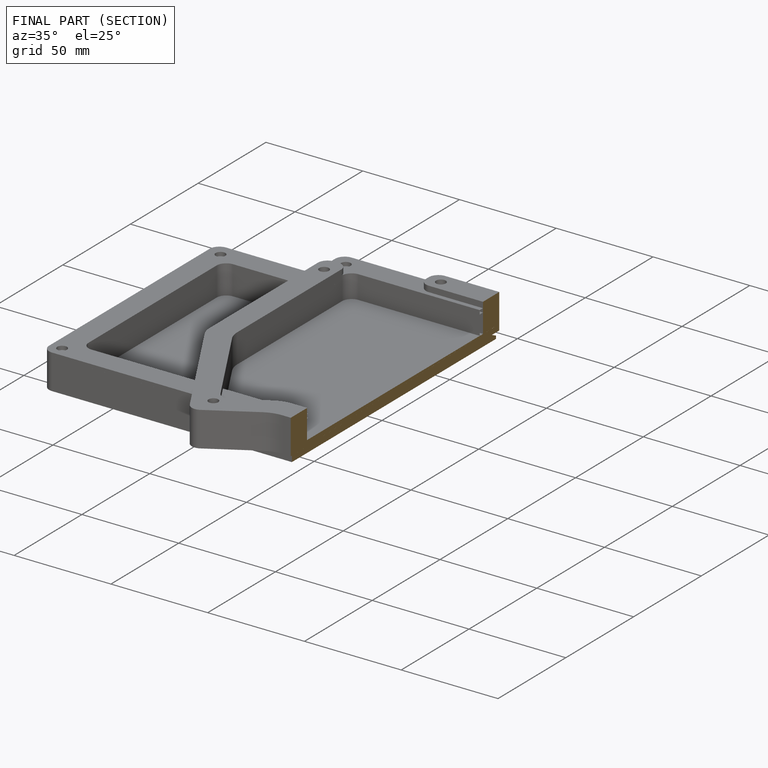
[diagram: finished part — half-section view (interior)]
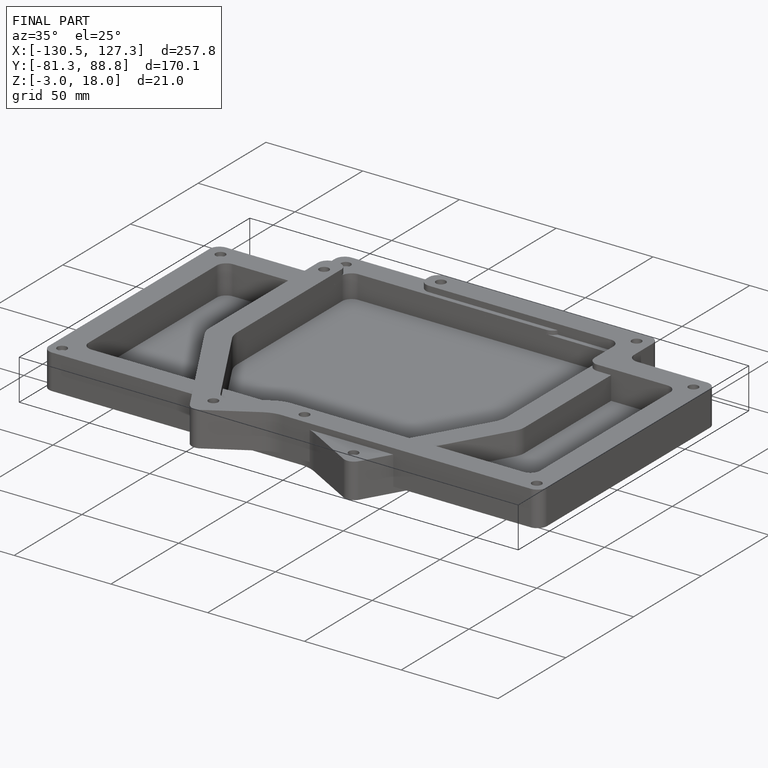
[diagram: finished part — iso view with bounding-box wireframe]
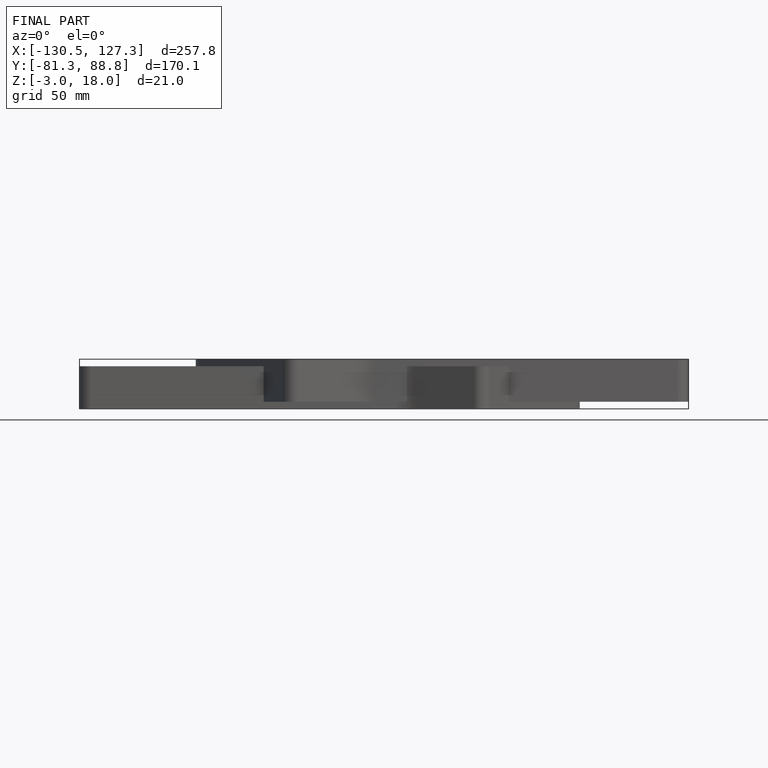
[diagram: finished part — front view with bounding-box wireframe]
